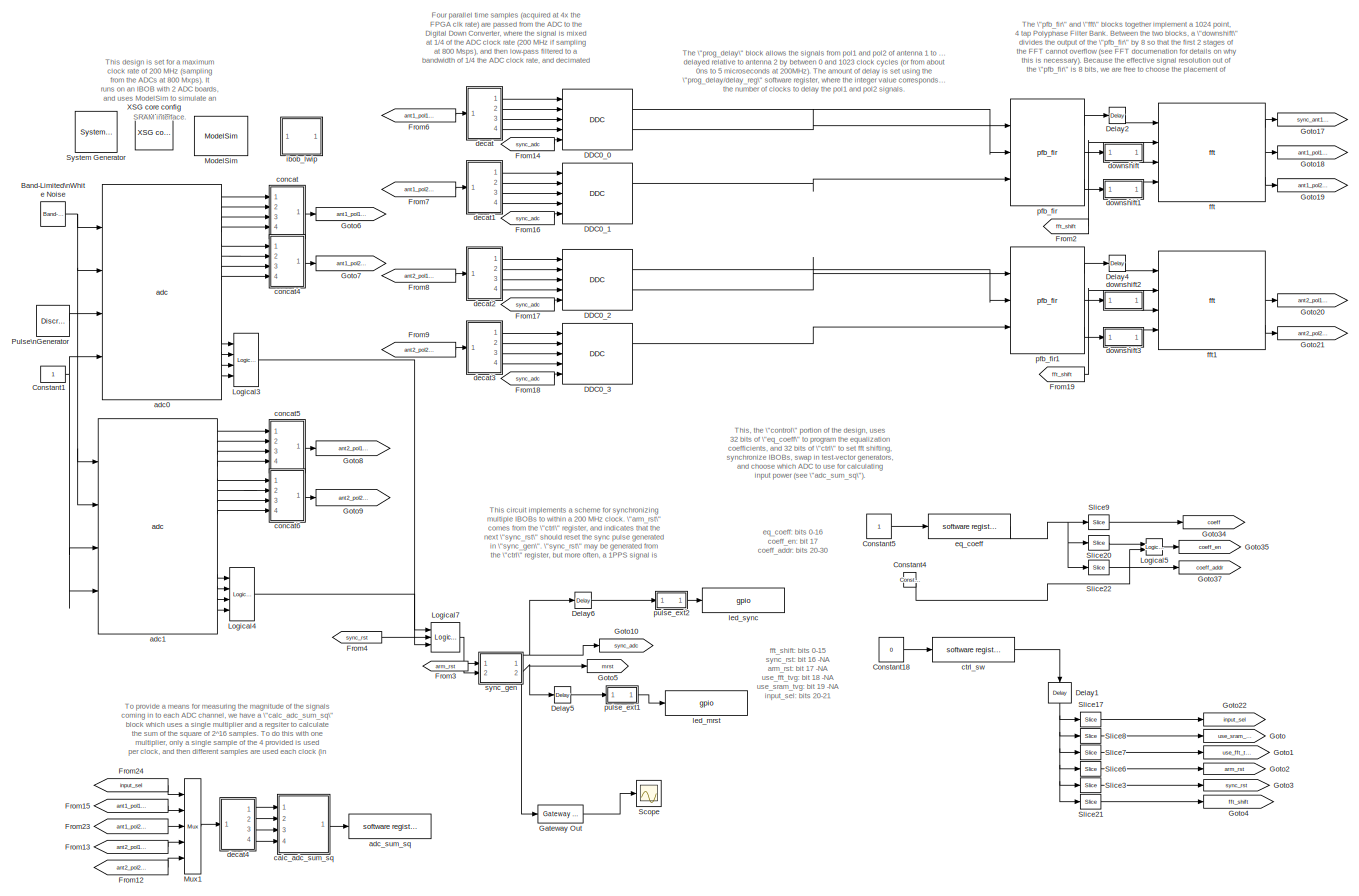
[diagram: root canvas - part 1/2, left side, full height]
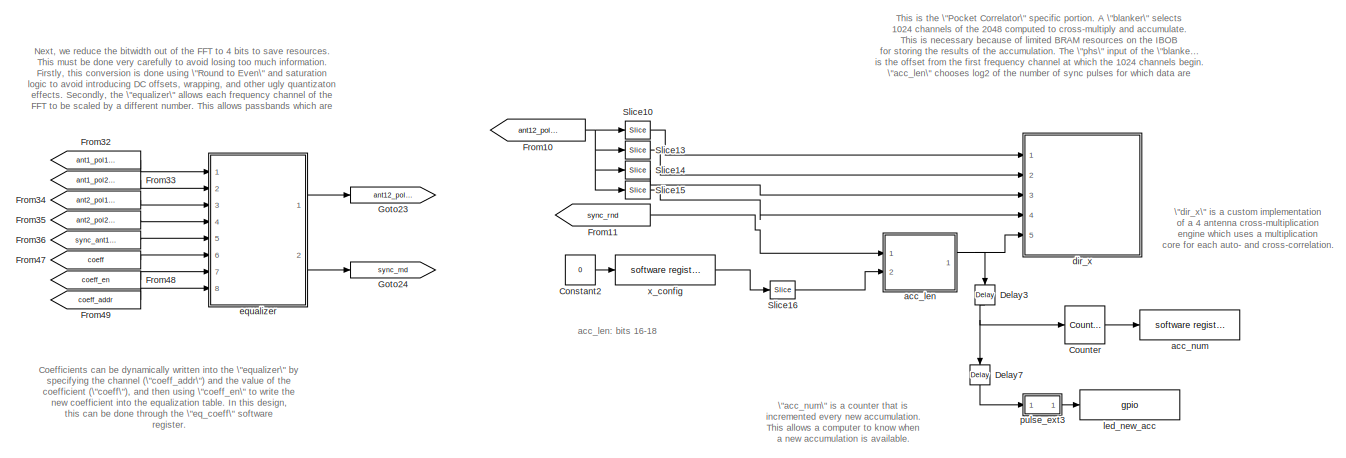
[diagram: root canvas - part 2/2, top right region]
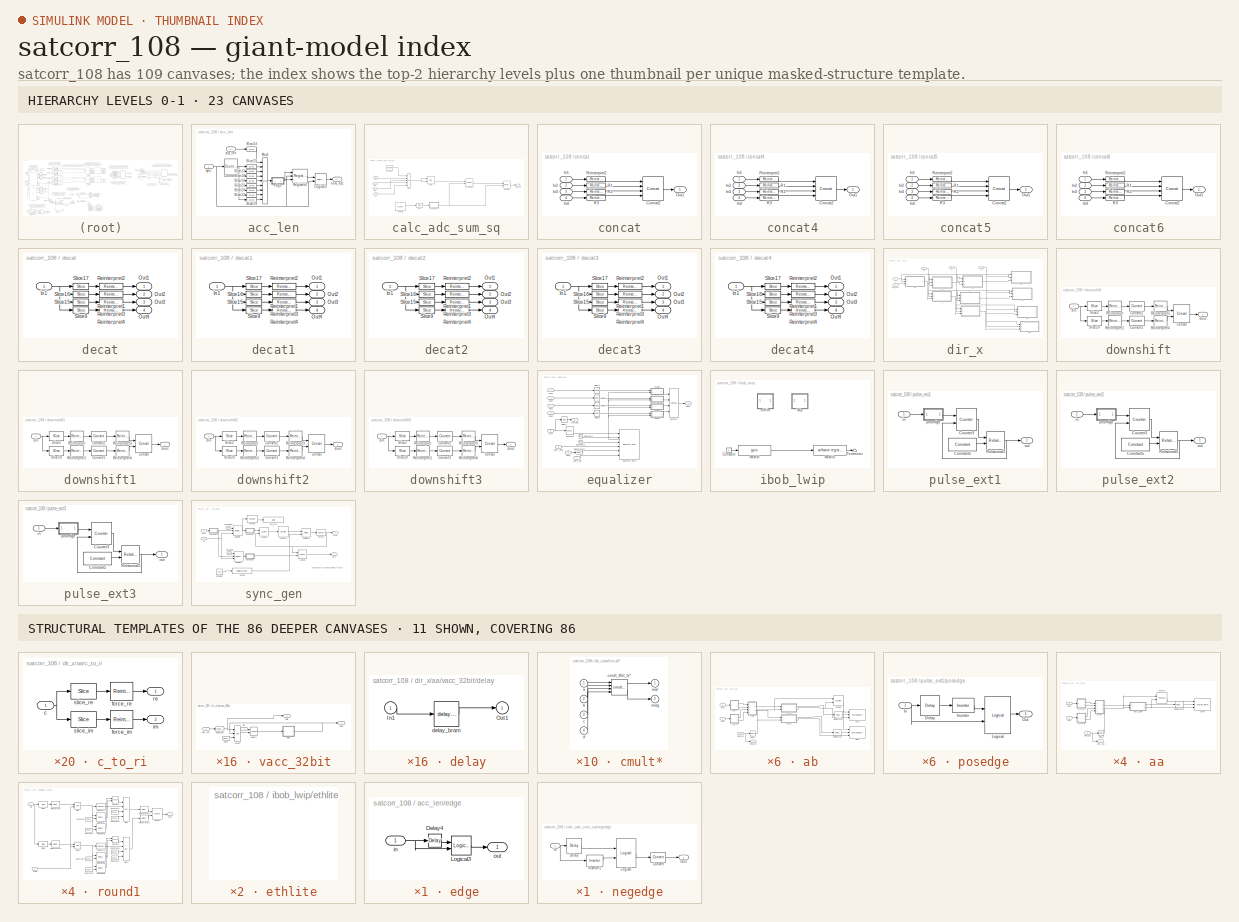
[diagram: thumbnail index - top-2 hierarchy levels (23 canvases) + 11 structural-template representatives of the remaining 86 canvases]
MODEL satcorr_108
KIND model
BLOCK [Reference]  System Generator  REF=xbsIndex_r3/ System Generator
  AttributesFormatString = System\\nGenerator
  Ports = []
  ShowPortLabels = on
  SourceBlock = xbsIndex_r3/ System Generator
  SourceType = Xilinx System Generator
  Tag = genX
  UserData = DataTag0
  UserDataPersistent = on
  core_generation = According to Block Masks
  dbl_ovrd = According to Block Masks
  deprecated_control = off
  directory = ./satcorr_1/sysgen
  eval_field = 0
  incr_netlist = off
  package = ff1152
  part = xc2vp50
  run_coregen = off
  simulink_period = 1
  speed = -7
  synthesis_tool = XST
  sysclk_period = 41.6667
  testbench = off
  trim_vbits = Everywhere in SubSystem
  xilinxfamily = Virtex2P
BLOCK [Reference] Band-Limited\nWhite Noise  REF=simulink/Sources/Band-Limited\nWhite Noise
  Cov = [0.1]
  Ports = [0, 1]
  ShowPortLabels = on
  SourceBlock = simulink/Sources/Band-Limited\nWhite Noise
  SourceType = Band-Limited White Noise.
  Ts = 0.1
  VectorParams1D = on
  seed = [23341]
BLOCK [Constant] Constant1
BLOCK [Constant] Constant18
  Value = 0
BLOCK [Constant] Constant2
  Value = 0
BLOCK [Reference] Constant4  REF=xbsIndex_r3/Constant
  Ports = [0, 1]
  SourceBlock = xbsIndex_r3/Constant
  SourceType = Xilinx Constant Block
  arith_type = Boolean
  bin_pt = 0
  carry = CIN
  const = 1
  dbl_ovrd = off
  equ = P=C
  explicit_period = on
  inp1 = P
  inp2 = PCIN>>17
  iostate = 0
  n_bits = 1
  opr = +
  opselect = C
  period = 1
BLOCK [Constant] Constant5
BLOCK [Reference] Counter  REF=xbsIndex_r3/Counter
  Ports = [1, 1]
  SourceBlock = xbsIndex_r3/Counter
  SourceType = Xilinx Counter Block
  arith_type = Unsigned
  bin_pt = 0
  cnt_by_val = 1
  cnt_to = Inf
  cnt_type = Free Running
  dbl_ovrd = off
  en = on
  explicit_period = off
  gen_core = off
  load_pin = off
  n_bits = 32
  operation = Up
  period = 1
  rst = off
  show_param = off
  start_count = 0
  use_rpm = on
  xl_area = [0, 0, 0, 0, 0, 0, 0]
  xl_use_area = off
BLOCK [Reference] DDC0_0  REF=ddc_library/DDC  (lib defined in mdl_423f3fd48bb0)
  BitWidthOut = 8
  Ports = [5, 2]
  ShowPortLabels = on
  SourceBlock = ddc_library/DDC
  SourceType = DDC
  UserData = DataTag1
  UserDataPersistent = on
  add_latency = 2
  freq_div = 4
  lo_bitwidth = 8
  lo_freq = 1
  lpfir_coeff = .9 * [-0.0161   -0.0428   -0.0504   -0.0249    0.0354    0.1170    0.1948    0.2422    0.2422    0.1948    0.1170  0.0354   -0.0249   -0.0504   -0.0428   -0.0161]
  mult_latency = 4
  num_inputs = 4
  quantization = Round  (unbiased: Even Values)
BLOCK [Reference] DDC0_1  REF=ddc_library/DDC  (lib defined in mdl_423f3fd48bb0)
  BitWidthOut = 8
  Ports = [5, 2]
  ShowPortLabels = on
  SourceBlock = ddc_library/DDC
  SourceType = DDC
  UserData = DataTag2
  UserDataPersistent = on
  add_latency = 2
  freq_div = 4
  lo_bitwidth = 8
  lo_freq = 1
  lpfir_coeff = .9 * [-0.0161   -0.0428   -0.0504   -0.0249    0.0354    0.1170    0.1948    0.2422    0.2422    0.1948    0.1170  0.0354   -0.0249   -0.0504   -0.0428   -0.0161]
  mult_latency = 4
  num_inputs = 4
  quantization = Round  (unbiased: Even Values)
BLOCK [Reference] DDC0_2  REF=ddc_library/DDC  (lib defined in mdl_423f3fd48bb0)
  BitWidthOut = 8
  Ports = [5, 2]
  ShowPortLabels = on
  SourceBlock = ddc_library/DDC
  SourceType = DDC
  UserData = DataTag3
  UserDataPersistent = on
  add_latency = 2
  freq_div = 4
  lo_bitwidth = 8
  lo_freq = 1
  lpfir_coeff = .9 * [-0.0161   -0.0428   -0.0504   -0.0249    0.0354    0.1170    0.1948    0.2422    0.2422    0.1948    0.1170  0.0354   -0.0249   -0.0504   -0.0428   -0.0161]
  mult_latency = 4
  num_inputs = 4
  quantization = Round  (unbiased: Even Values)
BLOCK [Reference] DDC0_3  REF=ddc_library/DDC  (lib defined in mdl_423f3fd48bb0)
  BitWidthOut = 8
  Ports = [5, 2]
  ShowPortLabels = on
  SourceBlock = ddc_library/DDC
  SourceType = DDC
  UserData = DataTag4
  UserDataPersistent = on
  add_latency = 2
  freq_div = 4
  lo_bitwidth = 8
  lo_freq = 1
  lpfir_coeff = .9 * [-0.0161   -0.0428   -0.0504   -0.0249    0.0354    0.1170    0.1948    0.2422    0.2422    0.1948    0.1170  0.0354   -0.0249   -0.0504   -0.0428   -0.0161]
  mult_latency = 4
  num_inputs = 4
  quantization = Round  (unbiased: Even Values)
BLOCK [Reference] Delay1  REF=xbsIndex_r3/Delay
  Ports = [1, 1]
  SourceBlock = xbsIndex_r3/Delay
  SourceType = Xilinx Delay Block
  accept_only_valid = off
  dbl_ovrd = off
  en = off
  explicit_period = off
  init_zero = on
  latency = 1
  period = 1
  reg_retiming = off
  show_param = off
  xl_area = [0, 0, 0, 0, 0, 0, 0]
  xl_use_area = off
BLOCK [Reference] Delay2  REF=xbsIndex_r3/Delay
  Ports = [1, 1]
  SourceBlock = xbsIndex_r3/Delay
  SourceType = Xilinx Delay Block
  accept_only_valid = off
  dbl_ovrd = off
  en = off
  explicit_period = off
  init_zero = on
  latency = 2
  period = 1
  reg_retiming = off
  show_param = off
  xl_area = [0, 0, 0, 0, 0, 0, 0]
  xl_use_area = off
BLOCK [Reference] Delay3  REF=xbsIndex_r3/Delay
  Ports = [1, 1]
  SourceBlock = xbsIndex_r3/Delay
  SourceType = Xilinx Delay Block
  accept_only_valid = off
  dbl_ovrd = off
  en = off
  explicit_period = off
  init_zero = on
  latency = 4
  period = 1
  reg_retiming = on
  show_param = on
  xl_area = [0, 0, 0, 0, 0, 0, 0]
  xl_use_area = off
BLOCK [Reference] Delay4  REF=xbsIndex_r3/Delay
  Ports = [1, 1]
  SourceBlock = xbsIndex_r3/Delay
  SourceType = Xilinx Delay Block
  accept_only_valid = off
  dbl_ovrd = off
  en = off
  explicit_period = off
  init_zero = on
  latency = 2
  period = 1
  reg_retiming = off
  show_param = off
  xl_area = [0, 0, 0, 0, 0, 0, 0]
  xl_use_area = off
BLOCK [Reference] Delay5  REF=xbsIndex_r3/Delay
  Ports = [1, 1]
  SourceBlock = xbsIndex_r3/Delay
  SourceType = Xilinx Delay Block
  accept_only_valid = off
  dbl_ovrd = off
  en = off
  explicit_period = off
  init_zero = on
  latency = 2
  period = 1
  reg_retiming = on
  show_param = off
  xl_area = [0, 0, 0, 0, 0, 0, 0]
  xl_use_area = off
BLOCK [Reference] Delay6  REF=xbsIndex_r3/Delay
  Ports = [1, 1]
  SourceBlock = xbsIndex_r3/Delay
  SourceType = Xilinx Delay Block
  accept_only_valid = off
  dbl_ovrd = off
  en = off
  explicit_period = off
  init_zero = on
  latency = 2
  period = 1
  reg_retiming = on
  show_param = off
  xl_area = [0, 0, 0, 0, 0, 0, 0]
  xl_use_area = off
BLOCK [Reference] Delay7  REF=xbsIndex_r3/Delay
  Ports = [1, 1]
  SourceBlock = xbsIndex_r3/Delay
  SourceType = Xilinx Delay Block
  accept_only_valid = off
  dbl_ovrd = off
  en = off
  explicit_period = off
  init_zero = on
  latency = 2
  period = 1
  reg_retiming = on
  show_param = off
  xl_area = [0, 0, 0, 0, 0, 0, 0]
  xl_use_area = off
BLOCK [From] From10
  CloseFcn = tagdialog Close
  GotoTag = ant12_pol12_rnd
BLOCK [From] From11
  CloseFcn = tagdialog Close
  GotoTag = sync_rnd
BLOCK [From] From12
  CloseFcn = tagdialog Close
  GotoTag = ant2_pol2_adc
BLOCK [From] From13
  CloseFcn = tagdialog Close
  GotoTag = ant2_pol1_adc
BLOCK [From] From14
  CloseFcn = tagdialog Close
  GotoTag = sync_adc
BLOCK [From] From15
  CloseFcn = tagdialog Close
  GotoTag = ant1_pol1_adc
BLOCK [From] From16
  CloseFcn = tagdialog Close
  GotoTag = sync_adc
BLOCK [From] From17
  CloseFcn = tagdialog Close
  GotoTag = sync_adc
BLOCK [From] From18
  CloseFcn = tagdialog Close
  GotoTag = sync_adc
BLOCK [From] From19
  CloseFcn = tagdialog Close
  GotoTag = fft_shift
BLOCK [From] From2
  CloseFcn = tagdialog Close
  GotoTag = fft_shift
BLOCK [From] From23
  CloseFcn = tagdialog Close
  GotoTag = ant1_pol2_adc
BLOCK [From] From24
  CloseFcn = tagdialog Close
  GotoTag = input_sel
BLOCK [From] From3
  CloseFcn = tagdialog Close
  GotoTag = arm_rst
BLOCK [From] From32
  CloseFcn = tagdialog Close
  GotoTag = ant1_pol1_fft
BLOCK [From] From33
  CloseFcn = tagdialog Close
  GotoTag = ant1_pol2_fft
BLOCK [From] From34
  CloseFcn = tagdialog Close
  GotoTag = ant2_pol1_fft
BLOCK [From] From35
  CloseFcn = tagdialog Close
  GotoTag = ant2_pol2_fft
BLOCK [From] From36
  CloseFcn = tagdialog Close
  GotoTag = sync_ant1_fft
BLOCK [From] From4
  CloseFcn = tagdialog Close
  GotoTag = sync_rst
BLOCK [From] From47
  CloseFcn = tagdialog Close
  GotoTag = coeff
BLOCK [From] From48
  CloseFcn = tagdialog Close
  GotoTag = coeff_en
BLOCK [From] From49
  CloseFcn = tagdialog Close
  GotoTag = coeff_addr
BLOCK [From] From6
  CloseFcn = tagdialog Close
  GotoTag = ant1_pol1_adc
BLOCK [From] From7
  CloseFcn = tagdialog Close
  GotoTag = ant1_pol2_adc
BLOCK [From] From8
  CloseFcn = tagdialog Close
  GotoTag = ant2_pol1_adc
BLOCK [From] From9
  CloseFcn = tagdialog Close
  GotoTag = ant2_pol2_adc
BLOCK [Reference] Gateway Out  REF=xbsIndex_r3/Gateway Out
  LOCs = {}
  Ports = [1, 1]
  SourceBlock = xbsIndex_r3/Gateway Out
  SourceType = Xilinx Gateway Out
  arith_type = Boolean
  bin_pt = 6
  hdl_port = on
  locs_specified = off
  nbits = 8
  needs_fixed_name = off
  output_type = Double
  overflow = Wrap
  quantization = Truncate
  show_param = off
  timing_constraint = None
  xl_area = [0, 0, 0, 0, 0, 0, 0]
  xl_use_area = off
BLOCK [Goto] Goto
  GotoTag = use_sram_tvg
  TagVisibility = local
BLOCK [Goto] Goto1
  GotoTag = use_fft_tvg
  TagVisibility = local
BLOCK [Goto] Goto10
  GotoTag = sync_adc
  TagVisibility = local
BLOCK [Goto] Goto17
  GotoTag = sync_ant1_fft
  TagVisibility = local
BLOCK [Goto] Goto18
  GotoTag = ant1_pol1_fft
  TagVisibility = local
BLOCK [Goto] Goto19
  GotoTag = ant1_pol2_fft
  TagVisibility = local
BLOCK [Goto] Goto2
  GotoTag = arm_rst
  TagVisibility = local
BLOCK [Goto] Goto20
  GotoTag = ant2_pol1_fft
  TagVisibility = local
BLOCK [Goto] Goto21
  GotoTag = ant2_pol2_fft
  TagVisibility = local
BLOCK [Goto] Goto22
  GotoTag = input_sel
  TagVisibility = local
BLOCK [Goto] Goto23
  GotoTag = ant12_pol12_rnd
  TagVisibility = local
BLOCK [Goto] Goto24
  GotoTag = sync_rnd
  TagVisibility = local
BLOCK [Goto] Goto3
  GotoTag = sync_rst
  TagVisibility = local
BLOCK [Goto] Goto34
  GotoTag = coeff
  TagVisibility = local
BLOCK [Goto] Goto35
  GotoTag = coeff_en
  TagVisibility = local
BLOCK [Goto] Goto37
  GotoTag = coeff_addr
  TagVisibility = local
BLOCK [Goto] Goto4
  GotoTag = fft_shift
  TagVisibility = local
BLOCK [Goto] Goto5
  GotoTag = mrst
  TagVisibility = local
BLOCK [Goto] Goto6
  GotoTag = ant1_pol1_adc
  TagVisibility = local
BLOCK [Goto] Goto7
  GotoTag = ant1_pol2_adc
  TagVisibility = local
BLOCK [Goto] Goto8
  GotoTag = ant2_pol1_adc
  TagVisibility = local
BLOCK [Goto] Goto9
  GotoTag = ant2_pol2_adc
  TagVisibility = local
BLOCK [Reference] Logical3  REF=xbsIndex_r3/Logical
  Ports = [4, 1]
  SourceBlock = xbsIndex_r3/Logical
  SourceType = Xilinx Logical Block
  align_bp = on
  arith_type = Unsigned
  bin_pt = 2
  dbl_ovrd = off
  en = off
  explicit_period = off
  inputs = 4
  latency = 2
  logical_function = OR
  n_bits = 8
  period = 1
  precision = Full
  show_param = off
  xl_area = [0, 0, 0, 0, 0, 0, 0]
  xl_use_area = off
BLOCK [Reference] Logical4  REF=xbsIndex_r3/Logical
  Ports = [4, 1]
  SourceBlock = xbsIndex_r3/Logical
  SourceType = Xilinx Logical Block
  align_bp = on
  arith_type = Unsigned
  bin_pt = 2
  dbl_ovrd = off
  en = off
  explicit_period = off
  inputs = 4
  latency = 2
  logical_function = OR
  n_bits = 8
  period = 1
  precision = Full
  show_param = off
  xl_area = [0, 0, 0, 0, 0, 0, 0]
  xl_use_area = off
BLOCK [Reference] Logical5  REF=xbsIndex_r3/Logical
  Ports = [2, 1]
  SourceBlock = xbsIndex_r3/Logical
  SourceType = Xilinx Logical Block
  align_bp = on
  arith_type = Unsigned
  bin_pt = 2
  dbl_ovrd = off
  en = off
  explicit_period = off
  inputs = 2
  latency = 0
  logical_function = AND
  n_bits = 8
  period = 1
  precision = Full
  show_param = off
  xl_area = [0, 0, 0, 0, 0, 0, 0]
  xl_use_area = off
BLOCK [Reference] Logical7  REF=xbsIndex_r3/Logical
  Ports = [3, 1]
  SourceBlock = xbsIndex_r3/Logical
  SourceType = Xilinx Logical Block
  align_bp = on
  arith_type = Unsigned
  bin_pt = 2
  dbl_ovrd = off
  en = off
  explicit_period = off
  inputs = 3
  latency = 1
  logical_function = OR
  n_bits = 8
  period = 1
  precision = Full
  show_param = off
  xl_area = [0, 0, 0, 0, 0, 0, 0]
  xl_use_area = off
BLOCK [Reference] ModelSim  REF=xbsIndex_r3/ModelSim
  Ports = []
  SourceBlock = xbsIndex_r3/ModelSim
  SourceType = ModelSim HDL Co-Simulation Interface
  custom_scripts = off
  dir = ./modelsim
  leave_open = on
  skip_compile = off
  startup_timeout = 40
  waveform = on
BLOCK [Reference] Mux1  REF=xbsIndex_r3/Mux
  Ports = [5, 1]
  SourceBlock = xbsIndex_r3/Mux
  SourceType = Xilinx Multiplexer Block
  arith_type = Signed  (2's comp)
  bin_pt = 2
  dbl_ovrd = off
  en = off
  explicit_period = on
  gen_core = off
  inputs = 4
  latency = 2
  mux_type = off
  n_bits = 8
  overflow = Wrap
  period = 1
  precision = Full
  quantization = Truncate
  show_param = off
  use_rpm = off
  xl_area = [0, 0, 0, 0, 0, 0, 0]
  xl_use_area = off
BLOCK [DiscretePulseGenerator] Pulse\nGenerator
  Period = 2^27
  Ports = [0, 1]
BLOCK [Scope] Scope
  DataFormat = StructureWithTime
  NumInputPorts = 1
  Ports = [1]
  YMax = 1
  YMin = -1
BLOCK [Reference] Slice10  REF=xbsIndex_r3/Slice
  Ports = [1, 1]
  SourceBlock = xbsIndex_r3/Slice
  SourceType = Xilinx Slice Block
  base0 = LSB of Input
  base1 = MSB of Input
  bit0 = 24
  bit1 = 0
  boolean_output = off
  dbl_ovrd = off
  explicit_period = off
  mode = Lower Bit Location + Width
  nbits = 8
  period = 1
BLOCK [Reference] Slice13  REF=xbsIndex_r3/Slice
  Ports = [1, 1]
  SourceBlock = xbsIndex_r3/Slice
  SourceType = Xilinx Slice Block
  base0 = LSB of Input
  base1 = MSB of Input
  bit0 = 16
  bit1 = 0
  boolean_output = off
  dbl_ovrd = off
  explicit_period = off
  mode = Lower Bit Location + Width
  nbits = 8
  period = 1
BLOCK [Reference] Slice14  REF=xbsIndex_r3/Slice
  Ports = [1, 1]
  SourceBlock = xbsIndex_r3/Slice
  SourceType = Xilinx Slice Block
  base0 = LSB of Input
  base1 = MSB of Input
  bit0 = 8
  bit1 = 0
  boolean_output = off
  dbl_ovrd = off
  explicit_period = off
  mode = Lower Bit Location + Width
  nbits = 8
  period = 1
BLOCK [Reference] Slice15  REF=xbsIndex_r3/Slice
  Ports = [1, 1]
  SourceBlock = xbsIndex_r3/Slice
  SourceType = Xilinx Slice Block
  base0 = LSB of Input
  base1 = MSB of Input
  bit0 = 0
  bit1 = 0
  boolean_output = off
  dbl_ovrd = off
  explicit_period = off
  mode = Lower Bit Location + Width
  nbits = 8
  period = 1
BLOCK [Reference] Slice16  REF=xbsIndex_r3/Slice
  Ports = [1, 1]
  SourceBlock = xbsIndex_r3/Slice
  SourceType = Xilinx Slice Block
  base0 = LSB of Input
  base1 = MSB of Input
  bit0 = 16
  bit1 = 0
  boolean_output = off
  dbl_ovrd = off
  explicit_period = off
  mode = Lower Bit Location + Width
  nbits = 3
  period = 1
BLOCK [Reference] Slice17  REF=xbsIndex_r3/Slice
  Ports = [1, 1]
  SourceBlock = xbsIndex_r3/Slice
  SourceType = Xilinx Slice Block
  base0 = LSB of Input
  base1 = MSB of Input
  bit0 = 20
  bit1 = 0
  boolean_output = off
  dbl_ovrd = off
  explicit_period = off
  mode = Lower Bit Location + Width
  nbits = 2
  period = 1
BLOCK [Reference] Slice20  REF=xbsIndex_r3/Slice
  Ports = [1, 1]
  SourceBlock = xbsIndex_r3/Slice
  SourceType = Xilinx Slice Block
  base0 = LSB of Input
  base1 = MSB of Input
  bit0 = 17
  bit1 = 0
  boolean_output = on
  dbl_ovrd = off
  explicit_period = off
  mode = Lower Bit Location + Width
  nbits = 1
  period = 1
BLOCK [Reference] Slice21  REF=xbsIndex_r3/Slice
  Ports = [1, 1]
  SourceBlock = xbsIndex_r3/Slice
  SourceType = Xilinx Slice Block
  base0 = LSB of Input
  base1 = MSB of Input
  bit0 = 0
  bit1 = 0
  boolean_output = off
  dbl_ovrd = off
  explicit_period = off
  mode = Lower Bit Location + Width
  nbits = 16
  period = 1
BLOCK [Reference] Slice22  REF=xbsIndex_r3/Slice
  Ports = [1, 1]
  SourceBlock = xbsIndex_r3/Slice
  SourceType = Xilinx Slice Block
  base0 = LSB of Input
  base1 = MSB of Input
  bit0 = 20
  bit1 = 0
  boolean_output = off
  dbl_ovrd = off
  explicit_period = off
  mode = Lower Bit Location + Width
  nbits = 10
  period = 1
BLOCK [Reference] Slice3  REF=xbsIndex_r3/Slice
  Ports = [1, 1]
  SourceBlock = xbsIndex_r3/Slice
  SourceType = Xilinx Slice Block
  base0 = LSB of Input
  base1 = MSB of Input
  bit0 = 16
  bit1 = 0
  boolean_output = on
  dbl_ovrd = off
  explicit_period = off
  mode = Lower Bit Location + Width
  nbits = 1
  period = 1
BLOCK [Reference] Slice6  REF=xbsIndex_r3/Slice
  Ports = [1, 1]
  SourceBlock = xbsIndex_r3/Slice
  SourceType = Xilinx Slice Block
  base0 = LSB of Input
  base1 = MSB of Input
  bit0 = 17
  bit1 = 0
  boolean_output = on
  dbl_ovrd = off
  explicit_period = off
  mode = Lower Bit Location + Width
  nbits = 1
  period = 1
BLOCK [Reference] Slice7  REF=xbsIndex_r3/Slice
  Ports = [1, 1]
  SourceBlock = xbsIndex_r3/Slice
  SourceType = Xilinx Slice Block
  base0 = LSB of Input
  base1 = MSB of Input
  bit0 = 18
  bit1 = 0
  boolean_output = off
  dbl_ovrd = off
  explicit_period = off
  mode = Lower Bit Location + Width
  nbits = 1
  period = 1
BLOCK [Reference] Slice8  REF=xbsIndex_r3/Slice
  Ports = [1, 1]
  SourceBlock = xbsIndex_r3/Slice
  SourceType = Xilinx Slice Block
  base0 = LSB of Input
  base1 = MSB of Input
  bit0 = 19
  bit1 = 0
  boolean_output = off
  dbl_ovrd = off
  explicit_period = off
  mode = Lower Bit Location + Width
  nbits = 1
  period = 1
BLOCK [Reference] Slice9  REF=xbsIndex_r3/Slice
  Ports = [1, 1]
  SourceBlock = xbsIndex_r3/Slice
  SourceType = Xilinx Slice Block
  base0 = LSB of Input
  base1 = MSB of Input
  bit0 = 0
  bit1 = 0
  boolean_output = off
  dbl_ovrd = off
  explicit_period = off
  mode = Lower Bit Location + Width
  nbits = 17
  period = 1
BLOCK [Reference] XSG core config  REF=xps_library/XSG core config  (lib defined in mdl_00b5cec29cd0, mdl_02ab6ecaa3d1, +5 more)
  Ports = []
  ShowPortLabels = on
  SourceBlock = xps_library/XSG core config
  Tag = xps:xsg
  clk_rate = 27
  clk_src = adc0_clk
  gpio_clk_bit_index = 0
  gpio_clk_io_group = iBOB:sma
  hw_sys = iBOB
  ibob_linux = off
  mpc_type = powerpc405
  sample_period = 1
  synthesis_tool = XST
BLOCK [SubSystem] acc_len
  MinAlgLoopOccurrences = off
  Ports = [2, 1]
  RTWSystemCode = Auto
  TreatAsAtomicUnit = off
BLOCK [Reference] acc_len/Counter2  REF=xbsIndex_r3/Counter
  Ports = [1, 1]
  SourceBlock = xbsIndex_r3/Counter
  SourceType = Xilinx Counter Block
  arith_type = Unsigned
  bin_pt = 0
  cnt_by_val = 1
  cnt_to = Inf
  cnt_type = Free Running
  dbl_ovrd = off
  en = on
  explicit_period = on
  gen_core = off
  load_pin = off
  n_bits = 8
  operation = Up
  period = 1
  rst = off
  show_param = off
  start_count = 0
  use_rpm = on
  xl_area = [0, 0, 0, 0, 0, 0, 0]
  xl_use_area = off
BLOCK [Reference] acc_len/Logical2  REF=xbsIndex_r3/Logical
  Ports = [2, 1]
  SourceBlock = xbsIndex_r3/Logical
  SourceType = Xilinx Logical Block
  align_bp = on
  arith_type = Unsigned
  bin_pt = 2
  dbl_ovrd = off
  en = off
  explicit_period = off
  inputs = 2
  latency = 0
  logical_function = AND
  n_bits = 8
  period = 1
  precision = Full
  show_param = off
  xl_area = [0, 0, 0, 0, 0, 0, 0]
  xl_use_area = off
BLOCK [Reference] acc_len/Mux1  REF=xbsIndex_r3/Mux
  Ports = [9, 1]
  SourceBlock = xbsIndex_r3/Mux
  SourceType = Xilinx Multiplexer Block
  arith_type = Signed  (2's comp)
  bin_pt = 2
  dbl_ovrd = off
  en = off
  explicit_period = off
  gen_core = off
  inputs = 8
  latency = 1
  mux_type = off
  n_bits = 8
  overflow = Wrap
  period = 1
  precision = Full
  quantization = Truncate
  show_param = off
  use_rpm = off
  xl_area = [0, 0, 0, 0, 0, 0, 0]
  xl_use_area = off
BLOCK [Reference] acc_len/Register4  REF=xbsIndex_r3/Register
  Ports = [3, 1]
  SourceBlock = xbsIndex_r3/Register
  SourceType = Xilinx Register Block
  dbl_ovrd = off
  en = on
  explicit_period = off
  init = 0
  out_en = off
  period = 1
  reg_only_valid = off
  rst = on
  show_param = off
  xl_area = [0, 0, 0, 0, 0, 0, 0]
  xl_use_area = off
BLOCK [Reference] acc_len/Slice16  REF=xbsIndex_r3/Slice
  Ports = [1, 1]
  SourceBlock = xbsIndex_r3/Slice
  SourceType = Xilinx Slice Block
  base0 = LSB of Input
  base1 = MSB of Input
  bit0 = 3
  bit1 = 0
  boolean_output = on
  dbl_ovrd = off
  explicit_period = off
  mode = Lower Bit Location + Width
  nbits = 1
  period = 1
BLOCK [Reference] acc_len/Slice17  REF=xbsIndex_r3/Slice
  Ports = [1, 1]
  SourceBlock = xbsIndex_r3/Slice
  SourceType = Xilinx Slice Block
  base0 = LSB of Input
  base1 = MSB of Input
  bit0 = 1
  bit1 = 0
  boolean_output = on
  dbl_ovrd = off
  explicit_period = off
  mode = Lower Bit Location + Width
  nbits = 1
  period = 1
BLOCK [Reference] acc_len/Slice18  REF=xbsIndex_r3/Slice
  Ports = [1, 1]
  SourceBlock = xbsIndex_r3/Slice
  SourceType = Xilinx Slice Block
  base0 = LSB of Input
  base1 = MSB of Input
  bit0 = 2
  bit1 = 0
  boolean_output = on
  dbl_ovrd = off
  explicit_period = off
  mode = Lower Bit Location + Width
  nbits = 1
  period = 1
BLOCK [Reference] acc_len/Slice19  REF=xbsIndex_r3/Slice
  Ports = [1, 1]
  SourceBlock = xbsIndex_r3/Slice
  SourceType = Xilinx Slice Block
  base0 = LSB of Input
  base1 = MSB of Input
  bit0 = 7
  bit1 = 0
  boolean_output = on
  dbl_ovrd = off
  explicit_period = off
  mode = Lower Bit Location + Width
  nbits = 1
  period = 1
BLOCK [Reference] acc_len/Slice20  REF=xbsIndex_r3/Slice
  Ports = [1, 1]
  SourceBlock = xbsIndex_r3/Slice
  SourceType = Xilinx Slice Block
  base0 = LSB of Input
  base1 = MSB of Input
  bit0 = 5
  bit1 = 0
  boolean_output = on
  dbl_ovrd = off
  explicit_period = off
  mode = Lower Bit Location + Width
  nbits = 1
  period = 1
BLOCK [Reference] acc_len/Slice22  REF=xbsIndex_r3/Slice
  Ports = [1, 1]
  SourceBlock = xbsIndex_r3/Slice
  SourceType = Xilinx Slice Block
  base0 = LSB of Input
  base1 = MSB of Input
  bit0 = 6
  bit1 = 0
  boolean_output = on
  dbl_ovrd = off
  explicit_period = off
  mode = Lower Bit Location + Width
  nbits = 1
  period = 1
BLOCK [Reference] acc_len/Slice23  REF=xbsIndex_r3/Slice
  Ports = [1, 1]
  SourceBlock = xbsIndex_r3/Slice
  SourceType = Xilinx Slice Block
  base0 = LSB of Input
  base1 = MSB of Input
  bit0 = 4
  bit1 = 0
  boolean_output = on
  dbl_ovrd = off
  explicit_period = off
  mode = Lower Bit Location + Width
  nbits = 1
  period = 1
BLOCK [Reference] acc_len/Slice24  REF=xbsIndex_r3/Slice
  Ports = [1, 1]
  SourceBlock = xbsIndex_r3/Slice
  SourceType = Xilinx Slice Block
  base0 = LSB of Input
  base1 = MSB of Input
  bit0 = 0
  bit1 = 0
  boolean_output = off
  dbl_ovrd = off
  explicit_period = off
  mode = Lower Bit Location + Width
  nbits = 3
  period = 1
BLOCK [Reference] acc_len/Slice25  REF=xbsIndex_r3/Slice
  Ports = [1, 1]
  SourceBlock = xbsIndex_r3/Slice
  SourceType = Xilinx Slice Block
  base0 = LSB of Input
  base1 = MSB of Input
  bit0 = 0
  bit1 = 0
  boolean_output = on
  dbl_ovrd = off
  explicit_period = off
  mode = Lower Bit Location + Width
  nbits = 1
  period = 1
BLOCK [Inport] acc_len/acc_len
  IconDisplay = Port number
  LatchInput = off
  Port = 2
BLOCK [SubSystem] acc_len/edge
  MinAlgLoopOccurrences = off
  Ports = [1, 1]
  RTWSystemCode = Auto
  TreatAsAtomicUnit = off
BLOCK [Reference] acc_len/edge/Delay4  REF=xbsIndex_r3/Delay
  Ports = [1, 1]
  SourceBlock = xbsIndex_r3/Delay
  SourceType = Xilinx Delay Block
  accept_only_valid = off
  dbl_ovrd = off
  en = off
  explicit_period = off
  init_zero = on
  latency = 1
  period = 1
  reg_retiming = off
  show_param = off
  xl_area = [0, 0, 0, 0, 0, 0, 0]
  xl_use_area = off
BLOCK [Reference] acc_len/edge/Logical3  REF=xbsIndex_r3/Logical
  Ports = [2, 1]
  SourceBlock = xbsIndex_r3/Logical
  SourceType = Xilinx Logical Block
  align_bp = on
  arith_type = Unsigned
  bin_pt = 2
  dbl_ovrd = off
  en = off
  explicit_period = off
  inputs = 2
  latency = 0
  logical_function = XOR
  n_bits = 8
  period = 1
  precision = Full
  show_param = off
  xl_area = [0, 0, 0, 0, 0, 0, 0]
  xl_use_area = off
BLOCK [Inport] acc_len/edge/in
  IconDisplay = Port number
  LatchInput = off
  Port = 1
BLOCK [Outport] acc_len/edge/out
  BusOutputAsStruct = off
  IconDisplay = Port number
BLOCK [Outport] acc_len/new_acc
  BusOutputAsStruct = off
  IconDisplay = Port number
BLOCK [Inport] acc_len/sync
  IconDisplay = Port number
  LatchInput = off
  Port = 1
BLOCK [Reference] acc_num  REF=xps_library/software register  (lib defined in mdl_00b5cec29cd0, mdl_02ab6ecaa3d1, +5 more)
  Ports = [1, 1]
  ShowPortLabels = on
  SourceBlock = xps_library/software register
  Tag = xps:sw_reg
  arith_type = Unsigned
  bin_pt = 0
  bitwidth = 32
  gw_name = satcorr_1_acc_num_user_data_in
  io_dir = To Processor
  sample_period = 1
BLOCK [Reference] adc0  REF=xps_library/adc  (lib defined in mdl_00b5cec29cd0, mdl_02ab6ecaa3d1, +5 more)
  Ports = [4, 17]
  ShowPortLabels = on
  SourceBlock = xps_library/adc
  Tag = xps:adc
  adc_brd = iBOB:adc0
  adc_clk_rate = 108
  adc_interleave = off
  sample_period = 1
BLOCK [Reference] adc1  REF=xps_library/adc  (lib defined in mdl_00b5cec29cd0, mdl_02ab6ecaa3d1, +5 more)
  Ports = [4, 17]
  ShowPortLabels = on
  SourceBlock = xps_library/adc
  Tag = xps:adc
  adc_brd = iBOB:adc1
  adc_clk_rate = 108
  adc_interleave = off
  sample_period = 1
BLOCK [Reference] adc_sum_sq  REF=xps_library/software register  (lib defined in mdl_00b5cec29cd0, mdl_02ab6ecaa3d1, +5 more)
  Ports = [1, 1]
  ShowPortLabels = on
  SourceBlock = xps_library/software register
  Tag = xps:sw_reg
  arith_type = Unsigned
  bin_pt = 14
  bitwidth = 32
  gw_name = satcorr_1_adc_sum_sq_user_data_in
  io_dir = To Processor
  sample_period = 1
BLOCK [SubSystem] calc_adc_sum_sq
  MaskIconFrame = on
  MaskIconOpaque = on
  MaskIconRotate = none
  MaskIconUnits = autoscale
  MaskValueString = 3|2
  MinAlgLoopOccurrences = off
  Ports = [4, 1]
  RTWSystemCode = Auto
  TreatAsAtomicUnit = off
BLOCK [Reference] calc_adc_sum_sq/Accumulator  REF=xbsIndex_r3/Accumulator
  Ports = [2, 1]
  SourceBlock = xbsIndex_r3/Accumulator
  SourceType = Xilinx Accumulator
  dbl_ovrd = off
  en = off
  explicit_period = off
  gen_core = off
  hasbypass = off
  n_bits = 32
  operation = Add
  overflow = Wrap
  period = 1
  rst = on
  scale = 1
  show_param = off
  use_rpm = on
  xl_area = [0, 0, 0, 0, 0, 0, 0]
  xl_use_area = off
BLOCK [Reference] calc_adc_sum_sq/Counter  REF=xbsIndex_r3/Counter
  Ports = [0, 1]
  SourceBlock = xbsIndex_r3/Counter
  SourceType = Xilinx Counter Block
  arith_type = Unsigned
  bin_pt = 0
  cnt_by_val = 1
  cnt_to = Inf
  cnt_type = Free Running
  dbl_ovrd = off
  en = off
  explicit_period = off
  gen_core = off
  load_pin = off
  n_bits = 2
  operation = Up
  period = 1
  rst = off
  show_param = off
  start_count = 0
  use_rpm = on
  xl_area = [0, 0, 0, 0, 0, 0, 0]
  xl_use_area = off
BLOCK [Reference] calc_adc_sum_sq/Counter1  REF=xbsIndex_r3/Counter
  Ports = [0, 1]
  SourceBlock = xbsIndex_r3/Counter
  SourceType = Xilinx Counter Block
  arith_type = Unsigned
  bin_pt = 0
  cnt_by_val = 1
  cnt_to = Inf
  cnt_type = Free Running
  dbl_ovrd = off
  en = off
  explicit_period = off
  gen_core = off
  load_pin = off
  n_bits = 16
  operation = Up
  period = 1
  rst = off
  show_param = off
  start_count = 0
  use_rpm = on
  xl_area = [0, 0, 0, 0, 0, 0, 0]
  xl_use_area = off
BLOCK [Inport] calc_adc_sum_sq/In1
  IconDisplay = Port number
  LatchInput = off
  Port = 1
BLOCK [Inport] calc_adc_sum_sq/In2
  IconDisplay = Port number
  LatchInput = off
  Port = 2
BLOCK [Inport] calc_adc_sum_sq/In3
  IconDisplay = Port number
  LatchInput = off
  Port = 3
BLOCK [Inport] calc_adc_sum_sq/In4
  IconDisplay = Port number
  LatchInput = off
  Port = 4
BLOCK [Reference] calc_adc_sum_sq/Mult  REF=xbsIndex_r3/Mult
  Ports = [2, 1]
  SourceBlock = xbsIndex_r3/Mult
  SourceType = Xilinx Multiplier
  arith_type = Signed  (2's comp)
  bin_pt = 2
  dbl_ovrd = off
  en = off
  explicit_period = on
  gen_core = off
  latency = 2
  mult_type = Parallel
  n_bits = 8
  overflow = Wrap
  oversample = 2
  period = 1
  pipeline = on
  placement_style = Rectangular Shape
  precision = Full
  quantization = Truncate
  show_param = off
  use_embedded = off
  use_rpm = on
  xl_area = [0, 0, 0, 0, 0, 0, 0]
  xl_use_area = off
BLOCK [Reference] calc_adc_sum_sq/Mux  REF=xbsIndex_r3/Mux
  Ports = [5, 1]
  SourceBlock = xbsIndex_r3/Mux
  SourceType = Xilinx Multiplexer Block
  arith_type = Signed  (2's comp)
  bin_pt = 2
  dbl_ovrd = off
  en = off
  explicit_period = off
  gen_core = off
  inputs = 4
  latency = 1
  mux_type = off
  n_bits = 8
  overflow = Wrap
  period = 1
  precision = Full
  quantization = Truncate
  show_param = off
  use_rpm = off
  xl_area = [0, 0, 0, 0, 0, 0, 0]
  xl_use_area = off
BLOCK [Reference] calc_adc_sum_sq/Register  REF=xbsIndex_r3/Register
  Ports = [2, 1]
  SourceBlock = xbsIndex_r3/Register
  SourceType = Xilinx Register Block
  dbl_ovrd = off
  en = on
  explicit_period = off
  init = 0
  out_en = off
  period = 1
  reg_only_valid = off
  rst = off
  show_param = off
  xl_area = [0, 0, 0, 0, 0, 0, 0]
  xl_use_area = off
BLOCK [Reference] calc_adc_sum_sq/Slice  REF=xbsIndex_r3/Slice
  Ports = [1, 1]
  SourceBlock = xbsIndex_r3/Slice
  SourceType = Xilinx Slice Block
  base0 = LSB of Input
  base1 = MSB of Input
  bit0 = 0
  bit1 = 0
  boolean_output = off
  dbl_ovrd = off
  explicit_period = off
  mode = Upper Bit Location + Width
  nbits = 1
  period = 1
BLOCK [SubSystem] calc_adc_sum_sq/negedge
  MinAlgLoopOccurrences = off
  Ports = [1, 1]
  RTWSystemCode = Auto
  TreatAsAtomicUnit = off
BLOCK [Reference] calc_adc_sum_sq/negedge/Convert  REF=xbsIndex_r3/Convert
  Ports = [1, 1]
  SourceBlock = xbsIndex_r3/Convert
  SourceType = Xilinx Converter Block
  arith_type = Boolean
  bin_pt = 6
  dbl_ovrd = off
  explicit_period = off
  inserted_by_tool = off
  latency = 0
  n_bits = 8
  overflow = Wrap
  period = 1
  pipeline = off
  quantization = Truncate
  show_param = off
  xl_area = [0, 0, 0, 0, 0, 0, 0]
  xl_use_area = off
BLOCK [Reference] calc_adc_sum_sq/negedge/Delay  REF=xbsIndex_r3/Delay
  Ports = [1, 1]
  SourceBlock = xbsIndex_r3/Delay
  SourceType = Xilinx Delay Block
  accept_only_valid = off
  dbl_ovrd = off
  en = off
  explicit_period = off
  init_zero = on
  latency = 1
  period = 1
  reg_retiming = off
  show_param = off
  xl_area = [0, 0, 0, 0, 0, 0, 0]
  xl_use_area = off
BLOCK [Inport] calc_adc_sum_sq/negedge/In
  IconDisplay = Port number
  LatchInput = off
  Port = 1
BLOCK [Reference] calc_adc_sum_sq/negedge/Inverter1  REF=xbsIndex_r3/Inverter
  Ports = [1, 1]
  SourceBlock = xbsIndex_r3/Inverter
  SourceType = Xilinx Inverter
  dbl_ovrd = off
  en = off
  explicit_period = off
  latency = 0
  period = 1
  show_param = off
  xl_area = [0, 0, 0, 0, 0, 0, 0]
  xl_use_area = off
BLOCK [Reference] calc_adc_sum_sq/negedge/Logical  REF=xbsIndex_r3/Logical
  Ports = [2, 1]
  SourceBlock = xbsIndex_r3/Logical
  SourceType = Xilinx Logical Block
  align_bp = on
  arith_type = Unsigned
  bin_pt = 2
  dbl_ovrd = off
  en = off
  explicit_period = off
  inputs = 2
  latency = 0
  logical_function = AND
  n_bits = 8
  period = 1
  precision = Full
  show_param = off
  xl_area = [0, 0, 0, 0, 0, 0, 0]
  xl_use_area = off
BLOCK [Outport] calc_adc_sum_sq/negedge/Out1
  BusOutputAsStruct = off
  IconDisplay = Port number
BLOCK [Outport] calc_adc_sum_sq/sum_sq
  BusOutputAsStruct = off
  IconDisplay = Port number
BLOCK [SubSystem] concat
  MinAlgLoopOccurrences = off
  Ports = [4, 1]
  RTWSystemCode = Auto
  TreatAsAtomicUnit = off
BLOCK [Reference] concat/Concat2  REF=xbsIndex_r3/Concat
  Ports = [4, 1]
  SourceBlock = xbsIndex_r3/Concat
  SourceType = Xilinx Bus Concatenator
  dbl_ovrd = off
  explicit_period = off
  num_inputs = 4
  period = 1
BLOCK [Inport] concat/In1
  IconDisplay = Port number
  LatchInput = off
  Port = 1
BLOCK [Inport] concat/In2
  IconDisplay = Port number
  LatchInput = off
  Port = 2
BLOCK [Inport] concat/In3
  IconDisplay = Port number
  LatchInput = off
  Port = 3
BLOCK [Inport] concat/In4
  IconDisplay = Port number
  LatchInput = off
  Port = 4
BLOCK [Outport] concat/Out1
  BusOutputAsStruct = off
  IconDisplay = Port number
BLOCK [Reference] concat/R1  REF=xbsIndex_r3/Reinterpret
  Ports = [1, 1]
  SourceBlock = xbsIndex_r3/Reinterpret
  SourceType = Xilinx Type Reinterpreting Block
  arith_type = Unsigned
  bin_pt = 0
  force_arith_type = on
  force_bin_pt = on
  force_valid = on
BLOCK [Reference] concat/R2  REF=xbsIndex_r3/Reinterpret
  Ports = [1, 1]
  SourceBlock = xbsIndex_r3/Reinterpret
  SourceType = Xilinx Type Reinterpreting Block
  arith_type = Unsigned
  bin_pt = 0
  force_arith_type = on
  force_bin_pt = on
  force_valid = on
BLOCK [Reference] concat/R3  REF=xbsIndex_r3/Reinterpret
  Ports = [1, 1]
  SourceBlock = xbsIndex_r3/Reinterpret
  SourceType = Xilinx Type Reinterpreting Block
  arith_type = Unsigned
  bin_pt = 0
  force_arith_type = on
  force_bin_pt = on
  force_valid = on
BLOCK [Reference] concat/Reinterpret2  REF=xbsIndex_r3/Reinterpret
  Ports = [1, 1]
  SourceBlock = xbsIndex_r3/Reinterpret
  SourceType = Xilinx Type Reinterpreting Block
  arith_type = Unsigned
  bin_pt = 0
  force_arith_type = on
  force_bin_pt = on
  force_valid = on
BLOCK [SubSystem] concat4
  MinAlgLoopOccurrences = off
  Ports = [4, 1]
  RTWSystemCode = Auto
  TreatAsAtomicUnit = off
BLOCK [Reference] concat4/Concat2  REF=xbsIndex_r3/Concat
  Ports = [4, 1]
  SourceBlock = xbsIndex_r3/Concat
  SourceType = Xilinx Bus Concatenator
  dbl_ovrd = off
  explicit_period = off
  num_inputs = 4
  period = 1
BLOCK [Inport] concat4/In1
  IconDisplay = Port number
  LatchInput = off
  Port = 1
BLOCK [Inport] concat4/In2
  IconDisplay = Port number
  LatchInput = off
  Port = 2
BLOCK [Inport] concat4/In3
  IconDisplay = Port number
  LatchInput = off
  Port = 3
BLOCK [Inport] concat4/In4
  IconDisplay = Port number
  LatchInput = off
  Port = 4
BLOCK [Outport] concat4/Out1
  BusOutputAsStruct = off
  IconDisplay = Port number
BLOCK [Reference] concat4/R1  REF=xbsIndex_r3/Reinterpret
  Ports = [1, 1]
  SourceBlock = xbsIndex_r3/Reinterpret
  SourceType = Xilinx Type Reinterpreting Block
  arith_type = Unsigned
  bin_pt = 0
  force_arith_type = on
  force_bin_pt = on
  force_valid = on
BLOCK [Reference] concat4/R2  REF=xbsIndex_r3/Reinterpret
  Ports = [1, 1]
  SourceBlock = xbsIndex_r3/Reinterpret
  SourceType = Xilinx Type Reinterpreting Block
  arith_type = Unsigned
  bin_pt = 0
  force_arith_type = on
  force_bin_pt = on
  force_valid = on
BLOCK [Reference] concat4/R3  REF=xbsIndex_r3/Reinterpret
  Ports = [1, 1]
  SourceBlock = xbsIndex_r3/Reinterpret
  SourceType = Xilinx Type Reinterpreting Block
  arith_type = Unsigned
  bin_pt = 0
  force_arith_type = on
  force_bin_pt = on
  force_valid = on
BLOCK [Reference] concat4/Reinterpret2  REF=xbsIndex_r3/Reinterpret
  Ports = [1, 1]
  SourceBlock = xbsIndex_r3/Reinterpret
  SourceType = Xilinx Type Reinterpreting Block
  arith_type = Unsigned
  bin_pt = 0
  force_arith_type = on
  force_bin_pt = on
  force_valid = on
BLOCK [SubSystem] concat5
  MinAlgLoopOccurrences = off
  Ports = [4, 1]
  RTWSystemCode = Auto
  TreatAsAtomicUnit = off
BLOCK [Reference] concat5/Concat2  REF=xbsIndex_r3/Concat
  Ports = [4, 1]
  SourceBlock = xbsIndex_r3/Concat
  SourceType = Xilinx Bus Concatenator
  dbl_ovrd = off
  explicit_period = off
  num_inputs = 4
  period = 1
BLOCK [Inport] concat5/In1
  IconDisplay = Port number
  LatchInput = off
  Port = 1
BLOCK [Inport] concat5/In2
  IconDisplay = Port number
  LatchInput = off
  Port = 2
BLOCK [Inport] concat5/In3
  IconDisplay = Port number
  LatchInput = off
  Port = 3
BLOCK [Inport] concat5/In4
  IconDisplay = Port number
  LatchInput = off
  Port = 4
BLOCK [Outport] concat5/Out1
  BusOutputAsStruct = off
  IconDisplay = Port number
BLOCK [Reference] concat5/R1  REF=xbsIndex_r3/Reinterpret
  Ports = [1, 1]
  SourceBlock = xbsIndex_r3/Reinterpret
  SourceType = Xilinx Type Reinterpreting Block
  arith_type = Unsigned
  bin_pt = 0
  force_arith_type = on
  force_bin_pt = on
  force_valid = on
BLOCK [Reference] concat5/R2  REF=xbsIndex_r3/Reinterpret
  Ports = [1, 1]
  SourceBlock = xbsIndex_r3/Reinterpret
  SourceType = Xilinx Type Reinterpreting Block
  arith_type = Unsigned
  bin_pt = 0
  force_arith_type = on
  force_bin_pt = on
  force_valid = on
BLOCK [Reference] concat5/R3  REF=xbsIndex_r3/Reinterpret
  Ports = [1, 1]
  SourceBlock = xbsIndex_r3/Reinterpret
  SourceType = Xilinx Type Reinterpreting Block
  arith_type = Unsigned
  bin_pt = 0
  force_arith_type = on
  force_bin_pt = on
  force_valid = on
BLOCK [Reference] concat5/Reinterpret2  REF=xbsIndex_r3/Reinterpret
  Ports = [1, 1]
  SourceBlock = xbsIndex_r3/Reinterpret
  SourceType = Xilinx Type Reinterpreting Block
  arith_type = Unsigned
  bin_pt = 0
  force_arith_type = on
  force_bin_pt = on
  force_valid = on
BLOCK [SubSystem] concat6
  MinAlgLoopOccurrences = off
  Ports = [4, 1]
  RTWSystemCode = Auto
  TreatAsAtomicUnit = off
BLOCK [Reference] concat6/Concat2  REF=xbsIndex_r3/Concat
  Ports = [4, 1]
  SourceBlock = xbsIndex_r3/Concat
  SourceType = Xilinx Bus Concatenator
  dbl_ovrd = off
  explicit_period = off
  num_inputs = 4
  period = 1
BLOCK [Inport] concat6/In1
  IconDisplay = Port number
  LatchInput = off
  Port = 1
BLOCK [Inport] concat6/In2
  IconDisplay = Port number
  LatchInput = off
  Port = 2
BLOCK [Inport] concat6/In3
  IconDisplay = Port number
  LatchInput = off
  Port = 3
BLOCK [Inport] concat6/In4
  IconDisplay = Port number
  LatchInput = off
  Port = 4
BLOCK [Outport] concat6/Out1
  BusOutputAsStruct = off
  IconDisplay = Port number
BLOCK [Reference] concat6/R1  REF=xbsIndex_r3/Reinterpret
  Ports = [1, 1]
  SourceBlock = xbsIndex_r3/Reinterpret
  SourceType = Xilinx Type Reinterpreting Block
  arith_type = Unsigned
  bin_pt = 0
  force_arith_type = on
  force_bin_pt = on
  force_valid = on
BLOCK [Reference] concat6/R2  REF=xbsIndex_r3/Reinterpret
  Ports = [1, 1]
  SourceBlock = xbsIndex_r3/Reinterpret
  SourceType = Xilinx Type Reinterpreting Block
  arith_type = Unsigned
  bin_pt = 0
  force_arith_type = on
  force_bin_pt = on
  force_valid = on
BLOCK [Reference] concat6/R3  REF=xbsIndex_r3/Reinterpret
  Ports = [1, 1]
  SourceBlock = xbsIndex_r3/Reinterpret
  SourceType = Xilinx Type Reinterpreting Block
  arith_type = Unsigned
  bin_pt = 0
  force_arith_type = on
  force_bin_pt = on
  force_valid = on
BLOCK [Reference] concat6/Reinterpret2  REF=xbsIndex_r3/Reinterpret
  Ports = [1, 1]
  SourceBlock = xbsIndex_r3/Reinterpret
  SourceType = Xilinx Type Reinterpreting Block
  arith_type = Unsigned
  bin_pt = 0
  force_arith_type = on
  force_bin_pt = on
  force_valid = on
BLOCK [Reference] ctrl_sw  REF=xps_library/software register  (lib defined in mdl_00b5cec29cd0, mdl_02ab6ecaa3d1, +5 more)
  Ports = [1, 1]
  ShowPortLabels = on
  SourceBlock = xps_library/software register
  Tag = xps:sw_reg
  arith_type = Unsigned
  bin_pt = 0
  bitwidth = 32
  gw_name = satcorr_1_ctrl_sw_user_data_out
  io_dir = From Processor
  sample_period = 1
BLOCK [SubSystem] decat
  MinAlgLoopOccurrences = off
  Ports = [1, 4]
  RTWSystemCode = Auto
  TreatAsAtomicUnit = off
BLOCK [Inport] decat/In1
  IconDisplay = Port number
  LatchInput = off
  Port = 1
BLOCK [Outport] decat/Out1
  BusOutputAsStruct = off
  IconDisplay = Port number
BLOCK [Outport] decat/Out2
  BusOutputAsStruct = off
  IconDisplay = Port number
  Port = 2
BLOCK [Outport] decat/Out3
  BusOutputAsStruct = off
  IconDisplay = Port number
  Port = 3
BLOCK [Outport] decat/Out4
  BusOutputAsStruct = off
  IconDisplay = Port number
  Port = 4
BLOCK [Reference] decat/Reinterpret1  REF=xbsIndex_r3/Reinterpret
  Ports = [1, 1]
  SourceBlock = xbsIndex_r3/Reinterpret
  SourceType = Xilinx Type Reinterpreting Block
  arith_type = Signed  (2's comp)
  bin_pt = 7
  force_arith_type = on
  force_bin_pt = on
  force_valid = on
BLOCK [Reference] decat/Reinterpret2  REF=xbsIndex_r3/Reinterpret
  Ports = [1, 1]
  SourceBlock = xbsIndex_r3/Reinterpret
  SourceType = Xilinx Type Reinterpreting Block
  arith_type = Signed  (2's comp)
  bin_pt = 7
  force_arith_type = on
  force_bin_pt = on
  force_valid = on
BLOCK [Reference] decat/Reinterpret3  REF=xbsIndex_r3/Reinterpret
  Ports = [1, 1]
  SourceBlock = xbsIndex_r3/Reinterpret
  SourceType = Xilinx Type Reinterpreting Block
  arith_type = Signed  (2's comp)
  bin_pt = 7
  force_arith_type = on
  force_bin_pt = on
  force_valid = on
BLOCK [Reference] decat/Reinterpret4  REF=xbsIndex_r3/Reinterpret
  Ports = [1, 1]
  SourceBlock = xbsIndex_r3/Reinterpret
  SourceType = Xilinx Type Reinterpreting Block
  arith_type = Signed  (2's comp)
  bin_pt = 7
  force_arith_type = on
  force_bin_pt = on
  force_valid = on
BLOCK [Reference] decat/Slice15  REF=xbsIndex_r3/Slice
  Ports = [1, 1]
  SourceBlock = xbsIndex_r3/Slice
  SourceType = Xilinx Slice Block
  base0 = LSB of Input
  base1 = MSB of Input
  bit0 = 8
  bit1 = 0
  boolean_output = off
  dbl_ovrd = off
  explicit_period = off
  mode = Lower Bit Location + Width
  nbits = 8
  period = 1
BLOCK [Reference] decat/Slice16  REF=xbsIndex_r3/Slice
  Ports = [1, 1]
  SourceBlock = xbsIndex_r3/Slice
  SourceType = Xilinx Slice Block
  base0 = LSB of Input
  base1 = MSB of Input
  bit0 = 16
  bit1 = 0
  boolean_output = off
  dbl_ovrd = off
  explicit_period = off
  mode = Lower Bit Location + Width
  nbits = 8
  period = 1
BLOCK [Reference] decat/Slice17  REF=xbsIndex_r3/Slice
  Ports = [1, 1]
  SourceBlock = xbsIndex_r3/Slice
  SourceType = Xilinx Slice Block
  base0 = LSB of Input
  base1 = MSB of Input
  bit0 = 24
  bit1 = 0
  boolean_output = off
  dbl_ovrd = off
  explicit_period = off
  mode = Lower Bit Location + Width
  nbits = 8
  period = 1
BLOCK [Reference] decat/Slice9  REF=xbsIndex_r3/Slice
  Ports = [1, 1]
  SourceBlock = xbsIndex_r3/Slice
  SourceType = Xilinx Slice Block
  base0 = LSB of Input
  base1 = MSB of Input
  bit0 = 0
  bit1 = 0
  boolean_output = off
  dbl_ovrd = off
  explicit_period = off
  mode = Lower Bit Location + Width
  nbits = 8
  period = 1
BLOCK [SubSystem] decat1
  MinAlgLoopOccurrences = off
  Ports = [1, 4]
  RTWSystemCode = Auto
  TreatAsAtomicUnit = off
BLOCK [Inport] decat1/In1
  IconDisplay = Port number
  LatchInput = off
  Port = 1
BLOCK [Outport] decat1/Out1
  BusOutputAsStruct = off
  IconDisplay = Port number
BLOCK [Outport] decat1/Out2
  BusOutputAsStruct = off
  IconDisplay = Port number
  Port = 2
BLOCK [Outport] decat1/Out3
  BusOutputAsStruct = off
  IconDisplay = Port number
  Port = 3
BLOCK [Outport] decat1/Out4
  BusOutputAsStruct = off
  IconDisplay = Port number
  Port = 4
BLOCK [Reference] decat1/Reinterpret1  REF=xbsIndex_r3/Reinterpret
  Ports = [1, 1]
  SourceBlock = xbsIndex_r3/Reinterpret
  SourceType = Xilinx Type Reinterpreting Block
  arith_type = Signed  (2's comp)
  bin_pt = 7
  force_arith_type = on
  force_bin_pt = on
  force_valid = on
BLOCK [Reference] decat1/Reinterpret2  REF=xbsIndex_r3/Reinterpret
  Ports = [1, 1]
  SourceBlock = xbsIndex_r3/Reinterpret
  SourceType = Xilinx Type Reinterpreting Block
  arith_type = Signed  (2's comp)
  bin_pt = 7
  force_arith_type = on
  force_bin_pt = on
  force_valid = on
BLOCK [Reference] decat1/Reinterpret3  REF=xbsIndex_r3/Reinterpret
  Ports = [1, 1]
  SourceBlock = xbsIndex_r3/Reinterpret
  SourceType = Xilinx Type Reinterpreting Block
  arith_type = Signed  (2's comp)
  bin_pt = 7
  force_arith_type = on
  force_bin_pt = on
  force_valid = on
BLOCK [Reference] decat1/Reinterpret4  REF=xbsIndex_r3/Reinterpret
  Ports = [1, 1]
  SourceBlock = xbsIndex_r3/Reinterpret
  SourceType = Xilinx Type Reinterpreting Block
  arith_type = Signed  (2's comp)
  bin_pt = 7
  force_arith_type = on
  force_bin_pt = on
  force_valid = on
BLOCK [Reference] decat1/Slice15  REF=xbsIndex_r3/Slice
  Ports = [1, 1]
  SourceBlock = xbsIndex_r3/Slice
  SourceType = Xilinx Slice Block
  base0 = LSB of Input
  base1 = MSB of Input
  bit0 = 8
  bit1 = 0
  boolean_output = off
  dbl_ovrd = off
  explicit_period = off
  mode = Lower Bit Location + Width
  nbits = 8
  period = 1
BLOCK [Reference] decat1/Slice16  REF=xbsIndex_r3/Slice
  Ports = [1, 1]
  SourceBlock = xbsIndex_r3/Slice
  SourceType = Xilinx Slice Block
  base0 = LSB of Input
  base1 = MSB of Input
  bit0 = 16
  bit1 = 0
  boolean_output = off
  dbl_ovrd = off
  explicit_period = off
  mode = Lower Bit Location + Width
  nbits = 8
  period = 1
BLOCK [Reference] decat1/Slice17  REF=xbsIndex_r3/Slice
  Ports = [1, 1]
  SourceBlock = xbsIndex_r3/Slice
  SourceType = Xilinx Slice Block
  base0 = LSB of Input
  base1 = MSB of Input
  bit0 = 24
  bit1 = 0
  boolean_output = off
  dbl_ovrd = off
  explicit_period = off
  mode = Lower Bit Location + Width
  nbits = 8
  period = 1
BLOCK [Reference] decat1/Slice9  REF=xbsIndex_r3/Slice
  Ports = [1, 1]
  SourceBlock = xbsIndex_r3/Slice
  SourceType = Xilinx Slice Block
  base0 = LSB of Input
  base1 = MSB of Input
  bit0 = 0
  bit1 = 0
  boolean_output = off
  dbl_ovrd = off
  explicit_period = off
  mode = Lower Bit Location + Width
  nbits = 8
  period = 1
BLOCK [SubSystem] decat2
  MinAlgLoopOccurrences = off
  Ports = [1, 4]
  RTWSystemCode = Auto
  TreatAsAtomicUnit = off
BLOCK [Inport] decat2/In1
  IconDisplay = Port number
  LatchInput = off
  Port = 1
BLOCK [Outport] decat2/Out1
  BusOutputAsStruct = off
  IconDisplay = Port number
BLOCK [Outport] decat2/Out2
  BusOutputAsStruct = off
  IconDisplay = Port number
  Port = 2
BLOCK [Outport] decat2/Out3
  BusOutputAsStruct = off
  IconDisplay = Port number
  Port = 3
BLOCK [Outport] decat2/Out4
  BusOutputAsStruct = off
  IconDisplay = Port number
  Port = 4
BLOCK [Reference] decat2/Reinterpret1  REF=xbsIndex_r3/Reinterpret
  Ports = [1, 1]
  SourceBlock = xbsIndex_r3/Reinterpret
  SourceType = Xilinx Type Reinterpreting Block
  arith_type = Signed  (2's comp)
  bin_pt = 7
  force_arith_type = on
  force_bin_pt = on
  force_valid = on
BLOCK [Reference] decat2/Reinterpret2  REF=xbsIndex_r3/Reinterpret
  Ports = [1, 1]
  SourceBlock = xbsIndex_r3/Reinterpret
  SourceType = Xilinx Type Reinterpreting Block
  arith_type = Signed  (2's comp)
  bin_pt = 7
  force_arith_type = on
  force_bin_pt = on
  force_valid = on
BLOCK [Reference] decat2/Reinterpret3  REF=xbsIndex_r3/Reinterpret
  Ports = [1, 1]
  SourceBlock = xbsIndex_r3/Reinterpret
  SourceType = Xilinx Type Reinterpreting Block
  arith_type = Signed  (2's comp)
  bin_pt = 7
  force_arith_type = on
  force_bin_pt = on
  force_valid = on
BLOCK [Reference] decat2/Reinterpret4  REF=xbsIndex_r3/Reinterpret
  Ports = [1, 1]
  SourceBlock = xbsIndex_r3/Reinterpret
  SourceType = Xilinx Type Reinterpreting Block
  arith_type = Signed  (2's comp)
  bin_pt = 7
  force_arith_type = on
  force_bin_pt = on
  force_valid = on
BLOCK [Reference] decat2/Slice15  REF=xbsIndex_r3/Slice
  Ports = [1, 1]
  SourceBlock = xbsIndex_r3/Slice
  SourceType = Xilinx Slice Block
  base0 = LSB of Input
  base1 = MSB of Input
  bit0 = 8
  bit1 = 0
  boolean_output = off
  dbl_ovrd = off
  explicit_period = off
  mode = Lower Bit Location + Width
  nbits = 8
  period = 1
BLOCK [Reference] decat2/Slice16  REF=xbsIndex_r3/Slice
  Ports = [1, 1]
  SourceBlock = xbsIndex_r3/Slice
  SourceType = Xilinx Slice Block
  base0 = LSB of Input
  base1 = MSB of Input
  bit0 = 16
  bit1 = 0
  boolean_output = off
  dbl_ovrd = off
  explicit_period = off
  mode = Lower Bit Location + Width
  nbits = 8
  period = 1
BLOCK [Reference] decat2/Slice17  REF=xbsIndex_r3/Slice
  Ports = [1, 1]
  SourceBlock = xbsIndex_r3/Slice
  SourceType = Xilinx Slice Block
  base0 = LSB of Input
  base1 = MSB of Input
  bit0 = 24
  bit1 = 0
  boolean_output = off
  dbl_ovrd = off
  explicit_period = off
  mode = Lower Bit Location + Width
  nbits = 8
  period = 1
BLOCK [Reference] decat2/Slice9  REF=xbsIndex_r3/Slice
  Ports = [1, 1]
  SourceBlock = xbsIndex_r3/Slice
  SourceType = Xilinx Slice Block
  base0 = LSB of Input
  base1 = MSB of Input
  bit0 = 0
  bit1 = 0
  boolean_output = off
  dbl_ovrd = off
  explicit_period = off
  mode = Lower Bit Location + Width
  nbits = 8
  period = 1
BLOCK [SubSystem] decat3
  MinAlgLoopOccurrences = off
  Ports = [1, 4]
  RTWSystemCode = Auto
  TreatAsAtomicUnit = off
BLOCK [Inport] decat3/In1
  IconDisplay = Port number
  LatchInput = off
  Port = 1
BLOCK [Outport] decat3/Out1
  BusOutputAsStruct = off
  IconDisplay = Port number
BLOCK [Outport] decat3/Out2
  BusOutputAsStruct = off
  IconDisplay = Port number
  Port = 2
BLOCK [Outport] decat3/Out3
  BusOutputAsStruct = off
  IconDisplay = Port number
  Port = 3
BLOCK [Outport] decat3/Out4
  BusOutputAsStruct = off
  IconDisplay = Port number
  Port = 4
BLOCK [Reference] decat3/Reinterpret1  REF=xbsIndex_r3/Reinterpret
  Ports = [1, 1]
  SourceBlock = xbsIndex_r3/Reinterpret
  SourceType = Xilinx Type Reinterpreting Block
  arith_type = Signed  (2's comp)
  bin_pt = 7
  force_arith_type = on
  force_bin_pt = on
  force_valid = on
BLOCK [Reference] decat3/Reinterpret2  REF=xbsIndex_r3/Reinterpret
  Ports = [1, 1]
  SourceBlock = xbsIndex_r3/Reinterpret
  SourceType = Xilinx Type Reinterpreting Block
  arith_type = Signed  (2's comp)
  bin_pt = 7
  force_arith_type = on
  force_bin_pt = on
  force_valid = on
BLOCK [Reference] decat3/Reinterpret3  REF=xbsIndex_r3/Reinterpret
  Ports = [1, 1]
  SourceBlock = xbsIndex_r3/Reinterpret
  SourceType = Xilinx Type Reinterpreting Block
  arith_type = Signed  (2's comp)
  bin_pt = 7
  force_arith_type = on
  force_bin_pt = on
  force_valid = on
BLOCK [Reference] decat3/Reinterpret4  REF=xbsIndex_r3/Reinterpret
  Ports = [1, 1]
  SourceBlock = xbsIndex_r3/Reinterpret
  SourceType = Xilinx Type Reinterpreting Block
  arith_type = Signed  (2's comp)
  bin_pt = 7
  force_arith_type = on
  force_bin_pt = on
  force_valid = on
BLOCK [Reference] decat3/Slice15  REF=xbsIndex_r3/Slice
  Ports = [1, 1]
  SourceBlock = xbsIndex_r3/Slice
  SourceType = Xilinx Slice Block
  base0 = LSB of Input
  base1 = MSB of Input
  bit0 = 8
  bit1 = 0
  boolean_output = off
  dbl_ovrd = off
  explicit_period = off
  mode = Lower Bit Location + Width
  nbits = 8
  period = 1
BLOCK [Reference] decat3/Slice16  REF=xbsIndex_r3/Slice
  Ports = [1, 1]
  SourceBlock = xbsIndex_r3/Slice
  SourceType = Xilinx Slice Block
  base0 = LSB of Input
  base1 = MSB of Input
  bit0 = 16
  bit1 = 0
  boolean_output = off
  dbl_ovrd = off
  explicit_period = off
  mode = Lower Bit Location + Width
  nbits = 8
  period = 1
BLOCK [Reference] decat3/Slice17  REF=xbsIndex_r3/Slice
  Ports = [1, 1]
  SourceBlock = xbsIndex_r3/Slice
  SourceType = Xilinx Slice Block
  base0 = LSB of Input
  base1 = MSB of Input
  bit0 = 24
  bit1 = 0
  boolean_output = off
  dbl_ovrd = off
  explicit_period = off
  mode = Lower Bit Location + Width
  nbits = 8
  period = 1
BLOCK [Reference] decat3/Slice9  REF=xbsIndex_r3/Slice
  Ports = [1, 1]
  SourceBlock = xbsIndex_r3/Slice
  SourceType = Xilinx Slice Block
  base0 = LSB of Input
  base1 = MSB of Input
  bit0 = 0
  bit1 = 0
  boolean_output = off
  dbl_ovrd = off
  explicit_period = off
  mode = Lower Bit Location + Width
  nbits = 8
  period = 1
BLOCK [SubSystem] decat4
  MinAlgLoopOccurrences = off
  Ports = [1, 4]
  RTWSystemCode = Auto
  TreatAsAtomicUnit = off
BLOCK [Inport] decat4/In1
  IconDisplay = Port number
  LatchInput = off
  Port = 1
BLOCK [Outport] decat4/Out1
  BusOutputAsStruct = off
  IconDisplay = Port number
BLOCK [Outport] decat4/Out2
  BusOutputAsStruct = off
  IconDisplay = Port number
  Port = 2
BLOCK [Outport] decat4/Out3
  BusOutputAsStruct = off
  IconDisplay = Port number
  Port = 3
BLOCK [Outport] decat4/Out4
  BusOutputAsStruct = off
  IconDisplay = Port number
  Port = 4
BLOCK [Reference] decat4/Reinterpret1  REF=xbsIndex_r3/Reinterpret
  Ports = [1, 1]
  SourceBlock = xbsIndex_r3/Reinterpret
  SourceType = Xilinx Type Reinterpreting Block
  arith_type = Signed  (2's comp)
  bin_pt = 7
  force_arith_type = on
  force_bin_pt = on
  force_valid = on
BLOCK [Reference] decat4/Reinterpret2  REF=xbsIndex_r3/Reinterpret
  Ports = [1, 1]
  SourceBlock = xbsIndex_r3/Reinterpret
  SourceType = Xilinx Type Reinterpreting Block
  arith_type = Signed  (2's comp)
  bin_pt = 7
  force_arith_type = on
  force_bin_pt = on
  force_valid = on
BLOCK [Reference] decat4/Reinterpret3  REF=xbsIndex_r3/Reinterpret
  Ports = [1, 1]
  SourceBlock = xbsIndex_r3/Reinterpret
  SourceType = Xilinx Type Reinterpreting Block
  arith_type = Signed  (2's comp)
  bin_pt = 7
  force_arith_type = on
  force_bin_pt = on
  force_valid = on
BLOCK [Reference] decat4/Reinterpret4  REF=xbsIndex_r3/Reinterpret
  Ports = [1, 1]
  SourceBlock = xbsIndex_r3/Reinterpret
  SourceType = Xilinx Type Reinterpreting Block
  arith_type = Signed  (2's comp)
  bin_pt = 7
  force_arith_type = on
  force_bin_pt = on
  force_valid = on
BLOCK [Reference] decat4/Slice15  REF=xbsIndex_r3/Slice
  Ports = [1, 1]
  SourceBlock = xbsIndex_r3/Slice
  SourceType = Xilinx Slice Block
  base0 = LSB of Input
  base1 = MSB of Input
  bit0 = 8
  bit1 = 0
  boolean_output = off
  dbl_ovrd = off
  explicit_period = off
  mode = Lower Bit Location + Width
  nbits = 8
  period = 1
BLOCK [Reference] decat4/Slice16  REF=xbsIndex_r3/Slice
  Ports = [1, 1]
  SourceBlock = xbsIndex_r3/Slice
  SourceType = Xilinx Slice Block
  base0 = LSB of Input
  base1 = MSB of Input
  bit0 = 16
  bit1 = 0
  boolean_output = off
  dbl_ovrd = off
  explicit_period = off
  mode = Lower Bit Location + Width
  nbits = 8
  period = 1
BLOCK [Reference] decat4/Slice17  REF=xbsIndex_r3/Slice
  Ports = [1, 1]
  SourceBlock = xbsIndex_r3/Slice
  SourceType = Xilinx Slice Block
  base0 = LSB of Input
  base1 = MSB of Input
  bit0 = 24
  bit1 = 0
  boolean_output = off
  dbl_ovrd = off
  explicit_period = off
  mode = Lower Bit Location + Width
  nbits = 8
  period = 1
BLOCK [Reference] decat4/Slice9  REF=xbsIndex_r3/Slice
  Ports = [1, 1]
  SourceBlock = xbsIndex_r3/Slice
  SourceType = Xilinx Slice Block
  base0 = LSB of Input
  base1 = MSB of Input
  bit0 = 0
  bit1 = 0
  boolean_output = off
  dbl_ovrd = off
  explicit_period = off
  mode = Lower Bit Location + Width
  nbits = 8
  period = 1
BLOCK [SubSystem] dir_x
  MinAlgLoopOccurrences = off
  Ports = [5]
  RTWSystemCode = Auto
  TreatAsAtomicUnit = off
BLOCK [Inport] dir_x/a
  IconDisplay = Port number
  LatchInput = off
  Port = 1
BLOCK [SubSystem] dir_x/aa
  MinAlgLoopOccurrences = off
  Ports = [3, 1]
  RTWSystemCode = Auto
  TreatAsAtomicUnit = off
BLOCK [Reference] dir_x/aa/Counter  REF=xbsIndex_r3/Counter
  Ports = [2, 1]
  SourceBlock = xbsIndex_r3/Counter
  SourceType = Xilinx Counter Block
  arith_type = Unsigned
  bin_pt = 0
  cnt_by_val = 1
  cnt_to = Inf
  cnt_type = Free Running
  dbl_ovrd = off
  en = on
  explicit_period = off
  gen_core = off
  load_pin = off
  n_bits = 11
  operation = Up
  period = 1
  rst = on
  show_param = off
  start_count = 0
  use_rpm = on
  xl_area = [0, 0, 0, 0, 0, 0, 0]
  xl_use_area = off
BLOCK [Reference] dir_x/aa/Delay3  REF=xbsIndex_r3/Delay
  Ports = [1, 1]
  SourceBlock = xbsIndex_r3/Delay
  SourceType = Xilinx Delay Block
  accept_only_valid = off
  dbl_ovrd = off
  en = off
  explicit_period = off
  init_zero = on
  latency = 5
  period = 1
  reg_retiming = off
  show_param = off
  xl_area = [0, 0, 0, 0, 0, 0, 0]
  xl_use_area = off
BLOCK [Reference] dir_x/aa/Reinterpret  REF=xbsIndex_r3/Reinterpret
  Ports = [1, 1]
  SourceBlock = xbsIndex_r3/Reinterpret
  SourceType = Xilinx Type Reinterpreting Block
  arith_type = Signed  (2's comp)
  bin_pt = 0
  force_arith_type = on
  force_bin_pt = on
  force_valid = on
BLOCK [Inport] dir_x/aa/a+bi
  IconDisplay = Port number
  LatchInput = off
  Port = 1
BLOCK [Reference] dir_x/aa/bram  REF=xps_library/Shared BRAM  (lib defined in mdl_00b5cec29cd0, mdl_02ab6ecaa3d1, +5 more)
  Ports = [3, 1]
  ShowPortLabels = on
  SourceBlock = xps_library/Shared BRAM
  Tag = xps:bram
  addr_width = 11
  arith_type = Signed  (2's comp)
  data_bin_pt = 0
  data_width = 32
  init_vals = 0
  sample_rate = 1
BLOCK [Inport] dir_x/aa/c+di
  IconDisplay = Port number
  LatchInput = off
  Port = 2
BLOCK [SubSystem] dir_x/aa/c_to_ri
  AttributesFormatString = 4_3 r/i
  MaskCallbackString = |
  MaskDescription = Outputs real and imaginary components of a complex input.
  MaskEnableString = on,on
  MaskHelp = <pre>\nDescription::\n\nOutputs real and imaginary components of a complex input.\nUseful for simplifying interconnects.\nSee also: Real-Imag to Complex (ri_to_c)\n\nMask Parameters::\n\nBit Width (n_bits): Specifies the width of the real/imaginary components.\nAssumed equal for both components.\n\nBinary Point (bin_pt): Specifies the binary point location in the real/imaginary components.\nAssume...<+36ch>  <repeated x20 — deduplicated; at blocks: c_to_ri, c_to_ri1>
  MaskIconFrame = on
  MaskIconOpaque = on
  MaskIconRotate = none
  MaskIconUnits = autoscale
  MaskInitialization = annotation=sprintf('%d_%d r/i',n_bits,bin_pt);\nset_param(gcb,'AttributesFormatString',annotation);
  MaskPromptString = Bit Width|Binary Point
  MaskSelfModifiable = on
  MaskStyleString = edit,edit
  MaskTabNameString = ,
  MaskToolTipString = on,on
  MaskTunableValueString = on,on
  MaskType = Complex to Real-Imag
  MaskValueString = 4|3
  MaskVarAliasString = ,
  MaskVariables = n_bits=@1;bin_pt=@2;
  MaskVisibilityString = on,on
  MinAlgLoopOccurrences = off
  Ports = [1, 2]
  RTWSystemCode = Auto
  TreatAsAtomicUnit = off
  UserData = DataTag5
  UserDataPersistent = on
BLOCK [Inport] dir_x/aa/c_to_ri/c
  IconDisplay = Port number
  LatchInput = off
  Port = 1
BLOCK [Reference] dir_x/aa/c_to_ri/force_im  REF=xbsIndex_r3/Reinterpret
  Ports = [1, 1]
  SourceBlock = xbsIndex_r3/Reinterpret
  SourceType = Xilinx Type Reinterpreting Block
  arith_type = Signed  (2's comp)
  bin_pt = bin_pt
  force_arith_type = on
  force_bin_pt = on
  force_valid = on
BLOCK [Reference] dir_x/aa/c_to_ri/force_re  REF=xbsIndex_r3/Reinterpret
  Ports = [1, 1]
  SourceBlock = xbsIndex_r3/Reinterpret
  SourceType = Xilinx Type Reinterpreting Block
  arith_type = Signed  (2's comp)
  bin_pt = bin_pt
  force_arith_type = on
  force_bin_pt = on
  force_valid = on
BLOCK [Outport] dir_x/aa/c_to_ri/im
  BusOutputAsStruct = off
  IconDisplay = Port number
  Port = 2
BLOCK [Outport] dir_x/aa/c_to_ri/re
  BusOutputAsStruct = off
  IconDisplay = Port number
BLOCK [Reference] dir_x/aa/c_to_ri/slice_im  REF=xbsIndex_r3/Slice
  Ports = [1, 1]
  SourceBlock = xbsIndex_r3/Slice
  SourceType = Xilinx Slice Block
  base0 = LSB of Input
  base1 = MSB of Input
  bit0 = 0
  bit1 = 0
  boolean_output = off
  dbl_ovrd = off
  explicit_period = off
  mode = Lower Bit Location + Width
  nbits = n_bits
  period = 1
BLOCK [Reference] dir_x/aa/c_to_ri/slice_re  REF=xbsIndex_r3/Slice
  Ports = [1, 1]
  SourceBlock = xbsIndex_r3/Slice
  SourceType = Xilinx Slice Block
  base0 = LSB of Input
  base1 = MSB of Input
  bit0 = 0
  bit1 = 0
  boolean_output = off
  dbl_ovrd = off
  explicit_period = off
  mode = Upper Bit Location + Width
  nbits = n_bits
  period = 1
BLOCK [SubSystem] dir_x/aa/c_to_ri1
  AttributesFormatString = 4_3 r/i
  MaskCallbackString = |
  MaskDescription = Outputs real and imaginary components of a complex input.
  MaskEnableString = on,on
  MaskIconFrame = on
  MaskIconOpaque = on
  MaskIconRotate = none
  MaskIconUnits = autoscale
  MaskInitialization = annotation=sprintf('%d_%d r/i',n_bits,bin_pt);\nset_param(gcb,'AttributesFormatString',annotation);
  MaskPromptString = Bit Width|Binary Point
  MaskSelfModifiable = on
  MaskStyleString = edit,edit
  MaskTabNameString = ,
  MaskToolTipString = on,on
  MaskTunableValueString = on,on
  MaskType = Complex to Real-Imag
  MaskValueString = 4|3
  MaskVarAliasString = ,
  MaskVariables = n_bits=@1;bin_pt=@2;
  MaskVisibilityString = on,on
  MinAlgLoopOccurrences = off
  Ports = [1, 2]
  RTWSystemCode = Auto
  TreatAsAtomicUnit = off
  UserData = DataTag6
  UserDataPersistent = on
BLOCK [Inport] dir_x/aa/c_to_ri1/c
  IconDisplay = Port number
  LatchInput = off
  Port = 1
BLOCK [Reference] dir_x/aa/c_to_ri1/force_im  REF=xbsIndex_r3/Reinterpret
  Ports = [1, 1]
  SourceBlock = xbsIndex_r3/Reinterpret
  SourceType = Xilinx Type Reinterpreting Block
  arith_type = Signed  (2's comp)
  bin_pt = bin_pt
  force_arith_type = on
  force_bin_pt = on
  force_valid = on
BLOCK [Reference] dir_x/aa/c_to_ri1/force_re  REF=xbsIndex_r3/Reinterpret
  Ports = [1, 1]
  SourceBlock = xbsIndex_r3/Reinterpret
  SourceType = Xilinx Type Reinterpreting Block
  arith_type = Signed  (2's comp)
  bin_pt = bin_pt
  force_arith_type = on
  force_bin_pt = on
  force_valid = on
BLOCK [Outport] dir_x/aa/c_to_ri1/im
  BusOutputAsStruct = off
  IconDisplay = Port number
  Port = 2
BLOCK [Outport] dir_x/aa/c_to_ri1/re
  BusOutputAsStruct = off
  IconDisplay = Port number
BLOCK [Reference] dir_x/aa/c_to_ri1/slice_im  REF=xbsIndex_r3/Slice
  Ports = [1, 1]
  SourceBlock = xbsIndex_r3/Slice
  SourceType = Xilinx Slice Block
  base0 = LSB of Input
  base1 = MSB of Input
  bit0 = 0
  bit1 = 0
  boolean_output = off
  dbl_ovrd = off
  explicit_period = off
  mode = Lower Bit Location + Width
  nbits = n_bits
  period = 1
BLOCK [Reference] dir_x/aa/c_to_ri1/slice_re  REF=xbsIndex_r3/Slice
  Ports = [1, 1]
  SourceBlock = xbsIndex_r3/Slice
  SourceType = Xilinx Slice Block
  base0 = LSB of Input
  base1 = MSB of Input
  bit0 = 0
  bit1 = 0
  boolean_output = off
  dbl_ovrd = off
  explicit_period = off
  mode = Upper Bit Location + Width
  nbits = n_bits
  period = 1
BLOCK [SubSystem] dir_x/aa/cmult*
  AttributesFormatString = %<BlockChoice>
  BlockChoice = cmult_4bit_br*
  MaskIconFrame = on
  MaskIconOpaque = on
  MaskIconRotate = none
  MaskIconUnits = autoscale
  MaskType = cmult*
  MemberBlocks = cmult_4bit_br*,cmult_4bit_em*,cmult_4bit_sl*
  MinAlgLoopOccurrences = off
  Ports = [4, 2]
  RTWSystemCode = Auto
  TemplateBlock = casper_library/Multipliers/cmult*
  TreatAsAtomicUnit = off
BLOCK [Inport] dir_x/aa/cmult*/a
  IconDisplay = Port number
  LatchInput = off
  Port = 1
BLOCK [Inport] dir_x/aa/cmult*/b
  IconDisplay = Port number
  LatchInput = off
  Port = 2
BLOCK [Inport] dir_x/aa/cmult*/c
  IconDisplay = Port number
  LatchInput = off
  Port = 3
BLOCK [Reference] dir_x/aa/cmult*/cmult_4bit_br*  REF=casper_library/Multipliers/cmult_4bit_br*  (lib defined in mdl_138b2fc3435f, mdl_4ed325b712b3, +2 more)
  Ports = [4, 2]
  ShowPortLabels = on
  SourceBlock = casper_library/Multipliers/cmult_4bit_br*
  add_latency = 2
  mult_latency = 3
BLOCK [Inport] dir_x/aa/cmult*/d
  IconDisplay = Port number
  LatchInput = off
  Port = 4
BLOCK [Outport] dir_x/aa/cmult*/imag
  BusOutputAsStruct = off
  IconDisplay = Port number
  Port = 2
BLOCK [Outport] dir_x/aa/cmult*/real
  BusOutputAsStruct = off
  IconDisplay = Port number
BLOCK [Inport] dir_x/aa/new_acc
  IconDisplay = Port number
  LatchInput = off
  Port = 3
BLOCK [Outport] dir_x/aa/next_acc
  BusOutputAsStruct = off
  IconDisplay = Port number
BLOCK [SubSystem] dir_x/aa/vacc_32bit
  MinAlgLoopOccurrences = off
  Ports = [2, 2]
  RTWSystemCode = Auto
  TreatAsAtomicUnit = off
BLOCK [Reference] dir_x/aa/vacc_32bit/Adder0  REF=xbsIndex_r3/AddSub
  Ports = [2, 1]
  SourceBlock = xbsIndex_r3/AddSub
  SourceType = Xilinx Adder/Subtractor
  arith_type = Signed  (2's comp)
  bin_pt = 6
  dbl_ovrd = off
  en = off
  explicit_period = on
  gen_core = off
  latency = 2
  mode = Addition
  n_bits = 32
  overflow = Wrap
  period = 1
  pipeline = off
  precision = User Defined
  quantization = Truncate
  show_param = off
  use_carryin = off
  use_carryout = off
  use_core = on
  use_rpm = on
  xl_area = [0, 0, 0, 0, 0, 0, 0]
  xl_use_area = off
BLOCK [Reference] dir_x/aa/vacc_32bit/Mux0  REF=xbsIndex_r3/Mux
  Ports = [3, 1]
  SourceBlock = xbsIndex_r3/Mux
  SourceType = Xilinx Multiplexer Block
  arith_type = Signed  (2's comp)
  bin_pt = 2
  dbl_ovrd = off
  en = off
  explicit_period = off
  gen_core = off
  inputs = 2
  latency = 0
  mux_type = off
  n_bits = 8
  overflow = Wrap
  period = 1
  precision = Full
  quantization = Truncate
  show_param = off
  use_rpm = off
  xl_area = [0, 0, 0, 0, 0, 0, 0]
  xl_use_area = off
BLOCK [SubSystem] dir_x/aa/vacc_32bit/delay
  AttributesFormatString = %<BlockChoice>
  BlockChoice = delay_bram
  MemberBlocks = delay_bram,delay_slr
  MinAlgLoopOccurrences = off
  Ports = [1, 1]
  RTWSystemCode = Auto
  TemplateBlock = casper_library/Delays/delay
  TreatAsAtomicUnit = off
BLOCK [Inport] dir_x/aa/vacc_32bit/delay/In1
  IconDisplay = Port number
  LatchInput = off
  Port = 1
BLOCK [Outport] dir_x/aa/vacc_32bit/delay/Out1
  BusOutputAsStruct = off
  IconDisplay = Port number
BLOCK [Reference] dir_x/aa/vacc_32bit/delay/delay_bram  REF=casper_library/Delays/delay_bram  (lib defined in mdl_138b2fc3435f, mdl_4ed325b712b3, +2 more)
  DelayLen = 2^10 - 2
  Ports = [1, 1]
  ShowPortLabels = on
  SourceBlock = casper_library/Delays/delay_bram
  SourceType = delay_bram
  bram_latency = 2
BLOCK [Inport] dir_x/aa/vacc_32bit/din
  IconDisplay = Port number
  LatchInput = off
  Port = 1
BLOCK [Outport] dir_x/aa/vacc_32bit/dout
  BusOutputAsStruct = off
  IconDisplay = Port number
BLOCK [Inport] dir_x/aa/vacc_32bit/new_acc
  IconDisplay = Port number
  LatchInput = off
  Port = 2
BLOCK [Reference] dir_x/aa/vacc_32bit/pulse_ext  REF=casper_library/Misc/pulse_ext  (lib defined in mdl_138b2fc3435f, mdl_4ed325b712b3, +2 more)
  Ports = [1, 1]
  ShowPortLabels = on
  SourceBlock = casper_library/Misc/pulse_ext
  SourceType = pulse_ext
  pulse_len = 2^10
BLOCK [Outport] dir_x/aa/vacc_32bit/valid
  BusOutputAsStruct = off
  IconDisplay = Port number
  Port = 2
BLOCK [Reference] dir_x/aa/vacc_32bit/zero  REF=xbsIndex_r3/Constant
  Ports = [0, 1]
  SourceBlock = xbsIndex_r3/Constant
  SourceType = Xilinx Constant Block
  arith_type = Signed  (2's comp)
  bin_pt = 6
  carry = CIN
  const = 0
  dbl_ovrd = off
  equ = P=C
  explicit_period = on
  inp1 = P
  inp2 = PCIN>>17
  iostate = 0
  n_bits = 32
  opr = +
  opselect = C
  period = 1
BLOCK [SubSystem] dir_x/ab
  MinAlgLoopOccurrences = off
  Ports = [3, 1]
  RTWSystemCode = Auto
  TreatAsAtomicUnit = off
BLOCK [Reference] dir_x/ab/Counter  REF=xbsIndex_r3/Counter
  Ports = [2, 1]
  SourceBlock = xbsIndex_r3/Counter
  SourceType = Xilinx Counter Block
  arith_type = Unsigned
  bin_pt = 0
  cnt_by_val = 1
  cnt_to = Inf
  cnt_type = Free Running
  dbl_ovrd = off
  en = on
  explicit_period = off
  gen_core = off
  load_pin = off
  n_bits = 11
  operation = Up
  period = 1
  rst = on
  show_param = off
  start_count = 0
  use_rpm = on
  xl_area = [0, 0, 0, 0, 0, 0, 0]
  xl_use_area = off
BLOCK [Reference] dir_x/ab/Delay3  REF=xbsIndex_r3/Delay
  Ports = [1, 1]
  SourceBlock = xbsIndex_r3/Delay
  SourceType = Xilinx Delay Block
  accept_only_valid = off
  dbl_ovrd = off
  en = off
  explicit_period = off
  init_zero = on
  latency = 5
  period = 1
  reg_retiming = off
  show_param = off
  xl_area = [0, 0, 0, 0, 0, 0, 0]
  xl_use_area = off
BLOCK [Reference] dir_x/ab/Reinterpret  REF=xbsIndex_r3/Reinterpret
  Ports = [1, 1]
  SourceBlock = xbsIndex_r3/Reinterpret
  SourceType = Xilinx Type Reinterpreting Block
  arith_type = Signed  (2's comp)
  bin_pt = 0
  force_arith_type = on
  force_bin_pt = on
  force_valid = on
BLOCK [Reference] dir_x/ab/Reinterpret1  REF=xbsIndex_r3/Reinterpret
  Ports = [1, 1]
  SourceBlock = xbsIndex_r3/Reinterpret
  SourceType = Xilinx Type Reinterpreting Block
  arith_type = Signed  (2's comp)
  bin_pt = 0
  force_arith_type = on
  force_bin_pt = on
  force_valid = on
BLOCK [Inport] dir_x/ab/a+bi
  IconDisplay = Port number
  LatchInput = off
  Port = 1
BLOCK [Inport] dir_x/ab/c+di
  IconDisplay = Port number
  LatchInput = off
  Port = 2
BLOCK [SubSystem] dir_x/ab/c_to_ri
  AttributesFormatString = 4_3 r/i
  MaskCallbackString = |
  MaskDescription = Outputs real and imaginary components of a complex input.
  MaskEnableString = on,on
  MaskIconFrame = on
  MaskIconOpaque = on
  MaskIconRotate = none
  MaskIconUnits = autoscale
  MaskInitialization = annotation=sprintf('%d_%d r/i',n_bits,bin_pt);\nset_param(gcb,'AttributesFormatString',annotation);
  MaskPromptString = Bit Width|Binary Point
  MaskSelfModifiable = on
  MaskStyleString = edit,edit
  MaskTabNameString = ,
  MaskToolTipString = on,on
  MaskTunableValueString = on,on
  MaskType = Complex to Real-Imag
  MaskValueString = 4|3
  MaskVarAliasString = ,
  MaskVariables = n_bits=@1;bin_pt=@2;
  MaskVisibilityString = on,on
  MinAlgLoopOccurrences = off
  Ports = [1, 2]
  RTWSystemCode = Auto
  TreatAsAtomicUnit = off
  UserData = DataTag7
  UserDataPersistent = on
BLOCK [Inport] dir_x/ab/c_to_ri/c
  IconDisplay = Port number
  LatchInput = off
  Port = 1
BLOCK [Reference] dir_x/ab/c_to_ri/force_im  REF=xbsIndex_r3/Reinterpret
  Ports = [1, 1]
  SourceBlock = xbsIndex_r3/Reinterpret
  SourceType = Xilinx Type Reinterpreting Block
  arith_type = Signed  (2's comp)
  bin_pt = bin_pt
  force_arith_type = on
  force_bin_pt = on
  force_valid = on
BLOCK [Reference] dir_x/ab/c_to_ri/force_re  REF=xbsIndex_r3/Reinterpret
  Ports = [1, 1]
  SourceBlock = xbsIndex_r3/Reinterpret
  SourceType = Xilinx Type Reinterpreting Block
  arith_type = Signed  (2's comp)
  bin_pt = bin_pt
  force_arith_type = on
  force_bin_pt = on
  force_valid = on
BLOCK [Outport] dir_x/ab/c_to_ri/im
  BusOutputAsStruct = off
  IconDisplay = Port number
  Port = 2
BLOCK [Outport] dir_x/ab/c_to_ri/re
  BusOutputAsStruct = off
  IconDisplay = Port number
BLOCK [Reference] dir_x/ab/c_to_ri/slice_im  REF=xbsIndex_r3/Slice
  Ports = [1, 1]
  SourceBlock = xbsIndex_r3/Slice
  SourceType = Xilinx Slice Block
  base0 = LSB of Input
  base1 = MSB of Input
  bit0 = 0
  bit1 = 0
  boolean_output = off
  dbl_ovrd = off
  explicit_period = off
  mode = Lower Bit Location + Width
  nbits = n_bits
  period = 1
BLOCK [Reference] dir_x/ab/c_to_ri/slice_re  REF=xbsIndex_r3/Slice
  Ports = [1, 1]
  SourceBlock = xbsIndex_r3/Slice
  SourceType = Xilinx Slice Block
  base0 = LSB of Input
  base1 = MSB of Input
  bit0 = 0
  bit1 = 0
  boolean_output = off
  dbl_ovrd = off
  explicit_period = off
  mode = Upper Bit Location + Width
  nbits = n_bits
  period = 1
BLOCK [SubSystem] dir_x/ab/c_to_ri1
  AttributesFormatString = 4_3 r/i
  MaskCallbackString = |
  MaskDescription = Outputs real and imaginary components of a complex input.
  MaskEnableString = on,on
  MaskIconFrame = on
  MaskIconOpaque = on
  MaskIconRotate = none
  MaskIconUnits = autoscale
  MaskInitialization = annotation=sprintf('%d_%d r/i',n_bits,bin_pt);\nset_param(gcb,'AttributesFormatString',annotation);
  MaskPromptString = Bit Width|Binary Point
  MaskSelfModifiable = on
  MaskStyleString = edit,edit
  MaskTabNameString = ,
  MaskToolTipString = on,on
  MaskTunableValueString = on,on
  MaskType = Complex to Real-Imag
  MaskValueString = 4|3
  MaskVarAliasString = ,
  MaskVariables = n_bits=@1;bin_pt=@2;
  MaskVisibilityString = on,on
  MinAlgLoopOccurrences = off
  Ports = [1, 2]
  RTWSystemCode = Auto
  TreatAsAtomicUnit = off
  UserData = DataTag8
  UserDataPersistent = on
BLOCK [Inport] dir_x/ab/c_to_ri1/c
  IconDisplay = Port number
  LatchInput = off
  Port = 1
BLOCK [Reference] dir_x/ab/c_to_ri1/force_im  REF=xbsIndex_r3/Reinterpret
  Ports = [1, 1]
  SourceBlock = xbsIndex_r3/Reinterpret
  SourceType = Xilinx Type Reinterpreting Block
  arith_type = Signed  (2's comp)
  bin_pt = bin_pt
  force_arith_type = on
  force_bin_pt = on
  force_valid = on
BLOCK [Reference] dir_x/ab/c_to_ri1/force_re  REF=xbsIndex_r3/Reinterpret
  Ports = [1, 1]
  SourceBlock = xbsIndex_r3/Reinterpret
  SourceType = Xilinx Type Reinterpreting Block
  arith_type = Signed  (2's comp)
  bin_pt = bin_pt
  force_arith_type = on
  force_bin_pt = on
  force_valid = on
BLOCK [Outport] dir_x/ab/c_to_ri1/im
  BusOutputAsStruct = off
  IconDisplay = Port number
  Port = 2
BLOCK [Outport] dir_x/ab/c_to_ri1/re
  BusOutputAsStruct = off
  IconDisplay = Port number
BLOCK [Reference] dir_x/ab/c_to_ri1/slice_im  REF=xbsIndex_r3/Slice
  Ports = [1, 1]
  SourceBlock = xbsIndex_r3/Slice
  SourceType = Xilinx Slice Block
  base0 = LSB of Input
  base1 = MSB of Input
  bit0 = 0
  bit1 = 0
  boolean_output = off
  dbl_ovrd = off
  explicit_period = off
  mode = Lower Bit Location + Width
  nbits = n_bits
  period = 1
BLOCK [Reference] dir_x/ab/c_to_ri1/slice_re  REF=xbsIndex_r3/Slice
  Ports = [1, 1]
  SourceBlock = xbsIndex_r3/Slice
  SourceType = Xilinx Slice Block
  base0 = LSB of Input
  base1 = MSB of Input
  bit0 = 0
  bit1 = 0
  boolean_output = off
  dbl_ovrd = off
  explicit_period = off
  mode = Upper Bit Location + Width
  nbits = n_bits
  period = 1
BLOCK [SubSystem] dir_x/ab/cmult*
  AttributesFormatString = %<BlockChoice>
  BlockChoice = cmult_4bit_sl*
  MaskIconFrame = on
  MaskIconOpaque = on
  MaskIconRotate = none
  MaskIconUnits = autoscale
  MaskType = cmult*
  MemberBlocks = cmult_4bit_br*,cmult_4bit_em*,cmult_4bit_sl*
  MinAlgLoopOccurrences = off
  Ports = [4, 2]
  RTWSystemCode = Auto
  TemplateBlock = casper_library/Multipliers/cmult*
  TreatAsAtomicUnit = off
BLOCK [Inport] dir_x/ab/cmult*/a
  IconDisplay = Port number
  LatchInput = off
  Port = 1
BLOCK [Inport] dir_x/ab/cmult*/b
  IconDisplay = Port number
  LatchInput = off
  Port = 2
BLOCK [Inport] dir_x/ab/cmult*/c
  IconDisplay = Port number
  LatchInput = off
  Port = 3
BLOCK [Reference] dir_x/ab/cmult*/cmult_4bit_sl*  REF=casper_library/Multipliers/cmult_4bit_sl*  (lib defined in mdl_138b2fc3435f, mdl_4ed325b712b3, +2 more)
  Ports = [4, 2]
  ShowPortLabels = on
  SourceBlock = casper_library/Multipliers/cmult_4bit_sl*
  add_latency = 2
  mult_latency = 3
BLOCK [Inport] dir_x/ab/cmult*/d
  IconDisplay = Port number
  LatchInput = off
  Port = 4
BLOCK [Outport] dir_x/ab/cmult*/imag
  BusOutputAsStruct = off
  IconDisplay = Port number
  Port = 2
BLOCK [Outport] dir_x/ab/cmult*/real
  BusOutputAsStruct = off
  IconDisplay = Port number
BLOCK [Reference] dir_x/ab/imag  REF=xps_library/Shared BRAM  (lib defined in mdl_00b5cec29cd0, mdl_02ab6ecaa3d1, +5 more)
  Ports = [3, 1]
  ShowPortLabels = on
  SourceBlock = xps_library/Shared BRAM
  Tag = xps:bram
  addr_width = 11
  arith_type = Signed  (2's comp)
  data_bin_pt = 0
  data_width = 32
  init_vals = 0
  sample_rate = 1
BLOCK [Inport] dir_x/ab/new_acc
  IconDisplay = Port number
  LatchInput = off
  Port = 3
BLOCK [Outport] dir_x/ab/next_acc
  BusOutputAsStruct = off
  IconDisplay = Port number
BLOCK [Reference] dir_x/ab/real  REF=xps_library/Shared BRAM  (lib defined in mdl_00b5cec29cd0, mdl_02ab6ecaa3d1, +5 more)
  Ports = [3, 1]
  ShowPortLabels = on
  SourceBlock = xps_library/Shared BRAM
  Tag = xps:bram
  addr_width = 11
  arith_type = Signed  (2's comp)
  data_bin_pt = 0
  data_width = 32
  init_vals = 0
  sample_rate = 1
BLOCK [SubSystem] dir_x/ab/vacc1
  MinAlgLoopOccurrences = off
  Ports = [2, 2]
  RTWSystemCode = Auto
  TreatAsAtomicUnit = off
BLOCK [Reference] dir_x/ab/vacc1/Adder0  REF=xbsIndex_r3/AddSub
  Ports = [2, 1]
  SourceBlock = xbsIndex_r3/AddSub
  SourceType = Xilinx Adder/Subtractor
  arith_type = Signed  (2's comp)
  bin_pt = 6
  dbl_ovrd = off
  en = off
  explicit_period = on
  gen_core = off
  latency = 2
  mode = Addition
  n_bits = 32
  overflow = Wrap
  period = 1
  pipeline = off
  precision = User Defined
  quantization = Truncate
  show_param = off
  use_carryin = off
  use_carryout = off
  use_core = on
  use_rpm = on
  xl_area = [0, 0, 0, 0, 0, 0, 0]
  xl_use_area = off
BLOCK [Reference] dir_x/ab/vacc1/Mux0  REF=xbsIndex_r3/Mux
  Ports = [3, 1]
  SourceBlock = xbsIndex_r3/Mux
  SourceType = Xilinx Multiplexer Block
  arith_type = Signed  (2's comp)
  bin_pt = 2
  dbl_ovrd = off
  en = off
  explicit_period = off
  gen_core = off
  inputs = 2
  latency = 0
  mux_type = off
  n_bits = 8
  overflow = Wrap
  period = 1
  precision = Full
  quantization = Truncate
  show_param = off
  use_rpm = off
  xl_area = [0, 0, 0, 0, 0, 0, 0]
  xl_use_area = off
BLOCK [SubSystem] dir_x/ab/vacc1/delay
  AttributesFormatString = %<BlockChoice>
  BlockChoice = delay_bram
  MemberBlocks = delay_bram,delay_slr
  MinAlgLoopOccurrences = off
  Ports = [1, 1]
  RTWSystemCode = Auto
  TemplateBlock = casper_library/Delays/delay
  TreatAsAtomicUnit = off
BLOCK [Inport] dir_x/ab/vacc1/delay/In1
  IconDisplay = Port number
  LatchInput = off
  Port = 1
BLOCK [Outport] dir_x/ab/vacc1/delay/Out1
  BusOutputAsStruct = off
  IconDisplay = Port number
BLOCK [Reference] dir_x/ab/vacc1/delay/delay_bram  REF=casper_library/Delays/delay_bram  (lib defined in mdl_138b2fc3435f, mdl_4ed325b712b3, +2 more)
  DelayLen = 2^10 - 2
  Ports = [1, 1]
  ShowPortLabels = on
  SourceBlock = casper_library/Delays/delay_bram
  SourceType = delay_bram
  bram_latency = 2
BLOCK [Inport] dir_x/ab/vacc1/din
  IconDisplay = Port number
  LatchInput = off
  Port = 1
BLOCK [Outport] dir_x/ab/vacc1/dout
  BusOutputAsStruct = off
  IconDisplay = Port number
BLOCK [Inport] dir_x/ab/vacc1/new_acc
  IconDisplay = Port number
  LatchInput = off
  Port = 2
BLOCK [Reference] dir_x/ab/vacc1/pulse_ext  REF=casper_library/Misc/pulse_ext  (lib defined in mdl_138b2fc3435f, mdl_4ed325b712b3, +2 more)
  Ports = [1, 1]
  ShowPortLabels = on
  SourceBlock = casper_library/Misc/pulse_ext
  SourceType = pulse_ext
  pulse_len = 2^10
BLOCK [Outport] dir_x/ab/vacc1/valid
  BusOutputAsStruct = off
  IconDisplay = Port number
  Port = 2
BLOCK [Reference] dir_x/ab/vacc1/zero  REF=xbsIndex_r3/Constant
  Ports = [0, 1]
  SourceBlock = xbsIndex_r3/Constant
  SourceType = Xilinx Constant Block
  arith_type = Signed  (2's comp)
  bin_pt = 6
  carry = CIN
  const = 0
  dbl_ovrd = off
  equ = P=C
  explicit_period = on
  inp1 = P
  inp2 = PCIN>>17
  iostate = 0
  n_bits = 16
  opr = +
  opselect = C
  period = 1
BLOCK [SubSystem] dir_x/ab/vacc2
  MinAlgLoopOccurrences = off
  Ports = [2, 2]
  RTWSystemCode = Auto
  TreatAsAtomicUnit = off
BLOCK [Reference] dir_x/ab/vacc2/Adder0  REF=xbsIndex_r3/AddSub
  Ports = [2, 1]
  SourceBlock = xbsIndex_r3/AddSub
  SourceType = Xilinx Adder/Subtractor
  arith_type = Signed  (2's comp)
  bin_pt = 6
  dbl_ovrd = off
  en = off
  explicit_period = on
  gen_core = off
  latency = 2
  mode = Addition
  n_bits = 32
  overflow = Wrap
  period = 1
  pipeline = off
  precision = User Defined
  quantization = Truncate
  show_param = off
  use_carryin = off
  use_carryout = off
  use_core = on
  use_rpm = on
  xl_area = [0, 0, 0, 0, 0, 0, 0]
  xl_use_area = off
BLOCK [Reference] dir_x/ab/vacc2/Mux0  REF=xbsIndex_r3/Mux
  Ports = [3, 1]
  SourceBlock = xbsIndex_r3/Mux
  SourceType = Xilinx Multiplexer Block
  arith_type = Signed  (2's comp)
  bin_pt = 2
  dbl_ovrd = off
  en = off
  explicit_period = off
  gen_core = off
  inputs = 2
  latency = 0
  mux_type = off
  n_bits = 8
  overflow = Wrap
  period = 1
  precision = Full
  quantization = Truncate
  show_param = off
  use_rpm = off
  xl_area = [0, 0, 0, 0, 0, 0, 0]
  xl_use_area = off
BLOCK [SubSystem] dir_x/ab/vacc2/delay
  AttributesFormatString = %<BlockChoice>
  BlockChoice = delay_bram
  MemberBlocks = delay_bram,delay_slr
  MinAlgLoopOccurrences = off
  Ports = [1, 1]
  RTWSystemCode = Auto
  TemplateBlock = casper_library/Delays/delay
  TreatAsAtomicUnit = off
BLOCK [Inport] dir_x/ab/vacc2/delay/In1
  IconDisplay = Port number
  LatchInput = off
  Port = 1
BLOCK [Outport] dir_x/ab/vacc2/delay/Out1
  BusOutputAsStruct = off
  IconDisplay = Port number
BLOCK [Reference] dir_x/ab/vacc2/delay/delay_bram  REF=casper_library/Delays/delay_bram  (lib defined in mdl_138b2fc3435f, mdl_4ed325b712b3, +2 more)
  DelayLen = 2^10 - 2
  Ports = [1, 1]
  ShowPortLabels = on
  SourceBlock = casper_library/Delays/delay_bram
  SourceType = delay_bram
  bram_latency = 2
BLOCK [Inport] dir_x/ab/vacc2/din
  IconDisplay = Port number
  LatchInput = off
  Port = 1
BLOCK [Outport] dir_x/ab/vacc2/dout
  BusOutputAsStruct = off
  IconDisplay = Port number
BLOCK [Inport] dir_x/ab/vacc2/new_acc
  IconDisplay = Port number
  LatchInput = off
  Port = 2
BLOCK [Reference] dir_x/ab/vacc2/pulse_ext  REF=casper_library/Misc/pulse_ext  (lib defined in mdl_138b2fc3435f, mdl_4ed325b712b3, +2 more)
  Ports = [1, 1]
  ShowPortLabels = on
  SourceBlock = casper_library/Misc/pulse_ext
  SourceType = pulse_ext
  pulse_len = 2^10
BLOCK [Outport] dir_x/ab/vacc2/valid
  BusOutputAsStruct = off
  IconDisplay = Port number
  Port = 2
BLOCK [Reference] dir_x/ab/vacc2/zero  REF=xbsIndex_r3/Constant
  Ports = [0, 1]
  SourceBlock = xbsIndex_r3/Constant
  SourceType = Xilinx Constant Block
  arith_type = Signed  (2's comp)
  bin_pt = 6
  carry = CIN
  const = 0
  dbl_ovrd = off
  equ = P=C
  explicit_period = on
  inp1 = P
  inp2 = PCIN>>17
  iostate = 0
  n_bits = 16
  opr = +
  opselect = C
  period = 1
BLOCK [SubSystem] dir_x/ac
  MinAlgLoopOccurrences = off
  Ports = [3, 1]
  RTWSystemCode = Auto
  TreatAsAtomicUnit = off
BLOCK [Reference] dir_x/ac/Counter  REF=xbsIndex_r3/Counter
  Ports = [2, 1]
  SourceBlock = xbsIndex_r3/Counter
  SourceType = Xilinx Counter Block
  arith_type = Unsigned
  bin_pt = 0
  cnt_by_val = 1
  cnt_to = Inf
  cnt_type = Free Running
  dbl_ovrd = off
  en = on
  explicit_period = off
  gen_core = off
  load_pin = off
  n_bits = 11
  operation = Up
  period = 1
  rst = on
  show_param = off
  start_count = 0
  use_rpm = on
  xl_area = [0, 0, 0, 0, 0, 0, 0]
  xl_use_area = off
BLOCK [Reference] dir_x/ac/Delay3  REF=xbsIndex_r3/Delay
  Ports = [1, 1]
  SourceBlock = xbsIndex_r3/Delay
  SourceType = Xilinx Delay Block
  accept_only_valid = off
  dbl_ovrd = off
  en = off
  explicit_period = off
  init_zero = on
  latency = 5
  period = 1
  reg_retiming = off
  show_param = off
  xl_area = [0, 0, 0, 0, 0, 0, 0]
  xl_use_area = off
BLOCK [Reference] dir_x/ac/Reinterpret  REF=xbsIndex_r3/Reinterpret
  Ports = [1, 1]
  SourceBlock = xbsIndex_r3/Reinterpret
  SourceType = Xilinx Type Reinterpreting Block
  arith_type = Signed  (2's comp)
  bin_pt = 0
  force_arith_type = on
  force_bin_pt = on
  force_valid = on
BLOCK [Reference] dir_x/ac/Reinterpret1  REF=xbsIndex_r3/Reinterpret
  Ports = [1, 1]
  SourceBlock = xbsIndex_r3/Reinterpret
  SourceType = Xilinx Type Reinterpreting Block
  arith_type = Signed  (2's comp)
  bin_pt = 0
  force_arith_type = on
  force_bin_pt = on
  force_valid = on
BLOCK [Inport] dir_x/ac/a+bi
  IconDisplay = Port number
  LatchInput = off
  Port = 1
BLOCK [Inport] dir_x/ac/c+di
  IconDisplay = Port number
  LatchInput = off
  Port = 2
BLOCK [SubSystem] dir_x/ac/c_to_ri
  AttributesFormatString = 4_3 r/i
  MaskCallbackString = |
  MaskDescription = Outputs real and imaginary components of a complex input.
  MaskEnableString = on,on
  MaskIconFrame = on
  MaskIconOpaque = on
  MaskIconRotate = none
  MaskIconUnits = autoscale
  MaskInitialization = annotation=sprintf('%d_%d r/i',n_bits,bin_pt);\nset_param(gcb,'AttributesFormatString',annotation);
  MaskPromptString = Bit Width|Binary Point
  MaskSelfModifiable = on
  MaskStyleString = edit,edit
  MaskTabNameString = ,
  MaskToolTipString = on,on
  MaskTunableValueString = on,on
  MaskType = Complex to Real-Imag
  MaskValueString = 4|3
  MaskVarAliasString = ,
  MaskVariables = n_bits=@1;bin_pt=@2;
  MaskVisibilityString = on,on
  MinAlgLoopOccurrences = off
  Ports = [1, 2]
  RTWSystemCode = Auto
  TreatAsAtomicUnit = off
  UserData = DataTag9
  UserDataPersistent = on
BLOCK [Inport] dir_x/ac/c_to_ri/c
  IconDisplay = Port number
  LatchInput = off
  Port = 1
BLOCK [Reference] dir_x/ac/c_to_ri/force_im  REF=xbsIndex_r3/Reinterpret
  Ports = [1, 1]
  SourceBlock = xbsIndex_r3/Reinterpret
  SourceType = Xilinx Type Reinterpreting Block
  arith_type = Signed  (2's comp)
  bin_pt = bin_pt
  force_arith_type = on
  force_bin_pt = on
  force_valid = on
BLOCK [Reference] dir_x/ac/c_to_ri/force_re  REF=xbsIndex_r3/Reinterpret
  Ports = [1, 1]
  SourceBlock = xbsIndex_r3/Reinterpret
  SourceType = Xilinx Type Reinterpreting Block
  arith_type = Signed  (2's comp)
  bin_pt = bin_pt
  force_arith_type = on
  force_bin_pt = on
  force_valid = on
BLOCK [Outport] dir_x/ac/c_to_ri/im
  BusOutputAsStruct = off
  IconDisplay = Port number
  Port = 2
BLOCK [Outport] dir_x/ac/c_to_ri/re
  BusOutputAsStruct = off
  IconDisplay = Port number
BLOCK [Reference] dir_x/ac/c_to_ri/slice_im  REF=xbsIndex_r3/Slice
  Ports = [1, 1]
  SourceBlock = xbsIndex_r3/Slice
  SourceType = Xilinx Slice Block
  base0 = LSB of Input
  base1 = MSB of Input
  bit0 = 0
  bit1 = 0
  boolean_output = off
  dbl_ovrd = off
  explicit_period = off
  mode = Lower Bit Location + Width
  nbits = n_bits
  period = 1
BLOCK [Reference] dir_x/ac/c_to_ri/slice_re  REF=xbsIndex_r3/Slice
  Ports = [1, 1]
  SourceBlock = xbsIndex_r3/Slice
  SourceType = Xilinx Slice Block
  base0 = LSB of Input
  base1 = MSB of Input
  bit0 = 0
  bit1 = 0
  boolean_output = off
  dbl_ovrd = off
  explicit_period = off
  mode = Upper Bit Location + Width
  nbits = n_bits
  period = 1
BLOCK [SubSystem] dir_x/ac/c_to_ri1
  AttributesFormatString = 4_3 r/i
  MaskCallbackString = |
  MaskDescription = Outputs real and imaginary components of a complex input.
  MaskEnableString = on,on
  MaskIconFrame = on
  MaskIconOpaque = on
  MaskIconRotate = none
  MaskIconUnits = autoscale
  MaskInitialization = annotation=sprintf('%d_%d r/i',n_bits,bin_pt);\nset_param(gcb,'AttributesFormatString',annotation);
  MaskPromptString = Bit Width|Binary Point
  MaskSelfModifiable = on
  MaskStyleString = edit,edit
  MaskTabNameString = ,
  MaskToolTipString = on,on
  MaskTunableValueString = on,on
  MaskType = Complex to Real-Imag
  MaskValueString = 4|3
  MaskVarAliasString = ,
  MaskVariables = n_bits=@1;bin_pt=@2;
  MaskVisibilityString = on,on
  MinAlgLoopOccurrences = off
  Ports = [1, 2]
  RTWSystemCode = Auto
  TreatAsAtomicUnit = off
  UserData = DataTag10
  UserDataPersistent = on
BLOCK [Inport] dir_x/ac/c_to_ri1/c
  IconDisplay = Port number
  LatchInput = off
  Port = 1
BLOCK [Reference] dir_x/ac/c_to_ri1/force_im  REF=xbsIndex_r3/Reinterpret
  Ports = [1, 1]
  SourceBlock = xbsIndex_r3/Reinterpret
  SourceType = Xilinx Type Reinterpreting Block
  arith_type = Signed  (2's comp)
  bin_pt = bin_pt
  force_arith_type = on
  force_bin_pt = on
  force_valid = on
BLOCK [Reference] dir_x/ac/c_to_ri1/force_re  REF=xbsIndex_r3/Reinterpret
  Ports = [1, 1]
  SourceBlock = xbsIndex_r3/Reinterpret
  SourceType = Xilinx Type Reinterpreting Block
  arith_type = Signed  (2's comp)
  bin_pt = bin_pt
  force_arith_type = on
  force_bin_pt = on
  force_valid = on
BLOCK [Outport] dir_x/ac/c_to_ri1/im
  BusOutputAsStruct = off
  IconDisplay = Port number
  Port = 2
BLOCK [Outport] dir_x/ac/c_to_ri1/re
  BusOutputAsStruct = off
  IconDisplay = Port number
BLOCK [Reference] dir_x/ac/c_to_ri1/slice_im  REF=xbsIndex_r3/Slice
  Ports = [1, 1]
  SourceBlock = xbsIndex_r3/Slice
  SourceType = Xilinx Slice Block
  base0 = LSB of Input
  base1 = MSB of Input
  bit0 = 0
  bit1 = 0
  boolean_output = off
  dbl_ovrd = off
  explicit_period = off
  mode = Lower Bit Location + Width
  nbits = n_bits
  period = 1
BLOCK [Reference] dir_x/ac/c_to_ri1/slice_re  REF=xbsIndex_r3/Slice
  Ports = [1, 1]
  SourceBlock = xbsIndex_r3/Slice
  SourceType = Xilinx Slice Block
  base0 = LSB of Input
  base1 = MSB of Input
  bit0 = 0
  bit1 = 0
  boolean_output = off
  dbl_ovrd = off
  explicit_period = off
  mode = Upper Bit Location + Width
  nbits = n_bits
  period = 1
BLOCK [SubSystem] dir_x/ac/cmult*
  AttributesFormatString = %<BlockChoice>
  BlockChoice = cmult_4bit_em*
  MaskIconFrame = on
  MaskIconOpaque = on
  MaskIconRotate = none
  MaskIconUnits = autoscale
  MaskType = cmult*
  MemberBlocks = cmult_4bit_br*,cmult_4bit_em*,cmult_4bit_sl*
  MinAlgLoopOccurrences = off
  Ports = [4, 2]
  RTWSystemCode = Auto
  TemplateBlock = casper_library/Multipliers/cmult*
  TreatAsAtomicUnit = off
BLOCK [Inport] dir_x/ac/cmult*/a
  IconDisplay = Port number
  LatchInput = off
  Port = 1
BLOCK [Inport] dir_x/ac/cmult*/b
  IconDisplay = Port number
  LatchInput = off
  Port = 2
BLOCK [Inport] dir_x/ac/cmult*/c
  IconDisplay = Port number
  LatchInput = off
  Port = 3
BLOCK [Reference] dir_x/ac/cmult*/cmult_4bit_em*  REF=casper_library/Multipliers/cmult_4bit_em*  (lib defined in mdl_138b2fc3435f, mdl_4ed325b712b3, +2 more)
  Ports = [4, 2]
  ShowPortLabels = on
  SourceBlock = casper_library/Multipliers/cmult_4bit_em*
  add_latency = 2
  mult_latency = 3
BLOCK [Inport] dir_x/ac/cmult*/d
  IconDisplay = Port number
  LatchInput = off
  Port = 4
BLOCK [Outport] dir_x/ac/cmult*/imag
  BusOutputAsStruct = off
  IconDisplay = Port number
  Port = 2
BLOCK [Outport] dir_x/ac/cmult*/real
  BusOutputAsStruct = off
  IconDisplay = Port number
BLOCK [Reference] dir_x/ac/imag  REF=xps_library/Shared BRAM  (lib defined in mdl_00b5cec29cd0, mdl_02ab6ecaa3d1, +5 more)
  Ports = [3, 1]
  ShowPortLabels = on
  SourceBlock = xps_library/Shared BRAM
  Tag = xps:bram
  addr_width = 11
  arith_type = Signed  (2's comp)
  data_bin_pt = 0
  data_width = 32
  init_vals = 0
  sample_rate = 1
BLOCK [Inport] dir_x/ac/new_acc
  IconDisplay = Port number
  LatchInput = off
  Port = 3
BLOCK [Outport] dir_x/ac/next_acc
  BusOutputAsStruct = off
  IconDisplay = Port number
BLOCK [Reference] dir_x/ac/real  REF=xps_library/Shared BRAM  (lib defined in mdl_00b5cec29cd0, mdl_02ab6ecaa3d1, +5 more)
  Ports = [3, 1]
  ShowPortLabels = on
  SourceBlock = xps_library/Shared BRAM
  Tag = xps:bram
  addr_width = 11
  arith_type = Signed  (2's comp)
  data_bin_pt = 0
  data_width = 32
  init_vals = 0
  sample_rate = 1
BLOCK [SubSystem] dir_x/ac/vacc1
  MinAlgLoopOccurrences = off
  Ports = [2, 2]
  RTWSystemCode = Auto
  TreatAsAtomicUnit = off
BLOCK [Reference] dir_x/ac/vacc1/Adder0  REF=xbsIndex_r3/AddSub
  Ports = [2, 1]
  SourceBlock = xbsIndex_r3/AddSub
  SourceType = Xilinx Adder/Subtractor
  arith_type = Signed  (2's comp)
  bin_pt = 6
  dbl_ovrd = off
  en = off
  explicit_period = on
  gen_core = off
  latency = 2
  mode = Addition
  n_bits = 32
  overflow = Wrap
  period = 1
  pipeline = off
  precision = User Defined
  quantization = Truncate
  show_param = off
  use_carryin = off
  use_carryout = off
  use_core = on
  use_rpm = on
  xl_area = [0, 0, 0, 0, 0, 0, 0]
  xl_use_area = off
BLOCK [Reference] dir_x/ac/vacc1/Mux0  REF=xbsIndex_r3/Mux
  Ports = [3, 1]
  SourceBlock = xbsIndex_r3/Mux
  SourceType = Xilinx Multiplexer Block
  arith_type = Signed  (2's comp)
  bin_pt = 2
  dbl_ovrd = off
  en = off
  explicit_period = off
  gen_core = off
  inputs = 2
  latency = 0
  mux_type = off
  n_bits = 8
  overflow = Wrap
  period = 1
  precision = Full
  quantization = Truncate
  show_param = off
  use_rpm = off
  xl_area = [0, 0, 0, 0, 0, 0, 0]
  xl_use_area = off
BLOCK [SubSystem] dir_x/ac/vacc1/delay
  AttributesFormatString = %<BlockChoice>
  BlockChoice = delay_bram
  MemberBlocks = delay_bram,delay_slr
  MinAlgLoopOccurrences = off
  Ports = [1, 1]
  RTWSystemCode = Auto
  TemplateBlock = casper_library/Delays/delay
  TreatAsAtomicUnit = off
BLOCK [Inport] dir_x/ac/vacc1/delay/In1
  IconDisplay = Port number
  LatchInput = off
  Port = 1
BLOCK [Outport] dir_x/ac/vacc1/delay/Out1
  BusOutputAsStruct = off
  IconDisplay = Port number
BLOCK [Reference] dir_x/ac/vacc1/delay/delay_bram  REF=casper_library/Delays/delay_bram  (lib defined in mdl_138b2fc3435f, mdl_4ed325b712b3, +2 more)
  DelayLen = 2^10 - 2
  Ports = [1, 1]
  ShowPortLabels = on
  SourceBlock = casper_library/Delays/delay_bram
  SourceType = delay_bram
  bram_latency = 2
BLOCK [Inport] dir_x/ac/vacc1/din
  IconDisplay = Port number
  LatchInput = off
  Port = 1
BLOCK [Outport] dir_x/ac/vacc1/dout
  BusOutputAsStruct = off
  IconDisplay = Port number
BLOCK [Inport] dir_x/ac/vacc1/new_acc
  IconDisplay = Port number
  LatchInput = off
  Port = 2
BLOCK [Reference] dir_x/ac/vacc1/pulse_ext  REF=casper_library/Misc/pulse_ext  (lib defined in mdl_138b2fc3435f, mdl_4ed325b712b3, +2 more)
  Ports = [1, 1]
  ShowPortLabels = on
  SourceBlock = casper_library/Misc/pulse_ext
  SourceType = pulse_ext
  pulse_len = 2^10
BLOCK [Outport] dir_x/ac/vacc1/valid
  BusOutputAsStruct = off
  IconDisplay = Port number
  Port = 2
BLOCK [Reference] dir_x/ac/vacc1/zero  REF=xbsIndex_r3/Constant
  Ports = [0, 1]
  SourceBlock = xbsIndex_r3/Constant
  SourceType = Xilinx Constant Block
  arith_type = Signed  (2's comp)
  bin_pt = 6
  carry = CIN
  const = 0
  dbl_ovrd = off
  equ = P=C
  explicit_period = on
  inp1 = P
  inp2 = PCIN>>17
  iostate = 0
  n_bits = 16
  opr = +
  opselect = C
  period = 1
BLOCK [SubSystem] dir_x/ac/vacc2
  MinAlgLoopOccurrences = off
  Ports = [2, 2]
  RTWSystemCode = Auto
  TreatAsAtomicUnit = off
BLOCK [Reference] dir_x/ac/vacc2/Adder0  REF=xbsIndex_r3/AddSub
  Ports = [2, 1]
  SourceBlock = xbsIndex_r3/AddSub
  SourceType = Xilinx Adder/Subtractor
  arith_type = Signed  (2's comp)
  bin_pt = 6
  dbl_ovrd = off
  en = off
  explicit_period = on
  gen_core = off
  latency = 2
  mode = Addition
  n_bits = 32
  overflow = Wrap
  period = 1
  pipeline = off
  precision = User Defined
  quantization = Truncate
  show_param = off
  use_carryin = off
  use_carryout = off
  use_core = on
  use_rpm = on
  xl_area = [0, 0, 0, 0, 0, 0, 0]
  xl_use_area = off
BLOCK [Reference] dir_x/ac/vacc2/Mux0  REF=xbsIndex_r3/Mux
  Ports = [3, 1]
  SourceBlock = xbsIndex_r3/Mux
  SourceType = Xilinx Multiplexer Block
  arith_type = Signed  (2's comp)
  bin_pt = 2
  dbl_ovrd = off
  en = off
  explicit_period = off
  gen_core = off
  inputs = 2
  latency = 0
  mux_type = off
  n_bits = 8
  overflow = Wrap
  period = 1
  precision = Full
  quantization = Truncate
  show_param = off
  use_rpm = off
  xl_area = [0, 0, 0, 0, 0, 0, 0]
  xl_use_area = off
BLOCK [SubSystem] dir_x/ac/vacc2/delay
  AttributesFormatString = %<BlockChoice>
  BlockChoice = delay_bram
  MemberBlocks = delay_bram,delay_slr
  MinAlgLoopOccurrences = off
  Ports = [1, 1]
  RTWSystemCode = Auto
  TemplateBlock = casper_library/Delays/delay
  TreatAsAtomicUnit = off
BLOCK [Inport] dir_x/ac/vacc2/delay/In1
  IconDisplay = Port number
  LatchInput = off
  Port = 1
BLOCK [Outport] dir_x/ac/vacc2/delay/Out1
  BusOutputAsStruct = off
  IconDisplay = Port number
BLOCK [Reference] dir_x/ac/vacc2/delay/delay_bram  REF=casper_library/Delays/delay_bram  (lib defined in mdl_138b2fc3435f, mdl_4ed325b712b3, +2 more)
  DelayLen = 2^10 - 2
  Ports = [1, 1]
  ShowPortLabels = on
  SourceBlock = casper_library/Delays/delay_bram
  SourceType = delay_bram
  bram_latency = 2
BLOCK [Inport] dir_x/ac/vacc2/din
  IconDisplay = Port number
  LatchInput = off
  Port = 1
BLOCK [Outport] dir_x/ac/vacc2/dout
  BusOutputAsStruct = off
  IconDisplay = Port number
BLOCK [Inport] dir_x/ac/vacc2/new_acc
  IconDisplay = Port number
  LatchInput = off
  Port = 2
BLOCK [Reference] dir_x/ac/vacc2/pulse_ext  REF=casper_library/Misc/pulse_ext  (lib defined in mdl_138b2fc3435f, mdl_4ed325b712b3, +2 more)
  Ports = [1, 1]
  ShowPortLabels = on
  SourceBlock = casper_library/Misc/pulse_ext
  SourceType = pulse_ext
  pulse_len = 2^10
BLOCK [Outport] dir_x/ac/vacc2/valid
  BusOutputAsStruct = off
  IconDisplay = Port number
  Port = 2
BLOCK [Reference] dir_x/ac/vacc2/zero  REF=xbsIndex_r3/Constant
  Ports = [0, 1]
  SourceBlock = xbsIndex_r3/Constant
  SourceType = Xilinx Constant Block
  arith_type = Signed  (2's comp)
  bin_pt = 6
  carry = CIN
  const = 0
  dbl_ovrd = off
  equ = P=C
  explicit_period = on
  inp1 = P
  inp2 = PCIN>>17
  iostate = 0
  n_bits = 16
  opr = +
  opselect = C
  period = 1
BLOCK [SubSystem] dir_x/ad
  MinAlgLoopOccurrences = off
  Ports = [3, 1]
  RTWSystemCode = Auto
  TreatAsAtomicUnit = off
BLOCK [Reference] dir_x/ad/Counter  REF=xbsIndex_r3/Counter
  Ports = [2, 1]
  SourceBlock = xbsIndex_r3/Counter
  SourceType = Xilinx Counter Block
  arith_type = Unsigned
  bin_pt = 0
  cnt_by_val = 1
  cnt_to = Inf
  cnt_type = Free Running
  dbl_ovrd = off
  en = on
  explicit_period = off
  gen_core = off
  load_pin = off
  n_bits = 11
  operation = Up
  period = 1
  rst = on
  show_param = off
  start_count = 0
  use_rpm = on
  xl_area = [0, 0, 0, 0, 0, 0, 0]
  xl_use_area = off
BLOCK [Reference] dir_x/ad/Delay3  REF=xbsIndex_r3/Delay
  Ports = [1, 1]
  SourceBlock = xbsIndex_r3/Delay
  SourceType = Xilinx Delay Block
  accept_only_valid = off
  dbl_ovrd = off
  en = off
  explicit_period = off
  init_zero = on
  latency = 5
  period = 1
  reg_retiming = off
  show_param = off
  xl_area = [0, 0, 0, 0, 0, 0, 0]
  xl_use_area = off
BLOCK [Reference] dir_x/ad/Reinterpret  REF=xbsIndex_r3/Reinterpret
  Ports = [1, 1]
  SourceBlock = xbsIndex_r3/Reinterpret
  SourceType = Xilinx Type Reinterpreting Block
  arith_type = Signed  (2's comp)
  bin_pt = 0
  force_arith_type = on
  force_bin_pt = on
  force_valid = on
BLOCK [Reference] dir_x/ad/Reinterpret1  REF=xbsIndex_r3/Reinterpret
  Ports = [1, 1]
  SourceBlock = xbsIndex_r3/Reinterpret
  SourceType = Xilinx Type Reinterpreting Block
  arith_type = Signed  (2's comp)
  bin_pt = 0
  force_arith_type = on
  force_bin_pt = on
  force_valid = on
BLOCK [Inport] dir_x/ad/a+bi
  IconDisplay = Port number
  LatchInput = off
  Port = 1
BLOCK [Inport] dir_x/ad/c+di
  IconDisplay = Port number
  LatchInput = off
  Port = 2
BLOCK [SubSystem] dir_x/ad/c_to_ri
  AttributesFormatString = 4_3 r/i
  MaskCallbackString = |
  MaskDescription = Outputs real and imaginary components of a complex input.
  MaskEnableString = on,on
  MaskIconFrame = on
  MaskIconOpaque = on
  MaskIconRotate = none
  MaskIconUnits = autoscale
  MaskInitialization = annotation=sprintf('%d_%d r/i',n_bits,bin_pt);\nset_param(gcb,'AttributesFormatString',annotation);
  MaskPromptString = Bit Width|Binary Point
  MaskSelfModifiable = on
  MaskStyleString = edit,edit
  MaskTabNameString = ,
  MaskToolTipString = on,on
  MaskTunableValueString = on,on
  MaskType = Complex to Real-Imag
  MaskValueString = 4|3
  MaskVarAliasString = ,
  MaskVariables = n_bits=@1;bin_pt=@2;
  MaskVisibilityString = on,on
  MinAlgLoopOccurrences = off
  Ports = [1, 2]
  RTWSystemCode = Auto
  TreatAsAtomicUnit = off
  UserData = DataTag11
  UserDataPersistent = on
BLOCK [Inport] dir_x/ad/c_to_ri/c
  IconDisplay = Port number
  LatchInput = off
  Port = 1
BLOCK [Reference] dir_x/ad/c_to_ri/force_im  REF=xbsIndex_r3/Reinterpret
  Ports = [1, 1]
  SourceBlock = xbsIndex_r3/Reinterpret
  SourceType = Xilinx Type Reinterpreting Block
  arith_type = Signed  (2's comp)
  bin_pt = bin_pt
  force_arith_type = on
  force_bin_pt = on
  force_valid = on
BLOCK [Reference] dir_x/ad/c_to_ri/force_re  REF=xbsIndex_r3/Reinterpret
  Ports = [1, 1]
  SourceBlock = xbsIndex_r3/Reinterpret
  SourceType = Xilinx Type Reinterpreting Block
  arith_type = Signed  (2's comp)
  bin_pt = bin_pt
  force_arith_type = on
  force_bin_pt = on
  force_valid = on
BLOCK [Outport] dir_x/ad/c_to_ri/im
  BusOutputAsStruct = off
  IconDisplay = Port number
  Port = 2
BLOCK [Outport] dir_x/ad/c_to_ri/re
  BusOutputAsStruct = off
  IconDisplay = Port number
BLOCK [Reference] dir_x/ad/c_to_ri/slice_im  REF=xbsIndex_r3/Slice
  Ports = [1, 1]
  SourceBlock = xbsIndex_r3/Slice
  SourceType = Xilinx Slice Block
  base0 = LSB of Input
  base1 = MSB of Input
  bit0 = 0
  bit1 = 0
  boolean_output = off
  dbl_ovrd = off
  explicit_period = off
  mode = Lower Bit Location + Width
  nbits = n_bits
  period = 1
BLOCK [Reference] dir_x/ad/c_to_ri/slice_re  REF=xbsIndex_r3/Slice
  Ports = [1, 1]
  SourceBlock = xbsIndex_r3/Slice
  SourceType = Xilinx Slice Block
  base0 = LSB of Input
  base1 = MSB of Input
  bit0 = 0
  bit1 = 0
  boolean_output = off
  dbl_ovrd = off
  explicit_period = off
  mode = Upper Bit Location + Width
  nbits = n_bits
  period = 1
BLOCK [SubSystem] dir_x/ad/c_to_ri1
  AttributesFormatString = 4_3 r/i
  MaskCallbackString = |
  MaskDescription = Outputs real and imaginary components of a complex input.
  MaskEnableString = on,on
  MaskIconFrame = on
  MaskIconOpaque = on
  MaskIconRotate = none
  MaskIconUnits = autoscale
  MaskInitialization = annotation=sprintf('%d_%d r/i',n_bits,bin_pt);\nset_param(gcb,'AttributesFormatString',annotation);
  MaskPromptString = Bit Width|Binary Point
  MaskSelfModifiable = on
  MaskStyleString = edit,edit
  MaskTabNameString = ,
  MaskToolTipString = on,on
  MaskTunableValueString = on,on
  MaskType = Complex to Real-Imag
  MaskValueString = 4|3
  MaskVarAliasString = ,
  MaskVariables = n_bits=@1;bin_pt=@2;
  MaskVisibilityString = on,on
  MinAlgLoopOccurrences = off
  Ports = [1, 2]
  RTWSystemCode = Auto
  TreatAsAtomicUnit = off
  UserData = DataTag12
  UserDataPersistent = on
BLOCK [Inport] dir_x/ad/c_to_ri1/c
  IconDisplay = Port number
  LatchInput = off
  Port = 1
BLOCK [Reference] dir_x/ad/c_to_ri1/force_im  REF=xbsIndex_r3/Reinterpret
  Ports = [1, 1]
  SourceBlock = xbsIndex_r3/Reinterpret
  SourceType = Xilinx Type Reinterpreting Block
  arith_type = Signed  (2's comp)
  bin_pt = bin_pt
  force_arith_type = on
  force_bin_pt = on
  force_valid = on
BLOCK [Reference] dir_x/ad/c_to_ri1/force_re  REF=xbsIndex_r3/Reinterpret
  Ports = [1, 1]
  SourceBlock = xbsIndex_r3/Reinterpret
  SourceType = Xilinx Type Reinterpreting Block
  arith_type = Signed  (2's comp)
  bin_pt = bin_pt
  force_arith_type = on
  force_bin_pt = on
  force_valid = on
BLOCK [Outport] dir_x/ad/c_to_ri1/im
  BusOutputAsStruct = off
  IconDisplay = Port number
  Port = 2
BLOCK [Outport] dir_x/ad/c_to_ri1/re
  BusOutputAsStruct = off
  IconDisplay = Port number
BLOCK [Reference] dir_x/ad/c_to_ri1/slice_im  REF=xbsIndex_r3/Slice
  Ports = [1, 1]
  SourceBlock = xbsIndex_r3/Slice
  SourceType = Xilinx Slice Block
  base0 = LSB of Input
  base1 = MSB of Input
  bit0 = 0
  bit1 = 0
  boolean_output = off
  dbl_ovrd = off
  explicit_period = off
  mode = Lower Bit Location + Width
  nbits = n_bits
  period = 1
BLOCK [Reference] dir_x/ad/c_to_ri1/slice_re  REF=xbsIndex_r3/Slice
  Ports = [1, 1]
  SourceBlock = xbsIndex_r3/Slice
  SourceType = Xilinx Slice Block
  base0 = LSB of Input
  base1 = MSB of Input
  bit0 = 0
  bit1 = 0
  boolean_output = off
  dbl_ovrd = off
  explicit_period = off
  mode = Upper Bit Location + Width
  nbits = n_bits
  period = 1
BLOCK [SubSystem] dir_x/ad/cmult*
  AttributesFormatString = %<BlockChoice>
  BlockChoice = cmult_4bit_em*
  MaskIconFrame = on
  MaskIconOpaque = on
  MaskIconRotate = none
  MaskIconUnits = autoscale
  MaskType = cmult*
  MemberBlocks = cmult_4bit_br*,cmult_4bit_em*,cmult_4bit_sl*
  MinAlgLoopOccurrences = off
  Ports = [4, 2]
  RTWSystemCode = Auto
  TemplateBlock = casper_library/Multipliers/cmult*
  TreatAsAtomicUnit = off
BLOCK [Inport] dir_x/ad/cmult*/a
  IconDisplay = Port number
  LatchInput = off
  Port = 1
BLOCK [Inport] dir_x/ad/cmult*/b
  IconDisplay = Port number
  LatchInput = off
  Port = 2
BLOCK [Inport] dir_x/ad/cmult*/c
  IconDisplay = Port number
  LatchInput = off
  Port = 3
BLOCK [Reference] dir_x/ad/cmult*/cmult_4bit_em*  REF=casper_library/Multipliers/cmult_4bit_em*  (lib defined in mdl_138b2fc3435f, mdl_4ed325b712b3, +2 more)
  Ports = [4, 2]
  ShowPortLabels = on
  SourceBlock = casper_library/Multipliers/cmult_4bit_em*
  add_latency = 2
  mult_latency = 3
BLOCK [Inport] dir_x/ad/cmult*/d
  IconDisplay = Port number
  LatchInput = off
  Port = 4
BLOCK [Outport] dir_x/ad/cmult*/imag
  BusOutputAsStruct = off
  IconDisplay = Port number
  Port = 2
BLOCK [Outport] dir_x/ad/cmult*/real
  BusOutputAsStruct = off
  IconDisplay = Port number
BLOCK [Reference] dir_x/ad/imag  REF=xps_library/Shared BRAM  (lib defined in mdl_00b5cec29cd0, mdl_02ab6ecaa3d1, +5 more)
  Ports = [3, 1]
  ShowPortLabels = on
  SourceBlock = xps_library/Shared BRAM
  Tag = xps:bram
  addr_width = 11
  arith_type = Signed  (2's comp)
  data_bin_pt = 0
  data_width = 32
  init_vals = 0
  sample_rate = 1
BLOCK [Inport] dir_x/ad/new_acc
  IconDisplay = Port number
  LatchInput = off
  Port = 3
BLOCK [Outport] dir_x/ad/next_acc
  BusOutputAsStruct = off
  IconDisplay = Port number
BLOCK [Reference] dir_x/ad/real  REF=xps_library/Shared BRAM  (lib defined in mdl_00b5cec29cd0, mdl_02ab6ecaa3d1, +5 more)
  Ports = [3, 1]
  ShowPortLabels = on
  SourceBlock = xps_library/Shared BRAM
  Tag = xps:bram
  addr_width = 11
  arith_type = Signed  (2's comp)
  data_bin_pt = 0
  data_width = 32
  init_vals = 0
  sample_rate = 1
BLOCK [SubSystem] dir_x/ad/vacc1
  MinAlgLoopOccurrences = off
  Ports = [2, 2]
  RTWSystemCode = Auto
  TreatAsAtomicUnit = off
BLOCK [Reference] dir_x/ad/vacc1/Adder0  REF=xbsIndex_r3/AddSub
  Ports = [2, 1]
  SourceBlock = xbsIndex_r3/AddSub
  SourceType = Xilinx Adder/Subtractor
  arith_type = Signed  (2's comp)
  bin_pt = 6
  dbl_ovrd = off
  en = off
  explicit_period = on
  gen_core = off
  latency = 2
  mode = Addition
  n_bits = 32
  overflow = Wrap
  period = 1
  pipeline = off
  precision = User Defined
  quantization = Truncate
  show_param = off
  use_carryin = off
  use_carryout = off
  use_core = on
  use_rpm = on
  xl_area = [0, 0, 0, 0, 0, 0, 0]
  xl_use_area = off
BLOCK [Reference] dir_x/ad/vacc1/Mux0  REF=xbsIndex_r3/Mux
  Ports = [3, 1]
  SourceBlock = xbsIndex_r3/Mux
  SourceType = Xilinx Multiplexer Block
  arith_type = Signed  (2's comp)
  bin_pt = 2
  dbl_ovrd = off
  en = off
  explicit_period = off
  gen_core = off
  inputs = 2
  latency = 0
  mux_type = off
  n_bits = 8
  overflow = Wrap
  period = 1
  precision = Full
  quantization = Truncate
  show_param = off
  use_rpm = off
  xl_area = [0, 0, 0, 0, 0, 0, 0]
  xl_use_area = off
BLOCK [SubSystem] dir_x/ad/vacc1/delay
  AttributesFormatString = %<BlockChoice>
  BlockChoice = delay_bram
  MemberBlocks = delay_bram,delay_slr
  MinAlgLoopOccurrences = off
  Ports = [1, 1]
  RTWSystemCode = Auto
  TemplateBlock = casper_library/Delays/delay
  TreatAsAtomicUnit = off
BLOCK [Inport] dir_x/ad/vacc1/delay/In1
  IconDisplay = Port number
  LatchInput = off
  Port = 1
BLOCK [Outport] dir_x/ad/vacc1/delay/Out1
  BusOutputAsStruct = off
  IconDisplay = Port number
BLOCK [Reference] dir_x/ad/vacc1/delay/delay_bram  REF=casper_library/Delays/delay_bram  (lib defined in mdl_138b2fc3435f, mdl_4ed325b712b3, +2 more)
  DelayLen = 2^10 - 2
  Ports = [1, 1]
  ShowPortLabels = on
  SourceBlock = casper_library/Delays/delay_bram
  SourceType = delay_bram
  bram_latency = 2
BLOCK [Inport] dir_x/ad/vacc1/din
  IconDisplay = Port number
  LatchInput = off
  Port = 1
BLOCK [Outport] dir_x/ad/vacc1/dout
  BusOutputAsStruct = off
  IconDisplay = Port number
BLOCK [Inport] dir_x/ad/vacc1/new_acc
  IconDisplay = Port number
  LatchInput = off
  Port = 2
BLOCK [Reference] dir_x/ad/vacc1/pulse_ext  REF=casper_library/Misc/pulse_ext  (lib defined in mdl_138b2fc3435f, mdl_4ed325b712b3, +2 more)
  Ports = [1, 1]
  ShowPortLabels = on
  SourceBlock = casper_library/Misc/pulse_ext
  SourceType = pulse_ext
  pulse_len = 2^10
BLOCK [Outport] dir_x/ad/vacc1/valid
  BusOutputAsStruct = off
  IconDisplay = Port number
  Port = 2
BLOCK [Reference] dir_x/ad/vacc1/zero  REF=xbsIndex_r3/Constant
  Ports = [0, 1]
  SourceBlock = xbsIndex_r3/Constant
  SourceType = Xilinx Constant Block
  arith_type = Signed  (2's comp)
  bin_pt = 6
  carry = CIN
  const = 0
  dbl_ovrd = off
  equ = P=C
  explicit_period = on
  inp1 = P
  inp2 = PCIN>>17
  iostate = 0
  n_bits = 16
  opr = +
  opselect = C
  period = 1
BLOCK [SubSystem] dir_x/ad/vacc2
  MinAlgLoopOccurrences = off
  Ports = [2, 2]
  RTWSystemCode = Auto
  TreatAsAtomicUnit = off
BLOCK [Reference] dir_x/ad/vacc2/Adder0  REF=xbsIndex_r3/AddSub
  Ports = [2, 1]
  SourceBlock = xbsIndex_r3/AddSub
  SourceType = Xilinx Adder/Subtractor
  arith_type = Signed  (2's comp)
  bin_pt = 6
  dbl_ovrd = off
  en = off
  explicit_period = on
  gen_core = off
  latency = 2
  mode = Addition
  n_bits = 32
  overflow = Wrap
  period = 1
  pipeline = off
  precision = User Defined
  quantization = Truncate
  show_param = off
  use_carryin = off
  use_carryout = off
  use_core = on
  use_rpm = on
  xl_area = [0, 0, 0, 0, 0, 0, 0]
  xl_use_area = off
BLOCK [Reference] dir_x/ad/vacc2/Mux0  REF=xbsIndex_r3/Mux
  Ports = [3, 1]
  SourceBlock = xbsIndex_r3/Mux
  SourceType = Xilinx Multiplexer Block
  arith_type = Signed  (2's comp)
  bin_pt = 2
  dbl_ovrd = off
  en = off
  explicit_period = off
  gen_core = off
  inputs = 2
  latency = 0
  mux_type = off
  n_bits = 8
  overflow = Wrap
  period = 1
  precision = Full
  quantization = Truncate
  show_param = off
  use_rpm = off
  xl_area = [0, 0, 0, 0, 0, 0, 0]
  xl_use_area = off
BLOCK [SubSystem] dir_x/ad/vacc2/delay
  AttributesFormatString = %<BlockChoice>
  BlockChoice = delay_bram
  MemberBlocks = delay_bram,delay_slr
  MinAlgLoopOccurrences = off
  Ports = [1, 1]
  RTWSystemCode = Auto
  TemplateBlock = casper_library/Delays/delay
  TreatAsAtomicUnit = off
BLOCK [Inport] dir_x/ad/vacc2/delay/In1
  IconDisplay = Port number
  LatchInput = off
  Port = 1
BLOCK [Outport] dir_x/ad/vacc2/delay/Out1
  BusOutputAsStruct = off
  IconDisplay = Port number
BLOCK [Reference] dir_x/ad/vacc2/delay/delay_bram  REF=casper_library/Delays/delay_bram  (lib defined in mdl_138b2fc3435f, mdl_4ed325b712b3, +2 more)
  DelayLen = 2^10 - 2
  Ports = [1, 1]
  ShowPortLabels = on
  SourceBlock = casper_library/Delays/delay_bram
  SourceType = delay_bram
  bram_latency = 2
BLOCK [Inport] dir_x/ad/vacc2/din
  IconDisplay = Port number
  LatchInput = off
  Port = 1
BLOCK [Outport] dir_x/ad/vacc2/dout
  BusOutputAsStruct = off
  IconDisplay = Port number
BLOCK [Inport] dir_x/ad/vacc2/new_acc
  IconDisplay = Port number
  LatchInput = off
  Port = 2
BLOCK [Reference] dir_x/ad/vacc2/pulse_ext  REF=casper_library/Misc/pulse_ext  (lib defined in mdl_138b2fc3435f, mdl_4ed325b712b3, +2 more)
  Ports = [1, 1]
  ShowPortLabels = on
  SourceBlock = casper_library/Misc/pulse_ext
  SourceType = pulse_ext
  pulse_len = 2^10
BLOCK [Outport] dir_x/ad/vacc2/valid
  BusOutputAsStruct = off
  IconDisplay = Port number
  Port = 2
BLOCK [Reference] dir_x/ad/vacc2/zero  REF=xbsIndex_r3/Constant
  Ports = [0, 1]
  SourceBlock = xbsIndex_r3/Constant
  SourceType = Xilinx Constant Block
  arith_type = Signed  (2's comp)
  bin_pt = 6
  carry = CIN
  const = 0
  dbl_ovrd = off
  equ = P=C
  explicit_period = on
  inp1 = P
  inp2 = PCIN>>17
  iostate = 0
  n_bits = 16
  opr = +
  opselect = C
  period = 1
BLOCK [Inport] dir_x/b
  IconDisplay = Port number
  LatchInput = off
  Port = 2
BLOCK [SubSystem] dir_x/bb
  MinAlgLoopOccurrences = off
  Ports = [3, 1]
  RTWSystemCode = Auto
  TreatAsAtomicUnit = off
BLOCK [Reference] dir_x/bb/Counter  REF=xbsIndex_r3/Counter
  Ports = [2, 1]
  SourceBlock = xbsIndex_r3/Counter
  SourceType = Xilinx Counter Block
  arith_type = Unsigned
  bin_pt = 0
  cnt_by_val = 1
  cnt_to = Inf
  cnt_type = Free Running
  dbl_ovrd = off
  en = on
  explicit_period = off
  gen_core = off
  load_pin = off
  n_bits = 11
  operation = Up
  period = 1
  rst = on
  show_param = off
  start_count = 0
  use_rpm = on
  xl_area = [0, 0, 0, 0, 0, 0, 0]
  xl_use_area = off
BLOCK [Reference] dir_x/bb/Delay3  REF=xbsIndex_r3/Delay
  Ports = [1, 1]
  SourceBlock = xbsIndex_r3/Delay
  SourceType = Xilinx Delay Block
  accept_only_valid = off
  dbl_ovrd = off
  en = off
  explicit_period = off
  init_zero = on
  latency = 5
  period = 1
  reg_retiming = off
  show_param = off
  xl_area = [0, 0, 0, 0, 0, 0, 0]
  xl_use_area = off
BLOCK [Reference] dir_x/bb/Reinterpret  REF=xbsIndex_r3/Reinterpret
  Ports = [1, 1]
  SourceBlock = xbsIndex_r3/Reinterpret
  SourceType = Xilinx Type Reinterpreting Block
  arith_type = Signed  (2's comp)
  bin_pt = 0
  force_arith_type = on
  force_bin_pt = on
  force_valid = on
BLOCK [Inport] dir_x/bb/a+bi
  IconDisplay = Port number
  LatchInput = off
  Port = 1
BLOCK [Reference] dir_x/bb/bram  REF=xps_library/Shared BRAM  (lib defined in mdl_00b5cec29cd0, mdl_02ab6ecaa3d1, +5 more)
  Ports = [3, 1]
  ShowPortLabels = on
  SourceBlock = xps_library/Shared BRAM
  Tag = xps:bram
  addr_width = 11
  arith_type = Signed  (2's comp)
  data_bin_pt = 0
  data_width = 32
  init_vals = 0
  sample_rate = 1
BLOCK [Inport] dir_x/bb/c+di
  IconDisplay = Port number
  LatchInput = off
  Port = 2
BLOCK [SubSystem] dir_x/bb/c_to_ri
  AttributesFormatString = 4_3 r/i
  MaskCallbackString = |
  MaskDescription = Outputs real and imaginary components of a complex input.
  MaskEnableString = on,on
  MaskIconFrame = on
  MaskIconOpaque = on
  MaskIconRotate = none
  MaskIconUnits = autoscale
  MaskInitialization = annotation=sprintf('%d_%d r/i',n_bits,bin_pt);\nset_param(gcb,'AttributesFormatString',annotation);
  MaskPromptString = Bit Width|Binary Point
  MaskSelfModifiable = on
  MaskStyleString = edit,edit
  MaskTabNameString = ,
  MaskToolTipString = on,on
  MaskTunableValueString = on,on
  MaskType = Complex to Real-Imag
  MaskValueString = 4|3
  MaskVarAliasString = ,
  MaskVariables = n_bits=@1;bin_pt=@2;
  MaskVisibilityString = on,on
  MinAlgLoopOccurrences = off
  Ports = [1, 2]
  RTWSystemCode = Auto
  TreatAsAtomicUnit = off
  UserData = DataTag13
  UserDataPersistent = on
BLOCK [Inport] dir_x/bb/c_to_ri/c
  IconDisplay = Port number
  LatchInput = off
  Port = 1
BLOCK [Reference] dir_x/bb/c_to_ri/force_im  REF=xbsIndex_r3/Reinterpret
  Ports = [1, 1]
  SourceBlock = xbsIndex_r3/Reinterpret
  SourceType = Xilinx Type Reinterpreting Block
  arith_type = Signed  (2's comp)
  bin_pt = bin_pt
  force_arith_type = on
  force_bin_pt = on
  force_valid = on
BLOCK [Reference] dir_x/bb/c_to_ri/force_re  REF=xbsIndex_r3/Reinterpret
  Ports = [1, 1]
  SourceBlock = xbsIndex_r3/Reinterpret
  SourceType = Xilinx Type Reinterpreting Block
  arith_type = Signed  (2's comp)
  bin_pt = bin_pt
  force_arith_type = on
  force_bin_pt = on
  force_valid = on
BLOCK [Outport] dir_x/bb/c_to_ri/im
  BusOutputAsStruct = off
  IconDisplay = Port number
  Port = 2
BLOCK [Outport] dir_x/bb/c_to_ri/re
  BusOutputAsStruct = off
  IconDisplay = Port number
BLOCK [Reference] dir_x/bb/c_to_ri/slice_im  REF=xbsIndex_r3/Slice
  Ports = [1, 1]
  SourceBlock = xbsIndex_r3/Slice
  SourceType = Xilinx Slice Block
  base0 = LSB of Input
  base1 = MSB of Input
  bit0 = 0
  bit1 = 0
  boolean_output = off
  dbl_ovrd = off
  explicit_period = off
  mode = Lower Bit Location + Width
  nbits = n_bits
  period = 1
BLOCK [Reference] dir_x/bb/c_to_ri/slice_re  REF=xbsIndex_r3/Slice
  Ports = [1, 1]
  SourceBlock = xbsIndex_r3/Slice
  SourceType = Xilinx Slice Block
  base0 = LSB of Input
  base1 = MSB of Input
  bit0 = 0
  bit1 = 0
  boolean_output = off
  dbl_ovrd = off
  explicit_period = off
  mode = Upper Bit Location + Width
  nbits = n_bits
  period = 1
BLOCK [SubSystem] dir_x/bb/c_to_ri1
  AttributesFormatString = 4_3 r/i
  MaskCallbackString = |
  MaskDescription = Outputs real and imaginary components of a complex input.
  MaskEnableString = on,on
  MaskIconFrame = on
  MaskIconOpaque = on
  MaskIconRotate = none
  MaskIconUnits = autoscale
  MaskInitialization = annotation=sprintf('%d_%d r/i',n_bits,bin_pt);\nset_param(gcb,'AttributesFormatString',annotation);
  MaskPromptString = Bit Width|Binary Point
  MaskSelfModifiable = on
  MaskStyleString = edit,edit
  MaskTabNameString = ,
  MaskToolTipString = on,on
  MaskTunableValueString = on,on
  MaskType = Complex to Real-Imag
  MaskValueString = 4|3
  MaskVarAliasString = ,
  MaskVariables = n_bits=@1;bin_pt=@2;
  MaskVisibilityString = on,on
  MinAlgLoopOccurrences = off
  Ports = [1, 2]
  RTWSystemCode = Auto
  TreatAsAtomicUnit = off
  UserData = DataTag14
  UserDataPersistent = on
BLOCK [Inport] dir_x/bb/c_to_ri1/c
  IconDisplay = Port number
  LatchInput = off
  Port = 1
BLOCK [Reference] dir_x/bb/c_to_ri1/force_im  REF=xbsIndex_r3/Reinterpret
  Ports = [1, 1]
  SourceBlock = xbsIndex_r3/Reinterpret
  SourceType = Xilinx Type Reinterpreting Block
  arith_type = Signed  (2's comp)
  bin_pt = bin_pt
  force_arith_type = on
  force_bin_pt = on
  force_valid = on
BLOCK [Reference] dir_x/bb/c_to_ri1/force_re  REF=xbsIndex_r3/Reinterpret
  Ports = [1, 1]
  SourceBlock = xbsIndex_r3/Reinterpret
  SourceType = Xilinx Type Reinterpreting Block
  arith_type = Signed  (2's comp)
  bin_pt = bin_pt
  force_arith_type = on
  force_bin_pt = on
  force_valid = on
BLOCK [Outport] dir_x/bb/c_to_ri1/im
  BusOutputAsStruct = off
  IconDisplay = Port number
  Port = 2
BLOCK [Outport] dir_x/bb/c_to_ri1/re
  BusOutputAsStruct = off
  IconDisplay = Port number
BLOCK [Reference] dir_x/bb/c_to_ri1/slice_im  REF=xbsIndex_r3/Slice
  Ports = [1, 1]
  SourceBlock = xbsIndex_r3/Slice
  SourceType = Xilinx Slice Block
  base0 = LSB of Input
  base1 = MSB of Input
  bit0 = 0
  bit1 = 0
  boolean_output = off
  dbl_ovrd = off
  explicit_period = off
  mode = Lower Bit Location + Width
  nbits = n_bits
  period = 1
BLOCK [Reference] dir_x/bb/c_to_ri1/slice_re  REF=xbsIndex_r3/Slice
  Ports = [1, 1]
  SourceBlock = xbsIndex_r3/Slice
  SourceType = Xilinx Slice Block
  base0 = LSB of Input
  base1 = MSB of Input
  bit0 = 0
  bit1 = 0
  boolean_output = off
  dbl_ovrd = off
  explicit_period = off
  mode = Upper Bit Location + Width
  nbits = n_bits
  period = 1
BLOCK [SubSystem] dir_x/bb/cmult*
  AttributesFormatString = %<BlockChoice>
  BlockChoice = cmult_4bit_br*
  MaskIconFrame = on
  MaskIconOpaque = on
  MaskIconRotate = none
  MaskIconUnits = autoscale
  MaskType = cmult*
  MemberBlocks = cmult_4bit_br*,cmult_4bit_em*,cmult_4bit_sl*
  MinAlgLoopOccurrences = off
  Ports = [4, 2]
  RTWSystemCode = Auto
  TemplateBlock = casper_library/Multipliers/cmult*
  TreatAsAtomicUnit = off
BLOCK [Inport] dir_x/bb/cmult*/a
  IconDisplay = Port number
  LatchInput = off
  Port = 1
BLOCK [Inport] dir_x/bb/cmult*/b
  IconDisplay = Port number
  LatchInput = off
  Port = 2
BLOCK [Inport] dir_x/bb/cmult*/c
  IconDisplay = Port number
  LatchInput = off
  Port = 3
BLOCK [Reference] dir_x/bb/cmult*/cmult_4bit_br*  REF=casper_library/Multipliers/cmult_4bit_br*  (lib defined in mdl_138b2fc3435f, mdl_4ed325b712b3, +2 more)
  Ports = [4, 2]
  ShowPortLabels = on
  SourceBlock = casper_library/Multipliers/cmult_4bit_br*
  add_latency = 2
  mult_latency = 3
BLOCK [Inport] dir_x/bb/cmult*/d
  IconDisplay = Port number
  LatchInput = off
  Port = 4
BLOCK [Outport] dir_x/bb/cmult*/imag
  BusOutputAsStruct = off
  IconDisplay = Port number
  Port = 2
BLOCK [Outport] dir_x/bb/cmult*/real
  BusOutputAsStruct = off
  IconDisplay = Port number
BLOCK [Inport] dir_x/bb/new_acc
  IconDisplay = Port number
  LatchInput = off
  Port = 3
BLOCK [Outport] dir_x/bb/next_acc
  BusOutputAsStruct = off
  IconDisplay = Port number
BLOCK [SubSystem] dir_x/bb/vacc_32bit
  MinAlgLoopOccurrences = off
  Ports = [2, 2]
  RTWSystemCode = Auto
  TreatAsAtomicUnit = off
BLOCK [Reference] dir_x/bb/vacc_32bit/Adder0  REF=xbsIndex_r3/AddSub
  Ports = [2, 1]
  SourceBlock = xbsIndex_r3/AddSub
  SourceType = Xilinx Adder/Subtractor
  arith_type = Signed  (2's comp)
  bin_pt = 6
  dbl_ovrd = off
  en = off
  explicit_period = on
  gen_core = off
  latency = 2
  mode = Addition
  n_bits = 32
  overflow = Wrap
  period = 1
  pipeline = off
  precision = User Defined
  quantization = Truncate
  show_param = off
  use_carryin = off
  use_carryout = off
  use_core = on
  use_rpm = on
  xl_area = [0, 0, 0, 0, 0, 0, 0]
  xl_use_area = off
BLOCK [Reference] dir_x/bb/vacc_32bit/Mux0  REF=xbsIndex_r3/Mux
  Ports = [3, 1]
  SourceBlock = xbsIndex_r3/Mux
  SourceType = Xilinx Multiplexer Block
  arith_type = Signed  (2's comp)
  bin_pt = 2
  dbl_ovrd = off
  en = off
  explicit_period = off
  gen_core = off
  inputs = 2
  latency = 0
  mux_type = off
  n_bits = 8
  overflow = Wrap
  period = 1
  precision = Full
  quantization = Truncate
  show_param = off
  use_rpm = off
  xl_area = [0, 0, 0, 0, 0, 0, 0]
  xl_use_area = off
BLOCK [SubSystem] dir_x/bb/vacc_32bit/delay
  AttributesFormatString = %<BlockChoice>
  BlockChoice = delay_bram
  MemberBlocks = delay_bram,delay_slr
  MinAlgLoopOccurrences = off
  Ports = [1, 1]
  RTWSystemCode = Auto
  TemplateBlock = casper_library/Delays/delay
  TreatAsAtomicUnit = off
BLOCK [Inport] dir_x/bb/vacc_32bit/delay/In1
  IconDisplay = Port number
  LatchInput = off
  Port = 1
BLOCK [Outport] dir_x/bb/vacc_32bit/delay/Out1
  BusOutputAsStruct = off
  IconDisplay = Port number
BLOCK [Reference] dir_x/bb/vacc_32bit/delay/delay_bram  REF=casper_library/Delays/delay_bram  (lib defined in mdl_138b2fc3435f, mdl_4ed325b712b3, +2 more)
  DelayLen = 2^10 - 2
  Ports = [1, 1]
  ShowPortLabels = on
  SourceBlock = casper_library/Delays/delay_bram
  SourceType = delay_bram
  bram_latency = 2
BLOCK [Inport] dir_x/bb/vacc_32bit/din
  IconDisplay = Port number
  LatchInput = off
  Port = 1
BLOCK [Outport] dir_x/bb/vacc_32bit/dout
  BusOutputAsStruct = off
  IconDisplay = Port number
BLOCK [Inport] dir_x/bb/vacc_32bit/new_acc
  IconDisplay = Port number
  LatchInput = off
  Port = 2
BLOCK [Reference] dir_x/bb/vacc_32bit/pulse_ext  REF=casper_library/Misc/pulse_ext  (lib defined in mdl_138b2fc3435f, mdl_4ed325b712b3, +2 more)
  Ports = [1, 1]
  ShowPortLabels = on
  SourceBlock = casper_library/Misc/pulse_ext
  SourceType = pulse_ext
  pulse_len = 2^10
BLOCK [Outport] dir_x/bb/vacc_32bit/valid
  BusOutputAsStruct = off
  IconDisplay = Port number
  Port = 2
BLOCK [Reference] dir_x/bb/vacc_32bit/zero  REF=xbsIndex_r3/Constant
  Ports = [0, 1]
  SourceBlock = xbsIndex_r3/Constant
  SourceType = Xilinx Constant Block
  arith_type = Signed  (2's comp)
  bin_pt = 6
  carry = CIN
  const = 0
  dbl_ovrd = off
  equ = P=C
  explicit_period = on
  inp1 = P
  inp2 = PCIN>>17
  iostate = 0
  n_bits = 32
  opr = +
  opselect = C
  period = 1
BLOCK [SubSystem] dir_x/bc
  MinAlgLoopOccurrences = off
  Ports = [3, 1]
  RTWSystemCode = Auto
  TreatAsAtomicUnit = off
BLOCK [Reference] dir_x/bc/Counter  REF=xbsIndex_r3/Counter
  Ports = [2, 1]
  SourceBlock = xbsIndex_r3/Counter
  SourceType = Xilinx Counter Block
  arith_type = Unsigned
  bin_pt = 0
  cnt_by_val = 1
  cnt_to = Inf
  cnt_type = Free Running
  dbl_ovrd = off
  en = on
  explicit_period = off
  gen_core = off
  load_pin = off
  n_bits = 11
  operation = Up
  period = 1
  rst = on
  show_param = off
  start_count = 0
  use_rpm = on
  xl_area = [0, 0, 0, 0, 0, 0, 0]
  xl_use_area = off
BLOCK [Reference] dir_x/bc/Delay3  REF=xbsIndex_r3/Delay
  Ports = [1, 1]
  SourceBlock = xbsIndex_r3/Delay
  SourceType = Xilinx Delay Block
  accept_only_valid = off
  dbl_ovrd = off
  en = off
  explicit_period = off
  init_zero = on
  latency = 5
  period = 1
  reg_retiming = off
  show_param = off
  xl_area = [0, 0, 0, 0, 0, 0, 0]
  xl_use_area = off
BLOCK [Reference] dir_x/bc/Reinterpret  REF=xbsIndex_r3/Reinterpret
  Ports = [1, 1]
  SourceBlock = xbsIndex_r3/Reinterpret
  SourceType = Xilinx Type Reinterpreting Block
  arith_type = Signed  (2's comp)
  bin_pt = 0
  force_arith_type = on
  force_bin_pt = on
  force_valid = on
BLOCK [Reference] dir_x/bc/Reinterpret1  REF=xbsIndex_r3/Reinterpret
  Ports = [1, 1]
  SourceBlock = xbsIndex_r3/Reinterpret
  SourceType = Xilinx Type Reinterpreting Block
  arith_type = Signed  (2's comp)
  bin_pt = 0
  force_arith_type = on
  force_bin_pt = on
  force_valid = on
BLOCK [Inport] dir_x/bc/a+bi
  IconDisplay = Port number
  LatchInput = off
  Port = 1
BLOCK [Inport] dir_x/bc/c+di
  IconDisplay = Port number
  LatchInput = off
  Port = 2
BLOCK [SubSystem] dir_x/bc/c_to_ri
  AttributesFormatString = 4_3 r/i
  MaskCallbackString = |
  MaskDescription = Outputs real and imaginary components of a complex input.
  MaskEnableString = on,on
  MaskIconFrame = on
  MaskIconOpaque = on
  MaskIconRotate = none
  MaskIconUnits = autoscale
  MaskInitialization = annotation=sprintf('%d_%d r/i',n_bits,bin_pt);\nset_param(gcb,'AttributesFormatString',annotation);
  MaskPromptString = Bit Width|Binary Point
  MaskSelfModifiable = on
  MaskStyleString = edit,edit
  MaskTabNameString = ,
  MaskToolTipString = on,on
  MaskTunableValueString = on,on
  MaskType = Complex to Real-Imag
  MaskValueString = 4|3
  MaskVarAliasString = ,
  MaskVariables = n_bits=@1;bin_pt=@2;
  MaskVisibilityString = on,on
  MinAlgLoopOccurrences = off
  Ports = [1, 2]
  RTWSystemCode = Auto
  TreatAsAtomicUnit = off
  UserData = DataTag15
  UserDataPersistent = on
BLOCK [Inport] dir_x/bc/c_to_ri/c
  IconDisplay = Port number
  LatchInput = off
  Port = 1
BLOCK [Reference] dir_x/bc/c_to_ri/force_im  REF=xbsIndex_r3/Reinterpret
  Ports = [1, 1]
  SourceBlock = xbsIndex_r3/Reinterpret
  SourceType = Xilinx Type Reinterpreting Block
  arith_type = Signed  (2's comp)
  bin_pt = bin_pt
  force_arith_type = on
  force_bin_pt = on
  force_valid = on
BLOCK [Reference] dir_x/bc/c_to_ri/force_re  REF=xbsIndex_r3/Reinterpret
  Ports = [1, 1]
  SourceBlock = xbsIndex_r3/Reinterpret
  SourceType = Xilinx Type Reinterpreting Block
  arith_type = Signed  (2's comp)
  bin_pt = bin_pt
  force_arith_type = on
  force_bin_pt = on
  force_valid = on
BLOCK [Outport] dir_x/bc/c_to_ri/im
  BusOutputAsStruct = off
  IconDisplay = Port number
  Port = 2
BLOCK [Outport] dir_x/bc/c_to_ri/re
  BusOutputAsStruct = off
  IconDisplay = Port number
BLOCK [Reference] dir_x/bc/c_to_ri/slice_im  REF=xbsIndex_r3/Slice
  Ports = [1, 1]
  SourceBlock = xbsIndex_r3/Slice
  SourceType = Xilinx Slice Block
  base0 = LSB of Input
  base1 = MSB of Input
  bit0 = 0
  bit1 = 0
  boolean_output = off
  dbl_ovrd = off
  explicit_period = off
  mode = Lower Bit Location + Width
  nbits = n_bits
  period = 1
BLOCK [Reference] dir_x/bc/c_to_ri/slice_re  REF=xbsIndex_r3/Slice
  Ports = [1, 1]
  SourceBlock = xbsIndex_r3/Slice
  SourceType = Xilinx Slice Block
  base0 = LSB of Input
  base1 = MSB of Input
  bit0 = 0
  bit1 = 0
  boolean_output = off
  dbl_ovrd = off
  explicit_period = off
  mode = Upper Bit Location + Width
  nbits = n_bits
  period = 1
BLOCK [SubSystem] dir_x/bc/c_to_ri1
  AttributesFormatString = 4_3 r/i
  MaskCallbackString = |
  MaskDescription = Outputs real and imaginary components of a complex input.
  MaskEnableString = on,on
  MaskIconFrame = on
  MaskIconOpaque = on
  MaskIconRotate = none
  MaskIconUnits = autoscale
  MaskInitialization = annotation=sprintf('%d_%d r/i',n_bits,bin_pt);\nset_param(gcb,'AttributesFormatString',annotation);
  MaskPromptString = Bit Width|Binary Point
  MaskSelfModifiable = on
  MaskStyleString = edit,edit
  MaskTabNameString = ,
  MaskToolTipString = on,on
  MaskTunableValueString = on,on
  MaskType = Complex to Real-Imag
  MaskValueString = 4|3
  MaskVarAliasString = ,
  MaskVariables = n_bits=@1;bin_pt=@2;
  MaskVisibilityString = on,on
  MinAlgLoopOccurrences = off
  Ports = [1, 2]
  RTWSystemCode = Auto
  TreatAsAtomicUnit = off
  UserData = DataTag16
  UserDataPersistent = on
BLOCK [Inport] dir_x/bc/c_to_ri1/c
  IconDisplay = Port number
  LatchInput = off
  Port = 1
BLOCK [Reference] dir_x/bc/c_to_ri1/force_im  REF=xbsIndex_r3/Reinterpret
  Ports = [1, 1]
  SourceBlock = xbsIndex_r3/Reinterpret
  SourceType = Xilinx Type Reinterpreting Block
  arith_type = Signed  (2's comp)
  bin_pt = bin_pt
  force_arith_type = on
  force_bin_pt = on
  force_valid = on
BLOCK [Reference] dir_x/bc/c_to_ri1/force_re  REF=xbsIndex_r3/Reinterpret
  Ports = [1, 1]
  SourceBlock = xbsIndex_r3/Reinterpret
  SourceType = Xilinx Type Reinterpreting Block
  arith_type = Signed  (2's comp)
  bin_pt = bin_pt
  force_arith_type = on
  force_bin_pt = on
  force_valid = on
BLOCK [Outport] dir_x/bc/c_to_ri1/im
  BusOutputAsStruct = off
  IconDisplay = Port number
  Port = 2
BLOCK [Outport] dir_x/bc/c_to_ri1/re
  BusOutputAsStruct = off
  IconDisplay = Port number
BLOCK [Reference] dir_x/bc/c_to_ri1/slice_im  REF=xbsIndex_r3/Slice
  Ports = [1, 1]
  SourceBlock = xbsIndex_r3/Slice
  SourceType = Xilinx Slice Block
  base0 = LSB of Input
  base1 = MSB of Input
  bit0 = 0
  bit1 = 0
  boolean_output = off
  dbl_ovrd = off
  explicit_period = off
  mode = Lower Bit Location + Width
  nbits = n_bits
  period = 1
BLOCK [Reference] dir_x/bc/c_to_ri1/slice_re  REF=xbsIndex_r3/Slice
  Ports = [1, 1]
  SourceBlock = xbsIndex_r3/Slice
  SourceType = Xilinx Slice Block
  base0 = LSB of Input
  base1 = MSB of Input
  bit0 = 0
  bit1 = 0
  boolean_output = off
  dbl_ovrd = off
  explicit_period = off
  mode = Upper Bit Location + Width
  nbits = n_bits
  period = 1
BLOCK [SubSystem] dir_x/bc/cmult*
  AttributesFormatString = %<BlockChoice>
  BlockChoice = cmult_4bit_sl*
  MaskIconFrame = on
  MaskIconOpaque = on
  MaskIconRotate = none
  MaskIconUnits = autoscale
  MaskType = cmult*
  MemberBlocks = cmult_4bit_br*,cmult_4bit_em*,cmult_4bit_sl*
  MinAlgLoopOccurrences = off
  Ports = [4, 2]
  RTWSystemCode = Auto
  TemplateBlock = casper_library/Multipliers/cmult*
  TreatAsAtomicUnit = off
BLOCK [Inport] dir_x/bc/cmult*/a
  IconDisplay = Port number
  LatchInput = off
  Port = 1
BLOCK [Inport] dir_x/bc/cmult*/b
  IconDisplay = Port number
  LatchInput = off
  Port = 2
BLOCK [Inport] dir_x/bc/cmult*/c
  IconDisplay = Port number
  LatchInput = off
  Port = 3
BLOCK [Reference] dir_x/bc/cmult*/cmult_4bit_sl*  REF=casper_library/Multipliers/cmult_4bit_sl*  (lib defined in mdl_138b2fc3435f, mdl_4ed325b712b3, +2 more)
  Ports = [4, 2]
  ShowPortLabels = on
  SourceBlock = casper_library/Multipliers/cmult_4bit_sl*
  add_latency = 2
  mult_latency = 3
BLOCK [Inport] dir_x/bc/cmult*/d
  IconDisplay = Port number
  LatchInput = off
  Port = 4
BLOCK [Outport] dir_x/bc/cmult*/imag
  BusOutputAsStruct = off
  IconDisplay = Port number
  Port = 2
BLOCK [Outport] dir_x/bc/cmult*/real
  BusOutputAsStruct = off
  IconDisplay = Port number
BLOCK [Reference] dir_x/bc/imag  REF=xps_library/Shared BRAM  (lib defined in mdl_00b5cec29cd0, mdl_02ab6ecaa3d1, +5 more)
  Ports = [3, 1]
  ShowPortLabels = on
  SourceBlock = xps_library/Shared BRAM
  Tag = xps:bram
  addr_width = 11
  arith_type = Signed  (2's comp)
  data_bin_pt = 0
  data_width = 32
  init_vals = 0
  sample_rate = 1
BLOCK [Inport] dir_x/bc/new_acc
  IconDisplay = Port number
  LatchInput = off
  Port = 3
BLOCK [Outport] dir_x/bc/next_acc
  BusOutputAsStruct = off
  IconDisplay = Port number
BLOCK [Reference] dir_x/bc/real  REF=xps_library/Shared BRAM  (lib defined in mdl_00b5cec29cd0, mdl_02ab6ecaa3d1, +5 more)
  Ports = [3, 1]
  ShowPortLabels = on
  SourceBlock = xps_library/Shared BRAM
  Tag = xps:bram
  addr_width = 11
  arith_type = Signed  (2's comp)
  data_bin_pt = 0
  data_width = 32
  init_vals = 0
  sample_rate = 1
BLOCK [SubSystem] dir_x/bc/vacc1
  MinAlgLoopOccurrences = off
  Ports = [2, 2]
  RTWSystemCode = Auto
  TreatAsAtomicUnit = off
BLOCK [Reference] dir_x/bc/vacc1/Adder0  REF=xbsIndex_r3/AddSub
  Ports = [2, 1]
  SourceBlock = xbsIndex_r3/AddSub
  SourceType = Xilinx Adder/Subtractor
  arith_type = Signed  (2's comp)
  bin_pt = 6
  dbl_ovrd = off
  en = off
  explicit_period = on
  gen_core = off
  latency = 2
  mode = Addition
  n_bits = 32
  overflow = Wrap
  period = 1
  pipeline = off
  precision = User Defined
  quantization = Truncate
  show_param = off
  use_carryin = off
  use_carryout = off
  use_core = on
  use_rpm = on
  xl_area = [0, 0, 0, 0, 0, 0, 0]
  xl_use_area = off
BLOCK [Reference] dir_x/bc/vacc1/Mux0  REF=xbsIndex_r3/Mux
  Ports = [3, 1]
  SourceBlock = xbsIndex_r3/Mux
  SourceType = Xilinx Multiplexer Block
  arith_type = Signed  (2's comp)
  bin_pt = 2
  dbl_ovrd = off
  en = off
  explicit_period = off
  gen_core = off
  inputs = 2
  latency = 0
  mux_type = off
  n_bits = 8
  overflow = Wrap
  period = 1
  precision = Full
  quantization = Truncate
  show_param = off
  use_rpm = off
  xl_area = [0, 0, 0, 0, 0, 0, 0]
  xl_use_area = off
BLOCK [SubSystem] dir_x/bc/vacc1/delay
  AttributesFormatString = %<BlockChoice>
  BlockChoice = delay_bram
  MemberBlocks = delay_bram,delay_slr
  MinAlgLoopOccurrences = off
  Ports = [1, 1]
  RTWSystemCode = Auto
  TemplateBlock = casper_library/Delays/delay
  TreatAsAtomicUnit = off
BLOCK [Inport] dir_x/bc/vacc1/delay/In1
  IconDisplay = Port number
  LatchInput = off
  Port = 1
BLOCK [Outport] dir_x/bc/vacc1/delay/Out1
  BusOutputAsStruct = off
  IconDisplay = Port number
BLOCK [Reference] dir_x/bc/vacc1/delay/delay_bram  REF=casper_library/Delays/delay_bram  (lib defined in mdl_138b2fc3435f, mdl_4ed325b712b3, +2 more)
  DelayLen = 2^10 - 2
  Ports = [1, 1]
  ShowPortLabels = on
  SourceBlock = casper_library/Delays/delay_bram
  SourceType = delay_bram
  bram_latency = 2
BLOCK [Inport] dir_x/bc/vacc1/din
  IconDisplay = Port number
  LatchInput = off
  Port = 1
BLOCK [Outport] dir_x/bc/vacc1/dout
  BusOutputAsStruct = off
  IconDisplay = Port number
BLOCK [Inport] dir_x/bc/vacc1/new_acc
  IconDisplay = Port number
  LatchInput = off
  Port = 2
BLOCK [Reference] dir_x/bc/vacc1/pulse_ext  REF=casper_library/Misc/pulse_ext  (lib defined in mdl_138b2fc3435f, mdl_4ed325b712b3, +2 more)
  Ports = [1, 1]
  ShowPortLabels = on
  SourceBlock = casper_library/Misc/pulse_ext
  SourceType = pulse_ext
  pulse_len = 2^10
BLOCK [Outport] dir_x/bc/vacc1/valid
  BusOutputAsStruct = off
  IconDisplay = Port number
  Port = 2
BLOCK [Reference] dir_x/bc/vacc1/zero  REF=xbsIndex_r3/Constant
  Ports = [0, 1]
  SourceBlock = xbsIndex_r3/Constant
  SourceType = Xilinx Constant Block
  arith_type = Signed  (2's comp)
  bin_pt = 6
  carry = CIN
  const = 0
  dbl_ovrd = off
  equ = P=C
  explicit_period = on
  inp1 = P
  inp2 = PCIN>>17
  iostate = 0
  n_bits = 16
  opr = +
  opselect = C
  period = 1
BLOCK [SubSystem] dir_x/bc/vacc2
  MinAlgLoopOccurrences = off
  Ports = [2, 2]
  RTWSystemCode = Auto
  TreatAsAtomicUnit = off
BLOCK [Reference] dir_x/bc/vacc2/Adder0  REF=xbsIndex_r3/AddSub
  Ports = [2, 1]
  SourceBlock = xbsIndex_r3/AddSub
  SourceType = Xilinx Adder/Subtractor
  arith_type = Signed  (2's comp)
  bin_pt = 6
  dbl_ovrd = off
  en = off
  explicit_period = on
  gen_core = off
  latency = 2
  mode = Addition
  n_bits = 32
  overflow = Wrap
  period = 1
  pipeline = off
  precision = User Defined
  quantization = Truncate
  show_param = off
  use_carryin = off
  use_carryout = off
  use_core = on
  use_rpm = on
  xl_area = [0, 0, 0, 0, 0, 0, 0]
  xl_use_area = off
BLOCK [Reference] dir_x/bc/vacc2/Mux0  REF=xbsIndex_r3/Mux
  Ports = [3, 1]
  SourceBlock = xbsIndex_r3/Mux
  SourceType = Xilinx Multiplexer Block
  arith_type = Signed  (2's comp)
  bin_pt = 2
  dbl_ovrd = off
  en = off
  explicit_period = off
  gen_core = off
  inputs = 2
  latency = 0
  mux_type = off
  n_bits = 8
  overflow = Wrap
  period = 1
  precision = Full
  quantization = Truncate
  show_param = off
  use_rpm = off
  xl_area = [0, 0, 0, 0, 0, 0, 0]
  xl_use_area = off
BLOCK [SubSystem] dir_x/bc/vacc2/delay
  AttributesFormatString = %<BlockChoice>
  BlockChoice = delay_bram
  MemberBlocks = delay_bram,delay_slr
  MinAlgLoopOccurrences = off
  Ports = [1, 1]
  RTWSystemCode = Auto
  TemplateBlock = casper_library/Delays/delay
  TreatAsAtomicUnit = off
BLOCK [Inport] dir_x/bc/vacc2/delay/In1
  IconDisplay = Port number
  LatchInput = off
  Port = 1
BLOCK [Outport] dir_x/bc/vacc2/delay/Out1
  BusOutputAsStruct = off
  IconDisplay = Port number
BLOCK [Reference] dir_x/bc/vacc2/delay/delay_bram  REF=casper_library/Delays/delay_bram  (lib defined in mdl_138b2fc3435f, mdl_4ed325b712b3, +2 more)
  DelayLen = 2^10 - 2
  Ports = [1, 1]
  ShowPortLabels = on
  SourceBlock = casper_library/Delays/delay_bram
  SourceType = delay_bram
  bram_latency = 2
BLOCK [Inport] dir_x/bc/vacc2/din
  IconDisplay = Port number
  LatchInput = off
  Port = 1
BLOCK [Outport] dir_x/bc/vacc2/dout
  BusOutputAsStruct = off
  IconDisplay = Port number
BLOCK [Inport] dir_x/bc/vacc2/new_acc
  IconDisplay = Port number
  LatchInput = off
  Port = 2
BLOCK [Reference] dir_x/bc/vacc2/pulse_ext  REF=casper_library/Misc/pulse_ext  (lib defined in mdl_138b2fc3435f, mdl_4ed325b712b3, +2 more)
  Ports = [1, 1]
  ShowPortLabels = on
  SourceBlock = casper_library/Misc/pulse_ext
  SourceType = pulse_ext
  pulse_len = 2^10
BLOCK [Outport] dir_x/bc/vacc2/valid
  BusOutputAsStruct = off
  IconDisplay = Port number
  Port = 2
BLOCK [Reference] dir_x/bc/vacc2/zero  REF=xbsIndex_r3/Constant
  Ports = [0, 1]
  SourceBlock = xbsIndex_r3/Constant
  SourceType = Xilinx Constant Block
  arith_type = Signed  (2's comp)
  bin_pt = 6
  carry = CIN
  const = 0
  dbl_ovrd = off
  equ = P=C
  explicit_period = on
  inp1 = P
  inp2 = PCIN>>17
  iostate = 0
  n_bits = 16
  opr = +
  opselect = C
  period = 1
BLOCK [SubSystem] dir_x/bd
  MinAlgLoopOccurrences = off
  Ports = [3, 1]
  RTWSystemCode = Auto
  TreatAsAtomicUnit = off
BLOCK [Reference] dir_x/bd/Counter  REF=xbsIndex_r3/Counter
  Ports = [2, 1]
  SourceBlock = xbsIndex_r3/Counter
  SourceType = Xilinx Counter Block
  arith_type = Unsigned
  bin_pt = 0
  cnt_by_val = 1
  cnt_to = Inf
  cnt_type = Free Running
  dbl_ovrd = off
  en = on
  explicit_period = off
  gen_core = off
  load_pin = off
  n_bits = 11
  operation = Up
  period = 1
  rst = on
  show_param = off
  start_count = 0
  use_rpm = on
  xl_area = [0, 0, 0, 0, 0, 0, 0]
  xl_use_area = off
BLOCK [Reference] dir_x/bd/Delay3  REF=xbsIndex_r3/Delay
  Ports = [1, 1]
  SourceBlock = xbsIndex_r3/Delay
  SourceType = Xilinx Delay Block
  accept_only_valid = off
  dbl_ovrd = off
  en = off
  explicit_period = off
  init_zero = on
  latency = 5
  period = 1
  reg_retiming = off
  show_param = off
  xl_area = [0, 0, 0, 0, 0, 0, 0]
  xl_use_area = off
BLOCK [Reference] dir_x/bd/Reinterpret  REF=xbsIndex_r3/Reinterpret
  Ports = [1, 1]
  SourceBlock = xbsIndex_r3/Reinterpret
  SourceType = Xilinx Type Reinterpreting Block
  arith_type = Signed  (2's comp)
  bin_pt = 0
  force_arith_type = on
  force_bin_pt = on
  force_valid = on
BLOCK [Reference] dir_x/bd/Reinterpret1  REF=xbsIndex_r3/Reinterpret
  Ports = [1, 1]
  SourceBlock = xbsIndex_r3/Reinterpret
  SourceType = Xilinx Type Reinterpreting Block
  arith_type = Signed  (2's comp)
  bin_pt = 0
  force_arith_type = on
  force_bin_pt = on
  force_valid = on
BLOCK [Inport] dir_x/bd/a+bi
  IconDisplay = Port number
  LatchInput = off
  Port = 1
BLOCK [Inport] dir_x/bd/c+di
  IconDisplay = Port number
  LatchInput = off
  Port = 2
BLOCK [SubSystem] dir_x/bd/c_to_ri
  AttributesFormatString = 4_3 r/i
  MaskCallbackString = |
  MaskDescription = Outputs real and imaginary components of a complex input.
  MaskEnableString = on,on
  MaskIconFrame = on
  MaskIconOpaque = on
  MaskIconRotate = none
  MaskIconUnits = autoscale
  MaskInitialization = annotation=sprintf('%d_%d r/i',n_bits,bin_pt);\nset_param(gcb,'AttributesFormatString',annotation);
  MaskPromptString = Bit Width|Binary Point
  MaskSelfModifiable = on
  MaskStyleString = edit,edit
  MaskTabNameString = ,
  MaskToolTipString = on,on
  MaskTunableValueString = on,on
  MaskType = Complex to Real-Imag
  MaskValueString = 4|3
  MaskVarAliasString = ,
  MaskVariables = n_bits=@1;bin_pt=@2;
  MaskVisibilityString = on,on
  MinAlgLoopOccurrences = off
  Ports = [1, 2]
  RTWSystemCode = Auto
  TreatAsAtomicUnit = off
  UserData = DataTag17
  UserDataPersistent = on
BLOCK [Inport] dir_x/bd/c_to_ri/c
  IconDisplay = Port number
  LatchInput = off
  Port = 1
BLOCK [Reference] dir_x/bd/c_to_ri/force_im  REF=xbsIndex_r3/Reinterpret
  Ports = [1, 1]
  SourceBlock = xbsIndex_r3/Reinterpret
  SourceType = Xilinx Type Reinterpreting Block
  arith_type = Signed  (2's comp)
  bin_pt = bin_pt
  force_arith_type = on
  force_bin_pt = on
  force_valid = on
BLOCK [Reference] dir_x/bd/c_to_ri/force_re  REF=xbsIndex_r3/Reinterpret
  Ports = [1, 1]
  SourceBlock = xbsIndex_r3/Reinterpret
  SourceType = Xilinx Type Reinterpreting Block
  arith_type = Signed  (2's comp)
  bin_pt = bin_pt
  force_arith_type = on
  force_bin_pt = on
  force_valid = on
BLOCK [Outport] dir_x/bd/c_to_ri/im
  BusOutputAsStruct = off
  IconDisplay = Port number
  Port = 2
BLOCK [Outport] dir_x/bd/c_to_ri/re
  BusOutputAsStruct = off
  IconDisplay = Port number
BLOCK [Reference] dir_x/bd/c_to_ri/slice_im  REF=xbsIndex_r3/Slice
  Ports = [1, 1]
  SourceBlock = xbsIndex_r3/Slice
  SourceType = Xilinx Slice Block
  base0 = LSB of Input
  base1 = MSB of Input
  bit0 = 0
  bit1 = 0
  boolean_output = off
  dbl_ovrd = off
  explicit_period = off
  mode = Lower Bit Location + Width
  nbits = n_bits
  period = 1
BLOCK [Reference] dir_x/bd/c_to_ri/slice_re  REF=xbsIndex_r3/Slice
  Ports = [1, 1]
  SourceBlock = xbsIndex_r3/Slice
  SourceType = Xilinx Slice Block
  base0 = LSB of Input
  base1 = MSB of Input
  bit0 = 0
  bit1 = 0
  boolean_output = off
  dbl_ovrd = off
  explicit_period = off
  mode = Upper Bit Location + Width
  nbits = n_bits
  period = 1
BLOCK [SubSystem] dir_x/bd/c_to_ri1
  AttributesFormatString = 4_3 r/i
  MaskCallbackString = |
  MaskDescription = Outputs real and imaginary components of a complex input.
  MaskEnableString = on,on
  MaskIconFrame = on
  MaskIconOpaque = on
  MaskIconRotate = none
  MaskIconUnits = autoscale
  MaskInitialization = annotation=sprintf('%d_%d r/i',n_bits,bin_pt);\nset_param(gcb,'AttributesFormatString',annotation);
  MaskPromptString = Bit Width|Binary Point
  MaskSelfModifiable = on
  MaskStyleString = edit,edit
  MaskTabNameString = ,
  MaskToolTipString = on,on
  MaskTunableValueString = on,on
  MaskType = Complex to Real-Imag
  MaskValueString = 4|3
  MaskVarAliasString = ,
  MaskVariables = n_bits=@1;bin_pt=@2;
  MaskVisibilityString = on,on
  MinAlgLoopOccurrences = off
  Ports = [1, 2]
  RTWSystemCode = Auto
  TreatAsAtomicUnit = off
  UserData = DataTag18
  UserDataPersistent = on
BLOCK [Inport] dir_x/bd/c_to_ri1/c
  IconDisplay = Port number
  LatchInput = off
  Port = 1
BLOCK [Reference] dir_x/bd/c_to_ri1/force_im  REF=xbsIndex_r3/Reinterpret
  Ports = [1, 1]
  SourceBlock = xbsIndex_r3/Reinterpret
  SourceType = Xilinx Type Reinterpreting Block
  arith_type = Signed  (2's comp)
  bin_pt = bin_pt
  force_arith_type = on
  force_bin_pt = on
  force_valid = on
BLOCK [Reference] dir_x/bd/c_to_ri1/force_re  REF=xbsIndex_r3/Reinterpret
  Ports = [1, 1]
  SourceBlock = xbsIndex_r3/Reinterpret
  SourceType = Xilinx Type Reinterpreting Block
  arith_type = Signed  (2's comp)
  bin_pt = bin_pt
  force_arith_type = on
  force_bin_pt = on
  force_valid = on
BLOCK [Outport] dir_x/bd/c_to_ri1/im
  BusOutputAsStruct = off
  IconDisplay = Port number
  Port = 2
BLOCK [Outport] dir_x/bd/c_to_ri1/re
  BusOutputAsStruct = off
  IconDisplay = Port number
BLOCK [Reference] dir_x/bd/c_to_ri1/slice_im  REF=xbsIndex_r3/Slice
  Ports = [1, 1]
  SourceBlock = xbsIndex_r3/Slice
  SourceType = Xilinx Slice Block
  base0 = LSB of Input
  base1 = MSB of Input
  bit0 = 0
  bit1 = 0
  boolean_output = off
  dbl_ovrd = off
  explicit_period = off
  mode = Lower Bit Location + Width
  nbits = n_bits
  period = 1
BLOCK [Reference] dir_x/bd/c_to_ri1/slice_re  REF=xbsIndex_r3/Slice
  Ports = [1, 1]
  SourceBlock = xbsIndex_r3/Slice
  SourceType = Xilinx Slice Block
  base0 = LSB of Input
  base1 = MSB of Input
  bit0 = 0
  bit1 = 0
  boolean_output = off
  dbl_ovrd = off
  explicit_period = off
  mode = Upper Bit Location + Width
  nbits = n_bits
  period = 1
BLOCK [SubSystem] dir_x/bd/cmult*
  AttributesFormatString = %<BlockChoice>
  BlockChoice = cmult_4bit_em*
  MaskIconFrame = on
  MaskIconOpaque = on
  MaskIconRotate = none
  MaskIconUnits = autoscale
  MaskType = cmult*
  MemberBlocks = cmult_4bit_br*,cmult_4bit_em*,cmult_4bit_sl*
  MinAlgLoopOccurrences = off
  Ports = [4, 2]
  RTWSystemCode = Auto
  TemplateBlock = casper_library/Multipliers/cmult*
  TreatAsAtomicUnit = off
BLOCK [Inport] dir_x/bd/cmult*/a
  IconDisplay = Port number
  LatchInput = off
  Port = 1
BLOCK [Inport] dir_x/bd/cmult*/b
  IconDisplay = Port number
  LatchInput = off
  Port = 2
BLOCK [Inport] dir_x/bd/cmult*/c
  IconDisplay = Port number
  LatchInput = off
  Port = 3
BLOCK [Reference] dir_x/bd/cmult*/cmult_4bit_em*  REF=casper_library/Multipliers/cmult_4bit_em*  (lib defined in mdl_138b2fc3435f, mdl_4ed325b712b3, +2 more)
  Ports = [4, 2]
  ShowPortLabels = on
  SourceBlock = casper_library/Multipliers/cmult_4bit_em*
  add_latency = 2
  mult_latency = 3
BLOCK [Inport] dir_x/bd/cmult*/d
  IconDisplay = Port number
  LatchInput = off
  Port = 4
BLOCK [Outport] dir_x/bd/cmult*/imag
  BusOutputAsStruct = off
  IconDisplay = Port number
  Port = 2
BLOCK [Outport] dir_x/bd/cmult*/real
  BusOutputAsStruct = off
  IconDisplay = Port number
BLOCK [Reference] dir_x/bd/imag  REF=xps_library/Shared BRAM  (lib defined in mdl_00b5cec29cd0, mdl_02ab6ecaa3d1, +5 more)
  Ports = [3, 1]
  ShowPortLabels = on
  SourceBlock = xps_library/Shared BRAM
  Tag = xps:bram
  addr_width = 11
  arith_type = Signed  (2's comp)
  data_bin_pt = 0
  data_width = 32
  init_vals = 0
  sample_rate = 1
BLOCK [Inport] dir_x/bd/new_acc
  IconDisplay = Port number
  LatchInput = off
  Port = 3
BLOCK [Outport] dir_x/bd/next_acc
  BusOutputAsStruct = off
  IconDisplay = Port number
BLOCK [Reference] dir_x/bd/real  REF=xps_library/Shared BRAM  (lib defined in mdl_00b5cec29cd0, mdl_02ab6ecaa3d1, +5 more)
  Ports = [3, 1]
  ShowPortLabels = on
  SourceBlock = xps_library/Shared BRAM
  Tag = xps:bram
  addr_width = 11
  arith_type = Signed  (2's comp)
  data_bin_pt = 0
  data_width = 32
  init_vals = 0
  sample_rate = 1
BLOCK [SubSystem] dir_x/bd/vacc1
  MinAlgLoopOccurrences = off
  Ports = [2, 2]
  RTWSystemCode = Auto
  TreatAsAtomicUnit = off
BLOCK [Reference] dir_x/bd/vacc1/Adder0  REF=xbsIndex_r3/AddSub
  Ports = [2, 1]
  SourceBlock = xbsIndex_r3/AddSub
  SourceType = Xilinx Adder/Subtractor
  arith_type = Signed  (2's comp)
  bin_pt = 6
  dbl_ovrd = off
  en = off
  explicit_period = on
  gen_core = off
  latency = 2
  mode = Addition
  n_bits = 32
  overflow = Wrap
  period = 1
  pipeline = off
  precision = User Defined
  quantization = Truncate
  show_param = off
  use_carryin = off
  use_carryout = off
  use_core = on
  use_rpm = on
  xl_area = [0, 0, 0, 0, 0, 0, 0]
  xl_use_area = off
BLOCK [Reference] dir_x/bd/vacc1/Mux0  REF=xbsIndex_r3/Mux
  Ports = [3, 1]
  SourceBlock = xbsIndex_r3/Mux
  SourceType = Xilinx Multiplexer Block
  arith_type = Signed  (2's comp)
  bin_pt = 2
  dbl_ovrd = off
  en = off
  explicit_period = off
  gen_core = off
  inputs = 2
  latency = 0
  mux_type = off
  n_bits = 8
  overflow = Wrap
  period = 1
  precision = Full
  quantization = Truncate
  show_param = off
  use_rpm = off
  xl_area = [0, 0, 0, 0, 0, 0, 0]
  xl_use_area = off
BLOCK [SubSystem] dir_x/bd/vacc1/delay
  AttributesFormatString = %<BlockChoice>
  BlockChoice = delay_bram
  MemberBlocks = delay_bram,delay_slr
  MinAlgLoopOccurrences = off
  Ports = [1, 1]
  RTWSystemCode = Auto
  TemplateBlock = casper_library/Delays/delay
  TreatAsAtomicUnit = off
BLOCK [Inport] dir_x/bd/vacc1/delay/In1
  IconDisplay = Port number
  LatchInput = off
  Port = 1
BLOCK [Outport] dir_x/bd/vacc1/delay/Out1
  BusOutputAsStruct = off
  IconDisplay = Port number
BLOCK [Reference] dir_x/bd/vacc1/delay/delay_bram  REF=casper_library/Delays/delay_bram  (lib defined in mdl_138b2fc3435f, mdl_4ed325b712b3, +2 more)
  DelayLen = 2^10 - 2
  Ports = [1, 1]
  ShowPortLabels = on
  SourceBlock = casper_library/Delays/delay_bram
  SourceType = delay_bram
  bram_latency = 2
BLOCK [Inport] dir_x/bd/vacc1/din
  IconDisplay = Port number
  LatchInput = off
  Port = 1
BLOCK [Outport] dir_x/bd/vacc1/dout
  BusOutputAsStruct = off
  IconDisplay = Port number
BLOCK [Inport] dir_x/bd/vacc1/new_acc
  IconDisplay = Port number
  LatchInput = off
  Port = 2
BLOCK [Reference] dir_x/bd/vacc1/pulse_ext  REF=casper_library/Misc/pulse_ext  (lib defined in mdl_138b2fc3435f, mdl_4ed325b712b3, +2 more)
  Ports = [1, 1]
  ShowPortLabels = on
  SourceBlock = casper_library/Misc/pulse_ext
  SourceType = pulse_ext
  pulse_len = 2^10
BLOCK [Outport] dir_x/bd/vacc1/valid
  BusOutputAsStruct = off
  IconDisplay = Port number
  Port = 2
BLOCK [Reference] dir_x/bd/vacc1/zero  REF=xbsIndex_r3/Constant
  Ports = [0, 1]
  SourceBlock = xbsIndex_r3/Constant
  SourceType = Xilinx Constant Block
  arith_type = Signed  (2's comp)
  bin_pt = 6
  carry = CIN
  const = 0
  dbl_ovrd = off
  equ = P=C
  explicit_period = on
  inp1 = P
  inp2 = PCIN>>17
  iostate = 0
  n_bits = 16
  opr = +
  opselect = C
  period = 1
BLOCK [SubSystem] dir_x/bd/vacc2
  MinAlgLoopOccurrences = off
  Ports = [2, 2]
  RTWSystemCode = Auto
  TreatAsAtomicUnit = off
BLOCK [Reference] dir_x/bd/vacc2/Adder0  REF=xbsIndex_r3/AddSub
  Ports = [2, 1]
  SourceBlock = xbsIndex_r3/AddSub
  SourceType = Xilinx Adder/Subtractor
  arith_type = Signed  (2's comp)
  bin_pt = 6
  dbl_ovrd = off
  en = off
  explicit_period = on
  gen_core = off
  latency = 2
  mode = Addition
  n_bits = 32
  overflow = Wrap
  period = 1
  pipeline = off
  precision = User Defined
  quantization = Truncate
  show_param = off
  use_carryin = off
  use_carryout = off
  use_core = on
  use_rpm = on
  xl_area = [0, 0, 0, 0, 0, 0, 0]
  xl_use_area = off
BLOCK [Reference] dir_x/bd/vacc2/Mux0  REF=xbsIndex_r3/Mux
  Ports = [3, 1]
  SourceBlock = xbsIndex_r3/Mux
  SourceType = Xilinx Multiplexer Block
  arith_type = Signed  (2's comp)
  bin_pt = 2
  dbl_ovrd = off
  en = off
  explicit_period = off
  gen_core = off
  inputs = 2
  latency = 0
  mux_type = off
  n_bits = 8
  overflow = Wrap
  period = 1
  precision = Full
  quantization = Truncate
  show_param = off
  use_rpm = off
  xl_area = [0, 0, 0, 0, 0, 0, 0]
  xl_use_area = off
BLOCK [SubSystem] dir_x/bd/vacc2/delay
  AttributesFormatString = %<BlockChoice>
  BlockChoice = delay_bram
  MemberBlocks = delay_bram,delay_slr
  MinAlgLoopOccurrences = off
  Ports = [1, 1]
  RTWSystemCode = Auto
  TemplateBlock = casper_library/Delays/delay
  TreatAsAtomicUnit = off
BLOCK [Inport] dir_x/bd/vacc2/delay/In1
  IconDisplay = Port number
  LatchInput = off
  Port = 1
BLOCK [Outport] dir_x/bd/vacc2/delay/Out1
  BusOutputAsStruct = off
  IconDisplay = Port number
BLOCK [Reference] dir_x/bd/vacc2/delay/delay_bram  REF=casper_library/Delays/delay_bram  (lib defined in mdl_138b2fc3435f, mdl_4ed325b712b3, +2 more)
  DelayLen = 2^10 - 2
  Ports = [1, 1]
  ShowPortLabels = on
  SourceBlock = casper_library/Delays/delay_bram
  SourceType = delay_bram
  bram_latency = 2
BLOCK [Inport] dir_x/bd/vacc2/din
  IconDisplay = Port number
  LatchInput = off
  Port = 1
BLOCK [Outport] dir_x/bd/vacc2/dout
  BusOutputAsStruct = off
  IconDisplay = Port number
BLOCK [Inport] dir_x/bd/vacc2/new_acc
  IconDisplay = Port number
  LatchInput = off
  Port = 2
BLOCK [Reference] dir_x/bd/vacc2/pulse_ext  REF=casper_library/Misc/pulse_ext  (lib defined in mdl_138b2fc3435f, mdl_4ed325b712b3, +2 more)
  Ports = [1, 1]
  ShowPortLabels = on
  SourceBlock = casper_library/Misc/pulse_ext
  SourceType = pulse_ext
  pulse_len = 2^10
BLOCK [Outport] dir_x/bd/vacc2/valid
  BusOutputAsStruct = off
  IconDisplay = Port number
  Port = 2
BLOCK [Reference] dir_x/bd/vacc2/zero  REF=xbsIndex_r3/Constant
  Ports = [0, 1]
  SourceBlock = xbsIndex_r3/Constant
  SourceType = Xilinx Constant Block
  arith_type = Signed  (2's comp)
  bin_pt = 6
  carry = CIN
  const = 0
  dbl_ovrd = off
  equ = P=C
  explicit_period = on
  inp1 = P
  inp2 = PCIN>>17
  iostate = 0
  n_bits = 16
  opr = +
  opselect = C
  period = 1
BLOCK [Inport] dir_x/c
  IconDisplay = Port number
  LatchInput = off
  Port = 3
BLOCK [SubSystem] dir_x/cc
  MinAlgLoopOccurrences = off
  Ports = [3, 1]
  RTWSystemCode = Auto
  TreatAsAtomicUnit = off
BLOCK [Reference] dir_x/cc/Counter  REF=xbsIndex_r3/Counter
  Ports = [2, 1]
  SourceBlock = xbsIndex_r3/Counter
  SourceType = Xilinx Counter Block
  arith_type = Unsigned
  bin_pt = 0
  cnt_by_val = 1
  cnt_to = Inf
  cnt_type = Free Running
  dbl_ovrd = off
  en = on
  explicit_period = off
  gen_core = off
  load_pin = off
  n_bits = 11
  operation = Up
  period = 1
  rst = on
  show_param = off
  start_count = 0
  use_rpm = on
  xl_area = [0, 0, 0, 0, 0, 0, 0]
  xl_use_area = off
BLOCK [Reference] dir_x/cc/Delay3  REF=xbsIndex_r3/Delay
  Ports = [1, 1]
  SourceBlock = xbsIndex_r3/Delay
  SourceType = Xilinx Delay Block
  accept_only_valid = off
  dbl_ovrd = off
  en = off
  explicit_period = off
  init_zero = on
  latency = 5
  period = 1
  reg_retiming = off
  show_param = off
  xl_area = [0, 0, 0, 0, 0, 0, 0]
  xl_use_area = off
BLOCK [Reference] dir_x/cc/Reinterpret  REF=xbsIndex_r3/Reinterpret
  Ports = [1, 1]
  SourceBlock = xbsIndex_r3/Reinterpret
  SourceType = Xilinx Type Reinterpreting Block
  arith_type = Signed  (2's comp)
  bin_pt = 0
  force_arith_type = on
  force_bin_pt = on
  force_valid = on
BLOCK [Inport] dir_x/cc/a+bi
  IconDisplay = Port number
  LatchInput = off
  Port = 1
BLOCK [Reference] dir_x/cc/bram  REF=xps_library/Shared BRAM  (lib defined in mdl_00b5cec29cd0, mdl_02ab6ecaa3d1, +5 more)
  Ports = [3, 1]
  ShowPortLabels = on
  SourceBlock = xps_library/Shared BRAM
  Tag = xps:bram
  addr_width = 11
  arith_type = Signed  (2's comp)
  data_bin_pt = 0
  data_width = 32
  init_vals = 0
  sample_rate = 1
BLOCK [Inport] dir_x/cc/c+di
  IconDisplay = Port number
  LatchInput = off
  Port = 2
BLOCK [SubSystem] dir_x/cc/c_to_ri
  AttributesFormatString = 4_3 r/i
  MaskCallbackString = |
  MaskDescription = Outputs real and imaginary components of a complex input.
  MaskEnableString = on,on
  MaskIconFrame = on
  MaskIconOpaque = on
  MaskIconRotate = none
  MaskIconUnits = autoscale
  MaskInitialization = annotation=sprintf('%d_%d r/i',n_bits,bin_pt);\nset_param(gcb,'AttributesFormatString',annotation);
  MaskPromptString = Bit Width|Binary Point
  MaskSelfModifiable = on
  MaskStyleString = edit,edit
  MaskTabNameString = ,
  MaskToolTipString = on,on
  MaskTunableValueString = on,on
  MaskType = Complex to Real-Imag
  MaskValueString = 4|3
  MaskVarAliasString = ,
  MaskVariables = n_bits=@1;bin_pt=@2;
  MaskVisibilityString = on,on
  MinAlgLoopOccurrences = off
  Ports = [1, 2]
  RTWSystemCode = Auto
  TreatAsAtomicUnit = off
  UserData = DataTag19
  UserDataPersistent = on
BLOCK [Inport] dir_x/cc/c_to_ri/c
  IconDisplay = Port number
  LatchInput = off
  Port = 1
BLOCK [Reference] dir_x/cc/c_to_ri/force_im  REF=xbsIndex_r3/Reinterpret
  Ports = [1, 1]
  SourceBlock = xbsIndex_r3/Reinterpret
  SourceType = Xilinx Type Reinterpreting Block
  arith_type = Signed  (2's comp)
  bin_pt = bin_pt
  force_arith_type = on
  force_bin_pt = on
  force_valid = on
BLOCK [Reference] dir_x/cc/c_to_ri/force_re  REF=xbsIndex_r3/Reinterpret
  Ports = [1, 1]
  SourceBlock = xbsIndex_r3/Reinterpret
  SourceType = Xilinx Type Reinterpreting Block
  arith_type = Signed  (2's comp)
  bin_pt = bin_pt
  force_arith_type = on
  force_bin_pt = on
  force_valid = on
BLOCK [Outport] dir_x/cc/c_to_ri/im
  BusOutputAsStruct = off
  IconDisplay = Port number
  Port = 2
BLOCK [Outport] dir_x/cc/c_to_ri/re
  BusOutputAsStruct = off
  IconDisplay = Port number
BLOCK [Reference] dir_x/cc/c_to_ri/slice_im  REF=xbsIndex_r3/Slice
  Ports = [1, 1]
  SourceBlock = xbsIndex_r3/Slice
  SourceType = Xilinx Slice Block
  base0 = LSB of Input
  base1 = MSB of Input
  bit0 = 0
  bit1 = 0
  boolean_output = off
  dbl_ovrd = off
  explicit_period = off
  mode = Lower Bit Location + Width
  nbits = n_bits
  period = 1
BLOCK [Reference] dir_x/cc/c_to_ri/slice_re  REF=xbsIndex_r3/Slice
  Ports = [1, 1]
  SourceBlock = xbsIndex_r3/Slice
  SourceType = Xilinx Slice Block
  base0 = LSB of Input
  base1 = MSB of Input
  bit0 = 0
  bit1 = 0
  boolean_output = off
  dbl_ovrd = off
  explicit_period = off
  mode = Upper Bit Location + Width
  nbits = n_bits
  period = 1
BLOCK [SubSystem] dir_x/cc/c_to_ri1
  AttributesFormatString = 4_3 r/i
  MaskCallbackString = |
  MaskDescription = Outputs real and imaginary components of a complex input.
  MaskEnableString = on,on
  MaskIconFrame = on
  MaskIconOpaque = on
  MaskIconRotate = none
  MaskIconUnits = autoscale
  MaskInitialization = annotation=sprintf('%d_%d r/i',n_bits,bin_pt);\nset_param(gcb,'AttributesFormatString',annotation);
  MaskPromptString = Bit Width|Binary Point
  MaskSelfModifiable = on
  MaskStyleString = edit,edit
  MaskTabNameString = ,
  MaskToolTipString = on,on
  MaskTunableValueString = on,on
  MaskType = Complex to Real-Imag
  MaskValueString = 4|3
  MaskVarAliasString = ,
  MaskVariables = n_bits=@1;bin_pt=@2;
  MaskVisibilityString = on,on
  MinAlgLoopOccurrences = off
  Ports = [1, 2]
  RTWSystemCode = Auto
  TreatAsAtomicUnit = off
  UserData = DataTag20
  UserDataPersistent = on
BLOCK [Inport] dir_x/cc/c_to_ri1/c
  IconDisplay = Port number
  LatchInput = off
  Port = 1
BLOCK [Reference] dir_x/cc/c_to_ri1/force_im  REF=xbsIndex_r3/Reinterpret
  Ports = [1, 1]
  SourceBlock = xbsIndex_r3/Reinterpret
  SourceType = Xilinx Type Reinterpreting Block
  arith_type = Signed  (2's comp)
  bin_pt = bin_pt
  force_arith_type = on
  force_bin_pt = on
  force_valid = on
BLOCK [Reference] dir_x/cc/c_to_ri1/force_re  REF=xbsIndex_r3/Reinterpret
  Ports = [1, 1]
  SourceBlock = xbsIndex_r3/Reinterpret
  SourceType = Xilinx Type Reinterpreting Block
  arith_type = Signed  (2's comp)
  bin_pt = bin_pt
  force_arith_type = on
  force_bin_pt = on
  force_valid = on
BLOCK [Outport] dir_x/cc/c_to_ri1/im
  BusOutputAsStruct = off
  IconDisplay = Port number
  Port = 2
BLOCK [Outport] dir_x/cc/c_to_ri1/re
  BusOutputAsStruct = off
  IconDisplay = Port number
BLOCK [Reference] dir_x/cc/c_to_ri1/slice_im  REF=xbsIndex_r3/Slice
  Ports = [1, 1]
  SourceBlock = xbsIndex_r3/Slice
  SourceType = Xilinx Slice Block
  base0 = LSB of Input
  base1 = MSB of Input
  bit0 = 0
  bit1 = 0
  boolean_output = off
  dbl_ovrd = off
  explicit_period = off
  mode = Lower Bit Location + Width
  nbits = n_bits
  period = 1
BLOCK [Reference] dir_x/cc/c_to_ri1/slice_re  REF=xbsIndex_r3/Slice
  Ports = [1, 1]
  SourceBlock = xbsIndex_r3/Slice
  SourceType = Xilinx Slice Block
  base0 = LSB of Input
  base1 = MSB of Input
  bit0 = 0
  bit1 = 0
  boolean_output = off
  dbl_ovrd = off
  explicit_period = off
  mode = Upper Bit Location + Width
  nbits = n_bits
  period = 1
BLOCK [SubSystem] dir_x/cc/cmult*
  AttributesFormatString = %<BlockChoice>
  BlockChoice = cmult_4bit_br*
  MaskIconFrame = on
  MaskIconOpaque = on
  MaskIconRotate = none
  MaskIconUnits = autoscale
  MaskType = cmult*
  MemberBlocks = cmult_4bit_br*,cmult_4bit_em*,cmult_4bit_sl*
  MinAlgLoopOccurrences = off
  Ports = [4, 2]
  RTWSystemCode = Auto
  TemplateBlock = casper_library/Multipliers/cmult*
  TreatAsAtomicUnit = off
BLOCK [Inport] dir_x/cc/cmult*/a
  IconDisplay = Port number
  LatchInput = off
  Port = 1
BLOCK [Inport] dir_x/cc/cmult*/b
  IconDisplay = Port number
  LatchInput = off
  Port = 2
BLOCK [Inport] dir_x/cc/cmult*/c
  IconDisplay = Port number
  LatchInput = off
  Port = 3
BLOCK [Reference] dir_x/cc/cmult*/cmult_4bit_br*  REF=casper_library/Multipliers/cmult_4bit_br*  (lib defined in mdl_138b2fc3435f, mdl_4ed325b712b3, +2 more)
  Ports = [4, 2]
  ShowPortLabels = on
  SourceBlock = casper_library/Multipliers/cmult_4bit_br*
  add_latency = 2
  mult_latency = 3
BLOCK [Inport] dir_x/cc/cmult*/d
  IconDisplay = Port number
  LatchInput = off
  Port = 4
BLOCK [Outport] dir_x/cc/cmult*/imag
  BusOutputAsStruct = off
  IconDisplay = Port number
  Port = 2
BLOCK [Outport] dir_x/cc/cmult*/real
  BusOutputAsStruct = off
  IconDisplay = Port number
BLOCK [Inport] dir_x/cc/new_acc
  IconDisplay = Port number
  LatchInput = off
  Port = 3
BLOCK [Outport] dir_x/cc/next_acc
  BusOutputAsStruct = off
  IconDisplay = Port number
BLOCK [SubSystem] dir_x/cc/vacc_32bit
  MinAlgLoopOccurrences = off
  Ports = [2, 2]
  RTWSystemCode = Auto
  TreatAsAtomicUnit = off
BLOCK [Reference] dir_x/cc/vacc_32bit/Adder0  REF=xbsIndex_r3/AddSub
  Ports = [2, 1]
  SourceBlock = xbsIndex_r3/AddSub
  SourceType = Xilinx Adder/Subtractor
  arith_type = Signed  (2's comp)
  bin_pt = 6
  dbl_ovrd = off
  en = off
  explicit_period = on
  gen_core = off
  latency = 2
  mode = Addition
  n_bits = 32
  overflow = Wrap
  period = 1
  pipeline = off
  precision = User Defined
  quantization = Truncate
  show_param = off
  use_carryin = off
  use_carryout = off
  use_core = on
  use_rpm = on
  xl_area = [0, 0, 0, 0, 0, 0, 0]
  xl_use_area = off
BLOCK [Reference] dir_x/cc/vacc_32bit/Mux0  REF=xbsIndex_r3/Mux
  Ports = [3, 1]
  SourceBlock = xbsIndex_r3/Mux
  SourceType = Xilinx Multiplexer Block
  arith_type = Signed  (2's comp)
  bin_pt = 2
  dbl_ovrd = off
  en = off
  explicit_period = off
  gen_core = off
  inputs = 2
  latency = 0
  mux_type = off
  n_bits = 8
  overflow = Wrap
  period = 1
  precision = Full
  quantization = Truncate
  show_param = off
  use_rpm = off
  xl_area = [0, 0, 0, 0, 0, 0, 0]
  xl_use_area = off
BLOCK [SubSystem] dir_x/cc/vacc_32bit/delay
  AttributesFormatString = %<BlockChoice>
  BlockChoice = delay_bram
  MemberBlocks = delay_bram,delay_slr
  MinAlgLoopOccurrences = off
  Ports = [1, 1]
  RTWSystemCode = Auto
  TemplateBlock = casper_library/Delays/delay
  TreatAsAtomicUnit = off
BLOCK [Inport] dir_x/cc/vacc_32bit/delay/In1
  IconDisplay = Port number
  LatchInput = off
  Port = 1
BLOCK [Outport] dir_x/cc/vacc_32bit/delay/Out1
  BusOutputAsStruct = off
  IconDisplay = Port number
BLOCK [Reference] dir_x/cc/vacc_32bit/delay/delay_bram  REF=casper_library/Delays/delay_bram  (lib defined in mdl_138b2fc3435f, mdl_4ed325b712b3, +2 more)
  DelayLen = 2^10 - 2
  Ports = [1, 1]
  ShowPortLabels = on
  SourceBlock = casper_library/Delays/delay_bram
  SourceType = delay_bram
  bram_latency = 2
BLOCK [Inport] dir_x/cc/vacc_32bit/din
  IconDisplay = Port number
  LatchInput = off
  Port = 1
BLOCK [Outport] dir_x/cc/vacc_32bit/dout
  BusOutputAsStruct = off
  IconDisplay = Port number
BLOCK [Inport] dir_x/cc/vacc_32bit/new_acc
  IconDisplay = Port number
  LatchInput = off
  Port = 2
BLOCK [Reference] dir_x/cc/vacc_32bit/pulse_ext  REF=casper_library/Misc/pulse_ext  (lib defined in mdl_138b2fc3435f, mdl_4ed325b712b3, +2 more)
  Ports = [1, 1]
  ShowPortLabels = on
  SourceBlock = casper_library/Misc/pulse_ext
  SourceType = pulse_ext
  pulse_len = 2^10
BLOCK [Outport] dir_x/cc/vacc_32bit/valid
  BusOutputAsStruct = off
  IconDisplay = Port number
  Port = 2
BLOCK [Reference] dir_x/cc/vacc_32bit/zero  REF=xbsIndex_r3/Constant
  Ports = [0, 1]
  SourceBlock = xbsIndex_r3/Constant
  SourceType = Xilinx Constant Block
  arith_type = Signed  (2's comp)
  bin_pt = 6
  carry = CIN
  const = 0
  dbl_ovrd = off
  equ = P=C
  explicit_period = on
  inp1 = P
  inp2 = PCIN>>17
  iostate = 0
  n_bits = 32
  opr = +
  opselect = C
  period = 1
BLOCK [SubSystem] dir_x/cd
  MinAlgLoopOccurrences = off
  Ports = [3, 1]
  RTWSystemCode = Auto
  TreatAsAtomicUnit = off
BLOCK [Reference] dir_x/cd/Counter  REF=xbsIndex_r3/Counter
  Ports = [2, 1]
  SourceBlock = xbsIndex_r3/Counter
  SourceType = Xilinx Counter Block
  arith_type = Unsigned
  bin_pt = 0
  cnt_by_val = 1
  cnt_to = Inf
  cnt_type = Free Running
  dbl_ovrd = off
  en = on
  explicit_period = off
  gen_core = off
  load_pin = off
  n_bits = 11
  operation = Up
  period = 1
  rst = on
  show_param = off
  start_count = 0
  use_rpm = on
  xl_area = [0, 0, 0, 0, 0, 0, 0]
  xl_use_area = off
BLOCK [Reference] dir_x/cd/Delay3  REF=xbsIndex_r3/Delay
  Ports = [1, 1]
  SourceBlock = xbsIndex_r3/Delay
  SourceType = Xilinx Delay Block
  accept_only_valid = off
  dbl_ovrd = off
  en = off
  explicit_period = off
  init_zero = on
  latency = 5
  period = 1
  reg_retiming = off
  show_param = off
  xl_area = [0, 0, 0, 0, 0, 0, 0]
  xl_use_area = off
BLOCK [Reference] dir_x/cd/Reinterpret  REF=xbsIndex_r3/Reinterpret
  Ports = [1, 1]
  SourceBlock = xbsIndex_r3/Reinterpret
  SourceType = Xilinx Type Reinterpreting Block
  arith_type = Signed  (2's comp)
  bin_pt = 0
  force_arith_type = on
  force_bin_pt = on
  force_valid = on
BLOCK [Reference] dir_x/cd/Reinterpret1  REF=xbsIndex_r3/Reinterpret
  Ports = [1, 1]
  SourceBlock = xbsIndex_r3/Reinterpret
  SourceType = Xilinx Type Reinterpreting Block
  arith_type = Signed  (2's comp)
  bin_pt = 0
  force_arith_type = on
  force_bin_pt = on
  force_valid = on
BLOCK [Inport] dir_x/cd/a+bi
  IconDisplay = Port number
  LatchInput = off
  Port = 1
BLOCK [Inport] dir_x/cd/c+di
  IconDisplay = Port number
  LatchInput = off
  Port = 2
BLOCK [SubSystem] dir_x/cd/c_to_ri
  AttributesFormatString = 4_3 r/i
  MaskCallbackString = |
  MaskDescription = Outputs real and imaginary components of a complex input.
  MaskEnableString = on,on
  MaskIconFrame = on
  MaskIconOpaque = on
  MaskIconRotate = none
  MaskIconUnits = autoscale
  MaskInitialization = annotation=sprintf('%d_%d r/i',n_bits,bin_pt);\nset_param(gcb,'AttributesFormatString',annotation);
  MaskPromptString = Bit Width|Binary Point
  MaskSelfModifiable = on
  MaskStyleString = edit,edit
  MaskTabNameString = ,
  MaskToolTipString = on,on
  MaskTunableValueString = on,on
  MaskType = Complex to Real-Imag
  MaskValueString = 4|3
  MaskVarAliasString = ,
  MaskVariables = n_bits=@1;bin_pt=@2;
  MaskVisibilityString = on,on
  MinAlgLoopOccurrences = off
  Ports = [1, 2]
  RTWSystemCode = Auto
  TreatAsAtomicUnit = off
  UserData = DataTag21
  UserDataPersistent = on
BLOCK [Inport] dir_x/cd/c_to_ri/c
  IconDisplay = Port number
  LatchInput = off
  Port = 1
BLOCK [Reference] dir_x/cd/c_to_ri/force_im  REF=xbsIndex_r3/Reinterpret
  Ports = [1, 1]
  SourceBlock = xbsIndex_r3/Reinterpret
  SourceType = Xilinx Type Reinterpreting Block
  arith_type = Signed  (2's comp)
  bin_pt = bin_pt
  force_arith_type = on
  force_bin_pt = on
  force_valid = on
BLOCK [Reference] dir_x/cd/c_to_ri/force_re  REF=xbsIndex_r3/Reinterpret
  Ports = [1, 1]
  SourceBlock = xbsIndex_r3/Reinterpret
  SourceType = Xilinx Type Reinterpreting Block
  arith_type = Signed  (2's comp)
  bin_pt = bin_pt
  force_arith_type = on
  force_bin_pt = on
  force_valid = on
BLOCK [Outport] dir_x/cd/c_to_ri/im
  BusOutputAsStruct = off
  IconDisplay = Port number
  Port = 2
BLOCK [Outport] dir_x/cd/c_to_ri/re
  BusOutputAsStruct = off
  IconDisplay = Port number
BLOCK [Reference] dir_x/cd/c_to_ri/slice_im  REF=xbsIndex_r3/Slice
  Ports = [1, 1]
  SourceBlock = xbsIndex_r3/Slice
  SourceType = Xilinx Slice Block
  base0 = LSB of Input
  base1 = MSB of Input
  bit0 = 0
  bit1 = 0
  boolean_output = off
  dbl_ovrd = off
  explicit_period = off
  mode = Lower Bit Location + Width
  nbits = n_bits
  period = 1
BLOCK [Reference] dir_x/cd/c_to_ri/slice_re  REF=xbsIndex_r3/Slice
  Ports = [1, 1]
  SourceBlock = xbsIndex_r3/Slice
  SourceType = Xilinx Slice Block
  base0 = LSB of Input
  base1 = MSB of Input
  bit0 = 0
  bit1 = 0
  boolean_output = off
  dbl_ovrd = off
  explicit_period = off
  mode = Upper Bit Location + Width
  nbits = n_bits
  period = 1
BLOCK [SubSystem] dir_x/cd/c_to_ri1
  AttributesFormatString = 4_3 r/i
  MaskCallbackString = |
  MaskDescription = Outputs real and imaginary components of a complex input.
  MaskEnableString = on,on
  MaskIconFrame = on
  MaskIconOpaque = on
  MaskIconRotate = none
  MaskIconUnits = autoscale
  MaskInitialization = annotation=sprintf('%d_%d r/i',n_bits,bin_pt);\nset_param(gcb,'AttributesFormatString',annotation);
  MaskPromptString = Bit Width|Binary Point
  MaskSelfModifiable = on
  MaskStyleString = edit,edit
  MaskTabNameString = ,
  MaskToolTipString = on,on
  MaskTunableValueString = on,on
  MaskType = Complex to Real-Imag
  MaskValueString = 4|3
  MaskVarAliasString = ,
  MaskVariables = n_bits=@1;bin_pt=@2;
  MaskVisibilityString = on,on
  MinAlgLoopOccurrences = off
  Ports = [1, 2]
  RTWSystemCode = Auto
  TreatAsAtomicUnit = off
  UserData = DataTag22
  UserDataPersistent = on
BLOCK [Inport] dir_x/cd/c_to_ri1/c
  IconDisplay = Port number
  LatchInput = off
  Port = 1
BLOCK [Reference] dir_x/cd/c_to_ri1/force_im  REF=xbsIndex_r3/Reinterpret
  Ports = [1, 1]
  SourceBlock = xbsIndex_r3/Reinterpret
  SourceType = Xilinx Type Reinterpreting Block
  arith_type = Signed  (2's comp)
  bin_pt = bin_pt
  force_arith_type = on
  force_bin_pt = on
  force_valid = on
BLOCK [Reference] dir_x/cd/c_to_ri1/force_re  REF=xbsIndex_r3/Reinterpret
  Ports = [1, 1]
  SourceBlock = xbsIndex_r3/Reinterpret
  SourceType = Xilinx Type Reinterpreting Block
  arith_type = Signed  (2's comp)
  bin_pt = bin_pt
  force_arith_type = on
  force_bin_pt = on
  force_valid = on
BLOCK [Outport] dir_x/cd/c_to_ri1/im
  BusOutputAsStruct = off
  IconDisplay = Port number
  Port = 2
BLOCK [Outport] dir_x/cd/c_to_ri1/re
  BusOutputAsStruct = off
  IconDisplay = Port number
BLOCK [Reference] dir_x/cd/c_to_ri1/slice_im  REF=xbsIndex_r3/Slice
  Ports = [1, 1]
  SourceBlock = xbsIndex_r3/Slice
  SourceType = Xilinx Slice Block
  base0 = LSB of Input
  base1 = MSB of Input
  bit0 = 0
  bit1 = 0
  boolean_output = off
  dbl_ovrd = off
  explicit_period = off
  mode = Lower Bit Location + Width
  nbits = n_bits
  period = 1
BLOCK [Reference] dir_x/cd/c_to_ri1/slice_re  REF=xbsIndex_r3/Slice
  Ports = [1, 1]
  SourceBlock = xbsIndex_r3/Slice
  SourceType = Xilinx Slice Block
  base0 = LSB of Input
  base1 = MSB of Input
  bit0 = 0
  bit1 = 0
  boolean_output = off
  dbl_ovrd = off
  explicit_period = off
  mode = Upper Bit Location + Width
  nbits = n_bits
  period = 1
BLOCK [SubSystem] dir_x/cd/cmult*
  AttributesFormatString = %<BlockChoice>
  BlockChoice = cmult_4bit_br*
  MaskIconFrame = on
  MaskIconOpaque = on
  MaskIconRotate = none
  MaskIconUnits = autoscale
  MaskType = cmult*
  MemberBlocks = cmult_4bit_br*,cmult_4bit_em*,cmult_4bit_sl*
  MinAlgLoopOccurrences = off
  Ports = [4, 2]
  RTWSystemCode = Auto
  TemplateBlock = casper_library/Multipliers/cmult*
  TreatAsAtomicUnit = off
BLOCK [Inport] dir_x/cd/cmult*/a
  IconDisplay = Port number
  LatchInput = off
  Port = 1
BLOCK [Inport] dir_x/cd/cmult*/b
  IconDisplay = Port number
  LatchInput = off
  Port = 2
BLOCK [Inport] dir_x/cd/cmult*/c
  IconDisplay = Port number
  LatchInput = off
  Port = 3
BLOCK [Reference] dir_x/cd/cmult*/cmult_4bit_br*  REF=casper_library/Multipliers/cmult_4bit_br*  (lib defined in mdl_138b2fc3435f, mdl_4ed325b712b3, +2 more)
  Ports = [4, 2]
  ShowPortLabels = on
  SourceBlock = casper_library/Multipliers/cmult_4bit_br*
  add_latency = 2
  mult_latency = 3
BLOCK [Inport] dir_x/cd/cmult*/d
  IconDisplay = Port number
  LatchInput = off
  Port = 4
BLOCK [Outport] dir_x/cd/cmult*/imag
  BusOutputAsStruct = off
  IconDisplay = Port number
  Port = 2
BLOCK [Outport] dir_x/cd/cmult*/real
  BusOutputAsStruct = off
  IconDisplay = Port number
BLOCK [Reference] dir_x/cd/imag  REF=xps_library/Shared BRAM  (lib defined in mdl_00b5cec29cd0, mdl_02ab6ecaa3d1, +5 more)
  Ports = [3, 1]
  ShowPortLabels = on
  SourceBlock = xps_library/Shared BRAM
  Tag = xps:bram
  addr_width = 11
  arith_type = Signed  (2's comp)
  data_bin_pt = 0
  data_width = 32
  init_vals = 0
  sample_rate = 1
BLOCK [Inport] dir_x/cd/new_acc
  IconDisplay = Port number
  LatchInput = off
  Port = 3
BLOCK [Outport] dir_x/cd/next_acc
  BusOutputAsStruct = off
  IconDisplay = Port number
BLOCK [Reference] dir_x/cd/real  REF=xps_library/Shared BRAM  (lib defined in mdl_00b5cec29cd0, mdl_02ab6ecaa3d1, +5 more)
  Ports = [3, 1]
  ShowPortLabels = on
  SourceBlock = xps_library/Shared BRAM
  Tag = xps:bram
  addr_width = 11
  arith_type = Signed  (2's comp)
  data_bin_pt = 0
  data_width = 32
  init_vals = 0
  sample_rate = 1
BLOCK [SubSystem] dir_x/cd/vacc1
  MinAlgLoopOccurrences = off
  Ports = [2, 2]
  RTWSystemCode = Auto
  TreatAsAtomicUnit = off
BLOCK [Reference] dir_x/cd/vacc1/Adder0  REF=xbsIndex_r3/AddSub
  Ports = [2, 1]
  SourceBlock = xbsIndex_r3/AddSub
  SourceType = Xilinx Adder/Subtractor
  arith_type = Signed  (2's comp)
  bin_pt = 6
  dbl_ovrd = off
  en = off
  explicit_period = on
  gen_core = off
  latency = 2
  mode = Addition
  n_bits = 32
  overflow = Wrap
  period = 1
  pipeline = off
  precision = User Defined
  quantization = Truncate
  show_param = off
  use_carryin = off
  use_carryout = off
  use_core = on
  use_rpm = on
  xl_area = [0, 0, 0, 0, 0, 0, 0]
  xl_use_area = off
BLOCK [Reference] dir_x/cd/vacc1/Mux0  REF=xbsIndex_r3/Mux
  Ports = [3, 1]
  SourceBlock = xbsIndex_r3/Mux
  SourceType = Xilinx Multiplexer Block
  arith_type = Signed  (2's comp)
  bin_pt = 2
  dbl_ovrd = off
  en = off
  explicit_period = off
  gen_core = off
  inputs = 2
  latency = 0
  mux_type = off
  n_bits = 8
  overflow = Wrap
  period = 1
  precision = Full
  quantization = Truncate
  show_param = off
  use_rpm = off
  xl_area = [0, 0, 0, 0, 0, 0, 0]
  xl_use_area = off
BLOCK [SubSystem] dir_x/cd/vacc1/delay
  AttributesFormatString = %<BlockChoice>
  BlockChoice = delay_bram
  MemberBlocks = delay_bram,delay_slr
  MinAlgLoopOccurrences = off
  Ports = [1, 1]
  RTWSystemCode = Auto
  TemplateBlock = casper_library/Delays/delay
  TreatAsAtomicUnit = off
BLOCK [Inport] dir_x/cd/vacc1/delay/In1
  IconDisplay = Port number
  LatchInput = off
  Port = 1
BLOCK [Outport] dir_x/cd/vacc1/delay/Out1
  BusOutputAsStruct = off
  IconDisplay = Port number
BLOCK [Reference] dir_x/cd/vacc1/delay/delay_bram  REF=casper_library/Delays/delay_bram  (lib defined in mdl_138b2fc3435f, mdl_4ed325b712b3, +2 more)
  DelayLen = 2^10 - 2
  Ports = [1, 1]
  ShowPortLabels = on
  SourceBlock = casper_library/Delays/delay_bram
  SourceType = delay_bram
  bram_latency = 2
BLOCK [Inport] dir_x/cd/vacc1/din
  IconDisplay = Port number
  LatchInput = off
  Port = 1
BLOCK [Outport] dir_x/cd/vacc1/dout
  BusOutputAsStruct = off
  IconDisplay = Port number
BLOCK [Inport] dir_x/cd/vacc1/new_acc
  IconDisplay = Port number
  LatchInput = off
  Port = 2
BLOCK [Reference] dir_x/cd/vacc1/pulse_ext  REF=casper_library/Misc/pulse_ext  (lib defined in mdl_138b2fc3435f, mdl_4ed325b712b3, +2 more)
  Ports = [1, 1]
  ShowPortLabels = on
  SourceBlock = casper_library/Misc/pulse_ext
  SourceType = pulse_ext
  pulse_len = 2^10
BLOCK [Outport] dir_x/cd/vacc1/valid
  BusOutputAsStruct = off
  IconDisplay = Port number
  Port = 2
BLOCK [Reference] dir_x/cd/vacc1/zero  REF=xbsIndex_r3/Constant
  Ports = [0, 1]
  SourceBlock = xbsIndex_r3/Constant
  SourceType = Xilinx Constant Block
  arith_type = Signed  (2's comp)
  bin_pt = 6
  carry = CIN
  const = 0
  dbl_ovrd = off
  equ = P=C
  explicit_period = on
  inp1 = P
  inp2 = PCIN>>17
  iostate = 0
  n_bits = 16
  opr = +
  opselect = C
  period = 1
BLOCK [SubSystem] dir_x/cd/vacc2
  MinAlgLoopOccurrences = off
  Ports = [2, 2]
  RTWSystemCode = Auto
  TreatAsAtomicUnit = off
BLOCK [Reference] dir_x/cd/vacc2/Adder0  REF=xbsIndex_r3/AddSub
  Ports = [2, 1]
  SourceBlock = xbsIndex_r3/AddSub
  SourceType = Xilinx Adder/Subtractor
  arith_type = Signed  (2's comp)
  bin_pt = 6
  dbl_ovrd = off
  en = off
  explicit_period = on
  gen_core = off
  latency = 2
  mode = Addition
  n_bits = 32
  overflow = Wrap
  period = 1
  pipeline = off
  precision = User Defined
  quantization = Truncate
  show_param = off
  use_carryin = off
  use_carryout = off
  use_core = on
  use_rpm = on
  xl_area = [0, 0, 0, 0, 0, 0, 0]
  xl_use_area = off
BLOCK [Reference] dir_x/cd/vacc2/Mux0  REF=xbsIndex_r3/Mux
  Ports = [3, 1]
  SourceBlock = xbsIndex_r3/Mux
  SourceType = Xilinx Multiplexer Block
  arith_type = Signed  (2's comp)
  bin_pt = 2
  dbl_ovrd = off
  en = off
  explicit_period = off
  gen_core = off
  inputs = 2
  latency = 0
  mux_type = off
  n_bits = 8
  overflow = Wrap
  period = 1
  precision = Full
  quantization = Truncate
  show_param = off
  use_rpm = off
  xl_area = [0, 0, 0, 0, 0, 0, 0]
  xl_use_area = off
BLOCK [SubSystem] dir_x/cd/vacc2/delay
  AttributesFormatString = %<BlockChoice>
  BlockChoice = delay_bram
  MemberBlocks = delay_bram,delay_slr
  MinAlgLoopOccurrences = off
  Ports = [1, 1]
  RTWSystemCode = Auto
  TemplateBlock = casper_library/Delays/delay
  TreatAsAtomicUnit = off
BLOCK [Inport] dir_x/cd/vacc2/delay/In1
  IconDisplay = Port number
  LatchInput = off
  Port = 1
BLOCK [Outport] dir_x/cd/vacc2/delay/Out1
  BusOutputAsStruct = off
  IconDisplay = Port number
BLOCK [Reference] dir_x/cd/vacc2/delay/delay_bram  REF=casper_library/Delays/delay_bram  (lib defined in mdl_138b2fc3435f, mdl_4ed325b712b3, +2 more)
  DelayLen = 2^10 - 2
  Ports = [1, 1]
  ShowPortLabels = on
  SourceBlock = casper_library/Delays/delay_bram
  SourceType = delay_bram
  bram_latency = 2
BLOCK [Inport] dir_x/cd/vacc2/din
  IconDisplay = Port number
  LatchInput = off
  Port = 1
BLOCK [Outport] dir_x/cd/vacc2/dout
  BusOutputAsStruct = off
  IconDisplay = Port number
BLOCK [Inport] dir_x/cd/vacc2/new_acc
  IconDisplay = Port number
  LatchInput = off
  Port = 2
BLOCK [Reference] dir_x/cd/vacc2/pulse_ext  REF=casper_library/Misc/pulse_ext  (lib defined in mdl_138b2fc3435f, mdl_4ed325b712b3, +2 more)
  Ports = [1, 1]
  ShowPortLabels = on
  SourceBlock = casper_library/Misc/pulse_ext
  SourceType = pulse_ext
  pulse_len = 2^10
BLOCK [Outport] dir_x/cd/vacc2/valid
  BusOutputAsStruct = off
  IconDisplay = Port number
  Port = 2
BLOCK [Reference] dir_x/cd/vacc2/zero  REF=xbsIndex_r3/Constant
  Ports = [0, 1]
  SourceBlock = xbsIndex_r3/Constant
  SourceType = Xilinx Constant Block
  arith_type = Signed  (2's comp)
  bin_pt = 6
  carry = CIN
  const = 0
  dbl_ovrd = off
  equ = P=C
  explicit_period = on
  inp1 = P
  inp2 = PCIN>>17
  iostate = 0
  n_bits = 16
  opr = +
  opselect = C
  period = 1
BLOCK [Inport] dir_x/d
  IconDisplay = Port number
  LatchInput = off
  Port = 4
BLOCK [SubSystem] dir_x/dd
  MinAlgLoopOccurrences = off
  Ports = [3, 1]
  RTWSystemCode = Auto
  TreatAsAtomicUnit = off
BLOCK [Reference] dir_x/dd/Counter  REF=xbsIndex_r3/Counter
  Ports = [2, 1]
  SourceBlock = xbsIndex_r3/Counter
  SourceType = Xilinx Counter Block
  arith_type = Unsigned
  bin_pt = 0
  cnt_by_val = 1
  cnt_to = Inf
  cnt_type = Free Running
  dbl_ovrd = off
  en = on
  explicit_period = off
  gen_core = off
  load_pin = off
  n_bits = 11
  operation = Up
  period = 1
  rst = on
  show_param = off
  start_count = 0
  use_rpm = on
  xl_area = [0, 0, 0, 0, 0, 0, 0]
  xl_use_area = off
BLOCK [Reference] dir_x/dd/Delay3  REF=xbsIndex_r3/Delay
  Ports = [1, 1]
  SourceBlock = xbsIndex_r3/Delay
  SourceType = Xilinx Delay Block
  accept_only_valid = off
  dbl_ovrd = off
  en = off
  explicit_period = off
  init_zero = on
  latency = 5
  period = 1
  reg_retiming = off
  show_param = off
  xl_area = [0, 0, 0, 0, 0, 0, 0]
  xl_use_area = off
BLOCK [Reference] dir_x/dd/Reinterpret  REF=xbsIndex_r3/Reinterpret
  Ports = [1, 1]
  SourceBlock = xbsIndex_r3/Reinterpret
  SourceType = Xilinx Type Reinterpreting Block
  arith_type = Signed  (2's comp)
  bin_pt = 0
  force_arith_type = on
  force_bin_pt = on
  force_valid = on
BLOCK [Inport] dir_x/dd/a+bi
  IconDisplay = Port number
  LatchInput = off
  Port = 1
BLOCK [Reference] dir_x/dd/bram  REF=xps_library/Shared BRAM  (lib defined in mdl_00b5cec29cd0, mdl_02ab6ecaa3d1, +5 more)
  Ports = [3, 1]
  ShowPortLabels = on
  SourceBlock = xps_library/Shared BRAM
  Tag = xps:bram
  addr_width = 11
  arith_type = Signed  (2's comp)
  data_bin_pt = 0
  data_width = 32
  init_vals = 0
  sample_rate = 1
BLOCK [Inport] dir_x/dd/c+di
  IconDisplay = Port number
  LatchInput = off
  Port = 2
BLOCK [SubSystem] dir_x/dd/c_to_ri
  AttributesFormatString = 4_3 r/i
  MaskCallbackString = |
  MaskDescription = Outputs real and imaginary components of a complex input.
  MaskEnableString = on,on
  MaskIconFrame = on
  MaskIconOpaque = on
  MaskIconRotate = none
  MaskIconUnits = autoscale
  MaskInitialization = annotation=sprintf('%d_%d r/i',n_bits,bin_pt);\nset_param(gcb,'AttributesFormatString',annotation);
  MaskPromptString = Bit Width|Binary Point
  MaskSelfModifiable = on
  MaskStyleString = edit,edit
  MaskTabNameString = ,
  MaskToolTipString = on,on
  MaskTunableValueString = on,on
  MaskType = Complex to Real-Imag
  MaskValueString = 4|3
  MaskVarAliasString = ,
  MaskVariables = n_bits=@1;bin_pt=@2;
  MaskVisibilityString = on,on
  MinAlgLoopOccurrences = off
  Ports = [1, 2]
  RTWSystemCode = Auto
  TreatAsAtomicUnit = off
  UserData = DataTag23
  UserDataPersistent = on
BLOCK [Inport] dir_x/dd/c_to_ri/c
  IconDisplay = Port number
  LatchInput = off
  Port = 1
BLOCK [Reference] dir_x/dd/c_to_ri/force_im  REF=xbsIndex_r3/Reinterpret
  Ports = [1, 1]
  SourceBlock = xbsIndex_r3/Reinterpret
  SourceType = Xilinx Type Reinterpreting Block
  arith_type = Signed  (2's comp)
  bin_pt = bin_pt
  force_arith_type = on
  force_bin_pt = on
  force_valid = on
BLOCK [Reference] dir_x/dd/c_to_ri/force_re  REF=xbsIndex_r3/Reinterpret
  Ports = [1, 1]
  SourceBlock = xbsIndex_r3/Reinterpret
  SourceType = Xilinx Type Reinterpreting Block
  arith_type = Signed  (2's comp)
  bin_pt = bin_pt
  force_arith_type = on
  force_bin_pt = on
  force_valid = on
BLOCK [Outport] dir_x/dd/c_to_ri/im
  BusOutputAsStruct = off
  IconDisplay = Port number
  Port = 2
BLOCK [Outport] dir_x/dd/c_to_ri/re
  BusOutputAsStruct = off
  IconDisplay = Port number
BLOCK [Reference] dir_x/dd/c_to_ri/slice_im  REF=xbsIndex_r3/Slice
  Ports = [1, 1]
  SourceBlock = xbsIndex_r3/Slice
  SourceType = Xilinx Slice Block
  base0 = LSB of Input
  base1 = MSB of Input
  bit0 = 0
  bit1 = 0
  boolean_output = off
  dbl_ovrd = off
  explicit_period = off
  mode = Lower Bit Location + Width
  nbits = n_bits
  period = 1
BLOCK [Reference] dir_x/dd/c_to_ri/slice_re  REF=xbsIndex_r3/Slice
  Ports = [1, 1]
  SourceBlock = xbsIndex_r3/Slice
  SourceType = Xilinx Slice Block
  base0 = LSB of Input
  base1 = MSB of Input
  bit0 = 0
  bit1 = 0
  boolean_output = off
  dbl_ovrd = off
  explicit_period = off
  mode = Upper Bit Location + Width
  nbits = n_bits
  period = 1
BLOCK [SubSystem] dir_x/dd/c_to_ri1
  AttributesFormatString = 4_3 r/i
  MaskCallbackString = |
  MaskDescription = Outputs real and imaginary components of a complex input.
  MaskEnableString = on,on
  MaskIconFrame = on
  MaskIconOpaque = on
  MaskIconRotate = none
  MaskIconUnits = autoscale
  MaskInitialization = annotation=sprintf('%d_%d r/i',n_bits,bin_pt);\nset_param(gcb,'AttributesFormatString',annotation);
  MaskPromptString = Bit Width|Binary Point
  MaskSelfModifiable = on
  MaskStyleString = edit,edit
  MaskTabNameString = ,
  MaskToolTipString = on,on
  MaskTunableValueString = on,on
  MaskType = Complex to Real-Imag
  MaskValueString = 4|3
  MaskVarAliasString = ,
  MaskVariables = n_bits=@1;bin_pt=@2;
  MaskVisibilityString = on,on
  MinAlgLoopOccurrences = off
  Ports = [1, 2]
  RTWSystemCode = Auto
  TreatAsAtomicUnit = off
  UserData = DataTag24
  UserDataPersistent = on
BLOCK [Inport] dir_x/dd/c_to_ri1/c
  IconDisplay = Port number
  LatchInput = off
  Port = 1
BLOCK [Reference] dir_x/dd/c_to_ri1/force_im  REF=xbsIndex_r3/Reinterpret
  Ports = [1, 1]
  SourceBlock = xbsIndex_r3/Reinterpret
  SourceType = Xilinx Type Reinterpreting Block
  arith_type = Signed  (2's comp)
  bin_pt = bin_pt
  force_arith_type = on
  force_bin_pt = on
  force_valid = on
BLOCK [Reference] dir_x/dd/c_to_ri1/force_re  REF=xbsIndex_r3/Reinterpret
  Ports = [1, 1]
  SourceBlock = xbsIndex_r3/Reinterpret
  SourceType = Xilinx Type Reinterpreting Block
  arith_type = Signed  (2's comp)
  bin_pt = bin_pt
  force_arith_type = on
  force_bin_pt = on
  force_valid = on
BLOCK [Outport] dir_x/dd/c_to_ri1/im
  BusOutputAsStruct = off
  IconDisplay = Port number
  Port = 2
BLOCK [Outport] dir_x/dd/c_to_ri1/re
  BusOutputAsStruct = off
  IconDisplay = Port number
BLOCK [Reference] dir_x/dd/c_to_ri1/slice_im  REF=xbsIndex_r3/Slice
  Ports = [1, 1]
  SourceBlock = xbsIndex_r3/Slice
  SourceType = Xilinx Slice Block
  base0 = LSB of Input
  base1 = MSB of Input
  bit0 = 0
  bit1 = 0
  boolean_output = off
  dbl_ovrd = off
  explicit_period = off
  mode = Lower Bit Location + Width
  nbits = n_bits
  period = 1
BLOCK [Reference] dir_x/dd/c_to_ri1/slice_re  REF=xbsIndex_r3/Slice
  Ports = [1, 1]
  SourceBlock = xbsIndex_r3/Slice
  SourceType = Xilinx Slice Block
  base0 = LSB of Input
  base1 = MSB of Input
  bit0 = 0
  bit1 = 0
  boolean_output = off
  dbl_ovrd = off
  explicit_period = off
  mode = Upper Bit Location + Width
  nbits = n_bits
  period = 1
BLOCK [SubSystem] dir_x/dd/cmult*
  AttributesFormatString = %<BlockChoice>
  BlockChoice = cmult_4bit_br*
  MaskIconFrame = on
  MaskIconOpaque = on
  MaskIconRotate = none
  MaskIconUnits = autoscale
  MaskType = cmult*
  MemberBlocks = cmult_4bit_br*,cmult_4bit_em*,cmult_4bit_sl*
  MinAlgLoopOccurrences = off
  Ports = [4, 2]
  RTWSystemCode = Auto
  TemplateBlock = casper_library/Multipliers/cmult*
  TreatAsAtomicUnit = off
BLOCK [Inport] dir_x/dd/cmult*/a
  IconDisplay = Port number
  LatchInput = off
  Port = 1
BLOCK [Inport] dir_x/dd/cmult*/b
  IconDisplay = Port number
  LatchInput = off
  Port = 2
BLOCK [Inport] dir_x/dd/cmult*/c
  IconDisplay = Port number
  LatchInput = off
  Port = 3
BLOCK [Reference] dir_x/dd/cmult*/cmult_4bit_br*  REF=casper_library/Multipliers/cmult_4bit_br*  (lib defined in mdl_138b2fc3435f, mdl_4ed325b712b3, +2 more)
  Ports = [4, 2]
  ShowPortLabels = on
  SourceBlock = casper_library/Multipliers/cmult_4bit_br*
  add_latency = 2
  mult_latency = 3
BLOCK [Inport] dir_x/dd/cmult*/d
  IconDisplay = Port number
  LatchInput = off
  Port = 4
BLOCK [Outport] dir_x/dd/cmult*/imag
  BusOutputAsStruct = off
  IconDisplay = Port number
  Port = 2
BLOCK [Outport] dir_x/dd/cmult*/real
  BusOutputAsStruct = off
  IconDisplay = Port number
BLOCK [Inport] dir_x/dd/new_acc
  IconDisplay = Port number
  LatchInput = off
  Port = 3
BLOCK [Outport] dir_x/dd/next_acc
  BusOutputAsStruct = off
  IconDisplay = Port number
BLOCK [SubSystem] dir_x/dd/vacc_32bit
  MinAlgLoopOccurrences = off
  Ports = [2, 2]
  RTWSystemCode = Auto
  TreatAsAtomicUnit = off
BLOCK [Reference] dir_x/dd/vacc_32bit/Adder0  REF=xbsIndex_r3/AddSub
  Ports = [2, 1]
  SourceBlock = xbsIndex_r3/AddSub
  SourceType = Xilinx Adder/Subtractor
  arith_type = Signed  (2's comp)
  bin_pt = 6
  dbl_ovrd = off
  en = off
  explicit_period = on
  gen_core = off
  latency = 2
  mode = Addition
  n_bits = 32
  overflow = Wrap
  period = 1
  pipeline = off
  precision = User Defined
  quantization = Truncate
  show_param = off
  use_carryin = off
  use_carryout = off
  use_core = on
  use_rpm = on
  xl_area = [0, 0, 0, 0, 0, 0, 0]
  xl_use_area = off
BLOCK [Reference] dir_x/dd/vacc_32bit/Mux0  REF=xbsIndex_r3/Mux
  Ports = [3, 1]
  SourceBlock = xbsIndex_r3/Mux
  SourceType = Xilinx Multiplexer Block
  arith_type = Signed  (2's comp)
  bin_pt = 2
  dbl_ovrd = off
  en = off
  explicit_period = off
  gen_core = off
  inputs = 2
  latency = 0
  mux_type = off
  n_bits = 8
  overflow = Wrap
  period = 1
  precision = Full
  quantization = Truncate
  show_param = off
  use_rpm = off
  xl_area = [0, 0, 0, 0, 0, 0, 0]
  xl_use_area = off
BLOCK [SubSystem] dir_x/dd/vacc_32bit/delay
  AttributesFormatString = %<BlockChoice>
  BlockChoice = delay_bram
  MemberBlocks = delay_bram,delay_slr
  MinAlgLoopOccurrences = off
  Ports = [1, 1]
  RTWSystemCode = Auto
  TemplateBlock = casper_library/Delays/delay
  TreatAsAtomicUnit = off
BLOCK [Inport] dir_x/dd/vacc_32bit/delay/In1
  IconDisplay = Port number
  LatchInput = off
  Port = 1
BLOCK [Outport] dir_x/dd/vacc_32bit/delay/Out1
  BusOutputAsStruct = off
  IconDisplay = Port number
BLOCK [Reference] dir_x/dd/vacc_32bit/delay/delay_bram  REF=casper_library/Delays/delay_bram  (lib defined in mdl_138b2fc3435f, mdl_4ed325b712b3, +2 more)
  DelayLen = 2^10 - 2
  Ports = [1, 1]
  ShowPortLabels = on
  SourceBlock = casper_library/Delays/delay_bram
  SourceType = delay_bram
  bram_latency = 2
BLOCK [Inport] dir_x/dd/vacc_32bit/din
  IconDisplay = Port number
  LatchInput = off
  Port = 1
BLOCK [Outport] dir_x/dd/vacc_32bit/dout
  BusOutputAsStruct = off
  IconDisplay = Port number
BLOCK [Inport] dir_x/dd/vacc_32bit/new_acc
  IconDisplay = Port number
  LatchInput = off
  Port = 2
BLOCK [Reference] dir_x/dd/vacc_32bit/pulse_ext  REF=casper_library/Misc/pulse_ext  (lib defined in mdl_138b2fc3435f, mdl_4ed325b712b3, +2 more)
  Ports = [1, 1]
  ShowPortLabels = on
  SourceBlock = casper_library/Misc/pulse_ext
  SourceType = pulse_ext
  pulse_len = 2^10
BLOCK [Outport] dir_x/dd/vacc_32bit/valid
  BusOutputAsStruct = off
  IconDisplay = Port number
  Port = 2
BLOCK [Reference] dir_x/dd/vacc_32bit/zero  REF=xbsIndex_r3/Constant
  Ports = [0, 1]
  SourceBlock = xbsIndex_r3/Constant
  SourceType = Xilinx Constant Block
  arith_type = Signed  (2's comp)
  bin_pt = 6
  carry = CIN
  const = 0
  dbl_ovrd = off
  equ = P=C
  explicit_period = on
  inp1 = P
  inp2 = PCIN>>17
  iostate = 0
  n_bits = 32
  opr = +
  opselect = C
  period = 1
BLOCK [Inport] dir_x/new_acc
  IconDisplay = Port number
  LatchInput = off
  Port = 5
BLOCK [SubSystem] downshift
  MinAlgLoopOccurrences = off
  Ports = [1, 1]
  RTWSystemCode = Auto
  TreatAsAtomicUnit = off
BLOCK [Reference] downshift/Concat  REF=xbsIndex_r3/Concat
  Ports = [2, 1]
  SourceBlock = xbsIndex_r3/Concat
  SourceType = Xilinx Bus Concatenator
  dbl_ovrd = off
  explicit_period = off
  num_inputs = 2
  period = 1
BLOCK [Reference] downshift/Convert1  REF=xbsIndex_r3/Convert
  Ports = [1, 1]
  SourceBlock = xbsIndex_r3/Convert
  SourceType = Xilinx Converter Block
  arith_type = Signed  (2's comp)
  bin_pt = 15
  dbl_ovrd = off
  explicit_period = off
  inserted_by_tool = off
  latency = 2
  n_bits = 18
  overflow = Wrap
  period = 1
  pipeline = off
  quantization = Round  (unbiased: Even Values)
  show_param = off
  xl_area = [0, 0, 0, 0, 0, 0, 0]
  xl_use_area = off
BLOCK [Reference] downshift/Convert2  REF=xbsIndex_r3/Convert
  Ports = [1, 1]
  SourceBlock = xbsIndex_r3/Convert
  SourceType = Xilinx Converter Block
  arith_type = Signed  (2's comp)
  bin_pt = 15
  dbl_ovrd = off
  explicit_period = off
  inserted_by_tool = off
  latency = 2
  n_bits = 18
  overflow = Wrap
  period = 1
  pipeline = off
  quantization = Round  (unbiased: Even Values)
  show_param = off
  xl_area = [0, 0, 0, 0, 0, 0, 0]
  xl_use_area = off
BLOCK [Reference] downshift/Reinterpret  REF=xbsIndex_r3/Reinterpret
  Ports = [1, 1]
  SourceBlock = xbsIndex_r3/Reinterpret
  SourceType = Xilinx Type Reinterpreting Block
  arith_type = Signed  (2's comp)
  bin_pt = 17
  force_arith_type = on
  force_bin_pt = on
  force_valid = on
BLOCK [Reference] downshift/Reinterpret1  REF=xbsIndex_r3/Reinterpret
  Ports = [1, 1]
  SourceBlock = xbsIndex_r3/Reinterpret
  SourceType = Xilinx Type Reinterpreting Block
  arith_type = Signed  (2's comp)
  bin_pt = 17
  force_arith_type = on
  force_bin_pt = on
  force_valid = on
BLOCK [Reference] downshift/Reinterpret3  REF=xbsIndex_r3/Reinterpret
  Ports = [1, 1]
  SourceBlock = xbsIndex_r3/Reinterpret
  SourceType = Xilinx Type Reinterpreting Block
  arith_type = Unsigned
  bin_pt = 0
  force_arith_type = on
  force_bin_pt = on
  force_valid = on
BLOCK [Reference] downshift/Reinterpret4  REF=xbsIndex_r3/Reinterpret
  Ports = [1, 1]
  SourceBlock = xbsIndex_r3/Reinterpret
  SourceType = Xilinx Type Reinterpreting Block
  arith_type = Unsigned
  bin_pt = 0
  force_arith_type = on
  force_bin_pt = on
  force_valid = on
BLOCK [Reference] downshift/Slice2  REF=xbsIndex_r3/Slice
  Ports = [1, 1]
  SourceBlock = xbsIndex_r3/Slice
  SourceType = Xilinx Slice Block
  base0 = LSB of Input
  base1 = MSB of Input
  bit0 = 0
  bit1 = 0
  boolean_output = off
  dbl_ovrd = off
  explicit_period = off
  mode = Upper Bit Location + Width
  nbits = 18
  period = 1
BLOCK [Reference] downshift/Slice20  REF=xbsIndex_r3/Slice
  Ports = [1, 1]
  SourceBlock = xbsIndex_r3/Slice
  SourceType = Xilinx Slice Block
  base0 = LSB of Input
  base1 = MSB of Input
  bit0 = 0
  bit1 = 0
  boolean_output = off
  dbl_ovrd = off
  explicit_period = off
  mode = Lower Bit Location + Width
  nbits = 18
  period = 1
BLOCK [Inport] downshift/din
  IconDisplay = Port number
  LatchInput = off
  Port = 1
BLOCK [Outport] downshift/dout
  BusOutputAsStruct = off
  IconDisplay = Port number
BLOCK [SubSystem] downshift1
  MinAlgLoopOccurrences = off
  Ports = [1, 1]
  RTWSystemCode = Auto
  TreatAsAtomicUnit = off
BLOCK [Reference] downshift1/Concat  REF=xbsIndex_r3/Concat
  Ports = [2, 1]
  SourceBlock = xbsIndex_r3/Concat
  SourceType = Xilinx Bus Concatenator
  dbl_ovrd = off
  explicit_period = off
  num_inputs = 2
  period = 1
BLOCK [Reference] downshift1/Convert1  REF=xbsIndex_r3/Convert
  Ports = [1, 1]
  SourceBlock = xbsIndex_r3/Convert
  SourceType = Xilinx Converter Block
  arith_type = Signed  (2's comp)
  bin_pt = 15
  dbl_ovrd = off
  explicit_period = off
  inserted_by_tool = off
  latency = 2
  n_bits = 18
  overflow = Wrap
  period = 1
  pipeline = off
  quantization = Round  (unbiased: Even Values)
  show_param = off
  xl_area = [0, 0, 0, 0, 0, 0, 0]
  xl_use_area = off
BLOCK [Reference] downshift1/Convert2  REF=xbsIndex_r3/Convert
  Ports = [1, 1]
  SourceBlock = xbsIndex_r3/Convert
  SourceType = Xilinx Converter Block
  arith_type = Signed  (2's comp)
  bin_pt = 15
  dbl_ovrd = off
  explicit_period = off
  inserted_by_tool = off
  latency = 2
  n_bits = 18
  overflow = Wrap
  period = 1
  pipeline = off
  quantization = Round  (unbiased: Even Values)
  show_param = off
  xl_area = [0, 0, 0, 0, 0, 0, 0]
  xl_use_area = off
BLOCK [Reference] downshift1/Reinterpret  REF=xbsIndex_r3/Reinterpret
  Ports = [1, 1]
  SourceBlock = xbsIndex_r3/Reinterpret
  SourceType = Xilinx Type Reinterpreting Block
  arith_type = Signed  (2's comp)
  bin_pt = 17
  force_arith_type = on
  force_bin_pt = on
  force_valid = on
BLOCK [Reference] downshift1/Reinterpret1  REF=xbsIndex_r3/Reinterpret
  Ports = [1, 1]
  SourceBlock = xbsIndex_r3/Reinterpret
  SourceType = Xilinx Type Reinterpreting Block
  arith_type = Signed  (2's comp)
  bin_pt = 17
  force_arith_type = on
  force_bin_pt = on
  force_valid = on
BLOCK [Reference] downshift1/Reinterpret3  REF=xbsIndex_r3/Reinterpret
  Ports = [1, 1]
  SourceBlock = xbsIndex_r3/Reinterpret
  SourceType = Xilinx Type Reinterpreting Block
  arith_type = Unsigned
  bin_pt = 0
  force_arith_type = on
  force_bin_pt = on
  force_valid = on
BLOCK [Reference] downshift1/Reinterpret4  REF=xbsIndex_r3/Reinterpret
  Ports = [1, 1]
  SourceBlock = xbsIndex_r3/Reinterpret
  SourceType = Xilinx Type Reinterpreting Block
  arith_type = Unsigned
  bin_pt = 0
  force_arith_type = on
  force_bin_pt = on
  force_valid = on
BLOCK [Reference] downshift1/Slice2  REF=xbsIndex_r3/Slice
  Ports = [1, 1]
  SourceBlock = xbsIndex_r3/Slice
  SourceType = Xilinx Slice Block
  base0 = LSB of Input
  base1 = MSB of Input
  bit0 = 0
  bit1 = 0
  boolean_output = off
  dbl_ovrd = off
  explicit_period = off
  mode = Upper Bit Location + Width
  nbits = 18
  period = 1
BLOCK [Reference] downshift1/Slice20  REF=xbsIndex_r3/Slice
  Ports = [1, 1]
  SourceBlock = xbsIndex_r3/Slice
  SourceType = Xilinx Slice Block
  base0 = LSB of Input
  base1 = MSB of Input
  bit0 = 0
  bit1 = 0
  boolean_output = off
  dbl_ovrd = off
  explicit_period = off
  mode = Lower Bit Location + Width
  nbits = 18
  period = 1
BLOCK [Inport] downshift1/din
  IconDisplay = Port number
  LatchInput = off
  Port = 1
BLOCK [Outport] downshift1/dout
  BusOutputAsStruct = off
  IconDisplay = Port number
BLOCK [SubSystem] downshift2
  MinAlgLoopOccurrences = off
  Ports = [1, 1]
  RTWSystemCode = Auto
  TreatAsAtomicUnit = off
BLOCK [Reference] downshift2/Concat  REF=xbsIndex_r3/Concat
  Ports = [2, 1]
  SourceBlock = xbsIndex_r3/Concat
  SourceType = Xilinx Bus Concatenator
  dbl_ovrd = off
  explicit_period = off
  num_inputs = 2
  period = 1
BLOCK [Reference] downshift2/Convert1  REF=xbsIndex_r3/Convert
  Ports = [1, 1]
  SourceBlock = xbsIndex_r3/Convert
  SourceType = Xilinx Converter Block
  arith_type = Signed  (2's comp)
  bin_pt = 15
  dbl_ovrd = off
  explicit_period = off
  inserted_by_tool = off
  latency = 2
  n_bits = 18
  overflow = Wrap
  period = 1
  pipeline = off
  quantization = Round  (unbiased: Even Values)
  show_param = off
  xl_area = [0, 0, 0, 0, 0, 0, 0]
  xl_use_area = off
BLOCK [Reference] downshift2/Convert2  REF=xbsIndex_r3/Convert
  Ports = [1, 1]
  SourceBlock = xbsIndex_r3/Convert
  SourceType = Xilinx Converter Block
  arith_type = Signed  (2's comp)
  bin_pt = 15
  dbl_ovrd = off
  explicit_period = off
  inserted_by_tool = off
  latency = 2
  n_bits = 18
  overflow = Wrap
  period = 1
  pipeline = off
  quantization = Round  (unbiased: Even Values)
  show_param = off
  xl_area = [0, 0, 0, 0, 0, 0, 0]
  xl_use_area = off
BLOCK [Reference] downshift2/Reinterpret  REF=xbsIndex_r3/Reinterpret
  Ports = [1, 1]
  SourceBlock = xbsIndex_r3/Reinterpret
  SourceType = Xilinx Type Reinterpreting Block
  arith_type = Signed  (2's comp)
  bin_pt = 17
  force_arith_type = on
  force_bin_pt = on
  force_valid = on
BLOCK [Reference] downshift2/Reinterpret1  REF=xbsIndex_r3/Reinterpret
  Ports = [1, 1]
  SourceBlock = xbsIndex_r3/Reinterpret
  SourceType = Xilinx Type Reinterpreting Block
  arith_type = Signed  (2's comp)
  bin_pt = 17
  force_arith_type = on
  force_bin_pt = on
  force_valid = on
BLOCK [Reference] downshift2/Reinterpret3  REF=xbsIndex_r3/Reinterpret
  Ports = [1, 1]
  SourceBlock = xbsIndex_r3/Reinterpret
  SourceType = Xilinx Type Reinterpreting Block
  arith_type = Unsigned
  bin_pt = 0
  force_arith_type = on
  force_bin_pt = on
  force_valid = on
BLOCK [Reference] downshift2/Reinterpret4  REF=xbsIndex_r3/Reinterpret
  Ports = [1, 1]
  SourceBlock = xbsIndex_r3/Reinterpret
  SourceType = Xilinx Type Reinterpreting Block
  arith_type = Unsigned
  bin_pt = 0
  force_arith_type = on
  force_bin_pt = on
  force_valid = on
BLOCK [Reference] downshift2/Slice2  REF=xbsIndex_r3/Slice
  Ports = [1, 1]
  SourceBlock = xbsIndex_r3/Slice
  SourceType = Xilinx Slice Block
  base0 = LSB of Input
  base1 = MSB of Input
  bit0 = 0
  bit1 = 0
  boolean_output = off
  dbl_ovrd = off
  explicit_period = off
  mode = Upper Bit Location + Width
  nbits = 18
  period = 1
BLOCK [Reference] downshift2/Slice20  REF=xbsIndex_r3/Slice
  Ports = [1, 1]
  SourceBlock = xbsIndex_r3/Slice
  SourceType = Xilinx Slice Block
  base0 = LSB of Input
  base1 = MSB of Input
  bit0 = 0
  bit1 = 0
  boolean_output = off
  dbl_ovrd = off
  explicit_period = off
  mode = Lower Bit Location + Width
  nbits = 18
  period = 1
BLOCK [Inport] downshift2/din
  IconDisplay = Port number
  LatchInput = off
  Port = 1
BLOCK [Outport] downshift2/dout
  BusOutputAsStruct = off
  IconDisplay = Port number
BLOCK [SubSystem] downshift3
  MinAlgLoopOccurrences = off
  Ports = [1, 1]
  RTWSystemCode = Auto
  TreatAsAtomicUnit = off
BLOCK [Reference] downshift3/Concat  REF=xbsIndex_r3/Concat
  Ports = [2, 1]
  SourceBlock = xbsIndex_r3/Concat
  SourceType = Xilinx Bus Concatenator
  dbl_ovrd = off
  explicit_period = off
  num_inputs = 2
  period = 1
BLOCK [Reference] downshift3/Convert1  REF=xbsIndex_r3/Convert
  Ports = [1, 1]
  SourceBlock = xbsIndex_r3/Convert
  SourceType = Xilinx Converter Block
  arith_type = Signed  (2's comp)
  bin_pt = 15
  dbl_ovrd = off
  explicit_period = off
  inserted_by_tool = off
  latency = 2
  n_bits = 18
  overflow = Wrap
  period = 1
  pipeline = off
  quantization = Round  (unbiased: Even Values)
  show_param = off
  xl_area = [0, 0, 0, 0, 0, 0, 0]
  xl_use_area = off
BLOCK [Reference] downshift3/Convert2  REF=xbsIndex_r3/Convert
  Ports = [1, 1]
  SourceBlock = xbsIndex_r3/Convert
  SourceType = Xilinx Converter Block
  arith_type = Signed  (2's comp)
  bin_pt = 15
  dbl_ovrd = off
  explicit_period = off
  inserted_by_tool = off
  latency = 2
  n_bits = 18
  overflow = Wrap
  period = 1
  pipeline = off
  quantization = Round  (unbiased: Even Values)
  show_param = off
  xl_area = [0, 0, 0, 0, 0, 0, 0]
  xl_use_area = off
BLOCK [Reference] downshift3/Reinterpret  REF=xbsIndex_r3/Reinterpret
  Ports = [1, 1]
  SourceBlock = xbsIndex_r3/Reinterpret
  SourceType = Xilinx Type Reinterpreting Block
  arith_type = Signed  (2's comp)
  bin_pt = 17
  force_arith_type = on
  force_bin_pt = on
  force_valid = on
BLOCK [Reference] downshift3/Reinterpret1  REF=xbsIndex_r3/Reinterpret
  Ports = [1, 1]
  SourceBlock = xbsIndex_r3/Reinterpret
  SourceType = Xilinx Type Reinterpreting Block
  arith_type = Signed  (2's comp)
  bin_pt = 17
  force_arith_type = on
  force_bin_pt = on
  force_valid = on
BLOCK [Reference] downshift3/Reinterpret3  REF=xbsIndex_r3/Reinterpret
  Ports = [1, 1]
  SourceBlock = xbsIndex_r3/Reinterpret
  SourceType = Xilinx Type Reinterpreting Block
  arith_type = Unsigned
  bin_pt = 0
  force_arith_type = on
  force_bin_pt = on
  force_valid = on
BLOCK [Reference] downshift3/Reinterpret4  REF=xbsIndex_r3/Reinterpret
  Ports = [1, 1]
  SourceBlock = xbsIndex_r3/Reinterpret
  SourceType = Xilinx Type Reinterpreting Block
  arith_type = Unsigned
  bin_pt = 0
  force_arith_type = on
  force_bin_pt = on
  force_valid = on
BLOCK [Reference] downshift3/Slice2  REF=xbsIndex_r3/Slice
  Ports = [1, 1]
  SourceBlock = xbsIndex_r3/Slice
  SourceType = Xilinx Slice Block
  base0 = LSB of Input
  base1 = MSB of Input
  bit0 = 0
  bit1 = 0
  boolean_output = off
  dbl_ovrd = off
  explicit_period = off
  mode = Upper Bit Location + Width
  nbits = 18
  period = 1
BLOCK [Reference] downshift3/Slice20  REF=xbsIndex_r3/Slice
  Ports = [1, 1]
  SourceBlock = xbsIndex_r3/Slice
  SourceType = Xilinx Slice Block
  base0 = LSB of Input
  base1 = MSB of Input
  bit0 = 0
  bit1 = 0
  boolean_output = off
  dbl_ovrd = off
  explicit_period = off
  mode = Lower Bit Location + Width
  nbits = 18
  period = 1
BLOCK [Inport] downshift3/din
  IconDisplay = Port number
  LatchInput = off
  Port = 1
BLOCK [Outport] downshift3/dout
  BusOutputAsStruct = off
  IconDisplay = Port number
BLOCK [Reference] eq_coeff  REF=xps_library/software register  (lib defined in mdl_00b5cec29cd0, mdl_02ab6ecaa3d1, +5 more)
  Ports = [1, 1]
  ShowPortLabels = on
  SourceBlock = xps_library/software register
  Tag = xps:sw_reg
  arith_type = Unsigned
  bin_pt = 0
  bitwidth = 32
  gw_name = satcorr_1_eq_coeff_user_data_out
  io_dir = From Processor
  sample_period = 1
BLOCK [SubSystem] equalizer
  MinAlgLoopOccurrences = off
  Ports = [8, 2]
  RTWSystemCode = Auto
  TreatAsAtomicUnit = off
BLOCK [Reference] equalizer/Concat3  REF=xbsIndex_r3/Concat
  Ports = [4, 1]
  SourceBlock = xbsIndex_r3/Concat
  SourceType = Xilinx Bus Concatenator
  dbl_ovrd = off
  explicit_period = off
  num_inputs = 4
  period = 1
BLOCK [Reference] equalizer/Constant4  REF=xbsIndex_r3/Constant
  Ports = [0, 1]
  SourceBlock = xbsIndex_r3/Constant
  SourceType = Xilinx Constant Block
  arith_type = Unsigned
  bin_pt = 3
  carry = CIN
  const = 0
  dbl_ovrd = off
  equ = P=C
  explicit_period = on
  inp1 = P
  inp2 = PCIN>>17
  iostate = 0
  n_bits = 17
  opr = +
  opselect = C
  period = 1
BLOCK [Reference] equalizer/Constant5  REF=xbsIndex_r3/Constant
  Ports = [0, 1]
  SourceBlock = xbsIndex_r3/Constant
  SourceType = Xilinx Constant Block
  arith_type = Boolean
  bin_pt = 0
  carry = CIN
  const = 0
  dbl_ovrd = off
  equ = P=C
  explicit_period = on
  inp1 = P
  inp2 = PCIN>>17
  iostate = 0
  n_bits = 1
  opr = +
  opselect = C
  period = 1
BLOCK [Reference] equalizer/Counter2  REF=xbsIndex_r3/Counter
  Ports = [1, 1]
  SourceBlock = xbsIndex_r3/Counter
  SourceType = Xilinx Counter Block
  arith_type = Unsigned
  bin_pt = 0
  cnt_by_val = 1
  cnt_to = Inf
  cnt_type = Free Running
  dbl_ovrd = off
  en = off
  explicit_period = off
  gen_core = off
  load_pin = off
  n_bits = 10
  operation = Up
  period = 1
  rst = on
  show_param = off
  start_count = 0
  use_rpm = on
  xl_area = [0, 0, 0, 0, 0, 0, 0]
  xl_use_area = off
BLOCK [Reference] equalizer/Delay1  REF=xbsIndex_r3/Delay
  Ports = [1, 1]
  SourceBlock = xbsIndex_r3/Delay
  SourceType = Xilinx Delay Block
  accept_only_valid = off
  dbl_ovrd = off
  en = off
  explicit_period = off
  init_zero = on
  latency = 1
  period = 1
  reg_retiming = off
  show_param = off
  xl_area = [0, 0, 0, 0, 0, 0, 0]
  xl_use_area = off
BLOCK [Reference] equalizer/Delay11  REF=xbsIndex_r3/Delay
  Ports = [1, 1]
  SourceBlock = xbsIndex_r3/Delay
  SourceType = Xilinx Delay Block
  accept_only_valid = off
  dbl_ovrd = off
  en = off
  explicit_period = off
  init_zero = on
  latency = 1
  period = 1
  reg_retiming = off
  show_param = off
  xl_area = [0, 0, 0, 0, 0, 0, 0]
  xl_use_area = off
BLOCK [Reference] equalizer/Delay2  REF=xbsIndex_r3/Delay
  Ports = [1, 1]
  SourceBlock = xbsIndex_r3/Delay
  SourceType = Xilinx Delay Block
  accept_only_valid = off
  dbl_ovrd = off
  en = off
  explicit_period = off
  init_zero = on
  latency = 1
  period = 1
  reg_retiming = off
  show_param = off
  xl_area = [0, 0, 0, 0, 0, 0, 0]
  xl_use_area = off
BLOCK [Reference] equalizer/Delay3  REF=xbsIndex_r3/Delay
  Ports = [1, 1]
  SourceBlock = xbsIndex_r3/Delay
  SourceType = Xilinx Delay Block
  accept_only_valid = off
  dbl_ovrd = off
  en = off
  explicit_period = off
  init_zero = on
  latency = 1
  period = 1
  reg_retiming = off
  show_param = off
  xl_area = [0, 0, 0, 0, 0, 0, 0]
  xl_use_area = off
BLOCK [Reference] equalizer/Delay4  REF=xbsIndex_r3/Delay
  Ports = [1, 1]
  SourceBlock = xbsIndex_r3/Delay
  SourceType = Xilinx Delay Block
  accept_only_valid = off
  dbl_ovrd = off
  en = off
  explicit_period = off
  init_zero = on
  latency = 5
  period = 1
  reg_retiming = off
  show_param = off
  xl_area = [0, 0, 0, 0, 0, 0, 0]
  xl_use_area = off
BLOCK [Reference] equalizer/Dual Port RAM  REF=xbsIndex_r3/Dual Port RAM
  Ports = [6, 2]
  SourceBlock = xbsIndex_r3/Dual Port RAM
  SourceType = Xilinx Dual Port Random Access Memory
  dbl_ovrd = off
  depth = 2^10
  distributed_mem = off
  explicit_period = off
  gen_core = off
  initVector = 2^12
  init_a = 0
  init_b = 0
  init_zero = on
  latency = 1
  mem_collision = off
  period = 1
  rst_a = off
  rst_b = off
  show_param = off
  use_rpm = off
  write_mode_A = Read After Write
  write_mode_B = Read After Write
  xl_area = [0, 0, 0, 0, 0, 0, 0]
  xl_use_area = off
BLOCK [Reference] equalizer/Reinterpret1  REF=xbsIndex_r3/Reinterpret
  Ports = [1, 1]
  SourceBlock = xbsIndex_r3/Reinterpret
  SourceType = Xilinx Type Reinterpreting Block
  arith_type = Unsigned
  bin_pt = 3
  force_arith_type = on
  force_bin_pt = on
  force_valid = on
BLOCK [Inport] equalizer/a1p1
  IconDisplay = Port number
  LatchInput = off
  Port = 1
BLOCK [Inport] equalizer/a1p2
  IconDisplay = Port number
  LatchInput = off
  Port = 2
BLOCK [Inport] equalizer/a2p1
  IconDisplay = Port number
  LatchInput = off
  Port = 3
BLOCK [Inport] equalizer/a2p2
  IconDisplay = Port number
  LatchInput = off
  Port = 4
BLOCK [Inport] equalizer/coeff
  IconDisplay = Port number
  LatchInput = off
  Port = 6
BLOCK [Inport] equalizer/coeff_addr
  IconDisplay = Port number
  LatchInput = off
  Port = 8
BLOCK [Inport] equalizer/coeff_we
  IconDisplay = Port number
  LatchInput = off
  Port = 7
BLOCK [Outport] equalizer/dout
  BusOutputAsStruct = off
  IconDisplay = Port number
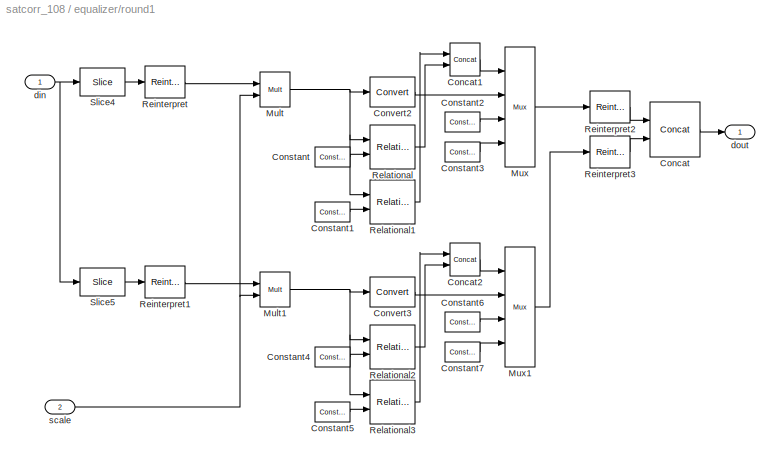
BLOCK [SubSystem] equalizer/round1
  MinAlgLoopOccurrences = off
  Ports = [2, 1]
  RTWSystemCode = Auto
  TreatAsAtomicUnit = off
BLOCK [Reference] equalizer/round1/Concat  REF=xbsIndex_r3/Concat
  Ports = [2, 1]
  SourceBlock = xbsIndex_r3/Concat
  SourceType = Xilinx Bus Concatenator
  dbl_ovrd = off
  explicit_period = off
  num_inputs = 2
  period = 1
BLOCK [Reference] equalizer/round1/Concat1  REF=xbsIndex_r3/Concat
  Ports = [2, 1]
  SourceBlock = xbsIndex_r3/Concat
  SourceType = Xilinx Bus Concatenator
  dbl_ovrd = off
  explicit_period = off
  num_inputs = 2
  period = 1
BLOCK [Reference] equalizer/round1/Concat2  REF=xbsIndex_r3/Concat
  Ports = [2, 1]
  SourceBlock = xbsIndex_r3/Concat
  SourceType = Xilinx Bus Concatenator
  dbl_ovrd = off
  explicit_period = off
  num_inputs = 2
  period = 1
BLOCK [Reference] equalizer/round1/Constant  REF=xbsIndex_r3/Constant
  Ports = [0, 1]
  SourceBlock = xbsIndex_r3/Constant
  SourceType = Xilinx Constant Block
  arith_type = Signed  (2's comp)
  bin_pt = 18
  carry = CIN
  const = 7/8
  dbl_ovrd = off
  equ = P=C
  explicit_period = on
  inp1 = P
  inp2 = PCIN>>17
  iostate = 0
  n_bits = 27
  opr = +
  opselect = C
  period = 1
BLOCK [Reference] equalizer/round1/Constant1  REF=xbsIndex_r3/Constant
  Ports = [0, 1]
  SourceBlock = xbsIndex_r3/Constant
  SourceType = Xilinx Constant Block
  arith_type = Signed  (2's comp)
  bin_pt = 18
  carry = CIN
  const = -7/8
  dbl_ovrd = off
  equ = P=C
  explicit_period = on
  inp1 = P
  inp2 = PCIN>>17
  iostate = 0
  n_bits = 27
  opr = +
  opselect = C
  period = 1
BLOCK [Reference] equalizer/round1/Constant2  REF=xbsIndex_r3/Constant
  Ports = [0, 1]
  SourceBlock = xbsIndex_r3/Constant
  SourceType = Xilinx Constant Block
  arith_type = Signed  (2's comp)
  bin_pt = 3
  carry = CIN
  const = 7/8
  dbl_ovrd = off
  equ = P=C
  explicit_period = on
  inp1 = P
  inp2 = PCIN>>17
  iostate = 0
  n_bits = 4
  opr = +
  opselect = C
  period = 1
BLOCK [Reference] equalizer/round1/Constant3  REF=xbsIndex_r3/Constant
  Ports = [0, 1]
  SourceBlock = xbsIndex_r3/Constant
  SourceType = Xilinx Constant Block
  arith_type = Signed  (2's comp)
  bin_pt = 3
  carry = CIN
  const = -7/8
  dbl_ovrd = off
  equ = P=C
  explicit_period = on
  inp1 = P
  inp2 = PCIN>>17
  iostate = 0
  n_bits = 4
  opr = +
  opselect = C
  period = 1
BLOCK [Reference] equalizer/round1/Constant4  REF=xbsIndex_r3/Constant
  Ports = [0, 1]
  SourceBlock = xbsIndex_r3/Constant
  SourceType = Xilinx Constant Block
  arith_type = Signed  (2's comp)
  bin_pt = 18
  carry = CIN
  const = 7/8
  dbl_ovrd = off
  equ = P=C
  explicit_period = on
  inp1 = P
  inp2 = PCIN>>17
  iostate = 0
  n_bits = 27
  opr = +
  opselect = C
  period = 1
BLOCK [Reference] equalizer/round1/Constant5  REF=xbsIndex_r3/Constant
  Ports = [0, 1]
  SourceBlock = xbsIndex_r3/Constant
  SourceType = Xilinx Constant Block
  arith_type = Signed  (2's comp)
  bin_pt = 18
  carry = CIN
  const = -7/8
  dbl_ovrd = off
  equ = P=C
  explicit_period = on
  inp1 = P
  inp2 = PCIN>>17
  iostate = 0
  n_bits = 27
  opr = +
  opselect = C
  period = 1
BLOCK [Reference] equalizer/round1/Constant6  REF=xbsIndex_r3/Constant
  Ports = [0, 1]
  SourceBlock = xbsIndex_r3/Constant
  SourceType = Xilinx Constant Block
  arith_type = Signed  (2's comp)
  bin_pt = 3
  carry = CIN
  const = 7/8
  dbl_ovrd = off
  equ = P=C
  explicit_period = on
  inp1 = P
  inp2 = PCIN>>17
  iostate = 0
  n_bits = 4
  opr = +
  opselect = C
  period = 1
BLOCK [Reference] equalizer/round1/Constant7  REF=xbsIndex_r3/Constant
  Ports = [0, 1]
  SourceBlock = xbsIndex_r3/Constant
  SourceType = Xilinx Constant Block
  arith_type = Signed  (2's comp)
  bin_pt = 3
  carry = CIN
  const = -7/8
  dbl_ovrd = off
  equ = P=C
  explicit_period = on
  inp1 = P
  inp2 = PCIN>>17
  iostate = 0
  n_bits = 4
  opr = +
  opselect = C
  period = 1
BLOCK [Reference] equalizer/round1/Convert2  REF=xbsIndex_r3/Convert
  Ports = [1, 1]
  SourceBlock = xbsIndex_r3/Convert
  SourceType = Xilinx Converter Block
  arith_type = Signed  (2's comp)
  bin_pt = 3
  dbl_ovrd = off
  explicit_period = off
  inserted_by_tool = off
  latency = 2
  n_bits = 4
  overflow = Wrap
  period = 1
  pipeline = on
  quantization = Round  (unbiased: Even Values)
  show_param = on
  xl_area = [0, 0, 0, 0, 0, 0, 0]
  xl_use_area = off
BLOCK [Reference] equalizer/round1/Convert3  REF=xbsIndex_r3/Convert
  Ports = [1, 1]
  SourceBlock = xbsIndex_r3/Convert
  SourceType = Xilinx Converter Block
  arith_type = Signed  (2's comp)
  bin_pt = 3
  dbl_ovrd = off
  explicit_period = off
  inserted_by_tool = off
  latency = 2
  n_bits = 4
  overflow = Wrap
  period = 1
  pipeline = on
  quantization = Round  (unbiased: Even Values)
  show_param = on
  xl_area = [0, 0, 0, 0, 0, 0, 0]
  xl_use_area = off
BLOCK [Reference] equalizer/round1/Mult  REF=xbsIndex_r3/Mult
  Ports = [2, 1]
  SourceBlock = xbsIndex_r3/Mult
  SourceType = Xilinx Multiplier
  arith_type = Signed  (2's comp)
  bin_pt = 2
  dbl_ovrd = off
  en = off
  explicit_period = off
  gen_core = off
  latency = 2
  mult_type = Parallel
  n_bits = 8
  overflow = Wrap
  oversample = 2
  period = 1
  pipeline = on
  placement_style = Rectangular Shape
  precision = Full
  quantization = Truncate
  show_param = on
  use_embedded = on
  use_rpm = on
  xl_area = [0, 0, 0, 0, 0, 0, 0]
  xl_use_area = off
BLOCK [Reference] equalizer/round1/Mult1  REF=xbsIndex_r3/Mult
  Ports = [2, 1]
  SourceBlock = xbsIndex_r3/Mult
  SourceType = Xilinx Multiplier
  arith_type = Signed  (2's comp)
  bin_pt = 2
  dbl_ovrd = off
  en = off
  explicit_period = off
  gen_core = off
  latency = 2
  mult_type = Parallel
  n_bits = 8
  overflow = Wrap
  oversample = 2
  period = 1
  pipeline = on
  placement_style = Rectangular Shape
  precision = Full
  quantization = Truncate
  show_param = on
  use_embedded = on
  use_rpm = on
  xl_area = [0, 0, 0, 0, 0, 0, 0]
  xl_use_area = off
BLOCK [Reference] equalizer/round1/Mux  REF=xbsIndex_r3/Mux
  Ports = [4, 1]
  SourceBlock = xbsIndex_r3/Mux
  SourceType = Xilinx Multiplexer Block
  arith_type = Signed  (2's comp)
  bin_pt = 2
  dbl_ovrd = off
  en = off
  explicit_period = off
  gen_core = off
  inputs = 3
  latency = 0
  mux_type = off
  n_bits = 8
  overflow = Wrap
  period = 1
  precision = Full
  quantization = Truncate
  show_param = off
  use_rpm = off
  xl_area = [0, 0, 0, 0, 0, 0, 0]
  xl_use_area = off
BLOCK [Reference] equalizer/round1/Mux1  REF=xbsIndex_r3/Mux
  Ports = [4, 1]
  SourceBlock = xbsIndex_r3/Mux
  SourceType = Xilinx Multiplexer Block
  arith_type = Signed  (2's comp)
  bin_pt = 2
  dbl_ovrd = off
  en = off
  explicit_period = off
  gen_core = off
  inputs = 3
  latency = 0
  mux_type = off
  n_bits = 8
  overflow = Wrap
  period = 1
  precision = Full
  quantization = Truncate
  show_param = off
  use_rpm = off
  xl_area = [0, 0, 0, 0, 0, 0, 0]
  xl_use_area = off
BLOCK [Reference] equalizer/round1/Reinterpret  REF=xbsIndex_r3/Reinterpret
  Ports = [1, 1]
  SourceBlock = xbsIndex_r3/Reinterpret
  SourceType = Xilinx Type Reinterpreting Block
  arith_type = Signed  (2's comp)
  bin_pt = 17
  force_arith_type = on
  force_bin_pt = on
  force_valid = on
BLOCK [Reference] equalizer/round1/Reinterpret1  REF=xbsIndex_r3/Reinterpret
  Ports = [1, 1]
  SourceBlock = xbsIndex_r3/Reinterpret
  SourceType = Xilinx Type Reinterpreting Block
  arith_type = Signed  (2's comp)
  bin_pt = 17
  force_arith_type = on
  force_bin_pt = on
  force_valid = on
BLOCK [Reference] equalizer/round1/Reinterpret2  REF=xbsIndex_r3/Reinterpret
  Ports = [1, 1]
  SourceBlock = xbsIndex_r3/Reinterpret
  SourceType = Xilinx Type Reinterpreting Block
  arith_type = Unsigned
  bin_pt = 0
  force_arith_type = on
  force_bin_pt = on
  force_valid = on
BLOCK [Reference] equalizer/round1/Reinterpret3  REF=xbsIndex_r3/Reinterpret
  Ports = [1, 1]
  SourceBlock = xbsIndex_r3/Reinterpret
  SourceType = Xilinx Type Reinterpreting Block
  arith_type = Unsigned
  bin_pt = 0
  force_arith_type = on
  force_bin_pt = on
  force_valid = on
BLOCK [Reference] equalizer/round1/Relational  REF=xbsIndex_r3/Relational
  Ports = [2, 1]
  SourceBlock = xbsIndex_r3/Relational
  SourceType = Xilinx Relational Block
  dbl_ovrd = off
  en = off
  explicit_period = off
  latency = 2
  mode = a>b
  period = 1
  show_param = off
  xl_area = [0, 0, 0, 0, 0, 0, 0]
  xl_use_area = off
BLOCK [Reference] equalizer/round1/Relational1  REF=xbsIndex_r3/Relational
  Ports = [2, 1]
  SourceBlock = xbsIndex_r3/Relational
  SourceType = Xilinx Relational Block
  dbl_ovrd = off
  en = off
  explicit_period = off
  latency = 2
  mode = a<b
  period = 1
  show_param = off
  xl_area = [0, 0, 0, 0, 0, 0, 0]
  xl_use_area = off
BLOCK [Reference] equalizer/round1/Relational2  REF=xbsIndex_r3/Relational
  Ports = [2, 1]
  SourceBlock = xbsIndex_r3/Relational
  SourceType = Xilinx Relational Block
  dbl_ovrd = off
  en = off
  explicit_period = off
  latency = 2
  mode = a>b
  period = 1
  show_param = off
  xl_area = [0, 0, 0, 0, 0, 0, 0]
  xl_use_area = off
BLOCK [Reference] equalizer/round1/Relational3  REF=xbsIndex_r3/Relational
  Ports = [2, 1]
  SourceBlock = xbsIndex_r3/Relational
  SourceType = Xilinx Relational Block
  dbl_ovrd = off
  en = off
  explicit_period = off
  latency = 2
  mode = a<b
  period = 1
  show_param = off
  xl_area = [0, 0, 0, 0, 0, 0, 0]
  xl_use_area = off
BLOCK [Reference] equalizer/round1/Slice4  REF=xbsIndex_r3/Slice
  Ports = [1, 1]
  SourceBlock = xbsIndex_r3/Slice
  SourceType = Xilinx Slice Block
  base0 = LSB of Input
  base1 = MSB of Input
  bit0 = 0
  bit1 = 0
  boolean_output = off
  dbl_ovrd = off
  explicit_period = off
  mode = Upper Bit Location + Width
  nbits = 18
  period = 1
BLOCK [Reference] equalizer/round1/Slice5  REF=xbsIndex_r3/Slice
  Ports = [1, 1]
  SourceBlock = xbsIndex_r3/Slice
  SourceType = Xilinx Slice Block
  base0 = LSB of Input
  base1 = MSB of Input
  bit0 = 0
  bit1 = 0
  boolean_output = off
  dbl_ovrd = off
  explicit_period = off
  mode = Lower Bit Location + Width
  nbits = 18
  period = 1
BLOCK [Inport] equalizer/round1/din
  IconDisplay = Port number
  LatchInput = off
  Port = 1
BLOCK [Outport] equalizer/round1/dout
  BusOutputAsStruct = off
  IconDisplay = Port number
BLOCK [Inport] equalizer/round1/scale
  IconDisplay = Port number
  LatchInput = off
  Port = 2
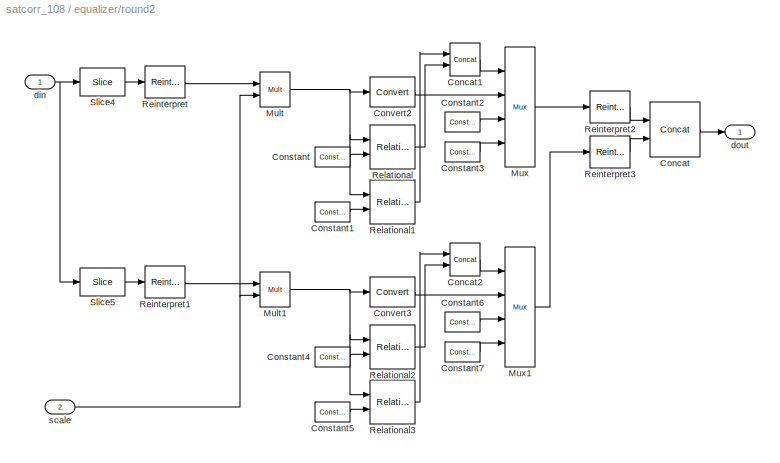
BLOCK [SubSystem] equalizer/round2
  MinAlgLoopOccurrences = off
  Ports = [2, 1]
  RTWSystemCode = Auto
  TreatAsAtomicUnit = off
BLOCK [Reference] equalizer/round2/Concat  REF=xbsIndex_r3/Concat
  Ports = [2, 1]
  SourceBlock = xbsIndex_r3/Concat
  SourceType = Xilinx Bus Concatenator
  dbl_ovrd = off
  explicit_period = off
  num_inputs = 2
  period = 1
BLOCK [Reference] equalizer/round2/Concat1  REF=xbsIndex_r3/Concat
  Ports = [2, 1]
  SourceBlock = xbsIndex_r3/Concat
  SourceType = Xilinx Bus Concatenator
  dbl_ovrd = off
  explicit_period = off
  num_inputs = 2
  period = 1
BLOCK [Reference] equalizer/round2/Concat2  REF=xbsIndex_r3/Concat
  Ports = [2, 1]
  SourceBlock = xbsIndex_r3/Concat
  SourceType = Xilinx Bus Concatenator
  dbl_ovrd = off
  explicit_period = off
  num_inputs = 2
  period = 1
BLOCK [Reference] equalizer/round2/Constant  REF=xbsIndex_r3/Constant
  Ports = [0, 1]
  SourceBlock = xbsIndex_r3/Constant
  SourceType = Xilinx Constant Block
  arith_type = Signed  (2's comp)
  bin_pt = 18
  carry = CIN
  const = 7/8
  dbl_ovrd = off
  equ = P=C
  explicit_period = on
  inp1 = P
  inp2 = PCIN>>17
  iostate = 0
  n_bits = 27
  opr = +
  opselect = C
  period = 1
BLOCK [Reference] equalizer/round2/Constant1  REF=xbsIndex_r3/Constant
  Ports = [0, 1]
  SourceBlock = xbsIndex_r3/Constant
  SourceType = Xilinx Constant Block
  arith_type = Signed  (2's comp)
  bin_pt = 18
  carry = CIN
  const = -7/8
  dbl_ovrd = off
  equ = P=C
  explicit_period = on
  inp1 = P
  inp2 = PCIN>>17
  iostate = 0
  n_bits = 27
  opr = +
  opselect = C
  period = 1
BLOCK [Reference] equalizer/round2/Constant2  REF=xbsIndex_r3/Constant
  Ports = [0, 1]
  SourceBlock = xbsIndex_r3/Constant
  SourceType = Xilinx Constant Block
  arith_type = Signed  (2's comp)
  bin_pt = 3
  carry = CIN
  const = 7/8
  dbl_ovrd = off
  equ = P=C
  explicit_period = on
  inp1 = P
  inp2 = PCIN>>17
  iostate = 0
  n_bits = 4
  opr = +
  opselect = C
  period = 1
BLOCK [Reference] equalizer/round2/Constant3  REF=xbsIndex_r3/Constant
  Ports = [0, 1]
  SourceBlock = xbsIndex_r3/Constant
  SourceType = Xilinx Constant Block
  arith_type = Signed  (2's comp)
  bin_pt = 3
  carry = CIN
  const = -7/8
  dbl_ovrd = off
  equ = P=C
  explicit_period = on
  inp1 = P
  inp2 = PCIN>>17
  iostate = 0
  n_bits = 4
  opr = +
  opselect = C
  period = 1
BLOCK [Reference] equalizer/round2/Constant4  REF=xbsIndex_r3/Constant
  Ports = [0, 1]
  SourceBlock = xbsIndex_r3/Constant
  SourceType = Xilinx Constant Block
  arith_type = Signed  (2's comp)
  bin_pt = 18
  carry = CIN
  const = 7/8
  dbl_ovrd = off
  equ = P=C
  explicit_period = on
  inp1 = P
  inp2 = PCIN>>17
  iostate = 0
  n_bits = 27
  opr = +
  opselect = C
  period = 1
BLOCK [Reference] equalizer/round2/Constant5  REF=xbsIndex_r3/Constant
  Ports = [0, 1]
  SourceBlock = xbsIndex_r3/Constant
  SourceType = Xilinx Constant Block
  arith_type = Signed  (2's comp)
  bin_pt = 18
  carry = CIN
  const = -7/8
  dbl_ovrd = off
  equ = P=C
  explicit_period = on
  inp1 = P
  inp2 = PCIN>>17
  iostate = 0
  n_bits = 27
  opr = +
  opselect = C
  period = 1
BLOCK [Reference] equalizer/round2/Constant6  REF=xbsIndex_r3/Constant
  Ports = [0, 1]
  SourceBlock = xbsIndex_r3/Constant
  SourceType = Xilinx Constant Block
  arith_type = Signed  (2's comp)
  bin_pt = 3
  carry = CIN
  const = 7/8
  dbl_ovrd = off
  equ = P=C
  explicit_period = on
  inp1 = P
  inp2 = PCIN>>17
  iostate = 0
  n_bits = 4
  opr = +
  opselect = C
  period = 1
BLOCK [Reference] equalizer/round2/Constant7  REF=xbsIndex_r3/Constant
  Ports = [0, 1]
  SourceBlock = xbsIndex_r3/Constant
  SourceType = Xilinx Constant Block
  arith_type = Signed  (2's comp)
  bin_pt = 3
  carry = CIN
  const = -7/8
  dbl_ovrd = off
  equ = P=C
  explicit_period = on
  inp1 = P
  inp2 = PCIN>>17
  iostate = 0
  n_bits = 4
  opr = +
  opselect = C
  period = 1
BLOCK [Reference] equalizer/round2/Convert2  REF=xbsIndex_r3/Convert
  Ports = [1, 1]
  SourceBlock = xbsIndex_r3/Convert
  SourceType = Xilinx Converter Block
  arith_type = Signed  (2's comp)
  bin_pt = 3
  dbl_ovrd = off
  explicit_period = off
  inserted_by_tool = off
  latency = 2
  n_bits = 4
  overflow = Wrap
  period = 1
  pipeline = on
  quantization = Round  (unbiased: Even Values)
  show_param = on
  xl_area = [0, 0, 0, 0, 0, 0, 0]
  xl_use_area = off
BLOCK [Reference] equalizer/round2/Convert3  REF=xbsIndex_r3/Convert
  Ports = [1, 1]
  SourceBlock = xbsIndex_r3/Convert
  SourceType = Xilinx Converter Block
  arith_type = Signed  (2's comp)
  bin_pt = 3
  dbl_ovrd = off
  explicit_period = off
  inserted_by_tool = off
  latency = 2
  n_bits = 4
  overflow = Wrap
  period = 1
  pipeline = on
  quantization = Round  (unbiased: Even Values)
  show_param = on
  xl_area = [0, 0, 0, 0, 0, 0, 0]
  xl_use_area = off
BLOCK [Reference] equalizer/round2/Mult  REF=xbsIndex_r3/Mult
  Ports = [2, 1]
  SourceBlock = xbsIndex_r3/Mult
  SourceType = Xilinx Multiplier
  arith_type = Signed  (2's comp)
  bin_pt = 2
  dbl_ovrd = off
  en = off
  explicit_period = off
  gen_core = off
  latency = 2
  mult_type = Parallel
  n_bits = 8
  overflow = Wrap
  oversample = 2
  period = 1
  pipeline = on
  placement_style = Rectangular Shape
  precision = Full
  quantization = Truncate
  show_param = on
  use_embedded = on
  use_rpm = on
  xl_area = [0, 0, 0, 0, 0, 0, 0]
  xl_use_area = off
BLOCK [Reference] equalizer/round2/Mult1  REF=xbsIndex_r3/Mult
  Ports = [2, 1]
  SourceBlock = xbsIndex_r3/Mult
  SourceType = Xilinx Multiplier
  arith_type = Signed  (2's comp)
  bin_pt = 2
  dbl_ovrd = off
  en = off
  explicit_period = off
  gen_core = off
  latency = 2
  mult_type = Parallel
  n_bits = 8
  overflow = Wrap
  oversample = 2
  period = 1
  pipeline = on
  placement_style = Rectangular Shape
  precision = Full
  quantization = Truncate
  show_param = on
  use_embedded = on
  use_rpm = on
  xl_area = [0, 0, 0, 0, 0, 0, 0]
  xl_use_area = off
BLOCK [Reference] equalizer/round2/Mux  REF=xbsIndex_r3/Mux
  Ports = [4, 1]
  SourceBlock = xbsIndex_r3/Mux
  SourceType = Xilinx Multiplexer Block
  arith_type = Signed  (2's comp)
  bin_pt = 2
  dbl_ovrd = off
  en = off
  explicit_period = off
  gen_core = off
  inputs = 3
  latency = 0
  mux_type = off
  n_bits = 8
  overflow = Wrap
  period = 1
  precision = Full
  quantization = Truncate
  show_param = off
  use_rpm = off
  xl_area = [0, 0, 0, 0, 0, 0, 0]
  xl_use_area = off
BLOCK [Reference] equalizer/round2/Mux1  REF=xbsIndex_r3/Mux
  Ports = [4, 1]
  SourceBlock = xbsIndex_r3/Mux
  SourceType = Xilinx Multiplexer Block
  arith_type = Signed  (2's comp)
  bin_pt = 2
  dbl_ovrd = off
  en = off
  explicit_period = off
  gen_core = off
  inputs = 3
  latency = 0
  mux_type = off
  n_bits = 8
  overflow = Wrap
  period = 1
  precision = Full
  quantization = Truncate
  show_param = off
  use_rpm = off
  xl_area = [0, 0, 0, 0, 0, 0, 0]
  xl_use_area = off
BLOCK [Reference] equalizer/round2/Reinterpret  REF=xbsIndex_r3/Reinterpret
  Ports = [1, 1]
  SourceBlock = xbsIndex_r3/Reinterpret
  SourceType = Xilinx Type Reinterpreting Block
  arith_type = Signed  (2's comp)
  bin_pt = 17
  force_arith_type = on
  force_bin_pt = on
  force_valid = on
BLOCK [Reference] equalizer/round2/Reinterpret1  REF=xbsIndex_r3/Reinterpret
  Ports = [1, 1]
  SourceBlock = xbsIndex_r3/Reinterpret
  SourceType = Xilinx Type Reinterpreting Block
  arith_type = Signed  (2's comp)
  bin_pt = 17
  force_arith_type = on
  force_bin_pt = on
  force_valid = on
BLOCK [Reference] equalizer/round2/Reinterpret2  REF=xbsIndex_r3/Reinterpret
  Ports = [1, 1]
  SourceBlock = xbsIndex_r3/Reinterpret
  SourceType = Xilinx Type Reinterpreting Block
  arith_type = Unsigned
  bin_pt = 0
  force_arith_type = on
  force_bin_pt = on
  force_valid = on
BLOCK [Reference] equalizer/round2/Reinterpret3  REF=xbsIndex_r3/Reinterpret
  Ports = [1, 1]
  SourceBlock = xbsIndex_r3/Reinterpret
  SourceType = Xilinx Type Reinterpreting Block
  arith_type = Unsigned
  bin_pt = 0
  force_arith_type = on
  force_bin_pt = on
  force_valid = on
BLOCK [Reference] equalizer/round2/Relational  REF=xbsIndex_r3/Relational
  Ports = [2, 1]
  SourceBlock = xbsIndex_r3/Relational
  SourceType = Xilinx Relational Block
  dbl_ovrd = off
  en = off
  explicit_period = off
  latency = 2
  mode = a>b
  period = 1
  show_param = off
  xl_area = [0, 0, 0, 0, 0, 0, 0]
  xl_use_area = off
BLOCK [Reference] equalizer/round2/Relational1  REF=xbsIndex_r3/Relational
  Ports = [2, 1]
  SourceBlock = xbsIndex_r3/Relational
  SourceType = Xilinx Relational Block
  dbl_ovrd = off
  en = off
  explicit_period = off
  latency = 2
  mode = a<b
  period = 1
  show_param = off
  xl_area = [0, 0, 0, 0, 0, 0, 0]
  xl_use_area = off
BLOCK [Reference] equalizer/round2/Relational2  REF=xbsIndex_r3/Relational
  Ports = [2, 1]
  SourceBlock = xbsIndex_r3/Relational
  SourceType = Xilinx Relational Block
  dbl_ovrd = off
  en = off
  explicit_period = off
  latency = 2
  mode = a>b
  period = 1
  show_param = off
  xl_area = [0, 0, 0, 0, 0, 0, 0]
  xl_use_area = off
BLOCK [Reference] equalizer/round2/Relational3  REF=xbsIndex_r3/Relational
  Ports = [2, 1]
  SourceBlock = xbsIndex_r3/Relational
  SourceType = Xilinx Relational Block
  dbl_ovrd = off
  en = off
  explicit_period = off
  latency = 2
  mode = a<b
  period = 1
  show_param = off
  xl_area = [0, 0, 0, 0, 0, 0, 0]
  xl_use_area = off
BLOCK [Reference] equalizer/round2/Slice4  REF=xbsIndex_r3/Slice
  Ports = [1, 1]
  SourceBlock = xbsIndex_r3/Slice
  SourceType = Xilinx Slice Block
  base0 = LSB of Input
  base1 = MSB of Input
  bit0 = 0
  bit1 = 0
  boolean_output = off
  dbl_ovrd = off
  explicit_period = off
  mode = Upper Bit Location + Width
  nbits = 18
  period = 1
BLOCK [Reference] equalizer/round2/Slice5  REF=xbsIndex_r3/Slice
  Ports = [1, 1]
  SourceBlock = xbsIndex_r3/Slice
  SourceType = Xilinx Slice Block
  base0 = LSB of Input
  base1 = MSB of Input
  bit0 = 0
  bit1 = 0
  boolean_output = off
  dbl_ovrd = off
  explicit_period = off
  mode = Lower Bit Location + Width
  nbits = 18
  period = 1
BLOCK [Inport] equalizer/round2/din
  IconDisplay = Port number
  LatchInput = off
  Port = 1
BLOCK [Outport] equalizer/round2/dout
  BusOutputAsStruct = off
  IconDisplay = Port number
BLOCK [Inport] equalizer/round2/scale
  IconDisplay = Port number
  LatchInput = off
  Port = 2
BLOCK [SubSystem] equalizer/round3
  MinAlgLoopOccurrences = off
  Ports = [2, 1]
  RTWSystemCode = Auto
  TreatAsAtomicUnit = off
BLOCK [Reference] equalizer/round3/Concat  REF=xbsIndex_r3/Concat
  Ports = [2, 1]
  SourceBlock = xbsIndex_r3/Concat
  SourceType = Xilinx Bus Concatenator
  dbl_ovrd = off
  explicit_period = off
  num_inputs = 2
  period = 1
BLOCK [Reference] equalizer/round3/Concat1  REF=xbsIndex_r3/Concat
  Ports = [2, 1]
  SourceBlock = xbsIndex_r3/Concat
  SourceType = Xilinx Bus Concatenator
  dbl_ovrd = off
  explicit_period = off
  num_inputs = 2
  period = 1
BLOCK [Reference] equalizer/round3/Concat2  REF=xbsIndex_r3/Concat
  Ports = [2, 1]
  SourceBlock = xbsIndex_r3/Concat
  SourceType = Xilinx Bus Concatenator
  dbl_ovrd = off
  explicit_period = off
  num_inputs = 2
  period = 1
BLOCK [Reference] equalizer/round3/Constant  REF=xbsIndex_r3/Constant
  Ports = [0, 1]
  SourceBlock = xbsIndex_r3/Constant
  SourceType = Xilinx Constant Block
  arith_type = Signed  (2's comp)
  bin_pt = 18
  carry = CIN
  const = 7/8
  dbl_ovrd = off
  equ = P=C
  explicit_period = on
  inp1 = P
  inp2 = PCIN>>17
  iostate = 0
  n_bits = 27
  opr = +
  opselect = C
  period = 1
BLOCK [Reference] equalizer/round3/Constant1  REF=xbsIndex_r3/Constant
  Ports = [0, 1]
  SourceBlock = xbsIndex_r3/Constant
  SourceType = Xilinx Constant Block
  arith_type = Signed  (2's comp)
  bin_pt = 18
  carry = CIN
  const = -7/8
  dbl_ovrd = off
  equ = P=C
  explicit_period = on
  inp1 = P
  inp2 = PCIN>>17
  iostate = 0
  n_bits = 27
  opr = +
  opselect = C
  period = 1
BLOCK [Reference] equalizer/round3/Constant2  REF=xbsIndex_r3/Constant
  Ports = [0, 1]
  SourceBlock = xbsIndex_r3/Constant
  SourceType = Xilinx Constant Block
  arith_type = Signed  (2's comp)
  bin_pt = 3
  carry = CIN
  const = 7/8
  dbl_ovrd = off
  equ = P=C
  explicit_period = on
  inp1 = P
  inp2 = PCIN>>17
  iostate = 0
  n_bits = 4
  opr = +
  opselect = C
  period = 1
BLOCK [Reference] equalizer/round3/Constant3  REF=xbsIndex_r3/Constant
  Ports = [0, 1]
  SourceBlock = xbsIndex_r3/Constant
  SourceType = Xilinx Constant Block
  arith_type = Signed  (2's comp)
  bin_pt = 3
  carry = CIN
  const = -7/8
  dbl_ovrd = off
  equ = P=C
  explicit_period = on
  inp1 = P
  inp2 = PCIN>>17
  iostate = 0
  n_bits = 4
  opr = +
  opselect = C
  period = 1
BLOCK [Reference] equalizer/round3/Constant4  REF=xbsIndex_r3/Constant
  Ports = [0, 1]
  SourceBlock = xbsIndex_r3/Constant
  SourceType = Xilinx Constant Block
  arith_type = Signed  (2's comp)
  bin_pt = 18
  carry = CIN
  const = 7/8
  dbl_ovrd = off
  equ = P=C
  explicit_period = on
  inp1 = P
  inp2 = PCIN>>17
  iostate = 0
  n_bits = 27
  opr = +
  opselect = C
  period = 1
BLOCK [Reference] equalizer/round3/Constant5  REF=xbsIndex_r3/Constant
  Ports = [0, 1]
  SourceBlock = xbsIndex_r3/Constant
  SourceType = Xilinx Constant Block
  arith_type = Signed  (2's comp)
  bin_pt = 18
  carry = CIN
  const = -7/8
  dbl_ovrd = off
  equ = P=C
  explicit_period = on
  inp1 = P
  inp2 = PCIN>>17
  iostate = 0
  n_bits = 27
  opr = +
  opselect = C
  period = 1
BLOCK [Reference] equalizer/round3/Constant6  REF=xbsIndex_r3/Constant
  Ports = [0, 1]
  SourceBlock = xbsIndex_r3/Constant
  SourceType = Xilinx Constant Block
  arith_type = Signed  (2's comp)
  bin_pt = 3
  carry = CIN
  const = 7/8
  dbl_ovrd = off
  equ = P=C
  explicit_period = on
  inp1 = P
  inp2 = PCIN>>17
  iostate = 0
  n_bits = 4
  opr = +
  opselect = C
  period = 1
BLOCK [Reference] equalizer/round3/Constant7  REF=xbsIndex_r3/Constant
  Ports = [0, 1]
  SourceBlock = xbsIndex_r3/Constant
  SourceType = Xilinx Constant Block
  arith_type = Signed  (2's comp)
  bin_pt = 3
  carry = CIN
  const = -7/8
  dbl_ovrd = off
  equ = P=C
  explicit_period = on
  inp1 = P
  inp2 = PCIN>>17
  iostate = 0
  n_bits = 4
  opr = +
  opselect = C
  period = 1
BLOCK [Reference] equalizer/round3/Convert2  REF=xbsIndex_r3/Convert
  Ports = [1, 1]
  SourceBlock = xbsIndex_r3/Convert
  SourceType = Xilinx Converter Block
  arith_type = Signed  (2's comp)
  bin_pt = 3
  dbl_ovrd = off
  explicit_period = off
  inserted_by_tool = off
  latency = 2
  n_bits = 4
  overflow = Wrap
  period = 1
  pipeline = on
  quantization = Round  (unbiased: Even Values)
  show_param = on
  xl_area = [0, 0, 0, 0, 0, 0, 0]
  xl_use_area = off
BLOCK [Reference] equalizer/round3/Convert3  REF=xbsIndex_r3/Convert
  Ports = [1, 1]
  SourceBlock = xbsIndex_r3/Convert
  SourceType = Xilinx Converter Block
  arith_type = Signed  (2's comp)
  bin_pt = 3
  dbl_ovrd = off
  explicit_period = off
  inserted_by_tool = off
  latency = 2
  n_bits = 4
  overflow = Wrap
  period = 1
  pipeline = on
  quantization = Round  (unbiased: Even Values)
  show_param = on
  xl_area = [0, 0, 0, 0, 0, 0, 0]
  xl_use_area = off
BLOCK [Reference] equalizer/round3/Mult  REF=xbsIndex_r3/Mult
  Ports = [2, 1]
  SourceBlock = xbsIndex_r3/Mult
  SourceType = Xilinx Multiplier
  arith_type = Signed  (2's comp)
  bin_pt = 2
  dbl_ovrd = off
  en = off
  explicit_period = off
  gen_core = off
  latency = 2
  mult_type = Parallel
  n_bits = 8
  overflow = Wrap
  oversample = 2
  period = 1
  pipeline = on
  placement_style = Rectangular Shape
  precision = Full
  quantization = Truncate
  show_param = on
  use_embedded = on
  use_rpm = on
  xl_area = [0, 0, 0, 0, 0, 0, 0]
  xl_use_area = off
BLOCK [Reference] equalizer/round3/Mult1  REF=xbsIndex_r3/Mult
  Ports = [2, 1]
  SourceBlock = xbsIndex_r3/Mult
  SourceType = Xilinx Multiplier
  arith_type = Signed  (2's comp)
  bin_pt = 2
  dbl_ovrd = off
  en = off
  explicit_period = off
  gen_core = off
  latency = 2
  mult_type = Parallel
  n_bits = 8
  overflow = Wrap
  oversample = 2
  period = 1
  pipeline = on
  placement_style = Rectangular Shape
  precision = Full
  quantization = Truncate
  show_param = on
  use_embedded = on
  use_rpm = on
  xl_area = [0, 0, 0, 0, 0, 0, 0]
  xl_use_area = off
BLOCK [Reference] equalizer/round3/Mux  REF=xbsIndex_r3/Mux
  Ports = [4, 1]
  SourceBlock = xbsIndex_r3/Mux
  SourceType = Xilinx Multiplexer Block
  arith_type = Signed  (2's comp)
  bin_pt = 2
  dbl_ovrd = off
  en = off
  explicit_period = off
  gen_core = off
  inputs = 3
  latency = 0
  mux_type = off
  n_bits = 8
  overflow = Wrap
  period = 1
  precision = Full
  quantization = Truncate
  show_param = off
  use_rpm = off
  xl_area = [0, 0, 0, 0, 0, 0, 0]
  xl_use_area = off
BLOCK [Reference] equalizer/round3/Mux1  REF=xbsIndex_r3/Mux
  Ports = [4, 1]
  SourceBlock = xbsIndex_r3/Mux
  SourceType = Xilinx Multiplexer Block
  arith_type = Signed  (2's comp)
  bin_pt = 2
  dbl_ovrd = off
  en = off
  explicit_period = off
  gen_core = off
  inputs = 3
  latency = 0
  mux_type = off
  n_bits = 8
  overflow = Wrap
  period = 1
  precision = Full
  quantization = Truncate
  show_param = off
  use_rpm = off
  xl_area = [0, 0, 0, 0, 0, 0, 0]
  xl_use_area = off
BLOCK [Reference] equalizer/round3/Reinterpret  REF=xbsIndex_r3/Reinterpret
  Ports = [1, 1]
  SourceBlock = xbsIndex_r3/Reinterpret
  SourceType = Xilinx Type Reinterpreting Block
  arith_type = Signed  (2's comp)
  bin_pt = 17
  force_arith_type = on
  force_bin_pt = on
  force_valid = on
BLOCK [Reference] equalizer/round3/Reinterpret1  REF=xbsIndex_r3/Reinterpret
  Ports = [1, 1]
  SourceBlock = xbsIndex_r3/Reinterpret
  SourceType = Xilinx Type Reinterpreting Block
  arith_type = Signed  (2's comp)
  bin_pt = 17
  force_arith_type = on
  force_bin_pt = on
  force_valid = on
BLOCK [Reference] equalizer/round3/Reinterpret2  REF=xbsIndex_r3/Reinterpret
  Ports = [1, 1]
  SourceBlock = xbsIndex_r3/Reinterpret
  SourceType = Xilinx Type Reinterpreting Block
  arith_type = Unsigned
  bin_pt = 0
  force_arith_type = on
  force_bin_pt = on
  force_valid = on
BLOCK [Reference] equalizer/round3/Reinterpret3  REF=xbsIndex_r3/Reinterpret
  Ports = [1, 1]
  SourceBlock = xbsIndex_r3/Reinterpret
  SourceType = Xilinx Type Reinterpreting Block
  arith_type = Unsigned
  bin_pt = 0
  force_arith_type = on
  force_bin_pt = on
  force_valid = on
BLOCK [Reference] equalizer/round3/Relational  REF=xbsIndex_r3/Relational
  Ports = [2, 1]
  SourceBlock = xbsIndex_r3/Relational
  SourceType = Xilinx Relational Block
  dbl_ovrd = off
  en = off
  explicit_period = off
  latency = 2
  mode = a>b
  period = 1
  show_param = off
  xl_area = [0, 0, 0, 0, 0, 0, 0]
  xl_use_area = off
BLOCK [Reference] equalizer/round3/Relational1  REF=xbsIndex_r3/Relational
  Ports = [2, 1]
  SourceBlock = xbsIndex_r3/Relational
  SourceType = Xilinx Relational Block
  dbl_ovrd = off
  en = off
  explicit_period = off
  latency = 2
  mode = a<b
  period = 1
  show_param = off
  xl_area = [0, 0, 0, 0, 0, 0, 0]
  xl_use_area = off
BLOCK [Reference] equalizer/round3/Relational2  REF=xbsIndex_r3/Relational
  Ports = [2, 1]
  SourceBlock = xbsIndex_r3/Relational
  SourceType = Xilinx Relational Block
  dbl_ovrd = off
  en = off
  explicit_period = off
  latency = 2
  mode = a>b
  period = 1
  show_param = off
  xl_area = [0, 0, 0, 0, 0, 0, 0]
  xl_use_area = off
BLOCK [Reference] equalizer/round3/Relational3  REF=xbsIndex_r3/Relational
  Ports = [2, 1]
  SourceBlock = xbsIndex_r3/Relational
  SourceType = Xilinx Relational Block
  dbl_ovrd = off
  en = off
  explicit_period = off
  latency = 2
  mode = a<b
  period = 1
  show_param = off
  xl_area = [0, 0, 0, 0, 0, 0, 0]
  xl_use_area = off
BLOCK [Reference] equalizer/round3/Slice4  REF=xbsIndex_r3/Slice
  Ports = [1, 1]
  SourceBlock = xbsIndex_r3/Slice
  SourceType = Xilinx Slice Block
  base0 = LSB of Input
  base1 = MSB of Input
  bit0 = 0
  bit1 = 0
  boolean_output = off
  dbl_ovrd = off
  explicit_period = off
  mode = Upper Bit Location + Width
  nbits = 18
  period = 1
BLOCK [Reference] equalizer/round3/Slice5  REF=xbsIndex_r3/Slice
  Ports = [1, 1]
  SourceBlock = xbsIndex_r3/Slice
  SourceType = Xilinx Slice Block
  base0 = LSB of Input
  base1 = MSB of Input
  bit0 = 0
  bit1 = 0
  boolean_output = off
  dbl_ovrd = off
  explicit_period = off
  mode = Lower Bit Location + Width
  nbits = 18
  period = 1
BLOCK [Inport] equalizer/round3/din
  IconDisplay = Port number
  LatchInput = off
  Port = 1
BLOCK [Outport] equalizer/round3/dout
  BusOutputAsStruct = off
  IconDisplay = Port number
BLOCK [Inport] equalizer/round3/scale
  IconDisplay = Port number
  LatchInput = off
  Port = 2
BLOCK [SubSystem] equalizer/round4
  MinAlgLoopOccurrences = off
  Ports = [2, 1]
  RTWSystemCode = Auto
  TreatAsAtomicUnit = off
BLOCK [Reference] equalizer/round4/Concat  REF=xbsIndex_r3/Concat
  Ports = [2, 1]
  SourceBlock = xbsIndex_r3/Concat
  SourceType = Xilinx Bus Concatenator
  dbl_ovrd = off
  explicit_period = off
  num_inputs = 2
  period = 1
BLOCK [Reference] equalizer/round4/Concat1  REF=xbsIndex_r3/Concat
  Ports = [2, 1]
  SourceBlock = xbsIndex_r3/Concat
  SourceType = Xilinx Bus Concatenator
  dbl_ovrd = off
  explicit_period = off
  num_inputs = 2
  period = 1
BLOCK [Reference] equalizer/round4/Concat2  REF=xbsIndex_r3/Concat
  Ports = [2, 1]
  SourceBlock = xbsIndex_r3/Concat
  SourceType = Xilinx Bus Concatenator
  dbl_ovrd = off
  explicit_period = off
  num_inputs = 2
  period = 1
BLOCK [Reference] equalizer/round4/Constant  REF=xbsIndex_r3/Constant
  Ports = [0, 1]
  SourceBlock = xbsIndex_r3/Constant
  SourceType = Xilinx Constant Block
  arith_type = Signed  (2's comp)
  bin_pt = 18
  carry = CIN
  const = 7/8
  dbl_ovrd = off
  equ = P=C
  explicit_period = on
  inp1 = P
  inp2 = PCIN>>17
  iostate = 0
  n_bits = 27
  opr = +
  opselect = C
  period = 1
BLOCK [Reference] equalizer/round4/Constant1  REF=xbsIndex_r3/Constant
  Ports = [0, 1]
  SourceBlock = xbsIndex_r3/Constant
  SourceType = Xilinx Constant Block
  arith_type = Signed  (2's comp)
  bin_pt = 18
  carry = CIN
  const = -7/8
  dbl_ovrd = off
  equ = P=C
  explicit_period = on
  inp1 = P
  inp2 = PCIN>>17
  iostate = 0
  n_bits = 27
  opr = +
  opselect = C
  period = 1
BLOCK [Reference] equalizer/round4/Constant2  REF=xbsIndex_r3/Constant
  Ports = [0, 1]
  SourceBlock = xbsIndex_r3/Constant
  SourceType = Xilinx Constant Block
  arith_type = Signed  (2's comp)
  bin_pt = 3
  carry = CIN
  const = 7/8
  dbl_ovrd = off
  equ = P=C
  explicit_period = on
  inp1 = P
  inp2 = PCIN>>17
  iostate = 0
  n_bits = 4
  opr = +
  opselect = C
  period = 1
BLOCK [Reference] equalizer/round4/Constant3  REF=xbsIndex_r3/Constant
  Ports = [0, 1]
  SourceBlock = xbsIndex_r3/Constant
  SourceType = Xilinx Constant Block
  arith_type = Signed  (2's comp)
  bin_pt = 3
  carry = CIN
  const = -7/8
  dbl_ovrd = off
  equ = P=C
  explicit_period = on
  inp1 = P
  inp2 = PCIN>>17
  iostate = 0
  n_bits = 4
  opr = +
  opselect = C
  period = 1
BLOCK [Reference] equalizer/round4/Constant4  REF=xbsIndex_r3/Constant
  Ports = [0, 1]
  SourceBlock = xbsIndex_r3/Constant
  SourceType = Xilinx Constant Block
  arith_type = Signed  (2's comp)
  bin_pt = 18
  carry = CIN
  const = 7/8
  dbl_ovrd = off
  equ = P=C
  explicit_period = on
  inp1 = P
  inp2 = PCIN>>17
  iostate = 0
  n_bits = 27
  opr = +
  opselect = C
  period = 1
BLOCK [Reference] equalizer/round4/Constant5  REF=xbsIndex_r3/Constant
  Ports = [0, 1]
  SourceBlock = xbsIndex_r3/Constant
  SourceType = Xilinx Constant Block
  arith_type = Signed  (2's comp)
  bin_pt = 18
  carry = CIN
  const = -7/8
  dbl_ovrd = off
  equ = P=C
  explicit_period = on
  inp1 = P
  inp2 = PCIN>>17
  iostate = 0
  n_bits = 27
  opr = +
  opselect = C
  period = 1
BLOCK [Reference] equalizer/round4/Constant6  REF=xbsIndex_r3/Constant
  Ports = [0, 1]
  SourceBlock = xbsIndex_r3/Constant
  SourceType = Xilinx Constant Block
  arith_type = Signed  (2's comp)
  bin_pt = 3
  carry = CIN
  const = 7/8
  dbl_ovrd = off
  equ = P=C
  explicit_period = on
  inp1 = P
  inp2 = PCIN>>17
  iostate = 0
  n_bits = 4
  opr = +
  opselect = C
  period = 1
BLOCK [Reference] equalizer/round4/Constant7  REF=xbsIndex_r3/Constant
  Ports = [0, 1]
  SourceBlock = xbsIndex_r3/Constant
  SourceType = Xilinx Constant Block
  arith_type = Signed  (2's comp)
  bin_pt = 3
  carry = CIN
  const = -7/8
  dbl_ovrd = off
  equ = P=C
  explicit_period = on
  inp1 = P
  inp2 = PCIN>>17
  iostate = 0
  n_bits = 4
  opr = +
  opselect = C
  period = 1
BLOCK [Reference] equalizer/round4/Convert2  REF=xbsIndex_r3/Convert
  Ports = [1, 1]
  SourceBlock = xbsIndex_r3/Convert
  SourceType = Xilinx Converter Block
  arith_type = Signed  (2's comp)
  bin_pt = 3
  dbl_ovrd = off
  explicit_period = off
  inserted_by_tool = off
  latency = 2
  n_bits = 4
  overflow = Wrap
  period = 1
  pipeline = on
  quantization = Round  (unbiased: Even Values)
  show_param = on
  xl_area = [0, 0, 0, 0, 0, 0, 0]
  xl_use_area = off
BLOCK [Reference] equalizer/round4/Convert3  REF=xbsIndex_r3/Convert
  Ports = [1, 1]
  SourceBlock = xbsIndex_r3/Convert
  SourceType = Xilinx Converter Block
  arith_type = Signed  (2's comp)
  bin_pt = 3
  dbl_ovrd = off
  explicit_period = off
  inserted_by_tool = off
  latency = 2
  n_bits = 4
  overflow = Wrap
  period = 1
  pipeline = on
  quantization = Round  (unbiased: Even Values)
  show_param = on
  xl_area = [0, 0, 0, 0, 0, 0, 0]
  xl_use_area = off
BLOCK [Reference] equalizer/round4/Mult  REF=xbsIndex_r3/Mult
  Ports = [2, 1]
  SourceBlock = xbsIndex_r3/Mult
  SourceType = Xilinx Multiplier
  arith_type = Signed  (2's comp)
  bin_pt = 2
  dbl_ovrd = off
  en = off
  explicit_period = off
  gen_core = off
  latency = 2
  mult_type = Parallel
  n_bits = 8
  overflow = Wrap
  oversample = 2
  period = 1
  pipeline = on
  placement_style = Rectangular Shape
  precision = Full
  quantization = Truncate
  show_param = on
  use_embedded = on
  use_rpm = on
  xl_area = [0, 0, 0, 0, 0, 0, 0]
  xl_use_area = off
BLOCK [Reference] equalizer/round4/Mult1  REF=xbsIndex_r3/Mult
  Ports = [2, 1]
  SourceBlock = xbsIndex_r3/Mult
  SourceType = Xilinx Multiplier
  arith_type = Signed  (2's comp)
  bin_pt = 2
  dbl_ovrd = off
  en = off
  explicit_period = off
  gen_core = off
  latency = 2
  mult_type = Parallel
  n_bits = 8
  overflow = Wrap
  oversample = 2
  period = 1
  pipeline = on
  placement_style = Rectangular Shape
  precision = Full
  quantization = Truncate
  show_param = on
  use_embedded = on
  use_rpm = on
  xl_area = [0, 0, 0, 0, 0, 0, 0]
  xl_use_area = off
BLOCK [Reference] equalizer/round4/Mux  REF=xbsIndex_r3/Mux
  Ports = [4, 1]
  SourceBlock = xbsIndex_r3/Mux
  SourceType = Xilinx Multiplexer Block
  arith_type = Signed  (2's comp)
  bin_pt = 2
  dbl_ovrd = off
  en = off
  explicit_period = off
  gen_core = off
  inputs = 3
  latency = 0
  mux_type = off
  n_bits = 8
  overflow = Wrap
  period = 1
  precision = Full
  quantization = Truncate
  show_param = off
  use_rpm = off
  xl_area = [0, 0, 0, 0, 0, 0, 0]
  xl_use_area = off
BLOCK [Reference] equalizer/round4/Mux1  REF=xbsIndex_r3/Mux
  Ports = [4, 1]
  SourceBlock = xbsIndex_r3/Mux
  SourceType = Xilinx Multiplexer Block
  arith_type = Signed  (2's comp)
  bin_pt = 2
  dbl_ovrd = off
  en = off
  explicit_period = off
  gen_core = off
  inputs = 3
  latency = 0
  mux_type = off
  n_bits = 8
  overflow = Wrap
  period = 1
  precision = Full
  quantization = Truncate
  show_param = off
  use_rpm = off
  xl_area = [0, 0, 0, 0, 0, 0, 0]
  xl_use_area = off
BLOCK [Reference] equalizer/round4/Reinterpret  REF=xbsIndex_r3/Reinterpret
  Ports = [1, 1]
  SourceBlock = xbsIndex_r3/Reinterpret
  SourceType = Xilinx Type Reinterpreting Block
  arith_type = Signed  (2's comp)
  bin_pt = 17
  force_arith_type = on
  force_bin_pt = on
  force_valid = on
BLOCK [Reference] equalizer/round4/Reinterpret1  REF=xbsIndex_r3/Reinterpret
  Ports = [1, 1]
  SourceBlock = xbsIndex_r3/Reinterpret
  SourceType = Xilinx Type Reinterpreting Block
  arith_type = Signed  (2's comp)
  bin_pt = 17
  force_arith_type = on
  force_bin_pt = on
  force_valid = on
BLOCK [Reference] equalizer/round4/Reinterpret2  REF=xbsIndex_r3/Reinterpret
  Ports = [1, 1]
  SourceBlock = xbsIndex_r3/Reinterpret
  SourceType = Xilinx Type Reinterpreting Block
  arith_type = Unsigned
  bin_pt = 0
  force_arith_type = on
  force_bin_pt = on
  force_valid = on
BLOCK [Reference] equalizer/round4/Reinterpret3  REF=xbsIndex_r3/Reinterpret
  Ports = [1, 1]
  SourceBlock = xbsIndex_r3/Reinterpret
  SourceType = Xilinx Type Reinterpreting Block
  arith_type = Unsigned
  bin_pt = 0
  force_arith_type = on
  force_bin_pt = on
  force_valid = on
BLOCK [Reference] equalizer/round4/Relational  REF=xbsIndex_r3/Relational
  Ports = [2, 1]
  SourceBlock = xbsIndex_r3/Relational
  SourceType = Xilinx Relational Block
  dbl_ovrd = off
  en = off
  explicit_period = off
  latency = 2
  mode = a>b
  period = 1
  show_param = off
  xl_area = [0, 0, 0, 0, 0, 0, 0]
  xl_use_area = off
BLOCK [Reference] equalizer/round4/Relational1  REF=xbsIndex_r3/Relational
  Ports = [2, 1]
  SourceBlock = xbsIndex_r3/Relational
  SourceType = Xilinx Relational Block
  dbl_ovrd = off
  en = off
  explicit_period = off
  latency = 2
  mode = a<b
  period = 1
  show_param = off
  xl_area = [0, 0, 0, 0, 0, 0, 0]
  xl_use_area = off
BLOCK [Reference] equalizer/round4/Relational2  REF=xbsIndex_r3/Relational
  Ports = [2, 1]
  SourceBlock = xbsIndex_r3/Relational
  SourceType = Xilinx Relational Block
  dbl_ovrd = off
  en = off
  explicit_period = off
  latency = 2
  mode = a>b
  period = 1
  show_param = on
  xl_area = [0, 0, 0, 0, 0, 0, 0]
  xl_use_area = off
BLOCK [Reference] equalizer/round4/Relational3  REF=xbsIndex_r3/Relational
  Ports = [2, 1]
  SourceBlock = xbsIndex_r3/Relational
  SourceType = Xilinx Relational Block
  dbl_ovrd = off
  en = off
  explicit_period = off
  latency = 2
  mode = a<b
  period = 1
  show_param = on
  xl_area = [0, 0, 0, 0, 0, 0, 0]
  xl_use_area = off
BLOCK [Reference] equalizer/round4/Slice4  REF=xbsIndex_r3/Slice
  Ports = [1, 1]
  SourceBlock = xbsIndex_r3/Slice
  SourceType = Xilinx Slice Block
  base0 = LSB of Input
  base1 = MSB of Input
  bit0 = 0
  bit1 = 0
  boolean_output = off
  dbl_ovrd = off
  explicit_period = off
  mode = Upper Bit Location + Width
  nbits = 18
  period = 1
BLOCK [Reference] equalizer/round4/Slice5  REF=xbsIndex_r3/Slice
  Ports = [1, 1]
  SourceBlock = xbsIndex_r3/Slice
  SourceType = Xilinx Slice Block
  base0 = LSB of Input
  base1 = MSB of Input
  bit0 = 0
  bit1 = 0
  boolean_output = off
  dbl_ovrd = off
  explicit_period = off
  mode = Lower Bit Location + Width
  nbits = 18
  period = 1
BLOCK [Inport] equalizer/round4/din
  IconDisplay = Port number
  LatchInput = off
  Port = 1
BLOCK [Outport] equalizer/round4/dout
  BusOutputAsStruct = off
  IconDisplay = Port number
BLOCK [Inport] equalizer/round4/scale
  IconDisplay = Port number
  LatchInput = off
  Port = 2
BLOCK [Inport] equalizer/sync
  IconDisplay = Port number
  LatchInput = off
  Port = 5
BLOCK [Outport] equalizer/sync_out
  BusOutputAsStruct = off
  IconDisplay = Port number
  Port = 2
BLOCK [Reference] fft  REF=fft_library/fft  (lib defined in mdl_1e4ee9a0e578, mdl_700654ea79ba)
  BitWidth = 18
  FFTSize = 10
  Ports = [4, 3]
  ShowPortLabels = on
  SourceBlock = fft_library/fft
  add_latency = 1
  bram_latency = 2
  mult_latency = 2
  n_inputs = 0
  overflow = Wrap
  quantization = Round  (unbiased: Even Values)
BLOCK [Reference] fft1  REF=fft_library/fft  (lib defined in mdl_1e4ee9a0e578, mdl_700654ea79ba)
  BitWidth = 18
  FFTSize = 10
  Ports = [4, 3]
  ShowPortLabels = on
  SourceBlock = fft_library/fft
  add_latency = 1
  bram_latency = 2
  mult_latency = 2
  n_inputs = 0
  overflow = Wrap
  quantization = Round  (unbiased: Even Values)
BLOCK [SubSystem] ibob_lwip
  AncestorBlock = xps_library/ibob_lwip
  MaskDescription = Attaches SRAM0 to the PLB bus and adds LWIP support.
  MaskDisplay = fprintf('IBOB\\nLWIP');
  MaskIconFrame = on
  MaskIconOpaque = on
  MaskIconRotate = none
  MaskIconUnits = autoscale
  MaskSelfModifiable = on
  MaskType = ibobethlite
  MinAlgLoopOccurrences = off
  Ports = []
  RTWSystemCode = Auto
  TreatAsAtomicUnit = off
BLOCK [Constant] ibob_lwip/Constant
  Value = 0
BLOCK [Terminator] ibob_lwip/Terminator
BLOCK [SubSystem] ibob_lwip/ethlite
  MaskDescription = Instantiates an opb_ethernetlite core into the design.
  MaskDisplay = fprintf('ETHLITE');
  MaskIconFrame = on
  MaskIconOpaque = on
  MaskIconRotate = none
  MaskIconUnits = autoscale
  MaskSelfModifiable = on
  MaskType = ethlite
  MinAlgLoopOccurrences = off
  Ports = []
  RTWSystemCode = Auto
  Tag = xps:ethlite
  TreatAsAtomicUnit = off
BLOCK [SubSystem] ibob_lwip/lwip
  MaskDescription = Attaches SRAM0 to the PLB bus and adds LWIP support.
  MaskDisplay = fprintf('LWIP');
  MaskIconFrame = on
  MaskIconOpaque = on
  MaskIconRotate = none
  MaskIconUnits = autoscale
  MaskSelfModifiable = on
  MaskType = lwip
  MinAlgLoopOccurrences = off
  Ports = []
  RTWSystemCode = Auto
  Tag = xps:lwip
  TreatAsAtomicUnit = off
BLOCK [Reference] ibob_lwip/macbits  REF=xps_library/software register  (lib defined in mdl_00b5cec29cd0, mdl_02ab6ecaa3d1, +5 more)
  Ports = [1, 1]
  ShowPortLabels = on
  SourceBlock = xps_library/software register
  Tag = xps:sw_reg
  arith_type = Unsigned
  bin_pt = 0
  bitwidth = 32
  gw_name = satcorr_1_ibob_lwip_macbits_user_data_in
  io_dir = To Processor
  sample_period = 1
BLOCK [Reference] ibob_lwip/machdr  REF=xps_library/gpio  (lib defined in mdl_00b5cec29cd0, mdl_02ab6ecaa3d1, +5 more)
  Ports = [1, 1]
  ShowPortLabels = on
  SourceBlock = xps_library/gpio
  SourceType = gpio
  Tag = xps:gpio
  arith_type = Unsigned
  bin_pt = 0
  bit_index = [0:19]
  bitwidth = 20
  io_dir = in
  io_group = iBOB:gpio2
  reg_clk_phase = 0
  reg_iob = off
  sample_period = 1
  termination = Pullup
  use_ddr = off
BLOCK [Reference] led_mrst  REF=xps_library/gpio  (lib defined in mdl_00b5cec29cd0, mdl_02ab6ecaa3d1, +5 more)
  Ports = [1, 1]
  ShowPortLabels = on
  SourceBlock = xps_library/gpio
  SourceType = gpio
  Tag = xps:gpio
  arith_type = Boolean
  bin_pt = 0
  bit_index = 3
  bitwidth = 1
  io_dir = out
  io_group = iBOB:led
  reg_clk_phase = 0
  reg_iob = off
  sample_period = 1
  termination = None
  use_ddr = off
BLOCK [Reference] led_new_acc  REF=xps_library/gpio  (lib defined in mdl_00b5cec29cd0, mdl_02ab6ecaa3d1, +5 more)
  Ports = [1, 1]
  ShowPortLabels = on
  SourceBlock = xps_library/gpio
  SourceType = gpio
  Tag = xps:gpio
  arith_type = Boolean
  bin_pt = 0
  bit_index = 5
  bitwidth = 1
  io_dir = out
  io_group = iBOB:led
  reg_clk_phase = 0
  reg_iob = off
  sample_period = 1
  termination = None
  use_ddr = off
BLOCK [Reference] led_sync  REF=xps_library/gpio  (lib defined in mdl_00b5cec29cd0, mdl_02ab6ecaa3d1, +5 more)
  Ports = [1, 1]
  ShowPortLabels = on
  SourceBlock = xps_library/gpio
  SourceType = gpio
  Tag = xps:gpio
  arith_type = Boolean
  bin_pt = 0
  bit_index = 2
  bitwidth = 1
  io_dir = out
  io_group = iBOB:led
  reg_clk_phase = 0
  reg_iob = off
  sample_period = 1
  termination = None
  use_ddr = off
BLOCK [Reference] pfb_fir  REF=pfb_library/pfb_fir  (lib defined in mdl_ff9de43ed79a)
  BitWidthIn = 8
  BitWidthOut = 18
  CoeffBitWidth = 8
  CoeffDistMem = off
  MakeBiplex = on
  PFBSize = 10
  Ports = [3, 3]
  ShowPortLabels = on
  SourceBlock = pfb_library/pfb_fir
  TotalTaps = 4
  WindowType = hamming
  add_latency = 1
  bram_latency = 2
  fwidth = 1
  mult_latency = 2
  n_inputs = 0
  quantization = Round  (unbiased: Even Values)
BLOCK [Reference] pfb_fir1  REF=pfb_library/pfb_fir  (lib defined in mdl_ff9de43ed79a)
  BitWidthIn = 8
  BitWidthOut = 18
  CoeffBitWidth = 8
  CoeffDistMem = off
  MakeBiplex = on
  PFBSize = 10
  Ports = [3, 3]
  ShowPortLabels = on
  SourceBlock = pfb_library/pfb_fir
  TotalTaps = 4
  WindowType = hamming
  add_latency = 1
  bram_latency = 2
  fwidth = 1
  mult_latency = 2
  n_inputs = 0
  quantization = Round  (unbiased: Even Values)
BLOCK [SubSystem] pulse_ext1
  MaskEnableString = on
  MaskIconFrame = on
  MaskIconOpaque = on
  MaskIconRotate = none
  MaskIconUnits = autoscale
  MaskInitialization = bits = ceil(log2(pulse_len+1));
  MaskPromptString = Length of Pulse
  MaskStyleString = edit
  MaskToolTipString = on
  MaskTunableValueString = on
  MaskValueString = 2^23
  MaskVariables = pulse_len=@1;
  MaskVisibilityString = on
  MinAlgLoopOccurrences = off
  Ports = [1, 1]
  RTWSystemCode = Auto
  TreatAsAtomicUnit = off
BLOCK [Reference] pulse_ext1/Constant5  REF=xbsIndex_r3/Constant
  Ports = [0, 1]
  SourceBlock = xbsIndex_r3/Constant
  SourceType = Xilinx Constant Block
  arith_type = Unsigned
  bin_pt = 0
  carry = CIN
  const = pulse_len
  dbl_ovrd = off
  equ = P=C
  explicit_period = off
  inp1 = P
  inp2 = PCIN>>17
  iostate = 0
  n_bits = bits
  opr = +
  opselect = C
  period = 1
BLOCK [Reference] pulse_ext1/Counter3  REF=xbsIndex_r3/Counter
  Ports = [2, 1]
  SourceBlock = xbsIndex_r3/Counter
  SourceType = Xilinx Counter Block
  arith_type = Unsigned
  bin_pt = 0
  cnt_by_val = 1
  cnt_to = 1023
  cnt_type = Free Running
  dbl_ovrd = off
  en = on
  explicit_period = on
  gen_core = off
  load_pin = off
  n_bits = bits
  operation = Up
  period = 1
  rst = on
  show_param = off
  start_count = 0
  use_rpm = on
  xl_area = [0, 0, 0, 0, 0, 0, 0]
  xl_use_area = off
BLOCK [Reference] pulse_ext1/Relational5  REF=xbsIndex_r3/Relational
  Ports = [2, 1]
  SourceBlock = xbsIndex_r3/Relational
  SourceType = Xilinx Relational Block
  dbl_ovrd = off
  en = off
  explicit_period = off
  latency = 0
  mode = a!=b
  period = 1
  show_param = off
  xl_area = [0, 0, 0, 0, 0, 0, 0]
  xl_use_area = off
BLOCK [Inport] pulse_ext1/in
  IconDisplay = Port number
  LatchInput = off
  Port = 1
BLOCK [Outport] pulse_ext1/out
  BusOutputAsStruct = off
  IconDisplay = Port number
BLOCK [SubSystem] pulse_ext1/posedge
  MinAlgLoopOccurrences = off
  Ports = [1, 1]
  RTWSystemCode = Auto
  Tag = Rising Edge Detector
  TreatAsAtomicUnit = off
BLOCK [Reference] pulse_ext1/posedge/Delay  REF=xbsIndex_r3/Delay
  Ports = [1, 1]
  SourceBlock = xbsIndex_r3/Delay
  SourceType = Xilinx Delay Block
  accept_only_valid = off
  dbl_ovrd = off
  en = off
  explicit_period = off
  init_zero = on
  latency = 1
  period = 1
  reg_retiming = off
  show_param = off
  xl_area = [0, 0, 0, 0, 0, 0, 0]
  xl_use_area = off
BLOCK [Inport] pulse_ext1/posedge/In
  IconDisplay = Port number
  LatchInput = off
  Port = 1
BLOCK [Reference] pulse_ext1/posedge/Inverter  REF=xbsIndex_r3/Inverter
  Ports = [1, 1]
  SourceBlock = xbsIndex_r3/Inverter
  SourceType = Xilinx Inverter
  dbl_ovrd = off
  en = off
  explicit_period = off
  latency = 0
  period = 1
  show_param = off
  xl_area = [0, 0, 0, 0, 0, 0, 0]
  xl_use_area = off
BLOCK [Reference] pulse_ext1/posedge/Logical  REF=xbsIndex_r3/Logical
  Ports = [2, 1]
  SourceBlock = xbsIndex_r3/Logical
  SourceType = Xilinx Logical Block
  align_bp = on
  arith_type = Unsigned
  bin_pt = 2
  dbl_ovrd = off
  en = off
  explicit_period = off
  inputs = 2
  latency = 0
  logical_function = AND
  n_bits = 8
  period = 1
  precision = Full
  show_param = off
  xl_area = [0, 0, 0, 0, 0, 0, 0]
  xl_use_area = off
BLOCK [Outport] pulse_ext1/posedge/Out
  BusOutputAsStruct = off
  IconDisplay = Port number
BLOCK [SubSystem] pulse_ext2
  MaskEnableString = on
  MaskIconFrame = on
  MaskIconOpaque = on
  MaskIconRotate = none
  MaskIconUnits = autoscale
  MaskInitialization = bits = ceil(log2(pulse_len+1));
  MaskPromptString = Length of Pulse
  MaskStyleString = edit
  MaskToolTipString = on
  MaskTunableValueString = on
  MaskValueString = 2^23
  MaskVariables = pulse_len=@1;
  MaskVisibilityString = on
  MinAlgLoopOccurrences = off
  Ports = [1, 1]
  RTWSystemCode = Auto
  TreatAsAtomicUnit = off
BLOCK [Reference] pulse_ext2/Constant5  REF=xbsIndex_r3/Constant
  Ports = [0, 1]
  SourceBlock = xbsIndex_r3/Constant
  SourceType = Xilinx Constant Block
  arith_type = Unsigned
  bin_pt = 0
  carry = CIN
  const = pulse_len
  dbl_ovrd = off
  equ = P=C
  explicit_period = off
  inp1 = P
  inp2 = PCIN>>17
  iostate = 0
  n_bits = bits
  opr = +
  opselect = C
  period = 1
BLOCK [Reference] pulse_ext2/Counter3  REF=xbsIndex_r3/Counter
  Ports = [2, 1]
  SourceBlock = xbsIndex_r3/Counter
  SourceType = Xilinx Counter Block
  arith_type = Unsigned
  bin_pt = 0
  cnt_by_val = 1
  cnt_to = 1023
  cnt_type = Free Running
  dbl_ovrd = off
  en = on
  explicit_period = on
  gen_core = off
  load_pin = off
  n_bits = bits
  operation = Up
  period = 1
  rst = on
  show_param = off
  start_count = 0
  use_rpm = on
  xl_area = [0, 0, 0, 0, 0, 0, 0]
  xl_use_area = off
BLOCK [Reference] pulse_ext2/Relational5  REF=xbsIndex_r3/Relational
  Ports = [2, 1]
  SourceBlock = xbsIndex_r3/Relational
  SourceType = Xilinx Relational Block
  dbl_ovrd = off
  en = off
  explicit_period = off
  latency = 0
  mode = a!=b
  period = 1
  show_param = off
  xl_area = [0, 0, 0, 0, 0, 0, 0]
  xl_use_area = off
BLOCK [Inport] pulse_ext2/in
  IconDisplay = Port number
  LatchInput = off
  Port = 1
BLOCK [Outport] pulse_ext2/out
  BusOutputAsStruct = off
  IconDisplay = Port number
BLOCK [SubSystem] pulse_ext2/posedge
  MinAlgLoopOccurrences = off
  Ports = [1, 1]
  RTWSystemCode = Auto
  Tag = Rising Edge Detector
  TreatAsAtomicUnit = off
BLOCK [Reference] pulse_ext2/posedge/Delay  REF=xbsIndex_r3/Delay
  Ports = [1, 1]
  SourceBlock = xbsIndex_r3/Delay
  SourceType = Xilinx Delay Block
  accept_only_valid = off
  dbl_ovrd = off
  en = off
  explicit_period = off
  init_zero = on
  latency = 1
  period = 1
  reg_retiming = off
  show_param = off
  xl_area = [0, 0, 0, 0, 0, 0, 0]
  xl_use_area = off
BLOCK [Inport] pulse_ext2/posedge/In
  IconDisplay = Port number
  LatchInput = off
  Port = 1
BLOCK [Reference] pulse_ext2/posedge/Inverter  REF=xbsIndex_r3/Inverter
  Ports = [1, 1]
  SourceBlock = xbsIndex_r3/Inverter
  SourceType = Xilinx Inverter
  dbl_ovrd = off
  en = off
  explicit_period = off
  latency = 0
  period = 1
  show_param = off
  xl_area = [0, 0, 0, 0, 0, 0, 0]
  xl_use_area = off
BLOCK [Reference] pulse_ext2/posedge/Logical  REF=xbsIndex_r3/Logical
  Ports = [2, 1]
  SourceBlock = xbsIndex_r3/Logical
  SourceType = Xilinx Logical Block
  align_bp = on
  arith_type = Unsigned
  bin_pt = 2
  dbl_ovrd = off
  en = off
  explicit_period = off
  inputs = 2
  latency = 0
  logical_function = AND
  n_bits = 8
  period = 1
  precision = Full
  show_param = off
  xl_area = [0, 0, 0, 0, 0, 0, 0]
  xl_use_area = off
BLOCK [Outport] pulse_ext2/posedge/Out
  BusOutputAsStruct = off
  IconDisplay = Port number
BLOCK [SubSystem] pulse_ext3
  MaskEnableString = on
  MaskIconFrame = on
  MaskIconOpaque = on
  MaskIconRotate = none
  MaskIconUnits = autoscale
  MaskInitialization = bits = ceil(log2(pulse_len+1));
  MaskPromptString = Length of Pulse
  MaskStyleString = edit
  MaskToolTipString = on
  MaskTunableValueString = on
  MaskValueString = 2^23
  MaskVariables = pulse_len=@1;
  MaskVisibilityString = on
  MinAlgLoopOccurrences = off
  Ports = [1, 1]
  RTWSystemCode = Auto
  TreatAsAtomicUnit = off
BLOCK [Reference] pulse_ext3/Constant5  REF=xbsIndex_r3/Constant
  Ports = [0, 1]
  SourceBlock = xbsIndex_r3/Constant
  SourceType = Xilinx Constant Block
  arith_type = Unsigned
  bin_pt = 0
  carry = CIN
  const = pulse_len
  dbl_ovrd = off
  equ = P=C
  explicit_period = off
  inp1 = P
  inp2 = PCIN>>17
  iostate = 0
  n_bits = bits
  opr = +
  opselect = C
  period = 1
BLOCK [Reference] pulse_ext3/Counter3  REF=xbsIndex_r3/Counter
  Ports = [2, 1]
  SourceBlock = xbsIndex_r3/Counter
  SourceType = Xilinx Counter Block
  arith_type = Unsigned
  bin_pt = 0
  cnt_by_val = 1
  cnt_to = 1023
  cnt_type = Free Running
  dbl_ovrd = off
  en = on
  explicit_period = on
  gen_core = off
  load_pin = off
  n_bits = bits
  operation = Up
  period = 1
  rst = on
  show_param = off
  start_count = 0
  use_rpm = on
  xl_area = [0, 0, 0, 0, 0, 0, 0]
  xl_use_area = off
BLOCK [Reference] pulse_ext3/Relational5  REF=xbsIndex_r3/Relational
  Ports = [2, 1]
  SourceBlock = xbsIndex_r3/Relational
  SourceType = Xilinx Relational Block
  dbl_ovrd = off
  en = off
  explicit_period = off
  latency = 0
  mode = a!=b
  period = 1
  show_param = off
  xl_area = [0, 0, 0, 0, 0, 0, 0]
  xl_use_area = off
BLOCK [Inport] pulse_ext3/in
  IconDisplay = Port number
  LatchInput = off
  Port = 1
BLOCK [Outport] pulse_ext3/out
  BusOutputAsStruct = off
  IconDisplay = Port number
BLOCK [SubSystem] pulse_ext3/posedge
  MinAlgLoopOccurrences = off
  Ports = [1, 1]
  RTWSystemCode = Auto
  Tag = Rising Edge Detector
  TreatAsAtomicUnit = off
BLOCK [Reference] pulse_ext3/posedge/Delay  REF=xbsIndex_r3/Delay
  Ports = [1, 1]
  SourceBlock = xbsIndex_r3/Delay
  SourceType = Xilinx Delay Block
  accept_only_valid = off
  dbl_ovrd = off
  en = off
  explicit_period = off
  init_zero = on
  latency = 1
  period = 1
  reg_retiming = off
  show_param = off
  xl_area = [0, 0, 0, 0, 0, 0, 0]
  xl_use_area = off
BLOCK [Inport] pulse_ext3/posedge/In
  IconDisplay = Port number
  LatchInput = off
  Port = 1
BLOCK [Reference] pulse_ext3/posedge/Inverter  REF=xbsIndex_r3/Inverter
  Ports = [1, 1]
  SourceBlock = xbsIndex_r3/Inverter
  SourceType = Xilinx Inverter
  dbl_ovrd = off
  en = off
  explicit_period = off
  latency = 0
  period = 1
  show_param = off
  xl_area = [0, 0, 0, 0, 0, 0, 0]
  xl_use_area = off
BLOCK [Reference] pulse_ext3/posedge/Logical  REF=xbsIndex_r3/Logical
  Ports = [2, 1]
  SourceBlock = xbsIndex_r3/Logical
  SourceType = Xilinx Logical Block
  align_bp = on
  arith_type = Unsigned
  bin_pt = 2
  dbl_ovrd = off
  en = off
  explicit_period = off
  inputs = 2
  latency = 0
  logical_function = AND
  n_bits = 8
  period = 1
  precision = Full
  show_param = off
  xl_area = [0, 0, 0, 0, 0, 0, 0]
  xl_use_area = off
BLOCK [Outport] pulse_ext3/posedge/Out
  BusOutputAsStruct = off
  IconDisplay = Port number
BLOCK [SubSystem] sync_gen
  MinAlgLoopOccurrences = off
  Ports = [2, 2]
  RTWSystemCode = Auto
  TreatAsAtomicUnit = off
BLOCK [Constant] sync_gen/Constant
  Value = 2048
BLOCK [Reference] sync_gen/Constant1  REF=xbsIndex_r3/Constant
  Ports = [0, 1]
  SourceBlock = xbsIndex_r3/Constant
  SourceType = Xilinx Constant Block
  arith_type = Boolean
  bin_pt = 0
  carry = CIN
  const = 1
  dbl_ovrd = off
  equ = P=C
  explicit_period = on
  inp1 = P
  inp2 = PCIN>>17
  iostate = 0
  n_bits = 1
  opr = +
  opselect = C
  period = 1
BLOCK [Reference] sync_gen/Constant10  REF=xbsIndex_r3/Constant
  Ports = [0, 1]
  SourceBlock = xbsIndex_r3/Constant
  SourceType = Xilinx Constant Block
  arith_type = Boolean
  bin_pt = 0
  carry = CIN
  const = 1
  dbl_ovrd = off
  equ = P=C
  explicit_period = on
  inp1 = P
  inp2 = PCIN>>17
  iostate = 0
  n_bits = 1
  opr = +
  opselect = C
  period = 1
BLOCK [Reference] sync_gen/Convert  REF=xbsIndex_r3/Convert
  Ports = [1, 1]
  SourceBlock = xbsIndex_r3/Convert
  SourceType = Xilinx Converter Block
  arith_type = Boolean
  bin_pt = 6
  dbl_ovrd = off
  explicit_period = off
  inserted_by_tool = off
  latency = 0
  n_bits = 8
  overflow = Wrap
  period = 1
  pipeline = off
  quantization = Truncate
  show_param = off
  xl_area = [0, 0, 0, 0, 0, 0, 0]
  xl_use_area = off
BLOCK [Reference] sync_gen/Counter1  REF=xbsIndex_r3/Counter
  Ports = [1, 1]
  SourceBlock = xbsIndex_r3/Counter
  SourceType = Xilinx Counter Block
  arith_type = Unsigned
  bin_pt = 0
  cnt_by_val = 1
  cnt_to = Inf
  cnt_type = Free Running
  dbl_ovrd = off
  en = off
  explicit_period = on
  gen_core = off
  load_pin = off
  n_bits = 32
  operation = Up
  period = 1
  rst = on
  show_param = off
  start_count = 1
  use_rpm = on
  xl_area = [0, 0, 0, 0, 0, 0, 0]
  xl_use_area = off
BLOCK [Reference] sync_gen/Inverter  REF=xbsIndex_r3/Inverter
  Ports = [1, 1]
  SourceBlock = xbsIndex_r3/Inverter
  SourceType = Xilinx Inverter
  dbl_ovrd = off
  en = off
  explicit_period = off
  latency = 2
  period = 1
  show_param = off
  xl_area = [0, 0, 0, 0, 0, 0, 0]
  xl_use_area = off
BLOCK [Reference] sync_gen/Logical  REF=xbsIndex_r3/Logical
  Ports = [2, 1]
  SourceBlock = xbsIndex_r3/Logical
  SourceType = Xilinx Logical Block
  align_bp = on
  arith_type = Unsigned
  bin_pt = 2
  dbl_ovrd = off
  en = off
  explicit_period = off
  inputs = 2
  latency = 0
  logical_function = OR
  n_bits = 8
  period = 1
  precision = Full
  show_param = off
  xl_area = [0, 0, 0, 0, 0, 0, 0]
  xl_use_area = off
BLOCK [Reference] sync_gen/Logical1  REF=xbsIndex_r3/Logical
  Ports = [2, 1]
  SourceBlock = xbsIndex_r3/Logical
  SourceType = Xilinx Logical Block
  align_bp = on
  arith_type = Unsigned
  bin_pt = 2
  dbl_ovrd = off
  en = off
  explicit_period = off
  inputs = 2
  latency = 0
  logical_function = AND
  n_bits = 8
  period = 1
  precision = Full
  show_param = off
  xl_area = [0, 0, 0, 0, 0, 0, 0]
  xl_use_area = off
BLOCK [Reference] sync_gen/Register  REF=xbsIndex_r3/Register
  Ports = [3, 1]
  SourceBlock = xbsIndex_r3/Register
  SourceType = Xilinx Register Block
  dbl_ovrd = off
  en = on
  explicit_period = off
  init = 0
  out_en = off
  period = 1
  reg_only_valid = off
  rst = on
  show_param = off
  xl_area = [0, 0, 0, 0, 0, 0, 0]
  xl_use_area = off
BLOCK [Reference] sync_gen/Register2  REF=xbsIndex_r3/Register
  Ports = [3, 1]
  SourceBlock = xbsIndex_r3/Register
  SourceType = Xilinx Register Block
  dbl_ovrd = off
  en = on
  explicit_period = off
  init = 0
  out_en = off
  period = 1
  reg_only_valid = off
  rst = on
  show_param = off
  xl_area = [0, 0, 0, 0, 0, 0, 0]
  xl_use_area = off
BLOCK [Reference] sync_gen/Relational  REF=xbsIndex_r3/Relational
  Ports = [2, 1]
  SourceBlock = xbsIndex_r3/Relational
  SourceType = Xilinx Relational Block
  dbl_ovrd = off
  en = off
  explicit_period = off
  latency = 0
  mode = a>=b
  period = 1
  show_param = off
  xl_area = [0, 0, 0, 0, 0, 0, 0]
  xl_use_area = off
BLOCK [Inport] sync_gen/arm
  IconDisplay = Port number
  LatchInput = off
  Port = 2
BLOCK [Reference] sync_gen/led_arm  REF=xps_library/gpio  (lib defined in mdl_00b5cec29cd0, mdl_02ab6ecaa3d1, +5 more)
  Ports = [1, 1]
  ShowPortLabels = on
  SourceBlock = xps_library/gpio
  SourceType = gpio
  Tag = xps:gpio
  arith_type = Boolean
  bin_pt = 0
  bit_index = 4
  bitwidth = 1
  io_dir = out
  io_group = iBOB:led
  reg_clk_phase = 0
  reg_iob = on
  sample_period = 1
  termination = None
  use_ddr = off
BLOCK [Outport] sync_gen/mrst
  BusOutputAsStruct = off
  IconDisplay = Port number
  Port = 2
BLOCK [Reference] sync_gen/period  REF=xps_library/software register  (lib defined in mdl_00b5cec29cd0, mdl_02ab6ecaa3d1, +5 more)
  Ports = [1, 1]
  ShowPortLabels = on
  SourceBlock = xps_library/software register
  Tag = xps:sw_reg
  arith_type = Unsigned
  bin_pt = 0
  bitwidth = 32
  gw_name = satcorr_1_sync_gen_period_user_data_out
  io_dir = From Processor
  sample_period = 1
BLOCK [SubSystem] sync_gen/posedge1
  MinAlgLoopOccurrences = off
  Ports = [1, 1]
  RTWSystemCode = Auto
  Tag = Rising Edge Detector
  TreatAsAtomicUnit = off
BLOCK [Reference] sync_gen/posedge1/Delay  REF=xbsIndex_r3/Delay
  Ports = [1, 1]
  SourceBlock = xbsIndex_r3/Delay
  SourceType = Xilinx Delay Block
  accept_only_valid = off
  dbl_ovrd = off
  en = off
  explicit_period = off
  init_zero = on
  latency = 1
  period = 1
  reg_retiming = off
  show_param = off
  xl_area = [0, 0, 0, 0, 0, 0, 0]
  xl_use_area = off
BLOCK [Inport] sync_gen/posedge1/In
  IconDisplay = Port number
  LatchInput = off
  Port = 1
BLOCK [Reference] sync_gen/posedge1/Inverter  REF=xbsIndex_r3/Inverter
  Ports = [1, 1]
  SourceBlock = xbsIndex_r3/Inverter
  SourceType = Xilinx Inverter
  dbl_ovrd = off
  en = off
  explicit_period = off
  latency = 0
  period = 1
  show_param = off
  xl_area = [0, 0, 0, 0, 0, 0, 0]
  xl_use_area = off
BLOCK [Reference] sync_gen/posedge1/Logical  REF=xbsIndex_r3/Logical
  Ports = [2, 1]
  SourceBlock = xbsIndex_r3/Logical
  SourceType = Xilinx Logical Block
  align_bp = on
  arith_type = Unsigned
  bin_pt = 2
  dbl_ovrd = off
  en = off
  explicit_period = off
  inputs = 2
  latency = 0
  logical_function = AND
  n_bits = 8
  period = 1
  precision = Full
  show_param = off
  xl_area = [0, 0, 0, 0, 0, 0, 0]
  xl_use_area = off
BLOCK [Outport] sync_gen/posedge1/Out
  BusOutputAsStruct = off
  IconDisplay = Port number
BLOCK [SubSystem] sync_gen/posedge2
  MinAlgLoopOccurrences = off
  Ports = [1, 1]
  RTWSystemCode = Auto
  Tag = Rising Edge Detector
  TreatAsAtomicUnit = off
BLOCK [Reference] sync_gen/posedge2/Delay  REF=xbsIndex_r3/Delay
  Ports = [1, 1]
  SourceBlock = xbsIndex_r3/Delay
  SourceType = Xilinx Delay Block
  accept_only_valid = off
  dbl_ovrd = off
  en = off
  explicit_period = off
  init_zero = on
  latency = 1
  period = 1
  reg_retiming = off
  show_param = off
  xl_area = [0, 0, 0, 0, 0, 0, 0]
  xl_use_area = off
BLOCK [Inport] sync_gen/posedge2/In
  IconDisplay = Port number
  LatchInput = off
  Port = 1
BLOCK [Reference] sync_gen/posedge2/Inverter  REF=xbsIndex_r3/Inverter
  Ports = [1, 1]
  SourceBlock = xbsIndex_r3/Inverter
  SourceType = Xilinx Inverter
  dbl_ovrd = off
  en = off
  explicit_period = off
  latency = 0
  period = 1
  show_param = off
  xl_area = [0, 0, 0, 0, 0, 0, 0]
  xl_use_area = off
BLOCK [Reference] sync_gen/posedge2/Logical  REF=xbsIndex_r3/Logical
  Ports = [2, 1]
  SourceBlock = xbsIndex_r3/Logical
  SourceType = Xilinx Logical Block
  align_bp = on
  arith_type = Unsigned
  bin_pt = 2
  dbl_ovrd = off
  en = off
  explicit_period = off
  inputs = 2
  latency = 0
  logical_function = AND
  n_bits = 8
  period = 1
  precision = Full
  show_param = off
  xl_area = [0, 0, 0, 0, 0, 0, 0]
  xl_use_area = off
BLOCK [Outport] sync_gen/posedge2/Out
  BusOutputAsStruct = off
  IconDisplay = Port number
BLOCK [SubSystem] sync_gen/posedge3
  MinAlgLoopOccurrences = off
  Ports = [1, 1]
  RTWSystemCode = Auto
  Tag = Rising Edge Detector
  TreatAsAtomicUnit = off
BLOCK [Reference] sync_gen/posedge3/Delay  REF=xbsIndex_r3/Delay
  Ports = [1, 1]
  SourceBlock = xbsIndex_r3/Delay
  SourceType = Xilinx Delay Block
  accept_only_valid = off
  dbl_ovrd = off
  en = off
  explicit_period = off
  init_zero = on
  latency = 1
  period = 1
  reg_retiming = off
  show_param = off
  xl_area = [0, 0, 0, 0, 0, 0, 0]
  xl_use_area = off
BLOCK [Inport] sync_gen/posedge3/In
  IconDisplay = Port number
  LatchInput = off
  Port = 1
BLOCK [Reference] sync_gen/posedge3/Inverter  REF=xbsIndex_r3/Inverter
  Ports = [1, 1]
  SourceBlock = xbsIndex_r3/Inverter
  SourceType = Xilinx Inverter
  dbl_ovrd = off
  en = off
  explicit_period = off
  latency = 0
  period = 1
  show_param = off
  xl_area = [0, 0, 0, 0, 0, 0, 0]
  xl_use_area = off
BLOCK [Reference] sync_gen/posedge3/Logical  REF=xbsIndex_r3/Logical
  Ports = [2, 1]
  SourceBlock = xbsIndex_r3/Logical
  SourceType = Xilinx Logical Block
  align_bp = on
  arith_type = Unsigned
  bin_pt = 2
  dbl_ovrd = off
  en = off
  explicit_period = off
  inputs = 2
  latency = 0
  logical_function = AND
  n_bits = 8
  period = 1
  precision = Full
  show_param = off
  xl_area = [0, 0, 0, 0, 0, 0, 0]
  xl_use_area = off
BLOCK [Outport] sync_gen/posedge3/Out
  BusOutputAsStruct = off
  IconDisplay = Port number
BLOCK [Inport] sync_gen/rst
  IconDisplay = Port number
  LatchInput = off
  Port = 1
BLOCK [Outport] sync_gen/sync
  BusOutputAsStruct = off
  IconDisplay = Port number
BLOCK [Reference] x_config  REF=xps_library/software register  (lib defined in mdl_00b5cec29cd0, mdl_02ab6ecaa3d1, +5 more)
  Ports = [1, 1]
  ShowPortLabels = on
  SourceBlock = xps_library/software register
  Tag = xps:sw_reg
  arith_type = Unsigned
  bin_pt = 0
  bitwidth = 32
  gw_name = satcorr_1_x_config_user_data_out
  io_dir = From Processor
  sample_period = 1
ANNOTATION (root): Coefficients can be dynamically written into the \"equalizer\" by\nspecifying the channel (\"coeff_addr\") and the value of the\ncoefficient (\"coeff\"), and then using \"coeff_en\" to write the\nnew coefficient into the equalization table. In this design,\nthis can be done through the \"eq_coeff\" software\nregister.
ANNOTATION (root): Four parallel time samples (acquired at 4x the \nFPGA clk rate) are passed from the ADC to the\nDigital Down Converter, where the signal is mixed\nat 1/4 of the ADC clock rate (200 MHz if sampling\nat 800 Msps), and then low-pass filtered to a\nbandwidth of 1/4 the ADC clock rate, and decimated \nto a sample rate of 1/4 the ADC clock rate. The \nresultant signal is 8 bits I, 8 bits Q, representing...<+111ch>
ANNOTATION (root): Next, we reduce the bitwidth out of the FFT to 4 bits to save resources.\nThis must be done very carefully to avoid losing too much information.\nFirstly, this conversion is done using \"Round to Even\" and saturation\nlogic to avoid introducing DC offsets, wrapping, and other ugly quantizaton\neffects. Secondly, the \"equalizer\" allows each frequency channel of the\nFFT to be scaled by a differe...<+193ch>
ANNOTATION (root): The \"pfb_fir\" and \"fft\" blocks together implement a 1024 point,\n4 tap Polyphase Filter Bank. Between the two blocks, a \"downshift\"\ndivides the output of the \"pfb_fir\" by 8 so that the first 2 stages of\nthe FFT cannot overflow (see FFT documenation for details on why\nthis is necessary). Because the effective signal resolution out of\nthe \"pfb_fir\" is 8 bits, we are free to choose the ...<+232ch>
ANNOTATION (root): The \"prog_delay\" block allows the signals from pol1 and pol2 of antenna 1 to be\ndelayed relative to antenna 2 by between 0 and 1023 clock cycles (or from about \n0ns to 5 microseconds at 200MHz). The amount of delay is set using the \n\"prog_delay/delay_reg\" software register, where the integer value corresponds to \nthe number of clocks to delay the pol1 and pol2 signals.
ANNOTATION (root): This circuit implements a scheme for synchronizing\nmultiple IBOBs to within a 200 MHz clock. \"arm_rst\"\ncomes from the \"ctrl\" register, and indicates that the\nnext \"sync_rst\" should reset the sync pulse generated\nin \"sync_gen\". \"sync_rst\" may be generated from\nthe \"ctrl\" register, but more often, a 1PPS signal is\nsupplied to the \"sync\" input of an ADC for this\npurpose. Once a r...<+213ch>
ANNOTATION (root): This design is set for a maximum\nclock rate of 200 MHz (sampling\nfrom the ADCs at 800 Mxps). It\nruns on an IBOB with 2 ADC boards,\nand uses ModelSim to simulate an\nSRAM interface.
ANNOTATION (root): This is the \"Pocket Correlator\" specific portion. A \"blanker\" selects\n1024 channels of the 2048 computed to cross-multiply and accumulate.\nThis is necessary because of limited BRAM resources on the IBOB\nfor storing the results of the accumulation. The \"phs\" input of the \"blanker\" \nis the offset from the first frequency channel at which the 1024 channels begin.\n\"acc_len\" chooses log2...<+630ch>
ANNOTATION (root): This, the \"control\" portion of the design, uses\n32 bits of \"eq_coeff\" to program the equalization\ncoefficients, and 32 bits of \"ctrl\" to set fft shifting,\nsynchronize IBOBs, swap in test-vector generators,\nand choose which ADC to use for calculating\ninput power (see \"adc_sum_sq\").
ANNOTATION (root): To provide a means for measuring the magnitude of the signals\ncoming in to each ADC channel, we have a \"calc_adc_sum_sq\"\nblock which uses a single multiplier and a regsiter to calculate\nthe sum of the square of 2^16 samples. To do this with one\nmultiplier, only a single sample of the 4 provided is used\nper clock, and then different samples are used each clock (in\na non-periodic order) to a...<+119ch>
ANNOTATION (root): \"acc_num\" is a counter that is\nincremented every new accumulation.\nThis allows a computer to know when\na new accumulation is available.
ANNOTATION (root): \"dir_x\" is a custom implementation\nof a 4 antenna cross-multiplication \nengine which uses a multiplication \ncore for each auto- and cross-correlation.
ANNOTATION (root): \nacc_len: bits 16-18\n
ANNOTATION (root): eq_coeff: bits 0-16\ncoeff_en: bit 17\ncoeff_addr: bits 20-30
ANNOTATION (root): fft_shift: bits 0-15\nsync_rst: bit 16 -NA\narm_rst: bit 17 -NA\nuse_fft_tvg: bit 18 -NA\nuse_sram_tvg: bit 19 -NA\ninput_sel: bits 20-21
ANNOTATION sync_gen: mrst must be correctly aligned with a sync pulse\n
NET Band-Limited\nWhite Noise:1 -> adc0:1, adc0:2, adc1:1, adc1:2
LINE Constant18:1 -> ctrl_sw:1
NET Constant1:1 -> adc0:4, adc1:3, adc1:4
LINE Constant2:1 -> x_config:1
LINE Constant4:1 -> Logical5:2
LINE Constant5:1 -> eq_coeff:1
LINE Counter:1 -> acc_num:1
LINE DDC0_0:1 -> pfb_fir:2
LINE DDC0_0:2 -> pfb_fir:1
LINE DDC0_1:1 -> pfb_fir:3
LINE DDC0_2:1 -> pfb_fir1:2
LINE DDC0_2:2 -> pfb_fir1:1
LINE DDC0_3:1 -> pfb_fir1:3
NET Delay1:1 -> Slice17:1, Slice21:1, Slice3:1, Slice6:1, Slice7:1, Slice8:1
LINE Delay2:1 -> fft:1
NET Delay3:1 -> Counter:1, Delay7:1
LINE Delay4:1 -> fft1:1
LINE Delay5:1 -> pulse_ext1:1
LINE Delay6:1 -> pulse_ext2:1
LINE Delay7:1 -> pulse_ext3:1
NET From10:1 -> Slice10:1, Slice13:1, Slice14:1, Slice15:1
LINE From11:1 -> acc_len:1
LINE From12:1 -> Mux1:5
LINE From13:1 -> Mux1:4
LINE From14:1 -> DDC0_0:5
LINE From15:1 -> Mux1:2
LINE From16:1 -> DDC0_1:5
LINE From17:1 -> DDC0_2:5
LINE From18:1 -> DDC0_3:5
LINE From19:1 -> fft1:2
LINE From23:1 -> Mux1:3
LINE From24:1 -> Mux1:1
LINE From2:1 -> fft:2
LINE From32:1 -> equalizer:1
LINE From33:1 -> equalizer:2
LINE From34:1 -> equalizer:3
LINE From35:1 -> equalizer:4
LINE From36:1 -> equalizer:5
LINE From3:1 -> sync_gen:2
LINE From47:1 -> equalizer:6
LINE From48:1 -> equalizer:7
LINE From49:1 -> equalizer:8
LINE From4:1 -> Logical7:2
LINE From6:1 -> decat:1
LINE From7:1 -> decat1:1
LINE From8:1 -> decat2:1
LINE From9:1 -> decat3:1
LINE Gateway Out:1 -> Scope:1
LINE Logical3:1 -> Logical7:1
LINE Logical4:1 -> Logical7:3
LINE Logical5:1 -> Goto35:1
LINE Logical7:1 -> sync_gen:1
LINE Mux1:1 -> decat4:1
LINE Pulse\nGenerator:1 -> adc0:3
LINE Slice10:1 -> dir_x:1
LINE Slice13:1 -> dir_x:2
LINE Slice14:1 -> dir_x:3
LINE Slice15:1 -> dir_x:4
LINE Slice16:1 -> acc_len:2
LINE Slice17:1 -> Goto22:1
LINE Slice20:1 -> Logical5:1
LINE Slice21:1 -> Goto4:1
LINE Slice22:1 -> Goto37:1
LINE Slice3:1 -> Goto3:1
LINE Slice6:1 -> Goto2:1
LINE Slice7:1 -> Goto1:1
LINE Slice8:1 -> Goto:1
LINE Slice9:1 -> Goto34:1
NET acc_len/Counter2:1 -> acc_len/Slice16:1, acc_len/Slice17:1, acc_len/Slice18:1, acc_len/Slice19:1, acc_len/Slice20:1, acc_len/Slice22:1, acc_len/Slice23:1, acc_len/Slice25:1
LINE acc_len/Logical2:1 -> acc_len/new_acc:1
LINE acc_len/Mux1:1 -> acc_len/edge:1
LINE acc_len/Register4:1 -> acc_len/Logical2:1
LINE acc_len/Slice16:1 -> acc_len/Mux1:5
LINE acc_len/Slice17:1 -> acc_len/Mux1:3
LINE acc_len/Slice18:1 -> acc_len/Mux1:4
LINE acc_len/Slice19:1 -> acc_len/Mux1:9
LINE acc_len/Slice20:1 -> acc_len/Mux1:7
LINE acc_len/Slice22:1 -> acc_len/Mux1:8
LINE acc_len/Slice23:1 -> acc_len/Mux1:6
LINE acc_len/Slice24:1 -> acc_len/Mux1:1
LINE acc_len/Slice25:1 -> acc_len/Mux1:2
LINE acc_len/acc_len:1 -> acc_len/Slice24:1
LINE acc_len/edge/Delay4:1 -> acc_len/edge/Logical3:1
LINE acc_len/edge/Logical3:1 -> acc_len/edge/out:1
NET acc_len/edge/in:1 -> acc_len/edge/Delay4:1, acc_len/edge/Logical3:2
NET acc_len/edge:1 -> acc_len/Register4:1, acc_len/Register4:3
NET acc_len/sync:1 -> acc_len/Counter2:1, acc_len/Logical2:2, acc_len/Register4:2
NET acc_len:1 -> Delay3:1, dir_x:5
LINE adc0:1 -> concat:1
LINE adc0:13 -> Logical3:1
LINE adc0:14 -> Logical3:2
LINE adc0:15 -> Logical3:3
LINE adc0:16 -> Logical3:4
LINE adc0:2 -> concat:2
LINE adc0:3 -> concat:3
LINE adc0:4 -> concat:4
LINE adc0:5 -> concat4:1
LINE adc0:6 -> concat4:2
LINE adc0:7 -> concat4:3
LINE adc0:8 -> concat4:4
LINE adc1:1 -> concat5:1
LINE adc1:13 -> Logical4:1
LINE adc1:14 -> Logical4:2
LINE adc1:15 -> Logical4:3
LINE adc1:16 -> Logical4:4
LINE adc1:2 -> concat5:2
LINE adc1:3 -> concat5:3
LINE adc1:4 -> concat5:4
LINE adc1:5 -> concat6:1
LINE adc1:6 -> concat6:2
LINE adc1:7 -> concat6:3
LINE adc1:8 -> concat6:4
LINE calc_adc_sum_sq/Accumulator:1 -> calc_adc_sum_sq/Register:1
LINE calc_adc_sum_sq/Counter1:1 -> calc_adc_sum_sq/Slice:1
LINE calc_adc_sum_sq/Counter:1 -> calc_adc_sum_sq/Mux:1
LINE calc_adc_sum_sq/In1:1 -> calc_adc_sum_sq/Mux:2
LINE calc_adc_sum_sq/In2:1 -> calc_adc_sum_sq/Mux:4
LINE calc_adc_sum_sq/In3:1 -> calc_adc_sum_sq/Mux:3
LINE calc_adc_sum_sq/In4:1 -> calc_adc_sum_sq/Mux:5
LINE calc_adc_sum_sq/Mult:1 -> calc_adc_sum_sq/Accumulator:1
NET calc_adc_sum_sq/Mux:1 -> calc_adc_sum_sq/Mult:1, calc_adc_sum_sq/Mult:2
LINE calc_adc_sum_sq/Register:1 -> calc_adc_sum_sq/sum_sq:1
LINE calc_adc_sum_sq/Slice:1 -> calc_adc_sum_sq/negedge:1
LINE calc_adc_sum_sq/negedge/Convert:1 -> calc_adc_sum_sq/negedge/Out1:1
LINE calc_adc_sum_sq/negedge/Delay:1 -> calc_adc_sum_sq/negedge/Logical:1
NET calc_adc_sum_sq/negedge/In:1 -> calc_adc_sum_sq/negedge/Delay:1, calc_adc_sum_sq/negedge/Inverter1:1
LINE calc_adc_sum_sq/negedge/Inverter1:1 -> calc_adc_sum_sq/negedge/Logical:2
LINE calc_adc_sum_sq/negedge/Logical:1 -> calc_adc_sum_sq/negedge/Convert:1
NET calc_adc_sum_sq/negedge:1 -> calc_adc_sum_sq/Accumulator:2, calc_adc_sum_sq/Register:2
LINE calc_adc_sum_sq:1 -> adc_sum_sq:1
LINE concat/Concat2:1 -> concat/Out1:1
LINE concat/In1:1 -> concat/Reinterpret2:1
LINE concat/In2:1 -> concat/R1:1
LINE concat/In3:1 -> concat/R2:1
LINE concat/In4:1 -> concat/R3:1
LINE concat/R1:1 -> concat/Concat2:2
LINE concat/R2:1 -> concat/Concat2:3
LINE concat/R3:1 -> concat/Concat2:4
LINE concat/Reinterpret2:1 -> concat/Concat2:1
LINE concat4/Concat2:1 -> concat4/Out1:1
LINE concat4/In1:1 -> concat4/Reinterpret2:1
LINE concat4/In2:1 -> concat4/R1:1
LINE concat4/In3:1 -> concat4/R2:1
LINE concat4/In4:1 -> concat4/R3:1
LINE concat4/R1:1 -> concat4/Concat2:2
LINE concat4/R2:1 -> concat4/Concat2:3
LINE concat4/R3:1 -> concat4/Concat2:4
LINE concat4/Reinterpret2:1 -> concat4/Concat2:1
LINE concat4:1 -> Goto7:1
LINE concat5/Concat2:1 -> concat5/Out1:1
LINE concat5/In1:1 -> concat5/Reinterpret2:1
LINE concat5/In2:1 -> concat5/R1:1
LINE concat5/In3:1 -> concat5/R2:1
LINE concat5/In4:1 -> concat5/R3:1
LINE concat5/R1:1 -> concat5/Concat2:2
LINE concat5/R2:1 -> concat5/Concat2:3
LINE concat5/R3:1 -> concat5/Concat2:4
LINE concat5/Reinterpret2:1 -> concat5/Concat2:1
LINE concat5:1 -> Goto8:1
LINE concat6/Concat2:1 -> concat6/Out1:1
LINE concat6/In1:1 -> concat6/Reinterpret2:1
LINE concat6/In2:1 -> concat6/R1:1
LINE concat6/In3:1 -> concat6/R2:1
LINE concat6/In4:1 -> concat6/R3:1
LINE concat6/R1:1 -> concat6/Concat2:2
LINE concat6/R2:1 -> concat6/Concat2:3
LINE concat6/R3:1 -> concat6/Concat2:4
LINE concat6/Reinterpret2:1 -> concat6/Concat2:1
LINE concat6:1 -> Goto9:1
LINE concat:1 -> Goto6:1
LINE ctrl_sw:1 -> Delay1:1
NET decat/In1:1 -> decat/Slice15:1, decat/Slice16:1, decat/Slice17:1, decat/Slice9:1
LINE decat/Reinterpret1:1 -> decat/Out2:1
LINE decat/Reinterpret2:1 -> decat/Out1:1
LINE decat/Reinterpret3:1 -> decat/Out3:1
LINE decat/Reinterpret4:1 -> decat/Out4:1
LINE decat/Slice15:1 -> decat/Reinterpret3:1
LINE decat/Slice16:1 -> decat/Reinterpret1:1
LINE decat/Slice17:1 -> decat/Reinterpret2:1
LINE decat/Slice9:1 -> decat/Reinterpret4:1
NET decat1/In1:1 -> decat1/Slice15:1, decat1/Slice16:1, decat1/Slice17:1, decat1/Slice9:1
LINE decat1/Reinterpret1:1 -> decat1/Out2:1
LINE decat1/Reinterpret2:1 -> decat1/Out1:1
LINE decat1/Reinterpret3:1 -> decat1/Out3:1
LINE decat1/Reinterpret4:1 -> decat1/Out4:1
LINE decat1/Slice15:1 -> decat1/Reinterpret3:1
LINE decat1/Slice16:1 -> decat1/Reinterpret1:1
LINE decat1/Slice17:1 -> decat1/Reinterpret2:1
LINE decat1/Slice9:1 -> decat1/Reinterpret4:1
LINE decat1:1 -> DDC0_1:1
LINE decat1:2 -> DDC0_1:2
LINE decat1:3 -> DDC0_1:3
LINE decat1:4 -> DDC0_1:4
NET decat2/In1:1 -> decat2/Slice15:1, decat2/Slice16:1, decat2/Slice17:1, decat2/Slice9:1
LINE decat2/Reinterpret1:1 -> decat2/Out2:1
LINE decat2/Reinterpret2:1 -> decat2/Out1:1
LINE decat2/Reinterpret3:1 -> decat2/Out3:1
LINE decat2/Reinterpret4:1 -> decat2/Out4:1
LINE decat2/Slice15:1 -> decat2/Reinterpret3:1
LINE decat2/Slice16:1 -> decat2/Reinterpret1:1
LINE decat2/Slice17:1 -> decat2/Reinterpret2:1
LINE decat2/Slice9:1 -> decat2/Reinterpret4:1
LINE decat2:1 -> DDC0_2:1
LINE decat2:2 -> DDC0_2:2
LINE decat2:3 -> DDC0_2:3
LINE decat2:4 -> DDC0_2:4
NET decat3/In1:1 -> decat3/Slice15:1, decat3/Slice16:1, decat3/Slice17:1, decat3/Slice9:1
LINE decat3/Reinterpret1:1 -> decat3/Out2:1
LINE decat3/Reinterpret2:1 -> decat3/Out1:1
LINE decat3/Reinterpret3:1 -> decat3/Out3:1
LINE decat3/Reinterpret4:1 -> decat3/Out4:1
LINE decat3/Slice15:1 -> decat3/Reinterpret3:1
LINE decat3/Slice16:1 -> decat3/Reinterpret1:1
LINE decat3/Slice17:1 -> decat3/Reinterpret2:1
LINE decat3/Slice9:1 -> decat3/Reinterpret4:1
LINE decat3:1 -> DDC0_3:1
LINE decat3:2 -> DDC0_3:2
LINE decat3:3 -> DDC0_3:3
LINE decat3:4 -> DDC0_3:4
NET decat4/In1:1 -> decat4/Slice15:1, decat4/Slice16:1, decat4/Slice17:1, decat4/Slice9:1
LINE decat4/Reinterpret1:1 -> decat4/Out2:1
LINE decat4/Reinterpret2:1 -> decat4/Out1:1
LINE decat4/Reinterpret3:1 -> decat4/Out3:1
LINE decat4/Reinterpret4:1 -> decat4/Out4:1
LINE decat4/Slice15:1 -> decat4/Reinterpret3:1
LINE decat4/Slice16:1 -> decat4/Reinterpret1:1
LINE decat4/Slice17:1 -> decat4/Reinterpret2:1
LINE decat4/Slice9:1 -> decat4/Reinterpret4:1
LINE decat4:1 -> calc_adc_sum_sq:1
LINE decat4:2 -> calc_adc_sum_sq:2
LINE decat4:3 -> calc_adc_sum_sq:3
LINE decat4:4 -> calc_adc_sum_sq:4
LINE decat:1 -> DDC0_0:1
LINE decat:2 -> DDC0_0:2
LINE decat:3 -> DDC0_0:3
LINE decat:4 -> DDC0_0:4
NET dir_x/a:1 -> dir_x/aa:1, dir_x/aa:2, dir_x/ab:2, dir_x/ac:2, dir_x/ad:2
LINE dir_x/aa/Counter:1 -> dir_x/aa/bram:1
NET dir_x/aa/Delay3:1 -> dir_x/aa/Counter:1, dir_x/aa/vacc_32bit:2
LINE dir_x/aa/Reinterpret:1 -> dir_x/aa/bram:2
LINE dir_x/aa/a+bi:1 -> dir_x/aa/c_to_ri:1
LINE dir_x/aa/c+di:1 -> dir_x/aa/c_to_ri1:1
NET dir_x/aa/c_to_ri/c:1 -> dir_x/aa/c_to_ri/slice_im:1, dir_x/aa/c_to_ri/slice_re:1
LINE dir_x/aa/c_to_ri/force_im:1 -> dir_x/aa/c_to_ri/im:1
LINE dir_x/aa/c_to_ri/force_re:1 -> dir_x/aa/c_to_ri/re:1
LINE dir_x/aa/c_to_ri/slice_im:1 -> dir_x/aa/c_to_ri/force_im:1
LINE dir_x/aa/c_to_ri/slice_re:1 -> dir_x/aa/c_to_ri/force_re:1
NET dir_x/aa/c_to_ri1/c:1 -> dir_x/aa/c_to_ri1/slice_im:1, dir_x/aa/c_to_ri1/slice_re:1
LINE dir_x/aa/c_to_ri1/force_im:1 -> dir_x/aa/c_to_ri1/im:1
LINE dir_x/aa/c_to_ri1/force_re:1 -> dir_x/aa/c_to_ri1/re:1
LINE dir_x/aa/c_to_ri1/slice_im:1 -> dir_x/aa/c_to_ri1/force_im:1
LINE dir_x/aa/c_to_ri1/slice_re:1 -> dir_x/aa/c_to_ri1/force_re:1
LINE dir_x/aa/c_to_ri1:1 -> dir_x/aa/cmult*:3
LINE dir_x/aa/c_to_ri1:2 -> dir_x/aa/cmult*:4
LINE dir_x/aa/c_to_ri:1 -> dir_x/aa/cmult*:1
LINE dir_x/aa/c_to_ri:2 -> dir_x/aa/cmult*:2
LINE dir_x/aa/cmult*/a:1 -> dir_x/aa/cmult*/cmult_4bit_br*:1
LINE dir_x/aa/cmult*/b:1 -> dir_x/aa/cmult*/cmult_4bit_br*:2
LINE dir_x/aa/cmult*/c:1 -> dir_x/aa/cmult*/cmult_4bit_br*:3
LINE dir_x/aa/cmult*/cmult_4bit_br*:1 -> dir_x/aa/cmult*/real:1
LINE dir_x/aa/cmult*/cmult_4bit_br*:2 -> dir_x/aa/cmult*/imag:1
LINE dir_x/aa/cmult*/d:1 -> dir_x/aa/cmult*/cmult_4bit_br*:4
LINE dir_x/aa/cmult*:1 -> dir_x/aa/vacc_32bit:1
NET dir_x/aa/new_acc:1 -> dir_x/aa/Delay3:1, dir_x/aa/next_acc:1
LINE dir_x/aa/vacc_32bit/Adder0:1 -> dir_x/aa/vacc_32bit/delay:1
LINE dir_x/aa/vacc_32bit/Mux0:1 -> dir_x/aa/vacc_32bit/Adder0:2
LINE dir_x/aa/vacc_32bit/delay/In1:1 -> dir_x/aa/vacc_32bit/delay/delay_bram:1
LINE dir_x/aa/vacc_32bit/delay/delay_bram:1 -> dir_x/aa/vacc_32bit/delay/Out1:1
NET dir_x/aa/vacc_32bit/delay:1 -> dir_x/aa/vacc_32bit/Mux0:2, dir_x/aa/vacc_32bit/dout:1
LINE dir_x/aa/vacc_32bit/din:1 -> dir_x/aa/vacc_32bit/Adder0:1
LINE dir_x/aa/vacc_32bit/new_acc:1 -> dir_x/aa/vacc_32bit/pulse_ext:1
NET dir_x/aa/vacc_32bit/pulse_ext:1 -> dir_x/aa/vacc_32bit/Mux0:1, dir_x/aa/vacc_32bit/valid:1
LINE dir_x/aa/vacc_32bit/zero:1 -> dir_x/aa/vacc_32bit/Mux0:3
LINE dir_x/aa/vacc_32bit:1 -> dir_x/aa/Reinterpret:1
NET dir_x/aa/vacc_32bit:2 -> dir_x/aa/Counter:2, dir_x/aa/bram:3
NET dir_x/aa:1 -> dir_x/ab:3, dir_x/bb:3
NET dir_x/ab/Counter:1 -> dir_x/ab/imag:1, dir_x/ab/real:1
NET dir_x/ab/Delay3:1 -> dir_x/ab/Counter:1, dir_x/ab/vacc1:2, dir_x/ab/vacc2:2
LINE dir_x/ab/Reinterpret1:1 -> dir_x/ab/real:2
LINE dir_x/ab/Reinterpret:1 -> dir_x/ab/imag:2
LINE dir_x/ab/a+bi:1 -> dir_x/ab/c_to_ri:1
LINE dir_x/ab/c+di:1 -> dir_x/ab/c_to_ri1:1
NET dir_x/ab/c_to_ri/c:1 -> dir_x/ab/c_to_ri/slice_im:1, dir_x/ab/c_to_ri/slice_re:1
LINE dir_x/ab/c_to_ri/force_im:1 -> dir_x/ab/c_to_ri/im:1
LINE dir_x/ab/c_to_ri/force_re:1 -> dir_x/ab/c_to_ri/re:1
LINE dir_x/ab/c_to_ri/slice_im:1 -> dir_x/ab/c_to_ri/force_im:1
LINE dir_x/ab/c_to_ri/slice_re:1 -> dir_x/ab/c_to_ri/force_re:1
NET dir_x/ab/c_to_ri1/c:1 -> dir_x/ab/c_to_ri1/slice_im:1, dir_x/ab/c_to_ri1/slice_re:1
LINE dir_x/ab/c_to_ri1/force_im:1 -> dir_x/ab/c_to_ri1/im:1
LINE dir_x/ab/c_to_ri1/force_re:1 -> dir_x/ab/c_to_ri1/re:1
LINE dir_x/ab/c_to_ri1/slice_im:1 -> dir_x/ab/c_to_ri1/force_im:1
LINE dir_x/ab/c_to_ri1/slice_re:1 -> dir_x/ab/c_to_ri1/force_re:1
LINE dir_x/ab/c_to_ri1:1 -> dir_x/ab/cmult*:3
LINE dir_x/ab/c_to_ri1:2 -> dir_x/ab/cmult*:4
LINE dir_x/ab/c_to_ri:1 -> dir_x/ab/cmult*:1
LINE dir_x/ab/c_to_ri:2 -> dir_x/ab/cmult*:2
LINE dir_x/ab/cmult*/a:1 -> dir_x/ab/cmult*/cmult_4bit_sl*:1
LINE dir_x/ab/cmult*/b:1 -> dir_x/ab/cmult*/cmult_4bit_sl*:2
LINE dir_x/ab/cmult*/c:1 -> dir_x/ab/cmult*/cmult_4bit_sl*:3
LINE dir_x/ab/cmult*/cmult_4bit_sl*:1 -> dir_x/ab/cmult*/real:1
LINE dir_x/ab/cmult*/cmult_4bit_sl*:2 -> dir_x/ab/cmult*/imag:1
LINE dir_x/ab/cmult*/d:1 -> dir_x/ab/cmult*/cmult_4bit_sl*:4
LINE dir_x/ab/cmult*:1 -> dir_x/ab/vacc1:1
LINE dir_x/ab/cmult*:2 -> dir_x/ab/vacc2:1
NET dir_x/ab/new_acc:1 -> dir_x/ab/Delay3:1, dir_x/ab/next_acc:1
LINE dir_x/ab/vacc1/Adder0:1 -> dir_x/ab/vacc1/delay:1
LINE dir_x/ab/vacc1/Mux0:1 -> dir_x/ab/vacc1/Adder0:2
LINE dir_x/ab/vacc1/delay/In1:1 -> dir_x/ab/vacc1/delay/delay_bram:1
LINE dir_x/ab/vacc1/delay/delay_bram:1 -> dir_x/ab/vacc1/delay/Out1:1
NET dir_x/ab/vacc1/delay:1 -> dir_x/ab/vacc1/Mux0:2, dir_x/ab/vacc1/dout:1
LINE dir_x/ab/vacc1/din:1 -> dir_x/ab/vacc1/Adder0:1
LINE dir_x/ab/vacc1/new_acc:1 -> dir_x/ab/vacc1/pulse_ext:1
NET dir_x/ab/vacc1/pulse_ext:1 -> dir_x/ab/vacc1/Mux0:1, dir_x/ab/vacc1/valid:1
LINE dir_x/ab/vacc1/zero:1 -> dir_x/ab/vacc1/Mux0:3
LINE dir_x/ab/vacc1:1 -> dir_x/ab/Reinterpret1:1
NET dir_x/ab/vacc1:2 -> dir_x/ab/Counter:2, dir_x/ab/real:3
LINE dir_x/ab/vacc2/Adder0:1 -> dir_x/ab/vacc2/delay:1
LINE dir_x/ab/vacc2/Mux0:1 -> dir_x/ab/vacc2/Adder0:2
LINE dir_x/ab/vacc2/delay/In1:1 -> dir_x/ab/vacc2/delay/delay_bram:1
LINE dir_x/ab/vacc2/delay/delay_bram:1 -> dir_x/ab/vacc2/delay/Out1:1
NET dir_x/ab/vacc2/delay:1 -> dir_x/ab/vacc2/Mux0:2, dir_x/ab/vacc2/dout:1
LINE dir_x/ab/vacc2/din:1 -> dir_x/ab/vacc2/Adder0:1
LINE dir_x/ab/vacc2/new_acc:1 -> dir_x/ab/vacc2/pulse_ext:1
NET dir_x/ab/vacc2/pulse_ext:1 -> dir_x/ab/vacc2/Mux0:1, dir_x/ab/vacc2/valid:1
LINE dir_x/ab/vacc2/zero:1 -> dir_x/ab/vacc2/Mux0:3
LINE dir_x/ab/vacc2:1 -> dir_x/ab/Reinterpret:1
LINE dir_x/ab/vacc2:2 -> dir_x/ab/imag:3
LINE dir_x/ab:1 -> dir_x/ac:3
NET dir_x/ac/Counter:1 -> dir_x/ac/imag:1, dir_x/ac/real:1
NET dir_x/ac/Delay3:1 -> dir_x/ac/Counter:1, dir_x/ac/vacc1:2, dir_x/ac/vacc2:2
LINE dir_x/ac/Reinterpret1:1 -> dir_x/ac/imag:2
LINE dir_x/ac/Reinterpret:1 -> dir_x/ac/real:2
LINE dir_x/ac/a+bi:1 -> dir_x/ac/c_to_ri:1
LINE dir_x/ac/c+di:1 -> dir_x/ac/c_to_ri1:1
NET dir_x/ac/c_to_ri/c:1 -> dir_x/ac/c_to_ri/slice_im:1, dir_x/ac/c_to_ri/slice_re:1
LINE dir_x/ac/c_to_ri/force_im:1 -> dir_x/ac/c_to_ri/im:1
LINE dir_x/ac/c_to_ri/force_re:1 -> dir_x/ac/c_to_ri/re:1
LINE dir_x/ac/c_to_ri/slice_im:1 -> dir_x/ac/c_to_ri/force_im:1
LINE dir_x/ac/c_to_ri/slice_re:1 -> dir_x/ac/c_to_ri/force_re:1
NET dir_x/ac/c_to_ri1/c:1 -> dir_x/ac/c_to_ri1/slice_im:1, dir_x/ac/c_to_ri1/slice_re:1
LINE dir_x/ac/c_to_ri1/force_im:1 -> dir_x/ac/c_to_ri1/im:1
LINE dir_x/ac/c_to_ri1/force_re:1 -> dir_x/ac/c_to_ri1/re:1
LINE dir_x/ac/c_to_ri1/slice_im:1 -> dir_x/ac/c_to_ri1/force_im:1
LINE dir_x/ac/c_to_ri1/slice_re:1 -> dir_x/ac/c_to_ri1/force_re:1
LINE dir_x/ac/c_to_ri1:1 -> dir_x/ac/cmult*:3
LINE dir_x/ac/c_to_ri1:2 -> dir_x/ac/cmult*:4
LINE dir_x/ac/c_to_ri:1 -> dir_x/ac/cmult*:1
LINE dir_x/ac/c_to_ri:2 -> dir_x/ac/cmult*:2
LINE dir_x/ac/cmult*/a:1 -> dir_x/ac/cmult*/cmult_4bit_em*:1
LINE dir_x/ac/cmult*/b:1 -> dir_x/ac/cmult*/cmult_4bit_em*:2
LINE dir_x/ac/cmult*/c:1 -> dir_x/ac/cmult*/cmult_4bit_em*:3
LINE dir_x/ac/cmult*/cmult_4bit_em*:1 -> dir_x/ac/cmult*/real:1
LINE dir_x/ac/cmult*/cmult_4bit_em*:2 -> dir_x/ac/cmult*/imag:1
LINE dir_x/ac/cmult*/d:1 -> dir_x/ac/cmult*/cmult_4bit_em*:4
LINE dir_x/ac/cmult*:1 -> dir_x/ac/vacc1:1
LINE dir_x/ac/cmult*:2 -> dir_x/ac/vacc2:1
NET dir_x/ac/new_acc:1 -> dir_x/ac/Delay3:1, dir_x/ac/next_acc:1
LINE dir_x/ac/vacc1/Adder0:1 -> dir_x/ac/vacc1/delay:1
LINE dir_x/ac/vacc1/Mux0:1 -> dir_x/ac/vacc1/Adder0:2
LINE dir_x/ac/vacc1/delay/In1:1 -> dir_x/ac/vacc1/delay/delay_bram:1
LINE dir_x/ac/vacc1/delay/delay_bram:1 -> dir_x/ac/vacc1/delay/Out1:1
NET dir_x/ac/vacc1/delay:1 -> dir_x/ac/vacc1/Mux0:2, dir_x/ac/vacc1/dout:1
LINE dir_x/ac/vacc1/din:1 -> dir_x/ac/vacc1/Adder0:1
LINE dir_x/ac/vacc1/new_acc:1 -> dir_x/ac/vacc1/pulse_ext:1
NET dir_x/ac/vacc1/pulse_ext:1 -> dir_x/ac/vacc1/Mux0:1, dir_x/ac/vacc1/valid:1
LINE dir_x/ac/vacc1/zero:1 -> dir_x/ac/vacc1/Mux0:3
LINE dir_x/ac/vacc1:1 -> dir_x/ac/Reinterpret:1
NET dir_x/ac/vacc1:2 -> dir_x/ac/Counter:2, dir_x/ac/real:3
LINE dir_x/ac/vacc2/Adder0:1 -> dir_x/ac/vacc2/delay:1
LINE dir_x/ac/vacc2/Mux0:1 -> dir_x/ac/vacc2/Adder0:2
LINE dir_x/ac/vacc2/delay/In1:1 -> dir_x/ac/vacc2/delay/delay_bram:1
LINE dir_x/ac/vacc2/delay/delay_bram:1 -> dir_x/ac/vacc2/delay/Out1:1
NET dir_x/ac/vacc2/delay:1 -> dir_x/ac/vacc2/Mux0:2, dir_x/ac/vacc2/dout:1
LINE dir_x/ac/vacc2/din:1 -> dir_x/ac/vacc2/Adder0:1
LINE dir_x/ac/vacc2/new_acc:1 -> dir_x/ac/vacc2/pulse_ext:1
NET dir_x/ac/vacc2/pulse_ext:1 -> dir_x/ac/vacc2/Mux0:1, dir_x/ac/vacc2/valid:1
LINE dir_x/ac/vacc2/zero:1 -> dir_x/ac/vacc2/Mux0:3
LINE dir_x/ac/vacc2:1 -> dir_x/ac/Reinterpret1:1
LINE dir_x/ac/vacc2:2 -> dir_x/ac/imag:3
LINE dir_x/ac:1 -> dir_x/ad:3
NET dir_x/ad/Counter:1 -> dir_x/ad/imag:1, dir_x/ad/real:1
NET dir_x/ad/Delay3:1 -> dir_x/ad/Counter:1, dir_x/ad/vacc1:2, dir_x/ad/vacc2:2
LINE dir_x/ad/Reinterpret1:1 -> dir_x/ad/imag:2
LINE dir_x/ad/Reinterpret:1 -> dir_x/ad/real:2
LINE dir_x/ad/a+bi:1 -> dir_x/ad/c_to_ri:1
LINE dir_x/ad/c+di:1 -> dir_x/ad/c_to_ri1:1
NET dir_x/ad/c_to_ri/c:1 -> dir_x/ad/c_to_ri/slice_im:1, dir_x/ad/c_to_ri/slice_re:1
LINE dir_x/ad/c_to_ri/force_im:1 -> dir_x/ad/c_to_ri/im:1
LINE dir_x/ad/c_to_ri/force_re:1 -> dir_x/ad/c_to_ri/re:1
LINE dir_x/ad/c_to_ri/slice_im:1 -> dir_x/ad/c_to_ri/force_im:1
LINE dir_x/ad/c_to_ri/slice_re:1 -> dir_x/ad/c_to_ri/force_re:1
NET dir_x/ad/c_to_ri1/c:1 -> dir_x/ad/c_to_ri1/slice_im:1, dir_x/ad/c_to_ri1/slice_re:1
LINE dir_x/ad/c_to_ri1/force_im:1 -> dir_x/ad/c_to_ri1/im:1
LINE dir_x/ad/c_to_ri1/force_re:1 -> dir_x/ad/c_to_ri1/re:1
LINE dir_x/ad/c_to_ri1/slice_im:1 -> dir_x/ad/c_to_ri1/force_im:1
LINE dir_x/ad/c_to_ri1/slice_re:1 -> dir_x/ad/c_to_ri1/force_re:1
LINE dir_x/ad/c_to_ri1:1 -> dir_x/ad/cmult*:3
LINE dir_x/ad/c_to_ri1:2 -> dir_x/ad/cmult*:4
LINE dir_x/ad/c_to_ri:1 -> dir_x/ad/cmult*:1
LINE dir_x/ad/c_to_ri:2 -> dir_x/ad/cmult*:2
LINE dir_x/ad/cmult*/a:1 -> dir_x/ad/cmult*/cmult_4bit_em*:1
LINE dir_x/ad/cmult*/b:1 -> dir_x/ad/cmult*/cmult_4bit_em*:2
LINE dir_x/ad/cmult*/c:1 -> dir_x/ad/cmult*/cmult_4bit_em*:3
LINE dir_x/ad/cmult*/cmult_4bit_em*:1 -> dir_x/ad/cmult*/real:1
LINE dir_x/ad/cmult*/cmult_4bit_em*:2 -> dir_x/ad/cmult*/imag:1
LINE dir_x/ad/cmult*/d:1 -> dir_x/ad/cmult*/cmult_4bit_em*:4
LINE dir_x/ad/cmult*:1 -> dir_x/ad/vacc1:1
LINE dir_x/ad/cmult*:2 -> dir_x/ad/vacc2:1
NET dir_x/ad/new_acc:1 -> dir_x/ad/Delay3:1, dir_x/ad/next_acc:1
LINE dir_x/ad/vacc1/Adder0:1 -> dir_x/ad/vacc1/delay:1
LINE dir_x/ad/vacc1/Mux0:1 -> dir_x/ad/vacc1/Adder0:2
LINE dir_x/ad/vacc1/delay/In1:1 -> dir_x/ad/vacc1/delay/delay_bram:1
LINE dir_x/ad/vacc1/delay/delay_bram:1 -> dir_x/ad/vacc1/delay/Out1:1
NET dir_x/ad/vacc1/delay:1 -> dir_x/ad/vacc1/Mux0:2, dir_x/ad/vacc1/dout:1
LINE dir_x/ad/vacc1/din:1 -> dir_x/ad/vacc1/Adder0:1
LINE dir_x/ad/vacc1/new_acc:1 -> dir_x/ad/vacc1/pulse_ext:1
NET dir_x/ad/vacc1/pulse_ext:1 -> dir_x/ad/vacc1/Mux0:1, dir_x/ad/vacc1/valid:1
LINE dir_x/ad/vacc1/zero:1 -> dir_x/ad/vacc1/Mux0:3
LINE dir_x/ad/vacc1:1 -> dir_x/ad/Reinterpret:1
NET dir_x/ad/vacc1:2 -> dir_x/ad/Counter:2, dir_x/ad/real:3
LINE dir_x/ad/vacc2/Adder0:1 -> dir_x/ad/vacc2/delay:1
LINE dir_x/ad/vacc2/Mux0:1 -> dir_x/ad/vacc2/Adder0:2
LINE dir_x/ad/vacc2/delay/In1:1 -> dir_x/ad/vacc2/delay/delay_bram:1
LINE dir_x/ad/vacc2/delay/delay_bram:1 -> dir_x/ad/vacc2/delay/Out1:1
NET dir_x/ad/vacc2/delay:1 -> dir_x/ad/vacc2/Mux0:2, dir_x/ad/vacc2/dout:1
LINE dir_x/ad/vacc2/din:1 -> dir_x/ad/vacc2/Adder0:1
LINE dir_x/ad/vacc2/new_acc:1 -> dir_x/ad/vacc2/pulse_ext:1
NET dir_x/ad/vacc2/pulse_ext:1 -> dir_x/ad/vacc2/Mux0:1, dir_x/ad/vacc2/valid:1
LINE dir_x/ad/vacc2/zero:1 -> dir_x/ad/vacc2/Mux0:3
LINE dir_x/ad/vacc2:1 -> dir_x/ad/Reinterpret1:1
LINE dir_x/ad/vacc2:2 -> dir_x/ad/imag:3
NET dir_x/b:1 -> dir_x/ab:1, dir_x/bb:1, dir_x/bb:2, dir_x/bc:2, dir_x/bd:2
LINE dir_x/bb/Counter:1 -> dir_x/bb/bram:1
NET dir_x/bb/Delay3:1 -> dir_x/bb/Counter:1, dir_x/bb/vacc_32bit:2
LINE dir_x/bb/Reinterpret:1 -> dir_x/bb/bram:2
LINE dir_x/bb/a+bi:1 -> dir_x/bb/c_to_ri:1
LINE dir_x/bb/c+di:1 -> dir_x/bb/c_to_ri1:1
NET dir_x/bb/c_to_ri/c:1 -> dir_x/bb/c_to_ri/slice_im:1, dir_x/bb/c_to_ri/slice_re:1
LINE dir_x/bb/c_to_ri/force_im:1 -> dir_x/bb/c_to_ri/im:1
LINE dir_x/bb/c_to_ri/force_re:1 -> dir_x/bb/c_to_ri/re:1
LINE dir_x/bb/c_to_ri/slice_im:1 -> dir_x/bb/c_to_ri/force_im:1
LINE dir_x/bb/c_to_ri/slice_re:1 -> dir_x/bb/c_to_ri/force_re:1
NET dir_x/bb/c_to_ri1/c:1 -> dir_x/bb/c_to_ri1/slice_im:1, dir_x/bb/c_to_ri1/slice_re:1
LINE dir_x/bb/c_to_ri1/force_im:1 -> dir_x/bb/c_to_ri1/im:1
LINE dir_x/bb/c_to_ri1/force_re:1 -> dir_x/bb/c_to_ri1/re:1
LINE dir_x/bb/c_to_ri1/slice_im:1 -> dir_x/bb/c_to_ri1/force_im:1
LINE dir_x/bb/c_to_ri1/slice_re:1 -> dir_x/bb/c_to_ri1/force_re:1
LINE dir_x/bb/c_to_ri1:1 -> dir_x/bb/cmult*:3
LINE dir_x/bb/c_to_ri1:2 -> dir_x/bb/cmult*:4
LINE dir_x/bb/c_to_ri:1 -> dir_x/bb/cmult*:1
LINE dir_x/bb/c_to_ri:2 -> dir_x/bb/cmult*:2
LINE dir_x/bb/cmult*/a:1 -> dir_x/bb/cmult*/cmult_4bit_br*:1
LINE dir_x/bb/cmult*/b:1 -> dir_x/bb/cmult*/cmult_4bit_br*:2
LINE dir_x/bb/cmult*/c:1 -> dir_x/bb/cmult*/cmult_4bit_br*:3
LINE dir_x/bb/cmult*/cmult_4bit_br*:1 -> dir_x/bb/cmult*/real:1
LINE dir_x/bb/cmult*/cmult_4bit_br*:2 -> dir_x/bb/cmult*/imag:1
LINE dir_x/bb/cmult*/d:1 -> dir_x/bb/cmult*/cmult_4bit_br*:4
LINE dir_x/bb/cmult*:1 -> dir_x/bb/vacc_32bit:1
NET dir_x/bb/new_acc:1 -> dir_x/bb/Delay3:1, dir_x/bb/next_acc:1
LINE dir_x/bb/vacc_32bit/Adder0:1 -> dir_x/bb/vacc_32bit/delay:1
LINE dir_x/bb/vacc_32bit/Mux0:1 -> dir_x/bb/vacc_32bit/Adder0:2
LINE dir_x/bb/vacc_32bit/delay/In1:1 -> dir_x/bb/vacc_32bit/delay/delay_bram:1
LINE dir_x/bb/vacc_32bit/delay/delay_bram:1 -> dir_x/bb/vacc_32bit/delay/Out1:1
NET dir_x/bb/vacc_32bit/delay:1 -> dir_x/bb/vacc_32bit/Mux0:2, dir_x/bb/vacc_32bit/dout:1
LINE dir_x/bb/vacc_32bit/din:1 -> dir_x/bb/vacc_32bit/Adder0:1
LINE dir_x/bb/vacc_32bit/new_acc:1 -> dir_x/bb/vacc_32bit/pulse_ext:1
NET dir_x/bb/vacc_32bit/pulse_ext:1 -> dir_x/bb/vacc_32bit/Mux0:1, dir_x/bb/vacc_32bit/valid:1
LINE dir_x/bb/vacc_32bit/zero:1 -> dir_x/bb/vacc_32bit/Mux0:3
LINE dir_x/bb/vacc_32bit:1 -> dir_x/bb/Reinterpret:1
NET dir_x/bb/vacc_32bit:2 -> dir_x/bb/Counter:2, dir_x/bb/bram:3
NET dir_x/bb:1 -> dir_x/bc:3, dir_x/cc:3
NET dir_x/bc/Counter:1 -> dir_x/bc/imag:1, dir_x/bc/real:1
NET dir_x/bc/Delay3:1 -> dir_x/bc/Counter:1, dir_x/bc/vacc1:2, dir_x/bc/vacc2:2
LINE dir_x/bc/Reinterpret1:1 -> dir_x/bc/real:2
LINE dir_x/bc/Reinterpret:1 -> dir_x/bc/imag:2
LINE dir_x/bc/a+bi:1 -> dir_x/bc/c_to_ri:1
LINE dir_x/bc/c+di:1 -> dir_x/bc/c_to_ri1:1
NET dir_x/bc/c_to_ri/c:1 -> dir_x/bc/c_to_ri/slice_im:1, dir_x/bc/c_to_ri/slice_re:1
LINE dir_x/bc/c_to_ri/force_im:1 -> dir_x/bc/c_to_ri/im:1
LINE dir_x/bc/c_to_ri/force_re:1 -> dir_x/bc/c_to_ri/re:1
LINE dir_x/bc/c_to_ri/slice_im:1 -> dir_x/bc/c_to_ri/force_im:1
LINE dir_x/bc/c_to_ri/slice_re:1 -> dir_x/bc/c_to_ri/force_re:1
NET dir_x/bc/c_to_ri1/c:1 -> dir_x/bc/c_to_ri1/slice_im:1, dir_x/bc/c_to_ri1/slice_re:1
LINE dir_x/bc/c_to_ri1/force_im:1 -> dir_x/bc/c_to_ri1/im:1
LINE dir_x/bc/c_to_ri1/force_re:1 -> dir_x/bc/c_to_ri1/re:1
LINE dir_x/bc/c_to_ri1/slice_im:1 -> dir_x/bc/c_to_ri1/force_im:1
LINE dir_x/bc/c_to_ri1/slice_re:1 -> dir_x/bc/c_to_ri1/force_re:1
LINE dir_x/bc/c_to_ri1:1 -> dir_x/bc/cmult*:3
LINE dir_x/bc/c_to_ri1:2 -> dir_x/bc/cmult*:4
LINE dir_x/bc/c_to_ri:1 -> dir_x/bc/cmult*:1
LINE dir_x/bc/c_to_ri:2 -> dir_x/bc/cmult*:2
LINE dir_x/bc/cmult*/a:1 -> dir_x/bc/cmult*/cmult_4bit_sl*:1
LINE dir_x/bc/cmult*/b:1 -> dir_x/bc/cmult*/cmult_4bit_sl*:2
LINE dir_x/bc/cmult*/c:1 -> dir_x/bc/cmult*/cmult_4bit_sl*:3
LINE dir_x/bc/cmult*/cmult_4bit_sl*:1 -> dir_x/bc/cmult*/real:1
LINE dir_x/bc/cmult*/cmult_4bit_sl*:2 -> dir_x/bc/cmult*/imag:1
LINE dir_x/bc/cmult*/d:1 -> dir_x/bc/cmult*/cmult_4bit_sl*:4
LINE dir_x/bc/cmult*:1 -> dir_x/bc/vacc1:1
LINE dir_x/bc/cmult*:2 -> dir_x/bc/vacc2:1
NET dir_x/bc/new_acc:1 -> dir_x/bc/Delay3:1, dir_x/bc/next_acc:1
LINE dir_x/bc/vacc1/Adder0:1 -> dir_x/bc/vacc1/delay:1
LINE dir_x/bc/vacc1/Mux0:1 -> dir_x/bc/vacc1/Adder0:2
LINE dir_x/bc/vacc1/delay/In1:1 -> dir_x/bc/vacc1/delay/delay_bram:1
LINE dir_x/bc/vacc1/delay/delay_bram:1 -> dir_x/bc/vacc1/delay/Out1:1
NET dir_x/bc/vacc1/delay:1 -> dir_x/bc/vacc1/Mux0:2, dir_x/bc/vacc1/dout:1
LINE dir_x/bc/vacc1/din:1 -> dir_x/bc/vacc1/Adder0:1
LINE dir_x/bc/vacc1/new_acc:1 -> dir_x/bc/vacc1/pulse_ext:1
NET dir_x/bc/vacc1/pulse_ext:1 -> dir_x/bc/vacc1/Mux0:1, dir_x/bc/vacc1/valid:1
LINE dir_x/bc/vacc1/zero:1 -> dir_x/bc/vacc1/Mux0:3
LINE dir_x/bc/vacc1:1 -> dir_x/bc/Reinterpret1:1
NET dir_x/bc/vacc1:2 -> dir_x/bc/Counter:2, dir_x/bc/real:3
LINE dir_x/bc/vacc2/Adder0:1 -> dir_x/bc/vacc2/delay:1
LINE dir_x/bc/vacc2/Mux0:1 -> dir_x/bc/vacc2/Adder0:2
LINE dir_x/bc/vacc2/delay/In1:1 -> dir_x/bc/vacc2/delay/delay_bram:1
LINE dir_x/bc/vacc2/delay/delay_bram:1 -> dir_x/bc/vacc2/delay/Out1:1
NET dir_x/bc/vacc2/delay:1 -> dir_x/bc/vacc2/Mux0:2, dir_x/bc/vacc2/dout:1
LINE dir_x/bc/vacc2/din:1 -> dir_x/bc/vacc2/Adder0:1
LINE dir_x/bc/vacc2/new_acc:1 -> dir_x/bc/vacc2/pulse_ext:1
NET dir_x/bc/vacc2/pulse_ext:1 -> dir_x/bc/vacc2/Mux0:1, dir_x/bc/vacc2/valid:1
LINE dir_x/bc/vacc2/zero:1 -> dir_x/bc/vacc2/Mux0:3
LINE dir_x/bc/vacc2:1 -> dir_x/bc/Reinterpret:1
LINE dir_x/bc/vacc2:2 -> dir_x/bc/imag:3
LINE dir_x/bc:1 -> dir_x/bd:3
NET dir_x/bd/Counter:1 -> dir_x/bd/imag:1, dir_x/bd/real:1
NET dir_x/bd/Delay3:1 -> dir_x/bd/Counter:1, dir_x/bd/vacc1:2, dir_x/bd/vacc2:2
LINE dir_x/bd/Reinterpret1:1 -> dir_x/bd/imag:2
LINE dir_x/bd/Reinterpret:1 -> dir_x/bd/real:2
LINE dir_x/bd/a+bi:1 -> dir_x/bd/c_to_ri:1
LINE dir_x/bd/c+di:1 -> dir_x/bd/c_to_ri1:1
NET dir_x/bd/c_to_ri/c:1 -> dir_x/bd/c_to_ri/slice_im:1, dir_x/bd/c_to_ri/slice_re:1
LINE dir_x/bd/c_to_ri/force_im:1 -> dir_x/bd/c_to_ri/im:1
LINE dir_x/bd/c_to_ri/force_re:1 -> dir_x/bd/c_to_ri/re:1
LINE dir_x/bd/c_to_ri/slice_im:1 -> dir_x/bd/c_to_ri/force_im:1
LINE dir_x/bd/c_to_ri/slice_re:1 -> dir_x/bd/c_to_ri/force_re:1
NET dir_x/bd/c_to_ri1/c:1 -> dir_x/bd/c_to_ri1/slice_im:1, dir_x/bd/c_to_ri1/slice_re:1
LINE dir_x/bd/c_to_ri1/force_im:1 -> dir_x/bd/c_to_ri1/im:1
LINE dir_x/bd/c_to_ri1/force_re:1 -> dir_x/bd/c_to_ri1/re:1
LINE dir_x/bd/c_to_ri1/slice_im:1 -> dir_x/bd/c_to_ri1/force_im:1
LINE dir_x/bd/c_to_ri1/slice_re:1 -> dir_x/bd/c_to_ri1/force_re:1
LINE dir_x/bd/c_to_ri1:1 -> dir_x/bd/cmult*:3
LINE dir_x/bd/c_to_ri1:2 -> dir_x/bd/cmult*:4
LINE dir_x/bd/c_to_ri:1 -> dir_x/bd/cmult*:1
LINE dir_x/bd/c_to_ri:2 -> dir_x/bd/cmult*:2
LINE dir_x/bd/cmult*/a:1 -> dir_x/bd/cmult*/cmult_4bit_em*:1
LINE dir_x/bd/cmult*/b:1 -> dir_x/bd/cmult*/cmult_4bit_em*:2
LINE dir_x/bd/cmult*/c:1 -> dir_x/bd/cmult*/cmult_4bit_em*:3
LINE dir_x/bd/cmult*/cmult_4bit_em*:1 -> dir_x/bd/cmult*/real:1
LINE dir_x/bd/cmult*/cmult_4bit_em*:2 -> dir_x/bd/cmult*/imag:1
LINE dir_x/bd/cmult*/d:1 -> dir_x/bd/cmult*/cmult_4bit_em*:4
LINE dir_x/bd/cmult*:1 -> dir_x/bd/vacc1:1
LINE dir_x/bd/cmult*:2 -> dir_x/bd/vacc2:1
NET dir_x/bd/new_acc:1 -> dir_x/bd/Delay3:1, dir_x/bd/next_acc:1
LINE dir_x/bd/vacc1/Adder0:1 -> dir_x/bd/vacc1/delay:1
LINE dir_x/bd/vacc1/Mux0:1 -> dir_x/bd/vacc1/Adder0:2
LINE dir_x/bd/vacc1/delay/In1:1 -> dir_x/bd/vacc1/delay/delay_bram:1
LINE dir_x/bd/vacc1/delay/delay_bram:1 -> dir_x/bd/vacc1/delay/Out1:1
NET dir_x/bd/vacc1/delay:1 -> dir_x/bd/vacc1/Mux0:2, dir_x/bd/vacc1/dout:1
LINE dir_x/bd/vacc1/din:1 -> dir_x/bd/vacc1/Adder0:1
LINE dir_x/bd/vacc1/new_acc:1 -> dir_x/bd/vacc1/pulse_ext:1
NET dir_x/bd/vacc1/pulse_ext:1 -> dir_x/bd/vacc1/Mux0:1, dir_x/bd/vacc1/valid:1
LINE dir_x/bd/vacc1/zero:1 -> dir_x/bd/vacc1/Mux0:3
LINE dir_x/bd/vacc1:1 -> dir_x/bd/Reinterpret:1
NET dir_x/bd/vacc1:2 -> dir_x/bd/Counter:2, dir_x/bd/real:3
LINE dir_x/bd/vacc2/Adder0:1 -> dir_x/bd/vacc2/delay:1
LINE dir_x/bd/vacc2/Mux0:1 -> dir_x/bd/vacc2/Adder0:2
LINE dir_x/bd/vacc2/delay/In1:1 -> dir_x/bd/vacc2/delay/delay_bram:1
LINE dir_x/bd/vacc2/delay/delay_bram:1 -> dir_x/bd/vacc2/delay/Out1:1
NET dir_x/bd/vacc2/delay:1 -> dir_x/bd/vacc2/Mux0:2, dir_x/bd/vacc2/dout:1
LINE dir_x/bd/vacc2/din:1 -> dir_x/bd/vacc2/Adder0:1
LINE dir_x/bd/vacc2/new_acc:1 -> dir_x/bd/vacc2/pulse_ext:1
NET dir_x/bd/vacc2/pulse_ext:1 -> dir_x/bd/vacc2/Mux0:1, dir_x/bd/vacc2/valid:1
LINE dir_x/bd/vacc2/zero:1 -> dir_x/bd/vacc2/Mux0:3
LINE dir_x/bd/vacc2:1 -> dir_x/bd/Reinterpret1:1
LINE dir_x/bd/vacc2:2 -> dir_x/bd/imag:3
NET dir_x/c:1 -> dir_x/ac:1, dir_x/bc:1, dir_x/cc:1, dir_x/cc:2, dir_x/cd:2
LINE dir_x/cc/Counter:1 -> dir_x/cc/bram:1
NET dir_x/cc/Delay3:1 -> dir_x/cc/Counter:1, dir_x/cc/vacc_32bit:2
LINE dir_x/cc/Reinterpret:1 -> dir_x/cc/bram:2
LINE dir_x/cc/a+bi:1 -> dir_x/cc/c_to_ri:1
LINE dir_x/cc/c+di:1 -> dir_x/cc/c_to_ri1:1
NET dir_x/cc/c_to_ri/c:1 -> dir_x/cc/c_to_ri/slice_im:1, dir_x/cc/c_to_ri/slice_re:1
LINE dir_x/cc/c_to_ri/force_im:1 -> dir_x/cc/c_to_ri/im:1
LINE dir_x/cc/c_to_ri/force_re:1 -> dir_x/cc/c_to_ri/re:1
LINE dir_x/cc/c_to_ri/slice_im:1 -> dir_x/cc/c_to_ri/force_im:1
LINE dir_x/cc/c_to_ri/slice_re:1 -> dir_x/cc/c_to_ri/force_re:1
NET dir_x/cc/c_to_ri1/c:1 -> dir_x/cc/c_to_ri1/slice_im:1, dir_x/cc/c_to_ri1/slice_re:1
LINE dir_x/cc/c_to_ri1/force_im:1 -> dir_x/cc/c_to_ri1/im:1
LINE dir_x/cc/c_to_ri1/force_re:1 -> dir_x/cc/c_to_ri1/re:1
LINE dir_x/cc/c_to_ri1/slice_im:1 -> dir_x/cc/c_to_ri1/force_im:1
LINE dir_x/cc/c_to_ri1/slice_re:1 -> dir_x/cc/c_to_ri1/force_re:1
LINE dir_x/cc/c_to_ri1:1 -> dir_x/cc/cmult*:3
LINE dir_x/cc/c_to_ri1:2 -> dir_x/cc/cmult*:4
LINE dir_x/cc/c_to_ri:1 -> dir_x/cc/cmult*:1
LINE dir_x/cc/c_to_ri:2 -> dir_x/cc/cmult*:2
LINE dir_x/cc/cmult*/a:1 -> dir_x/cc/cmult*/cmult_4bit_br*:1
LINE dir_x/cc/cmult*/b:1 -> dir_x/cc/cmult*/cmult_4bit_br*:2
LINE dir_x/cc/cmult*/c:1 -> dir_x/cc/cmult*/cmult_4bit_br*:3
LINE dir_x/cc/cmult*/cmult_4bit_br*:1 -> dir_x/cc/cmult*/real:1
LINE dir_x/cc/cmult*/cmult_4bit_br*:2 -> dir_x/cc/cmult*/imag:1
LINE dir_x/cc/cmult*/d:1 -> dir_x/cc/cmult*/cmult_4bit_br*:4
LINE dir_x/cc/cmult*:1 -> dir_x/cc/vacc_32bit:1
NET dir_x/cc/new_acc:1 -> dir_x/cc/Delay3:1, dir_x/cc/next_acc:1
LINE dir_x/cc/vacc_32bit/Adder0:1 -> dir_x/cc/vacc_32bit/delay:1
LINE dir_x/cc/vacc_32bit/Mux0:1 -> dir_x/cc/vacc_32bit/Adder0:2
LINE dir_x/cc/vacc_32bit/delay/In1:1 -> dir_x/cc/vacc_32bit/delay/delay_bram:1
LINE dir_x/cc/vacc_32bit/delay/delay_bram:1 -> dir_x/cc/vacc_32bit/delay/Out1:1
NET dir_x/cc/vacc_32bit/delay:1 -> dir_x/cc/vacc_32bit/Mux0:2, dir_x/cc/vacc_32bit/dout:1
LINE dir_x/cc/vacc_32bit/din:1 -> dir_x/cc/vacc_32bit/Adder0:1
LINE dir_x/cc/vacc_32bit/new_acc:1 -> dir_x/cc/vacc_32bit/pulse_ext:1
NET dir_x/cc/vacc_32bit/pulse_ext:1 -> dir_x/cc/vacc_32bit/Mux0:1, dir_x/cc/vacc_32bit/valid:1
LINE dir_x/cc/vacc_32bit/zero:1 -> dir_x/cc/vacc_32bit/Mux0:3
LINE dir_x/cc/vacc_32bit:1 -> dir_x/cc/Reinterpret:1
NET dir_x/cc/vacc_32bit:2 -> dir_x/cc/Counter:2, dir_x/cc/bram:3
NET dir_x/cc:1 -> dir_x/cd:3, dir_x/dd:3
NET dir_x/cd/Counter:1 -> dir_x/cd/imag:1, dir_x/cd/real:1
NET dir_x/cd/Delay3:1 -> dir_x/cd/Counter:1, dir_x/cd/vacc1:2, dir_x/cd/vacc2:2
LINE dir_x/cd/Reinterpret1:1 -> dir_x/cd/real:2
LINE dir_x/cd/Reinterpret:1 -> dir_x/cd/imag:2
LINE dir_x/cd/a+bi:1 -> dir_x/cd/c_to_ri:1
LINE dir_x/cd/c+di:1 -> dir_x/cd/c_to_ri1:1
NET dir_x/cd/c_to_ri/c:1 -> dir_x/cd/c_to_ri/slice_im:1, dir_x/cd/c_to_ri/slice_re:1
LINE dir_x/cd/c_to_ri/force_im:1 -> dir_x/cd/c_to_ri/im:1
LINE dir_x/cd/c_to_ri/force_re:1 -> dir_x/cd/c_to_ri/re:1
LINE dir_x/cd/c_to_ri/slice_im:1 -> dir_x/cd/c_to_ri/force_im:1
LINE dir_x/cd/c_to_ri/slice_re:1 -> dir_x/cd/c_to_ri/force_re:1
NET dir_x/cd/c_to_ri1/c:1 -> dir_x/cd/c_to_ri1/slice_im:1, dir_x/cd/c_to_ri1/slice_re:1
LINE dir_x/cd/c_to_ri1/force_im:1 -> dir_x/cd/c_to_ri1/im:1
LINE dir_x/cd/c_to_ri1/force_re:1 -> dir_x/cd/c_to_ri1/re:1
LINE dir_x/cd/c_to_ri1/slice_im:1 -> dir_x/cd/c_to_ri1/force_im:1
LINE dir_x/cd/c_to_ri1/slice_re:1 -> dir_x/cd/c_to_ri1/force_re:1
LINE dir_x/cd/c_to_ri1:1 -> dir_x/cd/cmult*:3
LINE dir_x/cd/c_to_ri1:2 -> dir_x/cd/cmult*:4
LINE dir_x/cd/c_to_ri:1 -> dir_x/cd/cmult*:1
LINE dir_x/cd/c_to_ri:2 -> dir_x/cd/cmult*:2
LINE dir_x/cd/cmult*/a:1 -> dir_x/cd/cmult*/cmult_4bit_br*:1
LINE dir_x/cd/cmult*/b:1 -> dir_x/cd/cmult*/cmult_4bit_br*:2
LINE dir_x/cd/cmult*/c:1 -> dir_x/cd/cmult*/cmult_4bit_br*:3
LINE dir_x/cd/cmult*/cmult_4bit_br*:1 -> dir_x/cd/cmult*/real:1
LINE dir_x/cd/cmult*/cmult_4bit_br*:2 -> dir_x/cd/cmult*/imag:1
LINE dir_x/cd/cmult*/d:1 -> dir_x/cd/cmult*/cmult_4bit_br*:4
LINE dir_x/cd/cmult*:1 -> dir_x/cd/vacc1:1
LINE dir_x/cd/cmult*:2 -> dir_x/cd/vacc2:1
NET dir_x/cd/new_acc:1 -> dir_x/cd/Delay3:1, dir_x/cd/next_acc:1
LINE dir_x/cd/vacc1/Adder0:1 -> dir_x/cd/vacc1/delay:1
LINE dir_x/cd/vacc1/Mux0:1 -> dir_x/cd/vacc1/Adder0:2
LINE dir_x/cd/vacc1/delay/In1:1 -> dir_x/cd/vacc1/delay/delay_bram:1
LINE dir_x/cd/vacc1/delay/delay_bram:1 -> dir_x/cd/vacc1/delay/Out1:1
NET dir_x/cd/vacc1/delay:1 -> dir_x/cd/vacc1/Mux0:2, dir_x/cd/vacc1/dout:1
LINE dir_x/cd/vacc1/din:1 -> dir_x/cd/vacc1/Adder0:1
LINE dir_x/cd/vacc1/new_acc:1 -> dir_x/cd/vacc1/pulse_ext:1
NET dir_x/cd/vacc1/pulse_ext:1 -> dir_x/cd/vacc1/Mux0:1, dir_x/cd/vacc1/valid:1
LINE dir_x/cd/vacc1/zero:1 -> dir_x/cd/vacc1/Mux0:3
LINE dir_x/cd/vacc1:1 -> dir_x/cd/Reinterpret1:1
NET dir_x/cd/vacc1:2 -> dir_x/cd/Counter:2, dir_x/cd/real:3
LINE dir_x/cd/vacc2/Adder0:1 -> dir_x/cd/vacc2/delay:1
LINE dir_x/cd/vacc2/Mux0:1 -> dir_x/cd/vacc2/Adder0:2
LINE dir_x/cd/vacc2/delay/In1:1 -> dir_x/cd/vacc2/delay/delay_bram:1
LINE dir_x/cd/vacc2/delay/delay_bram:1 -> dir_x/cd/vacc2/delay/Out1:1
NET dir_x/cd/vacc2/delay:1 -> dir_x/cd/vacc2/Mux0:2, dir_x/cd/vacc2/dout:1
LINE dir_x/cd/vacc2/din:1 -> dir_x/cd/vacc2/Adder0:1
LINE dir_x/cd/vacc2/new_acc:1 -> dir_x/cd/vacc2/pulse_ext:1
NET dir_x/cd/vacc2/pulse_ext:1 -> dir_x/cd/vacc2/Mux0:1, dir_x/cd/vacc2/valid:1
LINE dir_x/cd/vacc2/zero:1 -> dir_x/cd/vacc2/Mux0:3
LINE dir_x/cd/vacc2:1 -> dir_x/cd/Reinterpret:1
LINE dir_x/cd/vacc2:2 -> dir_x/cd/imag:3
NET dir_x/d:1 -> dir_x/ad:1, dir_x/bd:1, dir_x/cd:1, dir_x/dd:1, dir_x/dd:2
LINE dir_x/dd/Counter:1 -> dir_x/dd/bram:1
NET dir_x/dd/Delay3:1 -> dir_x/dd/Counter:1, dir_x/dd/vacc_32bit:2
LINE dir_x/dd/Reinterpret:1 -> dir_x/dd/bram:2
LINE dir_x/dd/a+bi:1 -> dir_x/dd/c_to_ri:1
LINE dir_x/dd/c+di:1 -> dir_x/dd/c_to_ri1:1
NET dir_x/dd/c_to_ri/c:1 -> dir_x/dd/c_to_ri/slice_im:1, dir_x/dd/c_to_ri/slice_re:1
LINE dir_x/dd/c_to_ri/force_im:1 -> dir_x/dd/c_to_ri/im:1
LINE dir_x/dd/c_to_ri/force_re:1 -> dir_x/dd/c_to_ri/re:1
LINE dir_x/dd/c_to_ri/slice_im:1 -> dir_x/dd/c_to_ri/force_im:1
LINE dir_x/dd/c_to_ri/slice_re:1 -> dir_x/dd/c_to_ri/force_re:1
NET dir_x/dd/c_to_ri1/c:1 -> dir_x/dd/c_to_ri1/slice_im:1, dir_x/dd/c_to_ri1/slice_re:1
LINE dir_x/dd/c_to_ri1/force_im:1 -> dir_x/dd/c_to_ri1/im:1
LINE dir_x/dd/c_to_ri1/force_re:1 -> dir_x/dd/c_to_ri1/re:1
LINE dir_x/dd/c_to_ri1/slice_im:1 -> dir_x/dd/c_to_ri1/force_im:1
LINE dir_x/dd/c_to_ri1/slice_re:1 -> dir_x/dd/c_to_ri1/force_re:1
LINE dir_x/dd/c_to_ri1:1 -> dir_x/dd/cmult*:3
LINE dir_x/dd/c_to_ri1:2 -> dir_x/dd/cmult*:4
LINE dir_x/dd/c_to_ri:1 -> dir_x/dd/cmult*:1
LINE dir_x/dd/c_to_ri:2 -> dir_x/dd/cmult*:2
LINE dir_x/dd/cmult*/a:1 -> dir_x/dd/cmult*/cmult_4bit_br*:1
LINE dir_x/dd/cmult*/b:1 -> dir_x/dd/cmult*/cmult_4bit_br*:2
LINE dir_x/dd/cmult*/c:1 -> dir_x/dd/cmult*/cmult_4bit_br*:3
LINE dir_x/dd/cmult*/cmult_4bit_br*:1 -> dir_x/dd/cmult*/real:1
LINE dir_x/dd/cmult*/cmult_4bit_br*:2 -> dir_x/dd/cmult*/imag:1
LINE dir_x/dd/cmult*/d:1 -> dir_x/dd/cmult*/cmult_4bit_br*:4
LINE dir_x/dd/cmult*:1 -> dir_x/dd/vacc_32bit:1
NET dir_x/dd/new_acc:1 -> dir_x/dd/Delay3:1, dir_x/dd/next_acc:1
LINE dir_x/dd/vacc_32bit/Adder0:1 -> dir_x/dd/vacc_32bit/delay:1
LINE dir_x/dd/vacc_32bit/Mux0:1 -> dir_x/dd/vacc_32bit/Adder0:2
LINE dir_x/dd/vacc_32bit/delay/In1:1 -> dir_x/dd/vacc_32bit/delay/delay_bram:1
LINE dir_x/dd/vacc_32bit/delay/delay_bram:1 -> dir_x/dd/vacc_32bit/delay/Out1:1
NET dir_x/dd/vacc_32bit/delay:1 -> dir_x/dd/vacc_32bit/Mux0:2, dir_x/dd/vacc_32bit/dout:1
LINE dir_x/dd/vacc_32bit/din:1 -> dir_x/dd/vacc_32bit/Adder0:1
LINE dir_x/dd/vacc_32bit/new_acc:1 -> dir_x/dd/vacc_32bit/pulse_ext:1
NET dir_x/dd/vacc_32bit/pulse_ext:1 -> dir_x/dd/vacc_32bit/Mux0:1, dir_x/dd/vacc_32bit/valid:1
LINE dir_x/dd/vacc_32bit/zero:1 -> dir_x/dd/vacc_32bit/Mux0:3
LINE dir_x/dd/vacc_32bit:1 -> dir_x/dd/Reinterpret:1
NET dir_x/dd/vacc_32bit:2 -> dir_x/dd/Counter:2, dir_x/dd/bram:3
LINE dir_x/new_acc:1 -> dir_x/aa:3
LINE downshift/Concat:1 -> downshift/dout:1
LINE downshift/Convert1:1 -> downshift/Reinterpret4:1
LINE downshift/Convert2:1 -> downshift/Reinterpret3:1
LINE downshift/Reinterpret1:1 -> downshift/Convert1:1
LINE downshift/Reinterpret3:1 -> downshift/Concat:1
LINE downshift/Reinterpret4:1 -> downshift/Concat:2
LINE downshift/Reinterpret:1 -> downshift/Convert2:1
LINE downshift/Slice20:1 -> downshift/Reinterpret1:1
LINE downshift/Slice2:1 -> downshift/Reinterpret:1
NET downshift/din:1 -> downshift/Slice20:1, downshift/Slice2:1
LINE downshift1/Concat:1 -> downshift1/dout:1
LINE downshift1/Convert1:1 -> downshift1/Reinterpret4:1
LINE downshift1/Convert2:1 -> downshift1/Reinterpret3:1
LINE downshift1/Reinterpret1:1 -> downshift1/Convert1:1
LINE downshift1/Reinterpret3:1 -> downshift1/Concat:1
LINE downshift1/Reinterpret4:1 -> downshift1/Concat:2
LINE downshift1/Reinterpret:1 -> downshift1/Convert2:1
LINE downshift1/Slice20:1 -> downshift1/Reinterpret1:1
LINE downshift1/Slice2:1 -> downshift1/Reinterpret:1
NET downshift1/din:1 -> downshift1/Slice20:1, downshift1/Slice2:1
LINE downshift1:1 -> fft:4
LINE downshift2/Concat:1 -> downshift2/dout:1
LINE downshift2/Convert1:1 -> downshift2/Reinterpret4:1
LINE downshift2/Convert2:1 -> downshift2/Reinterpret3:1
LINE downshift2/Reinterpret1:1 -> downshift2/Convert1:1
LINE downshift2/Reinterpret3:1 -> downshift2/Concat:1
LINE downshift2/Reinterpret4:1 -> downshift2/Concat:2
LINE downshift2/Reinterpret:1 -> downshift2/Convert2:1
LINE downshift2/Slice20:1 -> downshift2/Reinterpret1:1
LINE downshift2/Slice2:1 -> downshift2/Reinterpret:1
NET downshift2/din:1 -> downshift2/Slice20:1, downshift2/Slice2:1
LINE downshift2:1 -> fft1:3
LINE downshift3/Concat:1 -> downshift3/dout:1
LINE downshift3/Convert1:1 -> downshift3/Reinterpret4:1
LINE downshift3/Convert2:1 -> downshift3/Reinterpret3:1
LINE downshift3/Reinterpret1:1 -> downshift3/Convert1:1
LINE downshift3/Reinterpret3:1 -> downshift3/Concat:1
LINE downshift3/Reinterpret4:1 -> downshift3/Concat:2
LINE downshift3/Reinterpret:1 -> downshift3/Convert2:1
LINE downshift3/Slice20:1 -> downshift3/Reinterpret1:1
LINE downshift3/Slice2:1 -> downshift3/Reinterpret:1
NET downshift3/din:1 -> downshift3/Slice20:1, downshift3/Slice2:1
LINE downshift3:1 -> fft1:4
LINE downshift:1 -> fft:3
NET eq_coeff:1 -> Slice20:1, Slice22:1, Slice9:1
LINE equalizer/Concat3:1 -> equalizer/dout:1
LINE equalizer/Constant4:1 -> equalizer/Dual Port RAM:2
LINE equalizer/Constant5:1 -> equalizer/Dual Port RAM:3
LINE equalizer/Counter2:1 -> equalizer/Dual Port RAM:1
LINE equalizer/Delay11:1 -> equalizer/round1:1
LINE equalizer/Delay1:1 -> equalizer/round2:1
LINE equalizer/Delay2:1 -> equalizer/round4:1
LINE equalizer/Delay3:1 -> equalizer/round3:1
LINE equalizer/Delay4:1 -> equalizer/sync_out:1
NET equalizer/Dual Port RAM:1 -> equalizer/round1:2, equalizer/round2:2, equalizer/round3:2, equalizer/round4:2
LINE equalizer/Reinterpret1:1 -> equalizer/Dual Port RAM:5
LINE equalizer/a1p1:1 -> equalizer/Delay11:1
LINE equalizer/a1p2:1 -> equalizer/Delay1:1
LINE equalizer/a2p1:1 -> equalizer/Delay3:1
LINE equalizer/a2p2:1 -> equalizer/Delay2:1
LINE equalizer/coeff:1 -> equalizer/Reinterpret1:1
LINE equalizer/coeff_addr:1 -> equalizer/Dual Port RAM:4
LINE equalizer/coeff_we:1 -> equalizer/Dual Port RAM:6
LINE equalizer/round1/Concat1:1 -> equalizer/round1/Mux:1
LINE equalizer/round1/Concat2:1 -> equalizer/round1/Mux1:1
LINE equalizer/round1/Concat:1 -> equalizer/round1/dout:1
LINE equalizer/round1/Constant1:1 -> equalizer/round1/Relational1:2
LINE equalizer/round1/Constant2:1 -> equalizer/round1/Mux:3
LINE equalizer/round1/Constant3:1 -> equalizer/round1/Mux:4
LINE equalizer/round1/Constant4:1 -> equalizer/round1/Relational2:2
LINE equalizer/round1/Constant5:1 -> equalizer/round1/Relational3:2
LINE equalizer/round1/Constant6:1 -> equalizer/round1/Mux1:3
LINE equalizer/round1/Constant7:1 -> equalizer/round1/Mux1:4
LINE equalizer/round1/Constant:1 -> equalizer/round1/Relational:2
LINE equalizer/round1/Convert2:1 -> equalizer/round1/Mux:2
LINE equalizer/round1/Convert3:1 -> equalizer/round1/Mux1:2
NET equalizer/round1/Mult1:1 -> equalizer/round1/Convert3:1, equalizer/round1/Relational2:1, equalizer/round1/Relational3:1
NET equalizer/round1/Mult:1 -> equalizer/round1/Convert2:1, equalizer/round1/Relational1:1, equalizer/round1/Relational:1
LINE equalizer/round1/Mux1:1 -> equalizer/round1/Reinterpret3:1
LINE equalizer/round1/Mux:1 -> equalizer/round1/Reinterpret2:1
LINE equalizer/round1/Reinterpret1:1 -> equalizer/round1/Mult1:1
LINE equalizer/round1/Reinterpret2:1 -> equalizer/round1/Concat:1
LINE equalizer/round1/Reinterpret3:1 -> equalizer/round1/Concat:2
LINE equalizer/round1/Reinterpret:1 -> equalizer/round1/Mult:1
LINE equalizer/round1/Relational1:1 -> equalizer/round1/Concat1:1
LINE equalizer/round1/Relational2:1 -> equalizer/round1/Concat2:2
LINE equalizer/round1/Relational3:1 -> equalizer/round1/Concat2:1
LINE equalizer/round1/Relational:1 -> equalizer/round1/Concat1:2
LINE equalizer/round1/Slice4:1 -> equalizer/round1/Reinterpret:1
LINE equalizer/round1/Slice5:1 -> equalizer/round1/Reinterpret1:1
NET equalizer/round1/din:1 -> equalizer/round1/Slice4:1, equalizer/round1/Slice5:1
NET equalizer/round1/scale:1 -> equalizer/round1/Mult1:2, equalizer/round1/Mult:2
LINE equalizer/round1:1 -> equalizer/Concat3:1
LINE equalizer/round2/Concat1:1 -> equalizer/round2/Mux:1
LINE equalizer/round2/Concat2:1 -> equalizer/round2/Mux1:1
LINE equalizer/round2/Concat:1 -> equalizer/round2/dout:1
LINE equalizer/round2/Constant1:1 -> equalizer/round2/Relational1:2
LINE equalizer/round2/Constant2:1 -> equalizer/round2/Mux:3
LINE equalizer/round2/Constant3:1 -> equalizer/round2/Mux:4
LINE equalizer/round2/Constant4:1 -> equalizer/round2/Relational2:2
LINE equalizer/round2/Constant5:1 -> equalizer/round2/Relational3:2
LINE equalizer/round2/Constant6:1 -> equalizer/round2/Mux1:3
LINE equalizer/round2/Constant7:1 -> equalizer/round2/Mux1:4
LINE equalizer/round2/Constant:1 -> equalizer/round2/Relational:2
LINE equalizer/round2/Convert2:1 -> equalizer/round2/Mux:2
LINE equalizer/round2/Convert3:1 -> equalizer/round2/Mux1:2
NET equalizer/round2/Mult1:1 -> equalizer/round2/Convert3:1, equalizer/round2/Relational2:1, equalizer/round2/Relational3:1
NET equalizer/round2/Mult:1 -> equalizer/round2/Convert2:1, equalizer/round2/Relational1:1, equalizer/round2/Relational:1
LINE equalizer/round2/Mux1:1 -> equalizer/round2/Reinterpret3:1
LINE equalizer/round2/Mux:1 -> equalizer/round2/Reinterpret2:1
LINE equalizer/round2/Reinterpret1:1 -> equalizer/round2/Mult1:1
LINE equalizer/round2/Reinterpret2:1 -> equalizer/round2/Concat:1
LINE equalizer/round2/Reinterpret3:1 -> equalizer/round2/Concat:2
LINE equalizer/round2/Reinterpret:1 -> equalizer/round2/Mult:1
LINE equalizer/round2/Relational1:1 -> equalizer/round2/Concat1:1
LINE equalizer/round2/Relational2:1 -> equalizer/round2/Concat2:2
LINE equalizer/round2/Relational3:1 -> equalizer/round2/Concat2:1
LINE equalizer/round2/Relational:1 -> equalizer/round2/Concat1:2
LINE equalizer/round2/Slice4:1 -> equalizer/round2/Reinterpret:1
LINE equalizer/round2/Slice5:1 -> equalizer/round2/Reinterpret1:1
NET equalizer/round2/din:1 -> equalizer/round2/Slice4:1, equalizer/round2/Slice5:1
NET equalizer/round2/scale:1 -> equalizer/round2/Mult1:2, equalizer/round2/Mult:2
LINE equalizer/round2:1 -> equalizer/Concat3:2
LINE equalizer/round3/Concat1:1 -> equalizer/round3/Mux:1
LINE equalizer/round3/Concat2:1 -> equalizer/round3/Mux1:1
LINE equalizer/round3/Concat:1 -> equalizer/round3/dout:1
LINE equalizer/round3/Constant1:1 -> equalizer/round3/Relational1:2
LINE equalizer/round3/Constant2:1 -> equalizer/round3/Mux:3
LINE equalizer/round3/Constant3:1 -> equalizer/round3/Mux:4
LINE equalizer/round3/Constant4:1 -> equalizer/round3/Relational2:2
LINE equalizer/round3/Constant5:1 -> equalizer/round3/Relational3:2
LINE equalizer/round3/Constant6:1 -> equalizer/round3/Mux1:3
LINE equalizer/round3/Constant7:1 -> equalizer/round3/Mux1:4
LINE equalizer/round3/Constant:1 -> equalizer/round3/Relational:2
LINE equalizer/round3/Convert2:1 -> equalizer/round3/Mux:2
LINE equalizer/round3/Convert3:1 -> equalizer/round3/Mux1:2
NET equalizer/round3/Mult1:1 -> equalizer/round3/Convert3:1, equalizer/round3/Relational2:1, equalizer/round3/Relational3:1
NET equalizer/round3/Mult:1 -> equalizer/round3/Convert2:1, equalizer/round3/Relational1:1, equalizer/round3/Relational:1
LINE equalizer/round3/Mux1:1 -> equalizer/round3/Reinterpret3:1
LINE equalizer/round3/Mux:1 -> equalizer/round3/Reinterpret2:1
LINE equalizer/round3/Reinterpret1:1 -> equalizer/round3/Mult1:1
LINE equalizer/round3/Reinterpret2:1 -> equalizer/round3/Concat:1
LINE equalizer/round3/Reinterpret3:1 -> equalizer/round3/Concat:2
LINE equalizer/round3/Reinterpret:1 -> equalizer/round3/Mult:1
LINE equalizer/round3/Relational1:1 -> equalizer/round3/Concat1:1
LINE equalizer/round3/Relational2:1 -> equalizer/round3/Concat2:2
LINE equalizer/round3/Relational3:1 -> equalizer/round3/Concat2:1
LINE equalizer/round3/Relational:1 -> equalizer/round3/Concat1:2
LINE equalizer/round3/Slice4:1 -> equalizer/round3/Reinterpret:1
LINE equalizer/round3/Slice5:1 -> equalizer/round3/Reinterpret1:1
NET equalizer/round3/din:1 -> equalizer/round3/Slice4:1, equalizer/round3/Slice5:1
NET equalizer/round3/scale:1 -> equalizer/round3/Mult1:2, equalizer/round3/Mult:2
LINE equalizer/round3:1 -> equalizer/Concat3:3
LINE equalizer/round4/Concat1:1 -> equalizer/round4/Mux:1
LINE equalizer/round4/Concat2:1 -> equalizer/round4/Mux1:1
LINE equalizer/round4/Concat:1 -> equalizer/round4/dout:1
LINE equalizer/round4/Constant1:1 -> equalizer/round4/Relational1:2
LINE equalizer/round4/Constant2:1 -> equalizer/round4/Mux:3
LINE equalizer/round4/Constant3:1 -> equalizer/round4/Mux:4
LINE equalizer/round4/Constant4:1 -> equalizer/round4/Relational2:2
LINE equalizer/round4/Constant5:1 -> equalizer/round4/Relational3:2
LINE equalizer/round4/Constant6:1 -> equalizer/round4/Mux1:3
LINE equalizer/round4/Constant7:1 -> equalizer/round4/Mux1:4
LINE equalizer/round4/Constant:1 -> equalizer/round4/Relational:2
LINE equalizer/round4/Convert2:1 -> equalizer/round4/Mux:2
LINE equalizer/round4/Convert3:1 -> equalizer/round4/Mux1:2
NET equalizer/round4/Mult1:1 -> equalizer/round4/Convert3:1, equalizer/round4/Relational2:1, equalizer/round4/Relational3:1
NET equalizer/round4/Mult:1 -> equalizer/round4/Convert2:1, equalizer/round4/Relational1:1, equalizer/round4/Relational:1
LINE equalizer/round4/Mux1:1 -> equalizer/round4/Reinterpret3:1
LINE equalizer/round4/Mux:1 -> equalizer/round4/Reinterpret2:1
LINE equalizer/round4/Reinterpret1:1 -> equalizer/round4/Mult1:1
LINE equalizer/round4/Reinterpret2:1 -> equalizer/round4/Concat:1
LINE equalizer/round4/Reinterpret3:1 -> equalizer/round4/Concat:2
LINE equalizer/round4/Reinterpret:1 -> equalizer/round4/Mult:1
LINE equalizer/round4/Relational1:1 -> equalizer/round4/Concat1:1
LINE equalizer/round4/Relational2:1 -> equalizer/round4/Concat2:2
LINE equalizer/round4/Relational3:1 -> equalizer/round4/Concat2:1
LINE equalizer/round4/Relational:1 -> equalizer/round4/Concat1:2
LINE equalizer/round4/Slice4:1 -> equalizer/round4/Reinterpret:1
LINE equalizer/round4/Slice5:1 -> equalizer/round4/Reinterpret1:1
NET equalizer/round4/din:1 -> equalizer/round4/Slice4:1, equalizer/round4/Slice5:1
NET equalizer/round4/scale:1 -> equalizer/round4/Mult1:2, equalizer/round4/Mult:2
LINE equalizer/round4:1 -> equalizer/Concat3:4
NET equalizer/sync:1 -> equalizer/Counter2:1, equalizer/Delay4:1
LINE equalizer:1 -> Goto23:1
LINE equalizer:2 -> Goto24:1
LINE fft1:2 -> Goto20:1
LINE fft1:3 -> Goto21:1
LINE fft:1 -> Goto17:1
LINE fft:2 -> Goto18:1
LINE fft:3 -> Goto19:1
LINE ibob_lwip/Constant:1 -> ibob_lwip/machdr:1
LINE ibob_lwip/macbits:1 -> ibob_lwip/Terminator:1
LINE ibob_lwip/machdr:1 -> ibob_lwip/macbits:1
LINE pfb_fir1:1 -> Delay4:1
LINE pfb_fir1:2 -> downshift2:1
LINE pfb_fir1:3 -> downshift3:1
LINE pfb_fir:1 -> Delay2:1
LINE pfb_fir:2 -> downshift:1
LINE pfb_fir:3 -> downshift1:1
LINE pulse_ext1/Constant5:1 -> pulse_ext1/Relational5:2
LINE pulse_ext1/Counter3:1 -> pulse_ext1/Relational5:1
NET pulse_ext1/Relational5:1 -> pulse_ext1/Counter3:2, pulse_ext1/out:1
LINE pulse_ext1/in:1 -> pulse_ext1/posedge:1
LINE pulse_ext1/posedge/Delay:1 -> pulse_ext1/posedge/Inverter:1
NET pulse_ext1/posedge/In:1 -> pulse_ext1/posedge/Delay:1, pulse_ext1/posedge/Logical:2
LINE pulse_ext1/posedge/Inverter:1 -> pulse_ext1/posedge/Logical:1
LINE pulse_ext1/posedge/Logical:1 -> pulse_ext1/posedge/Out:1
LINE pulse_ext1/posedge:1 -> pulse_ext1/Counter3:1
LINE pulse_ext1:1 -> led_mrst:1
LINE pulse_ext2/Constant5:1 -> pulse_ext2/Relational5:2
LINE pulse_ext2/Counter3:1 -> pulse_ext2/Relational5:1
NET pulse_ext2/Relational5:1 -> pulse_ext2/Counter3:2, pulse_ext2/out:1
LINE pulse_ext2/in:1 -> pulse_ext2/posedge:1
LINE pulse_ext2/posedge/Delay:1 -> pulse_ext2/posedge/Inverter:1
NET pulse_ext2/posedge/In:1 -> pulse_ext2/posedge/Delay:1, pulse_ext2/posedge/Logical:2
LINE pulse_ext2/posedge/Inverter:1 -> pulse_ext2/posedge/Logical:1
LINE pulse_ext2/posedge/Logical:1 -> pulse_ext2/posedge/Out:1
LINE pulse_ext2/posedge:1 -> pulse_ext2/Counter3:1
LINE pulse_ext2:1 -> led_sync:1
LINE pulse_ext3/Constant5:1 -> pulse_ext3/Relational5:2
LINE pulse_ext3/Counter3:1 -> pulse_ext3/Relational5:1
NET pulse_ext3/Relational5:1 -> pulse_ext3/Counter3:2, pulse_ext3/out:1
LINE pulse_ext3/in:1 -> pulse_ext3/posedge:1
LINE pulse_ext3/posedge/Delay:1 -> pulse_ext3/posedge/Inverter:1
NET pulse_ext3/posedge/In:1 -> pulse_ext3/posedge/Delay:1, pulse_ext3/posedge/Logical:2
LINE pulse_ext3/posedge/Inverter:1 -> pulse_ext3/posedge/Logical:1
LINE pulse_ext3/posedge/Logical:1 -> pulse_ext3/posedge/Out:1
LINE pulse_ext3/posedge:1 -> pulse_ext3/Counter3:1
LINE pulse_ext3:1 -> led_new_acc:1
LINE sync_gen/Constant10:1 -> sync_gen/Register:1
LINE sync_gen/Constant1:1 -> sync_gen/Register2:1
LINE sync_gen/Constant:1 -> sync_gen/period:1
NET sync_gen/Convert:1 -> sync_gen/Logical1:1, sync_gen/Logical:2, sync_gen/sync:1
LINE sync_gen/Counter1:1 -> sync_gen/Relational:1
LINE sync_gen/Inverter:1 -> sync_gen/led_arm:1
LINE sync_gen/Logical1:1 -> sync_gen/mrst:1
LINE sync_gen/Logical:1 -> sync_gen/Counter1:1
LINE sync_gen/Register2:1 -> sync_gen/posedge3:1
NET sync_gen/Register:1 -> sync_gen/Inverter:1, sync_gen/posedge1:1
LINE sync_gen/Relational:1 -> sync_gen/Convert:1
LINE sync_gen/arm:1 -> sync_gen/posedge2:1
LINE sync_gen/period:1 -> sync_gen/Relational:2
LINE sync_gen/posedge1/Delay:1 -> sync_gen/posedge1/Inverter:1
NET sync_gen/posedge1/In:1 -> sync_gen/posedge1/Delay:1, sync_gen/posedge1/Logical:2
LINE sync_gen/posedge1/Inverter:1 -> sync_gen/posedge1/Logical:1
LINE sync_gen/posedge1/Logical:1 -> sync_gen/posedge1/Out:1
LINE sync_gen/posedge1:1 -> sync_gen/Logical:1
LINE sync_gen/posedge2/Delay:1 -> sync_gen/posedge2/Inverter:1
NET sync_gen/posedge2/In:1 -> sync_gen/posedge2/Delay:1, sync_gen/posedge2/Logical:2
LINE sync_gen/posedge2/Inverter:1 -> sync_gen/posedge2/Logical:1
LINE sync_gen/posedge2/Logical:1 -> sync_gen/posedge2/Out:1
NET sync_gen/posedge2:1 -> sync_gen/Register2:2, sync_gen/Register:2
LINE sync_gen/posedge3/Delay:1 -> sync_gen/posedge3/Inverter:1
NET sync_gen/posedge3/In:1 -> sync_gen/posedge3/Delay:1, sync_gen/posedge3/Logical:2
LINE sync_gen/posedge3/Inverter:1 -> sync_gen/posedge3/Logical:1
LINE sync_gen/posedge3/Logical:1 -> sync_gen/posedge3/Out:1
LINE sync_gen/posedge3:1 -> sync_gen/Logical1:2
NET sync_gen/rst:1 -> sync_gen/Register2:3, sync_gen/Register:3
NET sync_gen:1 -> Delay6:1, Gateway Out:1, Goto10:1
NET sync_gen:2 -> Delay5:1, Goto5:1
LINE x_config:1 -> Slice16:1
note: NET lines group one-source signal fan-out (src -> all destinations, sorted); 1:1 wires keep LINE
